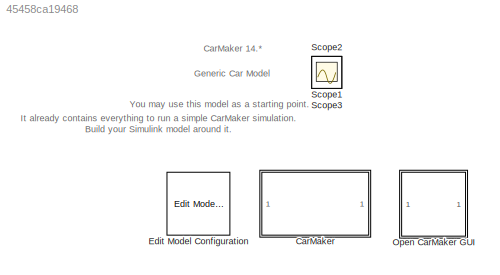
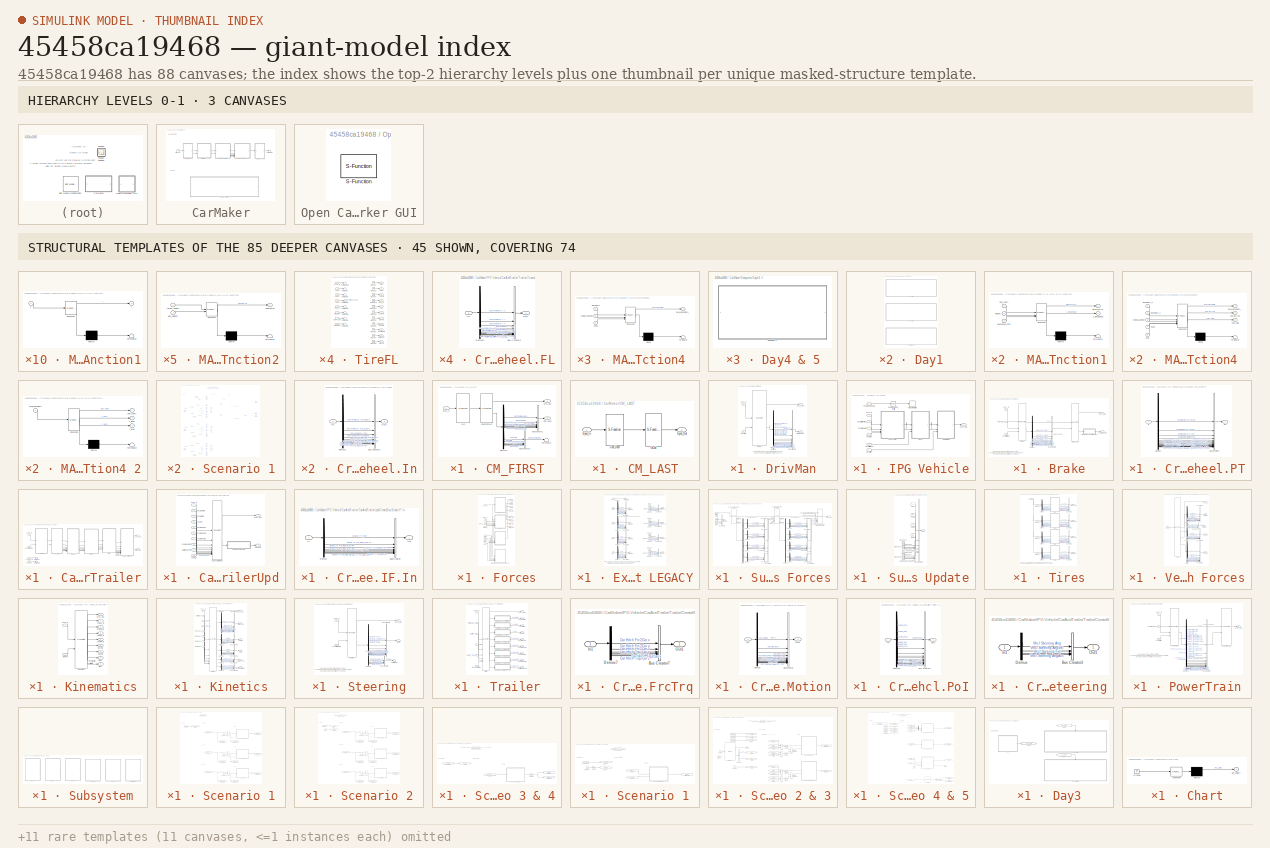
[diagram: thumbnail index - top-2 hierarchy levels (3 canvases) + 45 structural-template representatives of the remaining 85 canvases]
MODEL mdl_45458ca19468
KIND model
CONFIG AbsTol = auto
CONFIG EnableMultiTasking = on
CONFIG FixedStep = 0.001
CONFIG MaxStep = auto
CONFIG MinStep = auto
CONFIG RelTol = 1e-3
CONFIG SampleTimeConstraint = Unconstrained
CONFIG SolverName = FixedStepDiscrete
CONFIG StartTime = 0.0
CONFIG StopTime = inf
BLOCK [SubSystem] CarMaker
  TreatAsAtomicUnit = on
BLOCK [SubSystem] CarMaker/CM_FIRST
BLOCK [BusCreator] CarMaker/CM_FIRST/BusCreator1
  InheritFromInputs = on
  Inputs = 8
BLOCK [BusCreator] CarMaker/CM_FIRST/BusCreator2
  InheritFromInputs = on
  Inputs = 6
BLOCK [Demux] CarMaker/CM_FIRST/Demux1
  DisplayOption = none
  Outputs = 14
BLOCK [Outport] CarMaker/CM_FIRST/Env.Misc
  Port = 2
  VectorParamsAs1DForOutWhenUnconnected = off
BLOCK [S-Function] CarMaker/CM_FIRST/Environment
  EnableBusSupport = off
  FunctionName = CM_Sfun
  Parameters = 'Environment'
  SFcnIsStateOwnerBlock = off
  SFunctionDeploymentMode = off
BLOCK [S-Function] CarMaker/CM_FIRST/IoIn
  EnableBusSupport = off
  FunctionName = CM_Sfun
  Parameters = 'IoIn'
  SFcnIsStateOwnerBlock = off
  SFunctionDeploymentMode = off
BLOCK [Inport] CarMaker/CM_FIRST/Sync_In
BLOCK [Outport] CarMaker/CM_FIRST/Sync_Out
  VectorParamsAs1DForOutWhenUnconnected = off
BLOCK [Terminator] CarMaker/CM_FIRST/Terminator
BLOCK [SubSystem] CarMaker/CM_LAST
BLOCK [S-Function] CarMaker/CM_LAST/CM_User
  EnableBusSupport = off
  FunctionName = CM_Sfun
  Parameters = 'CM_User'
  SFcnIsStateOwnerBlock = off
  SFunctionDeploymentMode = off
BLOCK [S-Function] CarMaker/CM_LAST/IoOut
  EnableBusSupport = off
  FunctionName = CM_Sfun
  Parameters = 'IoOut'
  SFcnIsStateOwnerBlock = off
  SFunctionDeploymentMode = off
BLOCK [Inport] CarMaker/CM_LAST/Sync_In
BLOCK [Outport] CarMaker/CM_LAST/Sync_Out
  VectorParamsAs1DForOutWhenUnconnected = off
BLOCK [SubSystem] CarMaker/DrivMan
BLOCK [BusCreator] CarMaker/DrivMan/BusCreator
  InheritFromInputs = on
  Inputs = 20
BLOCK [Demux] CarMaker/DrivMan/Demux
  DisplayOption = none
  Outputs = 20
BLOCK [S-Function] CarMaker/DrivMan/DrivMan
  EnableBusSupport = off
  FunctionName = CM_Sfun
  Parameters = 'DrivMan'
  SFcnIsStateOwnerBlock = off
  SFunctionDeploymentMode = off
BLOCK [Outport] CarMaker/DrivMan/DrivMan.Out
  Port = 2
  VectorParamsAs1DForOutWhenUnconnected = off
BLOCK [Inport] CarMaker/DrivMan/Env.Misc
  Port = 2
BLOCK [Inport] CarMaker/DrivMan/Sync_In
BLOCK [Outport] CarMaker/DrivMan/Sync_Out
  VectorParamsAs1DForOutWhenUnconnected = off
BLOCK [Ground] CarMaker/Ground
BLOCK [SubSystem] CarMaker/IPG Vehicle
BLOCK [SubSystem] CarMaker/IPG Vehicle/Brake
BLOCK [S-Function] CarMaker/IPG Vehicle/Brake/Brake
  EnableBusSupport = off
  FunctionName = CM_Sfun
  Parameters = 'Brake'
  SFcnIsStateOwnerBlock = off
  SFunctionDeploymentMode = off
BLOCK [Inport] CarMaker/IPG Vehicle/Brake/Brake.IF.In
  Port = 2
BLOCK [S-Function] CarMaker/IPG Vehicle/Brake/BrakeUpd
  EnableBusSupport = off
  FunctionName = CM_Sfun
  Parameters = 'BrakeUpd'
  SFcnIsStateOwnerBlock = off
  SFunctionDeploymentMode = off
BLOCK [BusCreator] CarMaker/IPG Vehicle/Brake/BusCreator1
  InheritFromInputs = on
  Inputs = 16
BLOCK [SubSystem] CarMaker/IPG Vehicle/Brake/CreateBus Vhcl.Wheel.PT
BLOCK [BusCreator] CarMaker/IPG Vehicle/Brake/CreateBus Vhcl.Wheel.PT/BusCreator1
  InheritFromInputs = on
  Inputs = 20
BLOCK [Demux] CarMaker/IPG Vehicle/Brake/CreateBus Vhcl.Wheel.PT/Demux1
  DisplayOption = none
  Outputs = 20
BLOCK [Inport] CarMaker/IPG Vehicle/Brake/CreateBus Vhcl.Wheel.PT/In
BLOCK [Outport] CarMaker/IPG Vehicle/Brake/CreateBus Vhcl.Wheel.PT/Out
  VectorParamsAs1DForOutWhenUnconnected = off
BLOCK [Demux] CarMaker/IPG Vehicle/Brake/Demux
  DisplayOption = none
  Outputs = 16
BLOCK [Inport] CarMaker/IPG Vehicle/Brake/Sync_In
BLOCK [Outport] CarMaker/IPG Vehicle/Brake/Sync_Out
  VectorParamsAs1DForOutWhenUnconnected = off
BLOCK [Outport] CarMaker/IPG Vehicle/Brake/Vhcl.Wheel.PT
  Port = 2
  VectorParamsAs1DForOutWhenUnconnected = off
BLOCK [Inport] CarMaker/IPG Vehicle/Brake/VhclCtrl.Brake
  Port = 3
BLOCK [SubSystem] CarMaker/IPG Vehicle/CarAndTrailer
BLOCK [Outport] CarMaker/IPG Vehicle/CarAndTrailer/Brake.IF.In
  Port = 2
  VectorParamsAs1DForOutWhenUnconnected = off
BLOCK [SubSystem] CarMaker/IPG Vehicle/CarAndTrailer/CarAndTrailerUpd
BLOCK [Outport] CarMaker/IPG Vehicle/CarAndTrailer/CarAndTrailerUpd/Brake.IF.In
  Port = 2
  VectorParamsAs1DForOutWhenUnconnected = off
BLOCK [Inport] CarMaker/IPG Vehicle/CarAndTrailer/CarAndTrailerUpd/Car.Hitch.FrcTrq
  Port = 9
BLOCK [S-Function] CarMaker/IPG Vehicle/CarAndTrailer/CarAndTrailerUpd/CarAndTrailerUpd
  EnableBusSupport = off
  FunctionName = CM_Sfun
  Parameters = 'CarAndTrUpd'
  SFcnIsStateOwnerBlock = off
  SFunctionDeploymentMode = off
BLOCK [SubSystem] CarMaker/IPG Vehicle/CarAndTrailer/CarAndTrailerUpd/CreateBus Brake.IF.In
BLOCK [BusCreator] CarMaker/IPG Vehicle/CarAndTrailer/CarAndTrailerUpd/CreateBus Brake.IF.In/BusCreator
  InheritFromInputs = on
  Inputs = 9
BLOCK [Demux] CarMaker/IPG Vehicle/CarAndTrailer/CarAndTrailerUpd/CreateBus Brake.IF.In/Demux
  DisplayOption = none
  Outputs = 9
BLOCK [Inport] CarMaker/IPG Vehicle/CarAndTrailer/CarAndTrailerUpd/CreateBus Brake.IF.In/In
BLOCK [Outport] CarMaker/IPG Vehicle/CarAndTrailer/CarAndTrailerUpd/CreateBus Brake.IF.In/Out
  VectorParamsAs1DForOutWhenUnconnected = off
BLOCK [Inport] CarMaker/IPG Vehicle/CarAndTrailer/CarAndTrailerUpd/Sync_In
BLOCK [Outport] CarMaker/IPG Vehicle/CarAndTrailer/CarAndTrailerUpd/Sync_Out
  VectorParamsAs1DForOutWhenUnconnected = off
BLOCK [Inport] CarMaker/IPG Vehicle/CarAndTrailer/CarAndTrailerUpd/Vhcl.Fr1A
  Port = 10
BLOCK [Inport] CarMaker/IPG Vehicle/CarAndTrailer/CarAndTrailerUpd/Vhcl.Motion
  Port = 3
BLOCK [Inport] CarMaker/IPG Vehicle/CarAndTrailer/CarAndTrailerUpd/Vhcl.PoI
  Port = 4
BLOCK [Inport] CarMaker/IPG Vehicle/CarAndTrailer/CarAndTrailerUpd/Vhcl.Steering
  Port = 2
BLOCK [Inport] CarMaker/IPG Vehicle/CarAndTrailer/CarAndTrailerUpd/Vhcl.Wheel.FL
  Port = 5
BLOCK [Inport] CarMaker/IPG Vehicle/CarAndTrailer/CarAndTrailerUpd/Vhcl.Wheel.FR
  Port = 6
BLOCK [Inport] CarMaker/IPG Vehicle/CarAndTrailer/CarAndTrailerUpd/Vhcl.Wheel.RL
  Port = 7
BLOCK [Inport] CarMaker/IPG Vehicle/CarAndTrailer/CarAndTrailerUpd/Vhcl.Wheel.RR
  Port = 8
BLOCK [SubSystem] CarMaker/IPG Vehicle/CarAndTrailer/Forces
BLOCK [Outport] CarMaker/IPG Vehicle/CarAndTrailer/Forces/Car.Aero
  Port = 3
  VectorParamsAs1DForOutWhenUnconnected = off
BLOCK [Outport] CarMaker/IPG Vehicle/CarAndTrailer/Forces/Car.Load
  Port = 4
  VectorParamsAs1DForOutWhenUnconnected = off
BLOCK [Outport] CarMaker/IPG Vehicle/CarAndTrailer/Forces/Car.Virtual
  Port = 2
  VectorParamsAs1DForOutWhenUnconnected = off
BLOCK [SubSystem] CarMaker/IPG Vehicle/CarAndTrailer/Forces/External Suspension Forces LEGACY
BLOCK [BusCreator] CarMaker/IPG Vehicle/CarAndTrailer/Forces/External Suspension Forces LEGACY/Bus Creator
  DisplayOption = bar
  InheritFromInputs = on
  Inputs = 8
BLOCK [BusCreator] CarMaker/IPG Vehicle/CarAndTrailer/Forces/External Suspension Forces LEGACY/Bus Creator1
  DisplayOption = bar
  InheritFromInputs = on
  Inputs = 4
BLOCK [BusCreator] CarMaker/IPG Vehicle/CarAndTrailer/Forces/External Suspension Forces LEGACY/Bus Creator2
  DisplayOption = bar
  InheritFromInputs = on
  Inputs = 4
BLOCK [BusCreator] CarMaker/IPG Vehicle/CarAndTrailer/Forces/External Suspension Forces LEGACY/Bus Creator3
  DisplayOption = bar
  InheritFromInputs = on
  Inputs = 4
BLOCK [BusCreator] CarMaker/IPG Vehicle/CarAndTrailer/Forces/External Suspension Forces LEGACY/Bus Creator4
  DisplayOption = bar
  InheritFromInputs = on
  Inputs = 4
BLOCK [BusCreator] CarMaker/IPG Vehicle/CarAndTrailer/Forces/External Suspension Forces LEGACY/Bus Creator5
  DisplayOption = bar
  InheritFromInputs = on
  Inputs = 8
BLOCK [BusCreator] CarMaker/IPG Vehicle/CarAndTrailer/Forces/External Suspension Forces LEGACY/Bus Creator6
  DisplayOption = bar
  InheritFromInputs = on
  Inputs = 8
BLOCK [BusCreator] CarMaker/IPG Vehicle/CarAndTrailer/Forces/External Suspension Forces LEGACY/Bus Creator7
  DisplayOption = bar
  InheritFromInputs = on
  Inputs = 8
BLOCK [Demux] CarMaker/IPG Vehicle/CarAndTrailer/Forces/External Suspension Forces LEGACY/Demux1
  DisplayOption = none
  Outputs = 8
BLOCK [Demux] CarMaker/IPG Vehicle/CarAndTrailer/Forces/External Suspension Forces LEGACY/Demux2
  DisplayOption = none
  Outputs = 8
BLOCK [Demux] CarMaker/IPG Vehicle/CarAndTrailer/Forces/External Suspension Forces LEGACY/Demux3
  DisplayOption = none
  Outputs = 8
BLOCK [Demux] CarMaker/IPG Vehicle/CarAndTrailer/Forces/External Suspension Forces LEGACY/Demux4
  DisplayOption = none
  Outputs = 8
BLOCK [Goto] CarMaker/IPG Vehicle/CarAndTrailer/Forces/External Suspension Forces LEGACY/FBuf_ext
  GotoTag = D
  TagVisibility = global
BLOCK [Goto] CarMaker/IPG Vehicle/CarAndTrailer/Forces/External Suspension Forces LEGACY/FDamp_ext
  GotoTag = B
  TagVisibility = global
BLOCK [Goto] CarMaker/IPG Vehicle/CarAndTrailer/Forces/External Suspension Forces LEGACY/FSpring_ext
  TagVisibility = global
BLOCK [Goto] CarMaker/IPG Vehicle/CarAndTrailer/Forces/External Suspension Forces LEGACY/FStabi_ext
  GotoTag = C
  TagVisibility = global
BLOCK [Ground] CarMaker/IPG Vehicle/CarAndTrailer/Forces/External Suspension Forces LEGACY/Ground
BLOCK [Ground] CarMaker/IPG Vehicle/CarAndTrailer/Forces/External Suspension Forces LEGACY/Ground1
BLOCK [Ground] CarMaker/IPG Vehicle/CarAndTrailer/Forces/External Suspension Forces LEGACY/Ground10
BLOCK [Ground] CarMaker/IPG Vehicle/CarAndTrailer/Forces/External Suspension Forces LEGACY/Ground11
BLOCK [Ground] CarMaker/IPG Vehicle/CarAndTrailer/Forces/External Suspension Forces LEGACY/Ground12
BLOCK [Ground] CarMaker/IPG Vehicle/CarAndTrailer/Forces/External Suspension Forces LEGACY/Ground13
BLOCK [Ground] CarMaker/IPG Vehicle/CarAndTrailer/Forces/External Suspension Forces LEGACY/Ground14
BLOCK [Ground] CarMaker/IPG Vehicle/CarAndTrailer/Forces/External Suspension Forces LEGACY/Ground15
BLOCK [Ground] CarMaker/IPG Vehicle/CarAndTrailer/Forces/External Suspension Forces LEGACY/Ground2
BLOCK [Ground] CarMaker/IPG Vehicle/CarAndTrailer/Forces/External Suspension Forces LEGACY/Ground3
BLOCK [Ground] CarMaker/IPG Vehicle/CarAndTrailer/Forces/External Suspension Forces LEGACY/Ground4
BLOCK [Ground] CarMaker/IPG Vehicle/CarAndTrailer/Forces/External Suspension Forces LEGACY/Ground5
BLOCK [Ground] CarMaker/IPG Vehicle/CarAndTrailer/Forces/External Suspension Forces LEGACY/Ground6
BLOCK [Ground] CarMaker/IPG Vehicle/CarAndTrailer/Forces/External Suspension Forces LEGACY/Ground7
BLOCK [Ground] CarMaker/IPG Vehicle/CarAndTrailer/Forces/External Suspension Forces LEGACY/Ground8
BLOCK [Ground] CarMaker/IPG Vehicle/CarAndTrailer/Forces/External Suspension Forces LEGACY/Ground9
BLOCK [Inport] CarMaker/IPG Vehicle/CarAndTrailer/Forces/External Suspension Forces LEGACY/Sync_In
BLOCK [Terminator] CarMaker/IPG Vehicle/CarAndTrailer/Forces/External Suspension Forces LEGACY/Terminator1
BLOCK [Terminator] CarMaker/IPG Vehicle/CarAndTrailer/Forces/External Suspension Forces LEGACY/Terminator12
BLOCK [Terminator] CarMaker/IPG Vehicle/CarAndTrailer/Forces/External Suspension Forces LEGACY/Terminator2
BLOCK [Terminator] CarMaker/IPG Vehicle/CarAndTrailer/Forces/External Suspension Forces LEGACY/Terminator3
BLOCK [Terminator] CarMaker/IPG Vehicle/CarAndTrailer/Forces/External Suspension Forces LEGACY/Terminator4
BLOCK [Inport] CarMaker/IPG Vehicle/CarAndTrailer/Forces/External Suspension Forces LEGACY/lBuf
  Port = 5
BLOCK [Inport] CarMaker/IPG Vehicle/CarAndTrailer/Forces/External Suspension Forces LEGACY/lSpring
  Port = 2
BLOCK [Inport] CarMaker/IPG Vehicle/CarAndTrailer/Forces/External Suspension Forces LEGACY/lStabi
  Port = 4
BLOCK [Inport] CarMaker/IPG Vehicle/CarAndTrailer/Forces/External Suspension Forces LEGACY/vDamp
  Port = 3
BLOCK [SubSystem] CarMaker/IPG Vehicle/CarAndTrailer/Forces/Suspension Forces
BLOCK [BusCreator] CarMaker/IPG Vehicle/CarAndTrailer/Forces/Suspension Forces/Bus Creator
  DisplayOption = bar
  InheritFromInputs = on
  Inputs = 4
BLOCK [BusCreator] CarMaker/IPG Vehicle/CarAndTrailer/Forces/Suspension Forces/Bus Creator1
  DisplayOption = bar
  InheritFromInputs = on
  Inputs = 4
BLOCK [BusCreator] CarMaker/IPG Vehicle/CarAndTrailer/Forces/Suspension Forces/Bus Creator10
  DisplayOption = bar
  InheritFromInputs = on
  Inputs = 4
BLOCK [BusCreator] CarMaker/IPG Vehicle/CarAndTrailer/Forces/Suspension Forces/Bus Creator2
  DisplayOption = bar
  InheritFromInputs = on
  Inputs = 4
BLOCK [BusCreator] CarMaker/IPG Vehicle/CarAndTrailer/Forces/Suspension Forces/Bus Creator3
  DisplayOption = bar
  InheritFromInputs = on
  Inputs = 4
BLOCK [BusCreator] CarMaker/IPG Vehicle/CarAndTrailer/Forces/Suspension Forces/Bus Creator4
  DisplayOption = bar
  InheritFromInputs = on
  Inputs = 6
BLOCK [BusCreator] CarMaker/IPG Vehicle/CarAndTrailer/Forces/Suspension Forces/Bus Creator5
  DisplayOption = bar
  InheritFromInputs = on
  Inputs = 6
BLOCK [BusCreator] CarMaker/IPG Vehicle/CarAndTrailer/Forces/Suspension Forces/Bus Creator6
  DisplayOption = bar
  InheritFromInputs = on
  Inputs = 6
BLOCK [BusCreator] CarMaker/IPG Vehicle/CarAndTrailer/Forces/Suspension Forces/Bus Creator7
  DisplayOption = bar
  InheritFromInputs = on
  Inputs = 6
BLOCK [BusCreator] CarMaker/IPG Vehicle/CarAndTrailer/Forces/Suspension Forces/Bus Creator8
  DisplayOption = bar
  InheritFromInputs = on
  Inputs = 4
BLOCK [BusCreator] CarMaker/IPG Vehicle/CarAndTrailer/Forces/Suspension Forces/Bus Creator9
  DisplayOption = bar
  InheritFromInputs = on
  Inputs = 4
BLOCK [Demux] CarMaker/IPG Vehicle/CarAndTrailer/Forces/Suspension Forces/Demux
BLOCK [Demux] CarMaker/IPG Vehicle/CarAndTrailer/Forces/Suspension Forces/Demux1
BLOCK [Demux] CarMaker/IPG Vehicle/CarAndTrailer/Forces/Suspension Forces/Demux2
BLOCK [Demux] CarMaker/IPG Vehicle/CarAndTrailer/Forces/Suspension Forces/Demux3
BLOCK [Demux] CarMaker/IPG Vehicle/CarAndTrailer/Forces/Suspension Forces/Demux4
BLOCK [Demux] CarMaker/IPG Vehicle/CarAndTrailer/Forces/Suspension Forces/Demux5
BLOCK [Demux] CarMaker/IPG Vehicle/CarAndTrailer/Forces/Suspension Forces/Demux6
  Outputs = 6
BLOCK [Demux] CarMaker/IPG Vehicle/CarAndTrailer/Forces/Suspension Forces/Demux7
  Outputs = 6
BLOCK [Demux] CarMaker/IPG Vehicle/CarAndTrailer/Forces/Suspension Forces/Demux8
  Outputs = 6
BLOCK [Demux] CarMaker/IPG Vehicle/CarAndTrailer/Forces/Suspension Forces/Demux9
  Outputs = 6
BLOCK [Ground] CarMaker/IPG Vehicle/CarAndTrailer/Forces/Suspension Forces/Ground_1
BLOCK [Ground] CarMaker/IPG Vehicle/CarAndTrailer/Forces/Suspension Forces/Ground_2
BLOCK [Ground] CarMaker/IPG Vehicle/CarAndTrailer/Forces/Suspension Forces/Ground_4
BLOCK [Ground] CarMaker/IPG Vehicle/CarAndTrailer/Forces/Suspension Forces/Ground_5
BLOCK [S-Function] CarMaker/IPG Vehicle/CarAndTrailer/Forces/Suspension Forces/Suspension Control Unit
  EnableBusSupport = off
  FunctionName = CM_Sfun
  Parameters = 'ForcesSuspControl'
  SFcnIsStateOwnerBlock = off
  SFunctionDeploymentMode = off
BLOCK [SubSystem] CarMaker/IPG Vehicle/CarAndTrailer/Forces/Suspension Forces/Suspension External Forces Update
BLOCK [BusCreator] CarMaker/IPG Vehicle/CarAndTrailer/Forces/Suspension Forces/Suspension External Forces Update/Bus Creator21
  DisplayOption = bar
  InheritFromInputs = on
  Inputs = 6
BLOCK [BusCreator] CarMaker/IPG Vehicle/CarAndTrailer/Forces/Suspension Forces/Suspension External Forces Update/Bus Creator22
  DisplayOption = bar
  InheritFromInputs = on
  Inputs = 4
BLOCK [BusCreator] CarMaker/IPG Vehicle/CarAndTrailer/Forces/Suspension Forces/Suspension External Forces Update/Bus Creator23
  DisplayOption = bar
  InheritFromInputs = on
  Inputs = 4
BLOCK [From] CarMaker/IPG Vehicle/CarAndTrailer/Forces/Suspension Forces/Suspension External Forces Update/From
  TagVisibility = global
BLOCK [From] CarMaker/IPG Vehicle/CarAndTrailer/Forces/Suspension Forces/Suspension External Forces Update/From1
  GotoTag = B
  TagVisibility = global
BLOCK [From] CarMaker/IPG Vehicle/CarAndTrailer/Forces/Suspension Forces/Suspension External Forces Update/From2
  GotoTag = C
  TagVisibility = global
BLOCK [From] CarMaker/IPG Vehicle/CarAndTrailer/Forces/Suspension Forces/Suspension External Forces Update/From3
  GotoTag = D
  TagVisibility = global
BLOCK [Ground] CarMaker/IPG Vehicle/CarAndTrailer/Forces/Suspension Forces/Suspension External Forces Update/Ground32
BLOCK [Ground] CarMaker/IPG Vehicle/CarAndTrailer/Forces/Suspension Forces/Suspension External Forces Update/Ground33
BLOCK [Ground] CarMaker/IPG Vehicle/CarAndTrailer/Forces/Suspension Forces/Suspension External Forces Update/Ground34
BLOCK [Ground] CarMaker/IPG Vehicle/CarAndTrailer/Forces/Suspension Forces/Suspension External Forces Update/Ground35
BLOCK [Ground] CarMaker/IPG Vehicle/CarAndTrailer/Forces/Suspension Forces/Suspension External Forces Update/Ground36
BLOCK [Ground] CarMaker/IPG Vehicle/CarAndTrailer/Forces/Suspension Forces/Suspension External Forces Update/Ground37
BLOCK [Ground] CarMaker/IPG Vehicle/CarAndTrailer/Forces/Suspension Forces/Suspension External Forces Update/Ground38
BLOCK [Ground] CarMaker/IPG Vehicle/CarAndTrailer/Forces/Suspension Forces/Suspension External Forces Update/Ground39
BLOCK [Outport] CarMaker/IPG Vehicle/CarAndTrailer/Forces/Suspension Forces/Suspension External Forces Update/Out1
BLOCK [S-Function] CarMaker/IPG Vehicle/CarAndTrailer/Forces/Suspension Forces/Suspension Force Elements
  EnableBusSupport = off
  FunctionName = CM_Sfun
  Parameters = 'ForcesSusp'
  SFcnIsStateOwnerBlock = off
  SFunctionDeploymentMode = off
BLOCK [S-Function] CarMaker/IPG Vehicle/CarAndTrailer/Forces/Suspension Forces/Suspension Force Elements Update
  EnableBusSupport = off
  FunctionName = CM_Sfun
  Parameters = 'ForcesSuspUpd'
  SFcnIsStateOwnerBlock = off
  SFunctionDeploymentMode = off
BLOCK [Inport] CarMaker/IPG Vehicle/CarAndTrailer/Forces/Suspension Forces/Sync_In
BLOCK [Outport] CarMaker/IPG Vehicle/CarAndTrailer/Forces/Suspension Forces/Sync_Out
  VectorParamsAs1DForOutWhenUnconnected = off
BLOCK [Terminator] CarMaker/IPG Vehicle/CarAndTrailer/Forces/Suspension Forces/Terminator
BLOCK [Terminator] CarMaker/IPG Vehicle/CarAndTrailer/Forces/Suspension Forces/Terminator1
BLOCK [Terminator] CarMaker/IPG Vehicle/CarAndTrailer/Forces/Suspension Forces/Terminator2
BLOCK [Terminator] CarMaker/IPG Vehicle/CarAndTrailer/Forces/Suspension Forces/Terminator3
BLOCK [Terminator] CarMaker/IPG Vehicle/CarAndTrailer/Forces/Suspension Forces/Terminator_5
BLOCK [Inport] CarMaker/IPG Vehicle/CarAndTrailer/Forces/Suspension Forces/lBuf
  Port = 5
BLOCK [Inport] CarMaker/IPG Vehicle/CarAndTrailer/Forces/Suspension Forces/lSpring
  Port = 2
BLOCK [Inport] CarMaker/IPG Vehicle/CarAndTrailer/Forces/Suspension Forces/lStabi
  Port = 4
BLOCK [Inport] CarMaker/IPG Vehicle/CarAndTrailer/Forces/Suspension Forces/vDamp
  Port = 3
BLOCK [Inport] CarMaker/IPG Vehicle/CarAndTrailer/Forces/Sync_In
BLOCK [Outport] CarMaker/IPG Vehicle/CarAndTrailer/Forces/Sync_Out
  VectorParamsAs1DForOutWhenUnconnected = off
BLOCK [Inport] CarMaker/IPG Vehicle/CarAndTrailer/Forces/TireFL_In
  Port = 2
BLOCK [Outport] CarMaker/IPG Vehicle/CarAndTrailer/Forces/TireFL_Out
  Port = 5
  VectorParamsAs1DForOutWhenUnconnected = off
BLOCK [Inport] CarMaker/IPG Vehicle/CarAndTrailer/Forces/TireFR_In
  Port = 3
BLOCK [Outport] CarMaker/IPG Vehicle/CarAndTrailer/Forces/TireFR_Out
  Port = 6
  VectorParamsAs1DForOutWhenUnconnected = off
BLOCK [Inport] CarMaker/IPG Vehicle/CarAndTrailer/Forces/TireRL_In
  Port = 4
BLOCK [Outport] CarMaker/IPG Vehicle/CarAndTrailer/Forces/TireRL_Out
  Port = 7
  VectorParamsAs1DForOutWhenUnconnected = off
BLOCK [Inport] CarMaker/IPG Vehicle/CarAndTrailer/Forces/TireRR_In
  Port = 5
BLOCK [Outport] CarMaker/IPG Vehicle/CarAndTrailer/Forces/TireRR_Out
  Port = 8
  VectorParamsAs1DForOutWhenUnconnected = off
BLOCK [SubSystem] CarMaker/IPG Vehicle/CarAndTrailer/Forces/Tires
BLOCK [BusCreator] CarMaker/IPG Vehicle/CarAndTrailer/Forces/Tires/Bus Creator1
  DisplayOption = bar
  InheritFromInputs = on
  Inputs = 11
BLOCK [BusCreator] CarMaker/IPG Vehicle/CarAndTrailer/Forces/Tires/Bus Creator2
  DisplayOption = bar
  InheritFromInputs = on
  Inputs = 11
BLOCK [BusCreator] CarMaker/IPG Vehicle/CarAndTrailer/Forces/Tires/Bus Creator3
  DisplayOption = bar
  InheritFromInputs = on
  Inputs = 11
BLOCK [BusCreator] CarMaker/IPG Vehicle/CarAndTrailer/Forces/Tires/Bus Creator4
  DisplayOption = bar
  InheritFromInputs = on
  Inputs = 11
BLOCK [Demux] CarMaker/IPG Vehicle/CarAndTrailer/Forces/Tires/Demux1
  DisplayOption = none
  Outputs = 7
BLOCK [Demux] CarMaker/IPG Vehicle/CarAndTrailer/Forces/Tires/Demux2
  DisplayOption = none
  Outputs = 7
BLOCK [Demux] CarMaker/IPG Vehicle/CarAndTrailer/Forces/Tires/Demux3
  DisplayOption = none
  Outputs = 7
BLOCK [Demux] CarMaker/IPG Vehicle/CarAndTrailer/Forces/Tires/Demux8
  DisplayOption = none
  Outputs = 7
BLOCK [Inport] CarMaker/IPG Vehicle/CarAndTrailer/Forces/Tires/Sync_In
BLOCK [SubSystem] CarMaker/IPG Vehicle/CarAndTrailer/Forces/Tires/TireFL
BLOCK [Outport] CarMaker/IPG Vehicle/CarAndTrailer/Forces/Tires/TireFL/AlignTrq
  Port = 11
  VectorParamsAs1DForOutWhenUnconnected = off
BLOCK [Outport] CarMaker/IPG Vehicle/CarAndTrailer/Forces/Tires/TireFL/Alpha
  Port = 2
  VectorParamsAs1DForOutWhenUnconnected = off
BLOCK [Ground] CarMaker/IPG Vehicle/CarAndTrailer/Forces/Tires/TireFL/Ground1
BLOCK [Ground] CarMaker/IPG Vehicle/CarAndTrailer/Forces/Tires/TireFL/Ground10
BLOCK [Ground] CarMaker/IPG Vehicle/CarAndTrailer/Forces/Tires/TireFL/Ground11
BLOCK [Ground] CarMaker/IPG Vehicle/CarAndTrailer/Forces/Tires/TireFL/Ground2
BLOCK [Ground] CarMaker/IPG Vehicle/CarAndTrailer/Forces/Tires/TireFL/Ground3
BLOCK [Ground] CarMaker/IPG Vehicle/CarAndTrailer/Forces/Tires/TireFL/Ground4
BLOCK [Ground] CarMaker/IPG Vehicle/CarAndTrailer/Forces/Tires/TireFL/Ground5
BLOCK [Ground] CarMaker/IPG Vehicle/CarAndTrailer/Forces/Tires/TireFL/Ground6
BLOCK [Ground] CarMaker/IPG Vehicle/CarAndTrailer/Forces/Tires/TireFL/Ground7
BLOCK [Ground] CarMaker/IPG Vehicle/CarAndTrailer/Forces/Tires/TireFL/Ground8
BLOCK [Ground] CarMaker/IPG Vehicle/CarAndTrailer/Forces/Tires/TireFL/Ground9
BLOCK [Inport] CarMaker/IPG Vehicle/CarAndTrailer/Forces/Tires/TireFL/InclinAngle
  Port = 7
BLOCK [Inport] CarMaker/IPG Vehicle/CarAndTrailer/Forces/Tires/TireFL/Load
  Port = 2
BLOCK [Outport] CarMaker/IPG Vehicle/CarAndTrailer/Forces/Tires/TireFL/LoadFrc
  Port = 8
  VectorParamsAs1DForOutWhenUnconnected = off
BLOCK [Outport] CarMaker/IPG Vehicle/CarAndTrailer/Forces/Tires/TireFL/LongFrc
  Port = 6
  VectorParamsAs1DForOutWhenUnconnected = off
BLOCK [Outport] CarMaker/IPG Vehicle/CarAndTrailer/Forces/Tires/TireFL/OverturnTrq
  Port = 9
  VectorParamsAs1DForOutWhenUnconnected = off
BLOCK [Inport] CarMaker/IPG Vehicle/CarAndTrailer/Forces/Tires/TireFL/Rim_rotv
  Port = 5
BLOCK [Inport] CarMaker/IPG Vehicle/CarAndTrailer/Forces/Tires/TireFL/Rim_turnv
  Port = 6
BLOCK [Outport] CarMaker/IPG Vehicle/CarAndTrailer/Forces/Tires/TireFL/RollResist
  Port = 10
  VectorParamsAs1DForOutWhenUnconnected = off
BLOCK [Outport] CarMaker/IPG Vehicle/CarAndTrailer/Forces/Tires/TireFL/SideFrc
  Port = 7
  VectorParamsAs1DForOutWhenUnconnected = off
BLOCK [Outport] CarMaker/IPG Vehicle/CarAndTrailer/Forces/Tires/TireFL/Slp
  VectorParamsAs1DForOutWhenUnconnected = off
BLOCK [Inport] CarMaker/IPG Vehicle/CarAndTrailer/Forces/Tires/TireFL/Sync_In
BLOCK [Terminator] CarMaker/IPG Vehicle/CarAndTrailer/Forces/Tires/TireFL/Terminator
BLOCK [Terminator] CarMaker/IPG Vehicle/CarAndTrailer/Forces/Tires/TireFL/Terminator1
BLOCK [Terminator] CarMaker/IPG Vehicle/CarAndTrailer/Forces/Tires/TireFL/Terminator12
BLOCK [Terminator] CarMaker/IPG Vehicle/CarAndTrailer/Forces/Tires/TireFL/Terminator2
BLOCK [Terminator] CarMaker/IPG Vehicle/CarAndTrailer/Forces/Tires/TireFL/Terminator3
BLOCK [Terminator] CarMaker/IPG Vehicle/CarAndTrailer/Forces/Tires/TireFL/Terminator4
BLOCK [Terminator] CarMaker/IPG Vehicle/CarAndTrailer/Forces/Tires/TireFL/Terminator5
BLOCK [Terminator] CarMaker/IPG Vehicle/CarAndTrailer/Forces/Tires/TireFL/Terminator6
BLOCK [Outport] CarMaker/IPG Vehicle/CarAndTrailer/Forces/Tires/TireFL/TurnSlp
  Port = 3
  VectorParamsAs1DForOutWhenUnconnected = off
BLOCK [Inport] CarMaker/IPG Vehicle/CarAndTrailer/Forces/Tires/TireFL/muRoad
  Port = 8
BLOCK [Outport] CarMaker/IPG Vehicle/CarAndTrailer/Forces/Tires/TireFL/rBelt_eff
  Port = 4
  VectorParamsAs1DForOutWhenUnconnected = off
BLOCK [Outport] CarMaker/IPG Vehicle/CarAndTrailer/Forces/Tires/TireFL/vBelt
  Port = 5
  VectorParamsAs1DForOutWhenUnconnected = off
BLOCK [Inport] CarMaker/IPG Vehicle/CarAndTrailer/Forces/Tires/TireFL/vxtrans
  Port = 3
BLOCK [Inport] CarMaker/IPG Vehicle/CarAndTrailer/Forces/Tires/TireFL/vytrans
  Port = 4
BLOCK [Inport] CarMaker/IPG Vehicle/CarAndTrailer/Forces/Tires/TireFL_In
  Port = 2
BLOCK [Outport] CarMaker/IPG Vehicle/CarAndTrailer/Forces/Tires/TireFL_Out
  VectorParamsAs1DForOutWhenUnconnected = off
BLOCK [SubSystem] CarMaker/IPG Vehicle/CarAndTrailer/Forces/Tires/TireFR
BLOCK [Outport] CarMaker/IPG Vehicle/CarAndTrailer/Forces/Tires/TireFR/AlignTrq
  Port = 11
  VectorParamsAs1DForOutWhenUnconnected = off
BLOCK [Outport] CarMaker/IPG Vehicle/CarAndTrailer/Forces/Tires/TireFR/Alpha
  Port = 2
  VectorParamsAs1DForOutWhenUnconnected = off
BLOCK [Ground] CarMaker/IPG Vehicle/CarAndTrailer/Forces/Tires/TireFR/Ground1
BLOCK [Ground] CarMaker/IPG Vehicle/CarAndTrailer/Forces/Tires/TireFR/Ground10
BLOCK [Ground] CarMaker/IPG Vehicle/CarAndTrailer/Forces/Tires/TireFR/Ground11
BLOCK [Ground] CarMaker/IPG Vehicle/CarAndTrailer/Forces/Tires/TireFR/Ground2
BLOCK [Ground] CarMaker/IPG Vehicle/CarAndTrailer/Forces/Tires/TireFR/Ground3
BLOCK [Ground] CarMaker/IPG Vehicle/CarAndTrailer/Forces/Tires/TireFR/Ground4
BLOCK [Ground] CarMaker/IPG Vehicle/CarAndTrailer/Forces/Tires/TireFR/Ground5
BLOCK [Ground] CarMaker/IPG Vehicle/CarAndTrailer/Forces/Tires/TireFR/Ground6
BLOCK [Ground] CarMaker/IPG Vehicle/CarAndTrailer/Forces/Tires/TireFR/Ground7
BLOCK [Ground] CarMaker/IPG Vehicle/CarAndTrailer/Forces/Tires/TireFR/Ground8
BLOCK [Ground] CarMaker/IPG Vehicle/CarAndTrailer/Forces/Tires/TireFR/Ground9
BLOCK [Inport] CarMaker/IPG Vehicle/CarAndTrailer/Forces/Tires/TireFR/InclinAngle
  Port = 7
BLOCK [Inport] CarMaker/IPG Vehicle/CarAndTrailer/Forces/Tires/TireFR/Load
  Port = 2
BLOCK [Outport] CarMaker/IPG Vehicle/CarAndTrailer/Forces/Tires/TireFR/LoadFrc
  Port = 8
  VectorParamsAs1DForOutWhenUnconnected = off
BLOCK [Outport] CarMaker/IPG Vehicle/CarAndTrailer/Forces/Tires/TireFR/LongFrc
  Port = 6
  VectorParamsAs1DForOutWhenUnconnected = off
BLOCK [Outport] CarMaker/IPG Vehicle/CarAndTrailer/Forces/Tires/TireFR/OverturnTrq
  Port = 9
  VectorParamsAs1DForOutWhenUnconnected = off
BLOCK [Inport] CarMaker/IPG Vehicle/CarAndTrailer/Forces/Tires/TireFR/Rim_rotv
  Port = 5
BLOCK [Inport] CarMaker/IPG Vehicle/CarAndTrailer/Forces/Tires/TireFR/Rim_turnv
  Port = 6
BLOCK [Outport] CarMaker/IPG Vehicle/CarAndTrailer/Forces/Tires/TireFR/RollResist
  Port = 10
  VectorParamsAs1DForOutWhenUnconnected = off
BLOCK [Outport] CarMaker/IPG Vehicle/CarAndTrailer/Forces/Tires/TireFR/SideFrc
  Port = 7
  VectorParamsAs1DForOutWhenUnconnected = off
BLOCK [Outport] CarMaker/IPG Vehicle/CarAndTrailer/Forces/Tires/TireFR/Slp
  VectorParamsAs1DForOutWhenUnconnected = off
BLOCK [Inport] CarMaker/IPG Vehicle/CarAndTrailer/Forces/Tires/TireFR/Sync_In
BLOCK [Terminator] CarMaker/IPG Vehicle/CarAndTrailer/Forces/Tires/TireFR/Terminator
BLOCK [Terminator] CarMaker/IPG Vehicle/CarAndTrailer/Forces/Tires/TireFR/Terminator1
BLOCK [Terminator] CarMaker/IPG Vehicle/CarAndTrailer/Forces/Tires/TireFR/Terminator12
BLOCK [Terminator] CarMaker/IPG Vehicle/CarAndTrailer/Forces/Tires/TireFR/Terminator2
BLOCK [Terminator] CarMaker/IPG Vehicle/CarAndTrailer/Forces/Tires/TireFR/Terminator3
BLOCK [Terminator] CarMaker/IPG Vehicle/CarAndTrailer/Forces/Tires/TireFR/Terminator4
BLOCK [Terminator] CarMaker/IPG Vehicle/CarAndTrailer/Forces/Tires/TireFR/Terminator5
BLOCK [Terminator] CarMaker/IPG Vehicle/CarAndTrailer/Forces/Tires/TireFR/Terminator6
BLOCK [Outport] CarMaker/IPG Vehicle/CarAndTrailer/Forces/Tires/TireFR/TurnSlp
  Port = 3
  VectorParamsAs1DForOutWhenUnconnected = off
BLOCK [Inport] CarMaker/IPG Vehicle/CarAndTrailer/Forces/Tires/TireFR/muRoad
  Port = 8
BLOCK [Outport] CarMaker/IPG Vehicle/CarAndTrailer/Forces/Tires/TireFR/rBelt_eff
  Port = 4
  VectorParamsAs1DForOutWhenUnconnected = off
BLOCK [Outport] CarMaker/IPG Vehicle/CarAndTrailer/Forces/Tires/TireFR/vBelt
  Port = 5
  VectorParamsAs1DForOutWhenUnconnected = off
BLOCK [Inport] CarMaker/IPG Vehicle/CarAndTrailer/Forces/Tires/TireFR/vxtrans
  Port = 3
BLOCK [Inport] CarMaker/IPG Vehicle/CarAndTrailer/Forces/Tires/TireFR/vytrans
  Port = 4
BLOCK [Inport] CarMaker/IPG Vehicle/CarAndTrailer/Forces/Tires/TireFR_In
  Port = 3
BLOCK [Outport] CarMaker/IPG Vehicle/CarAndTrailer/Forces/Tires/TireFR_Out
  Port = 2
  VectorParamsAs1DForOutWhenUnconnected = off
BLOCK [SubSystem] CarMaker/IPG Vehicle/CarAndTrailer/Forces/Tires/TireRL
BLOCK [Outport] CarMaker/IPG Vehicle/CarAndTrailer/Forces/Tires/TireRL/AlignTrq
  Port = 11
  VectorParamsAs1DForOutWhenUnconnected = off
BLOCK [Outport] CarMaker/IPG Vehicle/CarAndTrailer/Forces/Tires/TireRL/Alpha
  Port = 2
  VectorParamsAs1DForOutWhenUnconnected = off
BLOCK [Ground] CarMaker/IPG Vehicle/CarAndTrailer/Forces/Tires/TireRL/Ground1
BLOCK [Ground] CarMaker/IPG Vehicle/CarAndTrailer/Forces/Tires/TireRL/Ground10
BLOCK [Ground] CarMaker/IPG Vehicle/CarAndTrailer/Forces/Tires/TireRL/Ground11
BLOCK [Ground] CarMaker/IPG Vehicle/CarAndTrailer/Forces/Tires/TireRL/Ground2
BLOCK [Ground] CarMaker/IPG Vehicle/CarAndTrailer/Forces/Tires/TireRL/Ground3
BLOCK [Ground] CarMaker/IPG Vehicle/CarAndTrailer/Forces/Tires/TireRL/Ground4
BLOCK [Ground] CarMaker/IPG Vehicle/CarAndTrailer/Forces/Tires/TireRL/Ground5
BLOCK [Ground] CarMaker/IPG Vehicle/CarAndTrailer/Forces/Tires/TireRL/Ground6
BLOCK [Ground] CarMaker/IPG Vehicle/CarAndTrailer/Forces/Tires/TireRL/Ground7
BLOCK [Ground] CarMaker/IPG Vehicle/CarAndTrailer/Forces/Tires/TireRL/Ground8
BLOCK [Ground] CarMaker/IPG Vehicle/CarAndTrailer/Forces/Tires/TireRL/Ground9
BLOCK [Inport] CarMaker/IPG Vehicle/CarAndTrailer/Forces/Tires/TireRL/InclinAngle
  Port = 7
BLOCK [Inport] CarMaker/IPG Vehicle/CarAndTrailer/Forces/Tires/TireRL/Load
  Port = 2
BLOCK [Outport] CarMaker/IPG Vehicle/CarAndTrailer/Forces/Tires/TireRL/LoadFrc
  Port = 8
  VectorParamsAs1DForOutWhenUnconnected = off
BLOCK [Outport] CarMaker/IPG Vehicle/CarAndTrailer/Forces/Tires/TireRL/LongFrc
  Port = 6
  VectorParamsAs1DForOutWhenUnconnected = off
BLOCK [Outport] CarMaker/IPG Vehicle/CarAndTrailer/Forces/Tires/TireRL/OverturnTrq
  Port = 9
  VectorParamsAs1DForOutWhenUnconnected = off
BLOCK [Inport] CarMaker/IPG Vehicle/CarAndTrailer/Forces/Tires/TireRL/Rim_rotv
  Port = 5
BLOCK [Inport] CarMaker/IPG Vehicle/CarAndTrailer/Forces/Tires/TireRL/Rim_turnv
  Port = 6
BLOCK [Outport] CarMaker/IPG Vehicle/CarAndTrailer/Forces/Tires/TireRL/RollResist
  Port = 10
  VectorParamsAs1DForOutWhenUnconnected = off
BLOCK [Outport] CarMaker/IPG Vehicle/CarAndTrailer/Forces/Tires/TireRL/SideFrc
  Port = 7
  VectorParamsAs1DForOutWhenUnconnected = off
BLOCK [Outport] CarMaker/IPG Vehicle/CarAndTrailer/Forces/Tires/TireRL/Slp
  VectorParamsAs1DForOutWhenUnconnected = off
BLOCK [Inport] CarMaker/IPG Vehicle/CarAndTrailer/Forces/Tires/TireRL/Sync_In
BLOCK [Terminator] CarMaker/IPG Vehicle/CarAndTrailer/Forces/Tires/TireRL/Terminator
BLOCK [Terminator] CarMaker/IPG Vehicle/CarAndTrailer/Forces/Tires/TireRL/Terminator1
BLOCK [Terminator] CarMaker/IPG Vehicle/CarAndTrailer/Forces/Tires/TireRL/Terminator12
BLOCK [Terminator] CarMaker/IPG Vehicle/CarAndTrailer/Forces/Tires/TireRL/Terminator2
BLOCK [Terminator] CarMaker/IPG Vehicle/CarAndTrailer/Forces/Tires/TireRL/Terminator3
BLOCK [Terminator] CarMaker/IPG Vehicle/CarAndTrailer/Forces/Tires/TireRL/Terminator4
BLOCK [Terminator] CarMaker/IPG Vehicle/CarAndTrailer/Forces/Tires/TireRL/Terminator5
BLOCK [Terminator] CarMaker/IPG Vehicle/CarAndTrailer/Forces/Tires/TireRL/Terminator6
BLOCK [Outport] CarMaker/IPG Vehicle/CarAndTrailer/Forces/Tires/TireRL/TurnSlp
  Port = 3
  VectorParamsAs1DForOutWhenUnconnected = off
BLOCK [Inport] CarMaker/IPG Vehicle/CarAndTrailer/Forces/Tires/TireRL/muRoad
  Port = 8
BLOCK [Outport] CarMaker/IPG Vehicle/CarAndTrailer/Forces/Tires/TireRL/rBelt_eff
  Port = 4
  VectorParamsAs1DForOutWhenUnconnected = off
BLOCK [Outport] CarMaker/IPG Vehicle/CarAndTrailer/Forces/Tires/TireRL/vBelt
  Port = 5
  VectorParamsAs1DForOutWhenUnconnected = off
BLOCK [Inport] CarMaker/IPG Vehicle/CarAndTrailer/Forces/Tires/TireRL/vxtrans
  Port = 3
BLOCK [Inport] CarMaker/IPG Vehicle/CarAndTrailer/Forces/Tires/TireRL/vytrans
  Port = 4
BLOCK [Inport] CarMaker/IPG Vehicle/CarAndTrailer/Forces/Tires/TireRL_In
  Port = 4
BLOCK [Outport] CarMaker/IPG Vehicle/CarAndTrailer/Forces/Tires/TireRL_Out
  Port = 3
  VectorParamsAs1DForOutWhenUnconnected = off
BLOCK [SubSystem] CarMaker/IPG Vehicle/CarAndTrailer/Forces/Tires/TireRR
BLOCK [Outport] CarMaker/IPG Vehicle/CarAndTrailer/Forces/Tires/TireRR/AlignTrq
  Port = 11
  VectorParamsAs1DForOutWhenUnconnected = off
BLOCK [Outport] CarMaker/IPG Vehicle/CarAndTrailer/Forces/Tires/TireRR/Alpha
  Port = 2
  VectorParamsAs1DForOutWhenUnconnected = off
BLOCK [Ground] CarMaker/IPG Vehicle/CarAndTrailer/Forces/Tires/TireRR/Ground1
BLOCK [Ground] CarMaker/IPG Vehicle/CarAndTrailer/Forces/Tires/TireRR/Ground10
BLOCK [Ground] CarMaker/IPG Vehicle/CarAndTrailer/Forces/Tires/TireRR/Ground11
BLOCK [Ground] CarMaker/IPG Vehicle/CarAndTrailer/Forces/Tires/TireRR/Ground2
BLOCK [Ground] CarMaker/IPG Vehicle/CarAndTrailer/Forces/Tires/TireRR/Ground3
BLOCK [Ground] CarMaker/IPG Vehicle/CarAndTrailer/Forces/Tires/TireRR/Ground4
BLOCK [Ground] CarMaker/IPG Vehicle/CarAndTrailer/Forces/Tires/TireRR/Ground5
BLOCK [Ground] CarMaker/IPG Vehicle/CarAndTrailer/Forces/Tires/TireRR/Ground6
BLOCK [Ground] CarMaker/IPG Vehicle/CarAndTrailer/Forces/Tires/TireRR/Ground7
BLOCK [Ground] CarMaker/IPG Vehicle/CarAndTrailer/Forces/Tires/TireRR/Ground8
BLOCK [Ground] CarMaker/IPG Vehicle/CarAndTrailer/Forces/Tires/TireRR/Ground9
BLOCK [Inport] CarMaker/IPG Vehicle/CarAndTrailer/Forces/Tires/TireRR/InclinAngle
  Port = 7
BLOCK [Inport] CarMaker/IPG Vehicle/CarAndTrailer/Forces/Tires/TireRR/Load
  Port = 2
BLOCK [Outport] CarMaker/IPG Vehicle/CarAndTrailer/Forces/Tires/TireRR/LoadFrc
  Port = 8
  VectorParamsAs1DForOutWhenUnconnected = off
BLOCK [Outport] CarMaker/IPG Vehicle/CarAndTrailer/Forces/Tires/TireRR/LongFrc
  Port = 6
  VectorParamsAs1DForOutWhenUnconnected = off
BLOCK [Outport] CarMaker/IPG Vehicle/CarAndTrailer/Forces/Tires/TireRR/OverturnTrq
  Port = 9
  VectorParamsAs1DForOutWhenUnconnected = off
BLOCK [Inport] CarMaker/IPG Vehicle/CarAndTrailer/Forces/Tires/TireRR/Rim_rotv
  Port = 5
BLOCK [Inport] CarMaker/IPG Vehicle/CarAndTrailer/Forces/Tires/TireRR/Rim_turnv
  Port = 6
BLOCK [Outport] CarMaker/IPG Vehicle/CarAndTrailer/Forces/Tires/TireRR/RollResist
  Port = 10
  VectorParamsAs1DForOutWhenUnconnected = off
BLOCK [Outport] CarMaker/IPG Vehicle/CarAndTrailer/Forces/Tires/TireRR/SideFrc
  Port = 7
  VectorParamsAs1DForOutWhenUnconnected = off
BLOCK [Outport] CarMaker/IPG Vehicle/CarAndTrailer/Forces/Tires/TireRR/Slp
  VectorParamsAs1DForOutWhenUnconnected = off
BLOCK [Inport] CarMaker/IPG Vehicle/CarAndTrailer/Forces/Tires/TireRR/Sync_In
BLOCK [Terminator] CarMaker/IPG Vehicle/CarAndTrailer/Forces/Tires/TireRR/Terminator
BLOCK [Terminator] CarMaker/IPG Vehicle/CarAndTrailer/Forces/Tires/TireRR/Terminator1
BLOCK [Terminator] CarMaker/IPG Vehicle/CarAndTrailer/Forces/Tires/TireRR/Terminator12
BLOCK [Terminator] CarMaker/IPG Vehicle/CarAndTrailer/Forces/Tires/TireRR/Terminator2
BLOCK [Terminator] CarMaker/IPG Vehicle/CarAndTrailer/Forces/Tires/TireRR/Terminator3
BLOCK [Terminator] CarMaker/IPG Vehicle/CarAndTrailer/Forces/Tires/TireRR/Terminator4
BLOCK [Terminator] CarMaker/IPG Vehicle/CarAndTrailer/Forces/Tires/TireRR/Terminator5
BLOCK [Terminator] CarMaker/IPG Vehicle/CarAndTrailer/Forces/Tires/TireRR/Terminator6
BLOCK [Outport] CarMaker/IPG Vehicle/CarAndTrailer/Forces/Tires/TireRR/TurnSlp
  Port = 3
  VectorParamsAs1DForOutWhenUnconnected = off
BLOCK [Inport] CarMaker/IPG Vehicle/CarAndTrailer/Forces/Tires/TireRR/muRoad
  Port = 8
BLOCK [Outport] CarMaker/IPG Vehicle/CarAndTrailer/Forces/Tires/TireRR/rBelt_eff
  Port = 4
  VectorParamsAs1DForOutWhenUnconnected = off
BLOCK [Outport] CarMaker/IPG Vehicle/CarAndTrailer/Forces/Tires/TireRR/vBelt
  Port = 5
  VectorParamsAs1DForOutWhenUnconnected = off
BLOCK [Inport] CarMaker/IPG Vehicle/CarAndTrailer/Forces/Tires/TireRR/vxtrans
  Port = 3
BLOCK [Inport] CarMaker/IPG Vehicle/CarAndTrailer/Forces/Tires/TireRR/vytrans
  Port = 4
BLOCK [Inport] CarMaker/IPG Vehicle/CarAndTrailer/Forces/Tires/TireRR_In
  Port = 5
BLOCK [Outport] CarMaker/IPG Vehicle/CarAndTrailer/Forces/Tires/TireRR_Out
  Port = 4
  VectorParamsAs1DForOutWhenUnconnected = off
BLOCK [SubSystem] CarMaker/IPG Vehicle/CarAndTrailer/Forces/Vehicle Forces
BLOCK [BusCreator] CarMaker/IPG Vehicle/CarAndTrailer/Forces/Vehicle Forces/Bus Creator1
  DisplayOption = bar
  InheritFromInputs = on
  Inputs = 12
BLOCK [BusCreator] CarMaker/IPG Vehicle/CarAndTrailer/Forces/Vehicle Forces/Bus Creator8
  DisplayOption = bar
  InheritFromInputs = on
  Inputs = 16
BLOCK [BusCreator] CarMaker/IPG Vehicle/CarAndTrailer/Forces/Vehicle Forces/BusCreator1
  InheritFromInputs = on
  Inputs = 4
BLOCK [BusCreator] CarMaker/IPG Vehicle/CarAndTrailer/Forces/Vehicle Forces/BusCreator2
  InheritFromInputs = on
  Inputs = 9
BLOCK [Outport] CarMaker/IPG Vehicle/CarAndTrailer/Forces/Vehicle Forces/Car.Aero
  Port = 3
  VectorParamsAs1DForOutWhenUnconnected = off
BLOCK [Outport] CarMaker/IPG Vehicle/CarAndTrailer/Forces/Vehicle Forces/Car.Load
  Port = 4
  VectorParamsAs1DForOutWhenUnconnected = off
BLOCK [Outport] CarMaker/IPG Vehicle/CarAndTrailer/Forces/Vehicle Forces/Car.Virtual
  Port = 2
  VectorParamsAs1DForOutWhenUnconnected = off
BLOCK [Demux] CarMaker/IPG Vehicle/CarAndTrailer/Forces/Vehicle Forces/Demux
  DisplayOption = none
  Outputs = 16
BLOCK [Demux] CarMaker/IPG Vehicle/CarAndTrailer/Forces/Vehicle Forces/Demux1
  DisplayOption = none
  Outputs = 12
BLOCK [Demux] CarMaker/IPG Vehicle/CarAndTrailer/Forces/Vehicle Forces/Demux2
  DisplayOption = none
  Outputs = 13
BLOCK [S-Function] CarMaker/IPG Vehicle/CarAndTrailer/Forces/Vehicle Forces/Forces
  EnableBusSupport = off
  FunctionName = CM_Sfun
  Parameters = 'Forces'
  SFcnIsStateOwnerBlock = off
  SFunctionDeploymentMode = off
BLOCK [Inport] CarMaker/IPG Vehicle/CarAndTrailer/Forces/Vehicle Forces/Sync_In
BLOCK [Outport] CarMaker/IPG Vehicle/CarAndTrailer/Forces/Vehicle Forces/Sync_Out
  VectorParamsAs1DForOutWhenUnconnected = off
BLOCK [Terminator] CarMaker/IPG Vehicle/CarAndTrailer/Forces/Vehicle Forces/Terminator
BLOCK [Inport] CarMaker/IPG Vehicle/CarAndTrailer/Forces/lBuf
  Port = 9
BLOCK [Inport] CarMaker/IPG Vehicle/CarAndTrailer/Forces/lSpring
  Port = 6
BLOCK [Inport] CarMaker/IPG Vehicle/CarAndTrailer/Forces/lStabi
  Port = 8
BLOCK [Inport] CarMaker/IPG Vehicle/CarAndTrailer/Forces/vDamp
  Port = 7
BLOCK [Ground] CarMaker/IPG Vehicle/CarAndTrailer/Ground
BLOCK [SubSystem] CarMaker/IPG Vehicle/CarAndTrailer/Kinematics
BLOCK [S-Function] CarMaker/IPG Vehicle/CarAndTrailer/Kinematics/Kinematics
  EnableBusSupport = off
  FunctionName = CM_Sfun
  Parameters = 'Kinematics'
  SFcnIsStateOwnerBlock = off
  SFunctionDeploymentMode = off
BLOCK [Inport] CarMaker/IPG Vehicle/CarAndTrailer/Kinematics/Steer.IF
  Port = 2
BLOCK [Inport] CarMaker/IPG Vehicle/CarAndTrailer/Kinematics/Sync_In
BLOCK [Outport] CarMaker/IPG Vehicle/CarAndTrailer/Kinematics/Sync_Out
  VectorParamsAs1DForOutWhenUnconnected = off
BLOCK [Terminator] CarMaker/IPG Vehicle/CarAndTrailer/Kinematics/Terminator
BLOCK [Outport] CarMaker/IPG Vehicle/CarAndTrailer/Kinematics/TireFL_In
  Port = 2
  VectorParamsAs1DForOutWhenUnconnected = off
BLOCK [Outport] CarMaker/IPG Vehicle/CarAndTrailer/Kinematics/TireFR_In
  Port = 3
  VectorParamsAs1DForOutWhenUnconnected = off
BLOCK [Outport] CarMaker/IPG Vehicle/CarAndTrailer/Kinematics/TireRL_In
  Port = 4
  VectorParamsAs1DForOutWhenUnconnected = off
BLOCK [Outport] CarMaker/IPG Vehicle/CarAndTrailer/Kinematics/TireRR_In
  Port = 5
  VectorParamsAs1DForOutWhenUnconnected = off
BLOCK [Outport] CarMaker/IPG Vehicle/CarAndTrailer/Kinematics/lBuf
  Port = 9
  VectorParamsAs1DForOutWhenUnconnected = off
BLOCK [Outport] CarMaker/IPG Vehicle/CarAndTrailer/Kinematics/lSpring
  Port = 6
  VectorParamsAs1DForOutWhenUnconnected = off
BLOCK [Outport] CarMaker/IPG Vehicle/CarAndTrailer/Kinematics/lStabi
  Port = 8
  VectorParamsAs1DForOutWhenUnconnected = off
BLOCK [Outport] CarMaker/IPG Vehicle/CarAndTrailer/Kinematics/vDamp
  Port = 7
  VectorParamsAs1DForOutWhenUnconnected = off
BLOCK [SubSystem] CarMaker/IPG Vehicle/CarAndTrailer/Kinetics
BLOCK [BusCreator] CarMaker/IPG Vehicle/CarAndTrailer/Kinetics/Bus Creator
  DisplayOption = bar
  InheritFromInputs = on
  Inputs = 4
BLOCK [BusCreator] CarMaker/IPG Vehicle/CarAndTrailer/Kinetics/Bus Creator1
  DisplayOption = bar
  InheritFromInputs = on
  Inputs = 12
BLOCK [BusCreator] CarMaker/IPG Vehicle/CarAndTrailer/Kinetics/Bus Creator2
  DisplayOption = bar
  InheritFromInputs = on
  Inputs = 6
BLOCK [BusCreator] CarMaker/IPG Vehicle/CarAndTrailer/Kinetics/Bus Creator3
  DisplayOption = bar
  InheritFromInputs = on
  Inputs = 6
BLOCK [BusCreator] CarMaker/IPG Vehicle/CarAndTrailer/Kinetics/Bus Creator4
  DisplayOption = bar
  InheritFromInputs = on
  Inputs = 4
BLOCK [Inport] CarMaker/IPG Vehicle/CarAndTrailer/Kinetics/Car.Aero
  Port = 3
BLOCK [Outport] CarMaker/IPG Vehicle/CarAndTrailer/Kinetics/Car.Fr1
  Port = 4
  VectorParamsAs1DForOutWhenUnconnected = off
BLOCK [Outport] CarMaker/IPG Vehicle/CarAndTrailer/Kinetics/Car.Hitch
  Port = 3
  VectorParamsAs1DForOutWhenUnconnected = off
BLOCK [Inport] CarMaker/IPG Vehicle/CarAndTrailer/Kinetics/Car.Load
  Port = 4
BLOCK [Outport] CarMaker/IPG Vehicle/CarAndTrailer/Kinetics/Car.Trq_T2W
  Port = 5
  VectorParamsAs1DForOutWhenUnconnected = off
BLOCK [Inport] CarMaker/IPG Vehicle/CarAndTrailer/Kinetics/Car.Virtual
  Port = 2
BLOCK [Demux] CarMaker/IPG Vehicle/CarAndTrailer/Kinetics/Demux
  DisplayOption = none
  Outputs = 12
BLOCK [Demux] CarMaker/IPG Vehicle/CarAndTrailer/Kinetics/Demux1
  DisplayOption = none
  Outputs = 6
BLOCK [Demux] CarMaker/IPG Vehicle/CarAndTrailer/Kinetics/Demux2
  DisplayOption = none
  Outputs = 6
BLOCK [Demux] CarMaker/IPG Vehicle/CarAndTrailer/Kinetics/Demux3
  DisplayOption = none
BLOCK [Demux] CarMaker/IPG Vehicle/CarAndTrailer/Kinetics/Demux4
  DisplayOption = none
BLOCK [S-Function] CarMaker/IPG Vehicle/CarAndTrailer/Kinetics/Kinetics
  EnableBusSupport = off
  FunctionName = CM_Sfun
  Parameters = 'Kinetics'
  SFcnIsStateOwnerBlock = off
  SFunctionDeploymentMode = off
BLOCK [Inport] CarMaker/IPG Vehicle/CarAndTrailer/Kinetics/Sync_In
BLOCK [Outport] CarMaker/IPG Vehicle/CarAndTrailer/Kinetics/Sync_Out
  VectorParamsAs1DForOutWhenUnconnected = off
BLOCK [Inport] CarMaker/IPG Vehicle/CarAndTrailer/Kinetics/TireFL.Out
  Port = 5
BLOCK [Inport] CarMaker/IPG Vehicle/CarAndTrailer/Kinetics/TireFR.Out
  Port = 6
BLOCK [Inport] CarMaker/IPG Vehicle/CarAndTrailer/Kinetics/TireRL.Out
  Port = 7
BLOCK [Inport] CarMaker/IPG Vehicle/CarAndTrailer/Kinetics/TireRR.Out
  Port = 8
BLOCK [Outport] CarMaker/IPG Vehicle/CarAndTrailer/Kinetics/Trailer.Load
  Port = 2
  VectorParamsAs1DForOutWhenUnconnected = off
BLOCK [Outport] CarMaker/IPG Vehicle/CarAndTrailer/Kinetics/WheelCarrier.Misc
  Port = 6
  VectorParamsAs1DForOutWhenUnconnected = off
BLOCK [SubSystem] CarMaker/IPG Vehicle/CarAndTrailer/Steering
BLOCK [BusCreator] CarMaker/IPG Vehicle/CarAndTrailer/Steering/Bus Creator1
  DisplayOption = bar
  InheritFromInputs = on
  Inputs = 16
BLOCK [BusCreator] CarMaker/IPG Vehicle/CarAndTrailer/Steering/Bus Creator2
  DisplayOption = bar
  InheritFromInputs = on
  Inputs = 5
BLOCK [Demux] CarMaker/IPG Vehicle/CarAndTrailer/Steering/Demux
  DisplayOption = none
  Outputs = 21
BLOCK [Outport] CarMaker/IPG Vehicle/CarAndTrailer/Steering/Steer.IF
  Port = 2
  VectorParamsAs1DForOutWhenUnconnected = off
BLOCK [S-Function] CarMaker/IPG Vehicle/CarAndTrailer/Steering/Steering
  EnableBusSupport = off
  FunctionName = CM_Sfun
  Parameters = 'Steering'
  SFcnIsStateOwnerBlock = off
  SFunctionDeploymentMode = off
BLOCK [Inport] CarMaker/IPG Vehicle/CarAndTrailer/Steering/Sync_In
BLOCK [Outport] CarMaker/IPG Vehicle/CarAndTrailer/Steering/Sync_Out
  VectorParamsAs1DForOutWhenUnconnected = off
BLOCK [Terminator] CarMaker/IPG Vehicle/CarAndTrailer/Steering/Terminator
BLOCK [Inport] CarMaker/IPG Vehicle/CarAndTrailer/Steering/VhclCtrl.Steering
  Port = 2
BLOCK [Inport] CarMaker/IPG Vehicle/CarAndTrailer/Sync_In
BLOCK [Outport] CarMaker/IPG Vehicle/CarAndTrailer/Sync_Out
  VectorParamsAs1DForOutWhenUnconnected = off
BLOCK [Terminator] CarMaker/IPG Vehicle/CarAndTrailer/Terminator
BLOCK [Terminator] CarMaker/IPG Vehicle/CarAndTrailer/Terminator1
BLOCK [SubSystem] CarMaker/IPG Vehicle/CarAndTrailer/Trailer
BLOCK [Inport] CarMaker/IPG Vehicle/CarAndTrailer/Trailer/Car.Fr1
  Port = 4
BLOCK [Inport] CarMaker/IPG Vehicle/CarAndTrailer/Trailer/Car.Hitch
  Port = 3
BLOCK [Outport] CarMaker/IPG Vehicle/CarAndTrailer/Trailer/Car.Hitch.FrcTrq
  Port = 9
  VectorParamsAs1DForOutWhenUnconnected = off
BLOCK [Inport] CarMaker/IPG Vehicle/CarAndTrailer/Trailer/Car.Trq_T2W
  Port = 5
BLOCK [SubSystem] CarMaker/IPG Vehicle/CarAndTrailer/Trailer/CreateBus Car.Hitch.FrcTrq
BLOCK [BusCreator] CarMaker/IPG Vehicle/CarAndTrailer/Trailer/CreateBus Car.Hitch.FrcTrq/Bus Creator7
  DisplayOption = bar
  InheritFromInputs = on
  Inputs = 6
BLOCK [Demux] CarMaker/IPG Vehicle/CarAndTrailer/Trailer/CreateBus Car.Hitch.FrcTrq/Demux7
  DisplayOption = none
  Outputs = 6
BLOCK [Inport] CarMaker/IPG Vehicle/CarAndTrailer/Trailer/CreateBus Car.Hitch.FrcTrq/In1
BLOCK [Outport] CarMaker/IPG Vehicle/CarAndTrailer/Trailer/CreateBus Car.Hitch.FrcTrq/Out1
  VectorParamsAs1DForOutWhenUnconnected = off
BLOCK [SubSystem] CarMaker/IPG Vehicle/CarAndTrailer/Trailer/CreateBus Vhcl.Motion
BLOCK [BusCreator] CarMaker/IPG Vehicle/CarAndTrailer/Trailer/CreateBus Vhcl.Motion/BusCreator
  InheritFromInputs = on
  Inputs = 15
BLOCK [Demux] CarMaker/IPG Vehicle/CarAndTrailer/Trailer/CreateBus Vhcl.Motion/Demux
  DisplayOption = none
  Outputs = 15
BLOCK [Inport] CarMaker/IPG Vehicle/CarAndTrailer/Trailer/CreateBus Vhcl.Motion/In1
BLOCK [Outport] CarMaker/IPG Vehicle/CarAndTrailer/Trailer/CreateBus Vhcl.Motion/Out1
  VectorParamsAs1DForOutWhenUnconnected = off
BLOCK [SubSystem] CarMaker/IPG Vehicle/CarAndTrailer/Trailer/CreateBus Vhcl.PoI
BLOCK [BusCreator] CarMaker/IPG Vehicle/CarAndTrailer/Trailer/CreateBus Vhcl.PoI/Bus Creator3
  DisplayOption = bar
  InheritFromInputs = on
  Inputs = 18
BLOCK [Demux] CarMaker/IPG Vehicle/CarAndTrailer/Trailer/CreateBus Vhcl.PoI/Demux3
  DisplayOption = none
  Outputs = 18
BLOCK [Inport] CarMaker/IPG Vehicle/CarAndTrailer/Trailer/CreateBus Vhcl.PoI/In1
BLOCK [Outport] CarMaker/IPG Vehicle/CarAndTrailer/Trailer/CreateBus Vhcl.PoI/Out1
  VectorParamsAs1DForOutWhenUnconnected = off
BLOCK [SubSystem] CarMaker/IPG Vehicle/CarAndTrailer/Trailer/CreateBus Vhcl.Steering
BLOCK [BusCreator] CarMaker/IPG Vehicle/CarAndTrailer/Trailer/CreateBus Vhcl.Steering/Bus Creator3
  DisplayOption = bar
  InheritFromInputs = on
  Inputs = 4
BLOCK [Demux] CarMaker/IPG Vehicle/CarAndTrailer/Trailer/CreateBus Vhcl.Steering/Demux
  DisplayOption = none
BLOCK [Inport] CarMaker/IPG Vehicle/CarAndTrailer/Trailer/CreateBus Vhcl.Steering/In1
BLOCK [Outport] CarMaker/IPG Vehicle/CarAndTrailer/Trailer/CreateBus Vhcl.Steering/Out1
  VectorParamsAs1DForOutWhenUnconnected = off
BLOCK [SubSystem] CarMaker/IPG Vehicle/CarAndTrailer/Trailer/CreateBus Vhcl.Wheel.FL
BLOCK [BusCreator] CarMaker/IPG Vehicle/CarAndTrailer/Trailer/CreateBus Vhcl.Wheel.FL/Bus Creator3
  DisplayOption = bar
  InheritFromInputs = on
  Inputs = 14
BLOCK [Demux] CarMaker/IPG Vehicle/CarAndTrailer/Trailer/CreateBus Vhcl.Wheel.FL/Demux3
  DisplayOption = none
  Outputs = 14
BLOCK [Inport] CarMaker/IPG Vehicle/CarAndTrailer/Trailer/CreateBus Vhcl.Wheel.FL/In1
BLOCK [Outport] CarMaker/IPG Vehicle/CarAndTrailer/Trailer/CreateBus Vhcl.Wheel.FL/Out1
  VectorParamsAs1DForOutWhenUnconnected = off
BLOCK [SubSystem] CarMaker/IPG Vehicle/CarAndTrailer/Trailer/CreateBus Vhcl.Wheel.FR
BLOCK [BusCreator] CarMaker/IPG Vehicle/CarAndTrailer/Trailer/CreateBus Vhcl.Wheel.FR/Bus Creator3
  DisplayOption = bar
  InheritFromInputs = on
  Inputs = 14
BLOCK [Demux] CarMaker/IPG Vehicle/CarAndTrailer/Trailer/CreateBus Vhcl.Wheel.FR/Demux3
  DisplayOption = none
  Outputs = 14
BLOCK [Inport] CarMaker/IPG Vehicle/CarAndTrailer/Trailer/CreateBus Vhcl.Wheel.FR/In1
BLOCK [Outport] CarMaker/IPG Vehicle/CarAndTrailer/Trailer/CreateBus Vhcl.Wheel.FR/Out1
  VectorParamsAs1DForOutWhenUnconnected = off
BLOCK [SubSystem] CarMaker/IPG Vehicle/CarAndTrailer/Trailer/CreateBus Vhcl.Wheel.RL
BLOCK [BusCreator] CarMaker/IPG Vehicle/CarAndTrailer/Trailer/CreateBus Vhcl.Wheel.RL/Bus Creator3
  DisplayOption = bar
  InheritFromInputs = on
  Inputs = 14
BLOCK [Demux] CarMaker/IPG Vehicle/CarAndTrailer/Trailer/CreateBus Vhcl.Wheel.RL/Demux3
  DisplayOption = none
  Outputs = 14
BLOCK [Inport] CarMaker/IPG Vehicle/CarAndTrailer/Trailer/CreateBus Vhcl.Wheel.RL/In1
BLOCK [Outport] CarMaker/IPG Vehicle/CarAndTrailer/Trailer/CreateBus Vhcl.Wheel.RL/Out1
  VectorParamsAs1DForOutWhenUnconnected = off
BLOCK [SubSystem] CarMaker/IPG Vehicle/CarAndTrailer/Trailer/CreateBus Vhcl.Wheel.RR
BLOCK [BusCreator] CarMaker/IPG Vehicle/CarAndTrailer/Trailer/CreateBus Vhcl.Wheel.RR/Bus Creator3
  DisplayOption = bar
  InheritFromInputs = on
  Inputs = 14
BLOCK [Demux] CarMaker/IPG Vehicle/CarAndTrailer/Trailer/CreateBus Vhcl.Wheel.RR/Demux3
  DisplayOption = none
  Outputs = 14
BLOCK [Inport] CarMaker/IPG Vehicle/CarAndTrailer/Trailer/CreateBus Vhcl.Wheel.RR/In1
BLOCK [Outport] CarMaker/IPG Vehicle/CarAndTrailer/Trailer/CreateBus Vhcl.Wheel.RR/Out1
  VectorParamsAs1DForOutWhenUnconnected = off
BLOCK [Inport] CarMaker/IPG Vehicle/CarAndTrailer/Trailer/Sync_In
BLOCK [Outport] CarMaker/IPG Vehicle/CarAndTrailer/Trailer/Sync_Out
  VectorParamsAs1DForOutWhenUnconnected = off
BLOCK [S-Function] CarMaker/IPG Vehicle/CarAndTrailer/Trailer/Trailer
  EnableBusSupport = off
  FunctionName = CM_Sfun
  Parameters = 'Trailer'
  SFcnIsStateOwnerBlock = off
  SFunctionDeploymentMode = off
BLOCK [Inport] CarMaker/IPG Vehicle/CarAndTrailer/Trailer/Trailer.Load
  Port = 2
BLOCK [Outport] CarMaker/IPG Vehicle/CarAndTrailer/Trailer/Vhcl.Motion
  Port = 3
  VectorParamsAs1DForOutWhenUnconnected = off
BLOCK [Outport] CarMaker/IPG Vehicle/CarAndTrailer/Trailer/Vhcl.PoI
  Port = 4
  VectorParamsAs1DForOutWhenUnconnected = off
BLOCK [Outport] CarMaker/IPG Vehicle/CarAndTrailer/Trailer/Vhcl.Steering
  Port = 2
  VectorParamsAs1DForOutWhenUnconnected = off
BLOCK [Outport] CarMaker/IPG Vehicle/CarAndTrailer/Trailer/Vhcl.Wheel.FL
  Port = 5
  VectorParamsAs1DForOutWhenUnconnected = off
BLOCK [Outport] CarMaker/IPG Vehicle/CarAndTrailer/Trailer/Vhcl.Wheel.FR
  Port = 6
  VectorParamsAs1DForOutWhenUnconnected = off
BLOCK [Outport] CarMaker/IPG Vehicle/CarAndTrailer/Trailer/Vhcl.Wheel.RL
  Port = 7
  VectorParamsAs1DForOutWhenUnconnected = off
BLOCK [Outport] CarMaker/IPG Vehicle/CarAndTrailer/Trailer/Vhcl.Wheel.RR
  Port = 8
  VectorParamsAs1DForOutWhenUnconnected = off
BLOCK [Inport] CarMaker/IPG Vehicle/CarAndTrailer/Trailer/WheelCarrier.Misc
  Port = 6
BLOCK [Inport] CarMaker/IPG Vehicle/CarAndTrailer/Vhcl.Misc
  Port = 4
BLOCK [Inport] CarMaker/IPG Vehicle/CarAndTrailer/Vhcl.Wheel.In
  Port = 3
BLOCK [Inport] CarMaker/IPG Vehicle/CarAndTrailer/VhclCtrl.Steering
  Port = 2
BLOCK [SubSystem] CarMaker/IPG Vehicle/PowerTrain
BLOCK [BusCreator] CarMaker/IPG Vehicle/PowerTrain/BusCreator1
  InheritFromInputs = on
  Inputs = 42
BLOCK [Demux] CarMaker/IPG Vehicle/PowerTrain/Demux1
  DisplayOption = none
  Outputs = 42
BLOCK [S-Function] CarMaker/IPG Vehicle/PowerTrain/PowerTrain
  EnableBusSupport = off
  FunctionName = CM_Sfun
  Parameters = 'PowerTrain'
  SFcnIsStateOwnerBlock = off
  SFunctionDeploymentMode = off
BLOCK [S-Function] CarMaker/IPG Vehicle/PowerTrain/PowerTrainUpd
  EnableBusSupport = off
  FunctionName = CM_Sfun
  Parameters = 'PowerTrainUpd'
  SFcnIsStateOwnerBlock = off
  SFunctionDeploymentMode = off
BLOCK [Inport] CarMaker/IPG Vehicle/PowerTrain/Sync_In
BLOCK [Outport] CarMaker/IPG Vehicle/PowerTrain/Sync_Out
  VectorParamsAs1DForOutWhenUnconnected = off
BLOCK [Inport] CarMaker/IPG Vehicle/PowerTrain/Vhcl.Wheel.PT
  Port = 2
BLOCK [Inport] CarMaker/IPG Vehicle/PowerTrain/VhclCtrl.PT
  Port = 3
BLOCK [Stop] CarMaker/IPG Vehicle/Stop Simulation
BLOCK [Inport] CarMaker/IPG Vehicle/Sync_In
BLOCK [Outport] CarMaker/IPG Vehicle/Sync_Out
  VectorParamsAs1DForOutWhenUnconnected = off
BLOCK [Reference] CarMaker/IPG Vehicle/VehicleSource_BuiltIn  REF=simulink/Logic and Bit
Operations/Compare
To Constant
  SourceBlock = simulink/Logic and Bit\nOperations/Compare\nTo Constant
  SourceType = Compare To Constant
BLOCK [Inport] CarMaker/IPG Vehicle/Vhcl.Misc
  Port = 5
BLOCK [Inport] CarMaker/IPG Vehicle/Vhcl.Model.Source
  Port = 2
BLOCK [Inport] CarMaker/IPG Vehicle/Vhcl.Wheel.In
  Port = 4
BLOCK [Inport] CarMaker/IPG Vehicle/VhclCtrl.Brake
  Port = 6
BLOCK [Inport] CarMaker/IPG Vehicle/VhclCtrl.PT
  Port = 7
BLOCK [Inport] CarMaker/IPG Vehicle/VhclCtrl.Steering
  Port = 3
BLOCK [SubSystem] CarMaker/Subsystem
BLOCK [SubSystem] CarMaker/Subsystem/Day1
BLOCK [SubSystem] CarMaker/Subsystem/Day1/Scenario 1
  Commented = on
BLOCK [Sum] CarMaker/Subsystem/Day1/Scenario 1/Add1
  Commented = on
  IconShape = rectangular
BLOCK [Sum] CarMaker/Subsystem/Day1/Scenario 1/Add2
  Commented = on
  IconShape = rectangular
BLOCK [Sum] CarMaker/Subsystem/Day1/Scenario 1/Add3
  Commented = on
  IconShape = rectangular
BLOCK [From] CarMaker/Subsystem/Day1/Scenario 1/From
  Commented = on
  GotoTag = Ego_Velocity
BLOCK [From] CarMaker/Subsystem/Day1/Scenario 1/From1
  Commented = on
  GotoTag = Ego_Velocity
BLOCK [From] CarMaker/Subsystem/Day1/Scenario 1/From2
  Commented = on
  GotoTag = Ego_Velocity
BLOCK [Goto] CarMaker/Subsystem/Day1/Scenario 1/Goto1
  GotoTag = Ego_Velocity
BLOCK [SubSystem] CarMaker/Subsystem/Day1/Scenario 1/MATLAB Function1
  Commented = on
  ErrorFcn = Stateflow.Translate.translate
  PermitHierarchicalResolution = ExplicitOnly
  SFBlockType = MATLAB Function
  TreatAsAtomicUnit = on
BLOCK [Demux] CarMaker/Subsystem/Day1/Scenario 1/MATLAB Function1/ Demux 
  Outputs = 1
BLOCK [S-Function] CarMaker/Subsystem/Day1/Scenario 1/MATLAB Function1/ SFunction 
  EnableBusSupport = on
  FunctionName = sf_sfun
  PortCounts = [1 2]
  SFcnIsStateOwnerBlock = off
  SFunctionDeploymentMode = off
  Tag = Stateflow S-Function 1
BLOCK [Terminator] CarMaker/Subsystem/Day1/Scenario 1/MATLAB Function1/ Terminator 
BLOCK [Inport] CarMaker/Subsystem/Day1/Scenario 1/MATLAB Function1/u
BLOCK [Outport] CarMaker/Subsystem/Day1/Scenario 1/MATLAB Function1/y
BLOCK [SubSystem] CarMaker/Subsystem/Day1/Scenario 1/MATLAB Function2
  Commented = on
  ErrorFcn = Stateflow.Translate.translate
  PermitHierarchicalResolution = ExplicitOnly
  SFBlockType = MATLAB Function
  TreatAsAtomicUnit = on
BLOCK [Demux] CarMaker/Subsystem/Day1/Scenario 1/MATLAB Function2/ Demux 
  Outputs = 1
BLOCK [S-Function] CarMaker/Subsystem/Day1/Scenario 1/MATLAB Function2/ SFunction 
  EnableBusSupport = on
  FunctionName = sf_sfun
  PortCounts = [1 2]
  SFcnIsStateOwnerBlock = off
  SFunctionDeploymentMode = off
  Tag = Stateflow S-Function 2
BLOCK [Terminator] CarMaker/Subsystem/Day1/Scenario 1/MATLAB Function2/ Terminator 
BLOCK [Inport] CarMaker/Subsystem/Day1/Scenario 1/MATLAB Function2/u
BLOCK [Outport] CarMaker/Subsystem/Day1/Scenario 1/MATLAB Function2/y
BLOCK [SubSystem] CarMaker/Subsystem/Day1/Scenario 1/MATLAB Function3
  Commented = on
  ErrorFcn = Stateflow.Translate.translate
  PermitHierarchicalResolution = ExplicitOnly
  SFBlockType = MATLAB Function
  TreatAsAtomicUnit = on
BLOCK [Demux] CarMaker/Subsystem/Day1/Scenario 1/MATLAB Function3/ Demux 
  Outputs = 1
BLOCK [S-Function] CarMaker/Subsystem/Day1/Scenario 1/MATLAB Function3/ SFunction 
  EnableBusSupport = on
  FunctionName = sf_sfun
  PortCounts = [1 2]
  SFcnIsStateOwnerBlock = off
  SFunctionDeploymentMode = off
  Tag = Stateflow S-Function 4
BLOCK [Terminator] CarMaker/Subsystem/Day1/Scenario 1/MATLAB Function3/ Terminator 
BLOCK [Inport] CarMaker/Subsystem/Day1/Scenario 1/MATLAB Function3/u
BLOCK [Outport] CarMaker/Subsystem/Day1/Scenario 1/MATLAB Function3/y
BLOCK [RandomNumber] CarMaker/Subsystem/Day1/Scenario 1/Random Number1
  Commented = on
  SampleTime = 0
BLOCK [RandomNumber] CarMaker/Subsystem/Day1/Scenario 1/Random Number2
  Commented = on
  SampleTime = 0
BLOCK [RandomNumber] CarMaker/Subsystem/Day1/Scenario 1/Random Number3
  Commented = on
  SampleTime = 0
BLOCK [Reference] CarMaker/Subsystem/Day1/Scenario 1/Read CM Dict2  REF=CarMaker4SL/Read CM Dict
  SourceBlock = CarMaker4SL/Read CM Dict
  SourceProductName = CarMaker4SL
  SourceType = Read CarMaker Dictionary Variable(s)
BLOCK [ToWorkspace] CarMaker/Subsystem/Day1/Scenario 1/To Workspace1
  Commented = on
  FixptAsFi = on
  MaxDataPoints = inf
  SampleTime = -1
  SaveFormat = Timeseries
  VariableName = v_estimate_KF_S1
BLOCK [ToWorkspace] CarMaker/Subsystem/Day1/Scenario 1/To Workspace2
  Commented = on
  FixptAsFi = on
  MaxDataPoints = inf
  SampleTime = -1
  SaveFormat = Timeseries
  VariableName = v_true_KF_S1
BLOCK [ToWorkspace] CarMaker/Subsystem/Day1/Scenario 1/To Workspace3
  Commented = on
  FixptAsFi = on
  MaxDataPoints = inf
  SampleTime = -1
  SaveFormat = Timeseries
  VariableName = v_noisy_KF_S1
BLOCK [ToWorkspace] CarMaker/Subsystem/Day1/Scenario 1/To Workspace4
  Commented = on
  FixptAsFi = on
  MaxDataPoints = inf
  SampleTime = -1
  SaveFormat = Timeseries
  VariableName = v_estimate_AF_S1
BLOCK [ToWorkspace] CarMaker/Subsystem/Day1/Scenario 1/To Workspace5
  Commented = on
  FixptAsFi = on
  MaxDataPoints = inf
  SampleTime = -1
  SaveFormat = Timeseries
  VariableName = v_true_AF_S1
BLOCK [ToWorkspace] CarMaker/Subsystem/Day1/Scenario 1/To Workspace6
  Commented = on
  FixptAsFi = on
  MaxDataPoints = inf
  SampleTime = -1
  SaveFormat = Timeseries
  VariableName = v_estimate_LPF_S1
BLOCK [ToWorkspace] CarMaker/Subsystem/Day1/Scenario 1/To Workspace7
  Commented = on
  FixptAsFi = on
  MaxDataPoints = inf
  SampleTime = -1
  SaveFormat = Timeseries
  VariableName = v_true_LPF_S1
BLOCK [ToWorkspace] CarMaker/Subsystem/Day1/Scenario 1/To Workspace8
  Commented = on
  FixptAsFi = on
  MaxDataPoints = inf
  SampleTime = -1
  SaveFormat = Timeseries
  VariableName = v_noisy_LPF_S1
BLOCK [ToWorkspace] CarMaker/Subsystem/Day1/Scenario 1/To Workspace9
  Commented = on
  FixptAsFi = on
  MaxDataPoints = inf
  SampleTime = -1
  SaveFormat = Timeseries
  VariableName = v_noisy_AF_S1
BLOCK [SubSystem] CarMaker/Subsystem/Day1/Scenario 2
  Commented = on
BLOCK [Sum] CarMaker/Subsystem/Day1/Scenario 2/Add1
  Commented = on
  IconShape = rectangular
BLOCK [Sum] CarMaker/Subsystem/Day1/Scenario 2/Add2
  Commented = on
  IconShape = rectangular
BLOCK [Sum] CarMaker/Subsystem/Day1/Scenario 2/Add3
  Commented = on
  IconShape = rectangular
BLOCK [From] CarMaker/Subsystem/Day1/Scenario 2/From
  Commented = on
  GotoTag = Ego_Velocity
BLOCK [From] CarMaker/Subsystem/Day1/Scenario 2/From1
  Commented = on
  GotoTag = Ego_Velocity
BLOCK [From] CarMaker/Subsystem/Day1/Scenario 2/From2
  Commented = on
  GotoTag = Ego_Velocity
BLOCK [Goto] CarMaker/Subsystem/Day1/Scenario 2/Goto1
  GotoTag = Ego_Velocity
BLOCK [SubSystem] CarMaker/Subsystem/Day1/Scenario 2/MATLAB Function4
  Commented = on
  ErrorFcn = Stateflow.Translate.translate
  PermitHierarchicalResolution = ExplicitOnly
  SFBlockType = MATLAB Function
  TreatAsAtomicUnit = on
BLOCK [Demux] CarMaker/Subsystem/Day1/Scenario 2/MATLAB Function4/ Demux 
  Outputs = 1
BLOCK [S-Function] CarMaker/Subsystem/Day1/Scenario 2/MATLAB Function4/ SFunction 
  EnableBusSupport = on
  FunctionName = sf_sfun
  PortCounts = [1 2]
  SFcnIsStateOwnerBlock = off
  SFunctionDeploymentMode = off
  Tag = Stateflow S-Function 22
BLOCK [Terminator] CarMaker/Subsystem/Day1/Scenario 2/MATLAB Function4/ Terminator 
BLOCK [Inport] CarMaker/Subsystem/Day1/Scenario 2/MATLAB Function4/u
BLOCK [Outport] CarMaker/Subsystem/Day1/Scenario 2/MATLAB Function4/y
BLOCK [SubSystem] CarMaker/Subsystem/Day1/Scenario 2/MATLAB Function5
  Commented = on
  ErrorFcn = Stateflow.Translate.translate
  PermitHierarchicalResolution = ExplicitOnly
  SFBlockType = MATLAB Function
  TreatAsAtomicUnit = on
BLOCK [Demux] CarMaker/Subsystem/Day1/Scenario 2/MATLAB Function5/ Demux 
  Outputs = 1
BLOCK [S-Function] CarMaker/Subsystem/Day1/Scenario 2/MATLAB Function5/ SFunction 
  EnableBusSupport = on
  FunctionName = sf_sfun
  PortCounts = [1 2]
  SFcnIsStateOwnerBlock = off
  SFunctionDeploymentMode = off
  Tag = Stateflow S-Function 23
BLOCK [Terminator] CarMaker/Subsystem/Day1/Scenario 2/MATLAB Function5/ Terminator 
BLOCK [Inport] CarMaker/Subsystem/Day1/Scenario 2/MATLAB Function5/u
BLOCK [Outport] CarMaker/Subsystem/Day1/Scenario 2/MATLAB Function5/y
BLOCK [SubSystem] CarMaker/Subsystem/Day1/Scenario 2/MATLAB Function6
  Commented = on
  ErrorFcn = Stateflow.Translate.translate
  PermitHierarchicalResolution = ExplicitOnly
  SFBlockType = MATLAB Function
  TreatAsAtomicUnit = on
BLOCK [Demux] CarMaker/Subsystem/Day1/Scenario 2/MATLAB Function6/ Demux 
  Outputs = 1
BLOCK [S-Function] CarMaker/Subsystem/Day1/Scenario 2/MATLAB Function6/ SFunction 
  EnableBusSupport = on
  FunctionName = sf_sfun
  PortCounts = [1 2]
  SFcnIsStateOwnerBlock = off
  SFunctionDeploymentMode = off
  Tag = Stateflow S-Function 24
BLOCK [Terminator] CarMaker/Subsystem/Day1/Scenario 2/MATLAB Function6/ Terminator 
BLOCK [Inport] CarMaker/Subsystem/Day1/Scenario 2/MATLAB Function6/u
BLOCK [Outport] CarMaker/Subsystem/Day1/Scenario 2/MATLAB Function6/y
BLOCK [RandomNumber] CarMaker/Subsystem/Day1/Scenario 2/Random Number1
  Commented = on
  SampleTime = 0
BLOCK [RandomNumber] CarMaker/Subsystem/Day1/Scenario 2/Random Number2
  Commented = on
  SampleTime = 0
BLOCK [RandomNumber] CarMaker/Subsystem/Day1/Scenario 2/Random Number3
  Commented = on
  SampleTime = 0
BLOCK [Reference] CarMaker/Subsystem/Day1/Scenario 2/Read CM Dict3  REF=CarMaker4SL/Read CM Dict
  SourceBlock = CarMaker4SL/Read CM Dict
  SourceProductName = CarMaker4SL
  SourceType = Read CarMaker Dictionary Variable(s)
BLOCK [Sin] CarMaker/Subsystem/Day1/Scenario 2/Sine Wave
  SampleTime = 0
BLOCK [ToWorkspace] CarMaker/Subsystem/Day1/Scenario 2/To Workspace1
  Commented = on
  FixptAsFi = on
  MaxDataPoints = inf
  SampleTime = -1
  SaveFormat = Timeseries
  VariableName = v_estimate_KF_S2
BLOCK [ToWorkspace] CarMaker/Subsystem/Day1/Scenario 2/To Workspace2
  Commented = on
  FixptAsFi = on
  MaxDataPoints = inf
  SampleTime = -1
  SaveFormat = Timeseries
  VariableName = v_true_KF_S2
BLOCK [ToWorkspace] CarMaker/Subsystem/Day1/Scenario 2/To Workspace3
  Commented = on
  FixptAsFi = on
  MaxDataPoints = inf
  SampleTime = -1
  SaveFormat = Timeseries
  VariableName = v_noisy_KF_S2
BLOCK [ToWorkspace] CarMaker/Subsystem/Day1/Scenario 2/To Workspace4
  Commented = on
  FixptAsFi = on
  MaxDataPoints = inf
  SampleTime = -1
  SaveFormat = Timeseries
  VariableName = v_estimate_AF_S2
BLOCK [ToWorkspace] CarMaker/Subsystem/Day1/Scenario 2/To Workspace5
  Commented = on
  FixptAsFi = on
  MaxDataPoints = inf
  SampleTime = -1
  SaveFormat = Timeseries
  VariableName = v_true_AF_S2
BLOCK [ToWorkspace] CarMaker/Subsystem/Day1/Scenario 2/To Workspace6
  Commented = on
  FixptAsFi = on
  MaxDataPoints = inf
  SampleTime = -1
  SaveFormat = Timeseries
  VariableName = v_estimate_LPF_S2
BLOCK [ToWorkspace] CarMaker/Subsystem/Day1/Scenario 2/To Workspace7
  Commented = on
  FixptAsFi = on
  MaxDataPoints = inf
  SampleTime = -1
  SaveFormat = Timeseries
  VariableName = v_true_LPF_S2
BLOCK [ToWorkspace] CarMaker/Subsystem/Day1/Scenario 2/To Workspace8
  Commented = on
  FixptAsFi = on
  MaxDataPoints = inf
  SampleTime = -1
  SaveFormat = Timeseries
  VariableName = v_noisy_LPF_S2
BLOCK [ToWorkspace] CarMaker/Subsystem/Day1/Scenario 2/To Workspace9
  Commented = on
  FixptAsFi = on
  MaxDataPoints = inf
  SampleTime = -1
  SaveFormat = Timeseries
  VariableName = v_noisy_AF_S2
BLOCK [Reference] CarMaker/Subsystem/Day1/Scenario 2/Write CM Dict  REF=CarMaker4SL/Write CM Dict
  SourceBlock = CarMaker4SL/Write CM Dict
  SourceProductName = CarMaker4SL
  SourceType = Write CarMaker Dictionary Variable(s)
BLOCK [SubSystem] CarMaker/Subsystem/Day1/Scenario 3 & 4
  Commented = on
BLOCK [From] CarMaker/Subsystem/Day1/Scenario 3 & 4/From1
  Commented = on
  GotoTag = CrossTrackError
BLOCK [Goto] CarMaker/Subsystem/Day1/Scenario 3 & 4/Goto1
  GotoTag = CrossTrackError
BLOCK [SubSystem] CarMaker/Subsystem/Day1/Scenario 3 & 4/MATLAB Function2
  Commented = on
  ErrorFcn = Stateflow.Translate.translate
  PermitHierarchicalResolution = ExplicitOnly
  SFBlockType = MATLAB Function
  TreatAsAtomicUnit = on
BLOCK [Demux] CarMaker/Subsystem/Day1/Scenario 3 & 4/MATLAB Function2/ Demux 
  Outputs = 1
BLOCK [S-Function] CarMaker/Subsystem/Day1/Scenario 3 & 4/MATLAB Function2/ SFunction 
  EnableBusSupport = on
  FunctionName = sf_sfun
  PortCounts = [1 2]
  SFcnIsStateOwnerBlock = off
  SFunctionDeploymentMode = off
  Tag = Stateflow S-Function 7
BLOCK [Terminator] CarMaker/Subsystem/Day1/Scenario 3 & 4/MATLAB Function2/ Terminator 
BLOCK [Inport] CarMaker/Subsystem/Day1/Scenario 3 & 4/MATLAB Function2/cross_track_error
BLOCK [Outport] CarMaker/Subsystem/Day1/Scenario 3 & 4/MATLAB Function2/tire_angle
BLOCK [Reference] CarMaker/Subsystem/Day1/Scenario 3 & 4/Read CM Dict  REF=CarMaker4SL/Read CM Dict
  SourceBlock = CarMaker4SL/Read CM Dict
  SourceProductName = CarMaker4SL
  SourceType = Read CarMaker Dictionary Variable(s)
BLOCK [Saturate] CarMaker/Subsystem/Day1/Scenario 3 & 4/Saturation
  Commented = on
  LowerLimit = -2
  UpperLimit = 2
BLOCK [Reference] CarMaker/Subsystem/Day1/Scenario 3 & 4/Write CM Dict  REF=CarMaker4SL/Write CM Dict
  Commented = on
  SourceBlock = CarMaker4SL/Write CM Dict
  SourceProductName = CarMaker4SL
  SourceType = Write CarMaker Dictionary Variable(s)
BLOCK [Reference] CarMaker/Subsystem/Day1/Scenario 3 & 4/Write CM Dict1  REF=CarMaker4SL/Write CM Dict
  Commented = on
  SourceBlock = CarMaker4SL/Write CM Dict
  SourceProductName = CarMaker4SL
  SourceType = Write CarMaker Dictionary Variable(s)
BLOCK [SubSystem] CarMaker/Subsystem/Day2
BLOCK [SubSystem] CarMaker/Subsystem/Day2/Scenario 1
  Commented = on
BLOCK [Constant] CarMaker/Subsystem/Day2/Scenario 1/Constant
  Value = 80
BLOCK [From] CarMaker/Subsystem/Day2/Scenario 1/From
  Commented = on
  GotoTag = Ego_Velocity
BLOCK [From] CarMaker/Subsystem/Day2/Scenario 1/From1
  Commented = on
  GotoTag = Target_Velocity
BLOCK [Gain] CarMaker/Subsystem/Day2/Scenario 1/Gain
  Gain = 1/3.6
BLOCK [Goto] CarMaker/Subsystem/Day2/Scenario 1/Goto3
  GotoTag = Ego_Velocity
BLOCK [Goto] CarMaker/Subsystem/Day2/Scenario 1/Goto4
  GotoTag = Target_Velocity
BLOCK [SubSystem] CarMaker/Subsystem/Day2/Scenario 1/MATLAB Function2
  Commented = on
  ErrorFcn = Stateflow.Translate.translate
  PermitHierarchicalResolution = ExplicitOnly
  SFBlockType = MATLAB Function
  TreatAsAtomicUnit = on
BLOCK [Demux] CarMaker/Subsystem/Day2/Scenario 1/MATLAB Function2/ Demux 
  Outputs = 1
BLOCK [S-Function] CarMaker/Subsystem/Day2/Scenario 1/MATLAB Function2/ SFunction 
  EnableBusSupport = on
  FunctionName = sf_sfun
  PortCounts = [2 2]
  SFcnIsStateOwnerBlock = off
  SFunctionDeploymentMode = off
  Tag = Stateflow S-Function 8
BLOCK [Terminator] CarMaker/Subsystem/Day2/Scenario 1/MATLAB Function2/ Terminator 
BLOCK [Outport] CarMaker/Subsystem/Day2/Scenario 1/MATLAB Function2/desired_ax
BLOCK [Inport] CarMaker/Subsystem/Day2/Scenario 1/MATLAB Function2/ego_velocity
  Port = 2
BLOCK [Inport] CarMaker/Subsystem/Day2/Scenario 1/MATLAB Function2/target_velocity
BLOCK [Reference] CarMaker/Subsystem/Day2/Scenario 1/Read CM Dict3  REF=CarMaker4SL/Read CM Dict
  SourceBlock = CarMaker4SL/Read CM Dict
  SourceProductName = CarMaker4SL
  SourceType = Read CarMaker Dictionary Variable(s)
BLOCK [Reference] CarMaker/Subsystem/Day2/Scenario 1/Write CM Dict2  REF=CarMaker4SL/Write CM Dict
  Commented = on
  SourceBlock = CarMaker4SL/Write CM Dict
  SourceProductName = CarMaker4SL
  SourceType = Write CarMaker Dictionary Variable(s)
BLOCK [SubSystem] CarMaker/Subsystem/Day2/Scenario 2 & 3
  Commented = on
BLOCK [Sum] CarMaker/Subsystem/Day2/Scenario 2 & 3/Add
  IconShape = rectangular
  Inputs = +-
BLOCK [Sum] CarMaker/Subsystem/Day2/Scenario 2 & 3/Add1
  IconShape = rectangular
  Inputs = +-
BLOCK [Sum] CarMaker/Subsystem/Day2/Scenario 2 & 3/Add2
  IconShape = rectangular
BLOCK [Sum] CarMaker/Subsystem/Day2/Scenario 2 & 3/Add3
  Commented = on
  IconShape = rectangular
  Inputs = +-
BLOCK [Sum] CarMaker/Subsystem/Day2/Scenario 2 & 3/Add4
  Commented = on
  IconShape = rectangular
  Inputs = +-
BLOCK [Sum] CarMaker/Subsystem/Day2/Scenario 2 & 3/Add5
  Commented = on
  IconShape = rectangular
BLOCK [BusSelector] CarMaker/Subsystem/Day2/Scenario 2 & 3/Bus Selector
  OutputSignals = t_0 x,t_0 y
BLOCK [Constant] CarMaker/Subsystem/Day2/Scenario 2 & 3/Constant
  Value = 0
BLOCK [Constant] CarMaker/Subsystem/Day2/Scenario 2 & 3/Constant1
  Value = 20
BLOCK [From] CarMaker/Subsystem/Day2/Scenario 2 & 3/From
  GotoTag = Ego_Global_X
BLOCK [From] CarMaker/Subsystem/Day2/Scenario 2 & 3/From1
  GotoTag = Target_Distance
BLOCK [From] CarMaker/Subsystem/Day2/Scenario 2 & 3/From2
  GotoTag = Traffic_Global_X
BLOCK [From] CarMaker/Subsystem/Day2/Scenario 2 & 3/From3
  Commented = on
  GotoTag = Ego_Velocity
BLOCK [From] CarMaker/Subsystem/Day2/Scenario 2 & 3/From4
  GotoTag = Traffic_Global_Y
BLOCK [From] CarMaker/Subsystem/Day2/Scenario 2 & 3/From5
  GotoTag = Ego_Gloabl_Y
BLOCK [From] CarMaker/Subsystem/Day2/Scenario 2 & 3/From6
  Commented = on
  GotoTag = Ego_Global_X
BLOCK [From] CarMaker/Subsystem/Day2/Scenario 2 & 3/From7
  Commented = on
  GotoTag = Traffic_Global_X
BLOCK [From] CarMaker/Subsystem/Day2/Scenario 2 & 3/From8
  Commented = on
  GotoTag = Traffic_Global_Y
BLOCK [From] CarMaker/Subsystem/Day2/Scenario 2 & 3/From9
  Commented = on
  GotoTag = Ego_Gloabl_Y
BLOCK [Goto] CarMaker/Subsystem/Day2/Scenario 2 & 3/Goto1
  GotoTag = Ego_Global_X
BLOCK [Goto] CarMaker/Subsystem/Day2/Scenario 2 & 3/Goto2
  GotoTag = Ego_Gloabl_Y
BLOCK [Goto] CarMaker/Subsystem/Day2/Scenario 2 & 3/Goto3
  GotoTag = Ego_Velocity
BLOCK [Goto] CarMaker/Subsystem/Day2/Scenario 2 & 3/Goto4
  GotoTag = Traffic_Global_X
BLOCK [Goto] CarMaker/Subsystem/Day2/Scenario 2 & 3/Goto5
  GotoTag = Traffic_Global_Y
BLOCK [Goto] CarMaker/Subsystem/Day2/Scenario 2 & 3/Goto7
  GotoTag = Target_Distance
BLOCK [SubSystem] CarMaker/Subsystem/Day2/Scenario 2 & 3/MATLAB Function1
  Commented = on
  ErrorFcn = Stateflow.Translate.translate
  PermitHierarchicalResolution = ExplicitOnly
  SFBlockType = MATLAB Function
  TreatAsAtomicUnit = on
BLOCK [Demux] CarMaker/Subsystem/Day2/Scenario 2 & 3/MATLAB Function1/ Demux 
  Outputs = 1
BLOCK [S-Function] CarMaker/Subsystem/Day2/Scenario 2 & 3/MATLAB Function1/ SFunction 
  EnableBusSupport = on
  FunctionName = sf_sfun
  PortCounts = [2 2]
  SFcnIsStateOwnerBlock = off
  SFunctionDeploymentMode = off
  Tag = Stateflow S-Function 14
BLOCK [Terminator] CarMaker/Subsystem/Day2/Scenario 2 & 3/MATLAB Function1/ Terminator 
BLOCK [Inport] CarMaker/Subsystem/Day2/Scenario 2 & 3/MATLAB Function1/clearance
  Port = 2
BLOCK [Outport] CarMaker/Subsystem/Day2/Scenario 2 & 3/MATLAB Function1/desired_ax
BLOCK [Inport] CarMaker/Subsystem/Day2/Scenario 2 & 3/MATLAB Function1/ego_velocity
BLOCK [SubSystem] CarMaker/Subsystem/Day2/Scenario 2 & 3/MATLAB Function2
  ErrorFcn = Stateflow.Translate.translate
  PermitHierarchicalResolution = ExplicitOnly
  SFBlockType = MATLAB Function
  TreatAsAtomicUnit = on
BLOCK [Demux] CarMaker/Subsystem/Day2/Scenario 2 & 3/MATLAB Function2/ Demux 
  Outputs = 1
BLOCK [S-Function] CarMaker/Subsystem/Day2/Scenario 2 & 3/MATLAB Function2/ SFunction 
  EnableBusSupport = on
  FunctionName = sf_sfun
  PortCounts = [2 2]
  SFcnIsStateOwnerBlock = off
  SFunctionDeploymentMode = off
  Tag = Stateflow S-Function 9
BLOCK [Terminator] CarMaker/Subsystem/Day2/Scenario 2 & 3/MATLAB Function2/ Terminator 
BLOCK [Inport] CarMaker/Subsystem/Day2/Scenario 2 & 3/MATLAB Function2/clearance
  Port = 2
BLOCK [Outport] CarMaker/Subsystem/Day2/Scenario 2 & 3/MATLAB Function2/desired_ax
BLOCK [Inport] CarMaker/Subsystem/Day2/Scenario 2 & 3/MATLAB Function2/target_distance
BLOCK [Reference] CarMaker/Subsystem/Day2/Scenario 2 & 3/Read CM Dict1  REF=CarMaker4SL/Read CM Dict
  SourceBlock = CarMaker4SL/Read CM Dict
  SourceProductName = CarMaker4SL
  SourceType = Read CarMaker Dictionary Variable(s)
BLOCK [Reference] CarMaker/Subsystem/Day2/Scenario 2 & 3/Read CM Dict2  REF=CarMaker4SL/Read CM Dict
  SourceBlock = CarMaker4SL/Read CM Dict
  SourceProductName = CarMaker4SL
  SourceType = Read CarMaker Dictionary Variable(s)
BLOCK [Reference] CarMaker/Subsystem/Day2/Scenario 2 & 3/Read CM Dict3  REF=CarMaker4SL/Read CM Dict
  SourceBlock = CarMaker4SL/Read CM Dict
  SourceProductName = CarMaker4SL
  SourceType = Read CarMaker Dictionary Variable(s)
BLOCK [Math] CarMaker/Subsystem/Day2/Scenario 2 & 3/Square
  Operator = square
BLOCK [Sqrt] CarMaker/Subsystem/Day2/Scenario 2 & 3/Square Root
BLOCK [Sqrt] CarMaker/Subsystem/Day2/Scenario 2 & 3/Square Root1
  Commented = on
BLOCK [Math] CarMaker/Subsystem/Day2/Scenario 2 & 3/Square1
  Operator = square
BLOCK [Math] CarMaker/Subsystem/Day2/Scenario 2 & 3/Square2
  Commented = on
  Operator = square
BLOCK [Math] CarMaker/Subsystem/Day2/Scenario 2 & 3/Square3
  Commented = on
  Operator = square
BLOCK [Terminator] CarMaker/Subsystem/Day2/Scenario 2 & 3/Terminator
BLOCK [Reference] CarMaker/Subsystem/Day2/Scenario 2 & 3/Traffic Object  REF=CarMaker4SL/Traffic Object
  SourceBlock = CarMaker4SL/Traffic Object
  SourceProductName = CarMaker4SL
  SourceType = CarMaker Traffic Object
BLOCK [Reference] CarMaker/Subsystem/Day2/Scenario 2 & 3/Write CM Dict1  REF=CarMaker4SL/Write CM Dict
  Commented = on
  SourceBlock = CarMaker4SL/Write CM Dict
  SourceProductName = CarMaker4SL
  SourceType = Write CarMaker Dictionary Variable(s)
BLOCK [Reference] CarMaker/Subsystem/Day2/Scenario 2 & 3/Write CM Dict2  REF=CarMaker4SL/Write CM Dict
  SourceBlock = CarMaker4SL/Write CM Dict
  SourceProductName = CarMaker4SL
  SourceType = Write CarMaker Dictionary Variable(s)
BLOCK [SubSystem] CarMaker/Subsystem/Day2/Scenario 4 & 5
  Commented = on
BLOCK [Constant] CarMaker/Subsystem/Day2/Scenario 4 & 5/Constant3
  Value = 0.5
BLOCK [Constant] CarMaker/Subsystem/Day2/Scenario 4 & 5/Constant4
  Value = route1_waypoint_raw
BLOCK [From] CarMaker/Subsystem/Day2/Scenario 4 & 5/From
  GotoTag = Global_Waypoints
BLOCK [From] CarMaker/Subsystem/Day2/Scenario 4 & 5/From1
  GotoTag = LateralError
BLOCK [From] CarMaker/Subsystem/Day2/Scenario 4 & 5/From2
  GotoTag = Ego_Yaw
BLOCK [From] CarMaker/Subsystem/Day2/Scenario 4 & 5/From3
  GotoTag = Ego_Global_X
BLOCK [From] CarMaker/Subsystem/Day2/Scenario 4 & 5/From4
  GotoTag = Ego_Gloabl_Y
BLOCK [From] CarMaker/Subsystem/Day2/Scenario 4 & 5/From5
  GotoTag = Local_Points
BLOCK [From] CarMaker/Subsystem/Day2/Scenario 4 & 5/From6
  GotoTag = Coefficients
BLOCK [From] CarMaker/Subsystem/Day2/Scenario 4 & 5/From7
  GotoTag = Ego_Vx
BLOCK [Gain] CarMaker/Subsystem/Day2/Scenario 4 & 5/Gain1
  Gain = pi/180
BLOCK [Goto] CarMaker/Subsystem/Day2/Scenario 4 & 5/Goto1
  GotoTag = Global_Waypoints
BLOCK [Goto] CarMaker/Subsystem/Day2/Scenario 4 & 5/Goto2
  GotoTag = Ego_Global_X
BLOCK [Goto] CarMaker/Subsystem/Day2/Scenario 4 & 5/Goto3
  GotoTag = Ego_Gloabl_Y
BLOCK [Goto] CarMaker/Subsystem/Day2/Scenario 4 & 5/Goto4
  GotoTag = Ego_Yaw
BLOCK [Goto] CarMaker/Subsystem/Day2/Scenario 4 & 5/Goto5
  GotoTag = Local_Points
BLOCK [Goto] CarMaker/Subsystem/Day2/Scenario 4 & 5/Goto6
  GotoTag = Coefficients
BLOCK [Goto] CarMaker/Subsystem/Day2/Scenario 4 & 5/Goto7
  GotoTag = Ego_Vx
BLOCK [Goto] CarMaker/Subsystem/Day2/Scenario 4 & 5/Goto8
  GotoTag = LateralError
BLOCK [SubSystem] CarMaker/Subsystem/Day2/Scenario 4 & 5/MATLAB Function1
  ErrorFcn = Stateflow.Translate.translate
  PermitHierarchicalResolution = ExplicitOnly
  SFBlockType = MATLAB Function
  TreatAsAtomicUnit = on
BLOCK [Demux] CarMaker/Subsystem/Day2/Scenario 4 & 5/MATLAB Function1/ Demux 
  Outputs = 1
BLOCK [S-Function] CarMaker/Subsystem/Day2/Scenario 4 & 5/MATLAB Function1/ SFunction 
  EnableBusSupport = on
  FunctionName = sf_sfun
  PortCounts = [3 3]
  SFcnIsStateOwnerBlock = off
  SFunctionDeploymentMode = off
  Tag = Stateflow S-Function 3
BLOCK [Terminator] CarMaker/Subsystem/Day2/Scenario 4 & 5/MATLAB Function1/ Terminator 
BLOCK [Outport] CarMaker/Subsystem/Day2/Scenario 4 & 5/MATLAB Function1/lateral_error
BLOCK [Inport] CarMaker/Subsystem/Day2/Scenario 4 & 5/MATLAB Function1/lookahead_time
  Port = 3
BLOCK [Inport] CarMaker/Subsystem/Day2/Scenario 4 & 5/MATLAB Function1/poly_coeff
BLOCK [Inport] CarMaker/Subsystem/Day2/Scenario 4 & 5/MATLAB Function1/velocity
  Port = 2
BLOCK [Outport] CarMaker/Subsystem/Day2/Scenario 4 & 5/MATLAB Function1/x_lookahead
  Port = 2
BLOCK [SubSystem] CarMaker/Subsystem/Day2/Scenario 4 & 5/MATLAB Function3
  ErrorFcn = Stateflow.Translate.translate
  PermitHierarchicalResolution = ExplicitOnly
  SFBlockType = MATLAB Function
  TreatAsAtomicUnit = on
BLOCK [Demux] CarMaker/Subsystem/Day2/Scenario 4 & 5/MATLAB Function3/ Demux 
  Outputs = 1
BLOCK [S-Function] CarMaker/Subsystem/Day2/Scenario 4 & 5/MATLAB Function3/ SFunction 
  EnableBusSupport = on
  FunctionName = sf_sfun
  PortCounts = [1 2]
  SFcnIsStateOwnerBlock = off
  SFunctionDeploymentMode = off
  Tag = Stateflow S-Function 5
BLOCK [Terminator] CarMaker/Subsystem/Day2/Scenario 4 & 5/MATLAB Function3/ Terminator 
BLOCK [Inport] CarMaker/Subsystem/Day2/Scenario 4 & 5/MATLAB Function3/local_waypoints
BLOCK [Outport] CarMaker/Subsystem/Day2/Scenario 4 & 5/MATLAB Function3/poly_coeff
BLOCK [SubSystem] CarMaker/Subsystem/Day2/Scenario 4 & 5/MATLAB Function4 
  ErrorFcn = Stateflow.Translate.translate
  PermitHierarchicalResolution = ExplicitOnly
  SFBlockType = MATLAB Function
  TreatAsAtomicUnit = on
BLOCK [Demux] CarMaker/Subsystem/Day2/Scenario 4 & 5/MATLAB Function4 / Demux 
  Outputs = 1
BLOCK [S-Function] CarMaker/Subsystem/Day2/Scenario 4 & 5/MATLAB Function4 / SFunction 
  EnableBusSupport = on
  FunctionName = sf_sfun
  PortCounts = [3 2]
  SFcnIsStateOwnerBlock = off
  SFunctionDeploymentMode = off
  Tag = Stateflow S-Function 6
BLOCK [Terminator] CarMaker/Subsystem/Day2/Scenario 4 & 5/MATLAB Function4 / Terminator 
BLOCK [Inport] CarMaker/Subsystem/Day2/Scenario 4 & 5/MATLAB Function4 /head
  Port = 3
BLOCK [Outport] CarMaker/Subsystem/Day2/Scenario 4 & 5/MATLAB Function4 /local_waypoints_
BLOCK [Inport] CarMaker/Subsystem/Day2/Scenario 4 & 5/MATLAB Function4 /vehicle_position
  Port = 2
BLOCK [Inport] CarMaker/Subsystem/Day2/Scenario 4 & 5/MATLAB Function4 /waypoints
BLOCK [Mux] CarMaker/Subsystem/Day2/Scenario 4 & 5/Mux
  DisplayOption = bar
  Inputs = 2
BLOCK [Reference] CarMaker/Subsystem/Day2/Scenario 4 & 5/PID Controller  REF=slpidlib/PID Controller
  LibrarySourceBlock = simulink/Continuous/PID Controller
  SourceBlock = slpidlib/PID Controller
  SourceType = PID 1dof
BLOCK [Reference] CarMaker/Subsystem/Day2/Scenario 4 & 5/Read CM Dict1  REF=CarMaker4SL/Read CM Dict
  SourceBlock = CarMaker4SL/Read CM Dict
  SourceProductName = CarMaker4SL
  SourceType = Read CarMaker Dictionary Variable(s)
BLOCK [Reference] CarMaker/Subsystem/Day2/Scenario 4 & 5/Read CM Dict2  REF=CarMaker4SL/Read CM Dict
  SourceBlock = CarMaker4SL/Read CM Dict
  SourceProductName = CarMaker4SL
  SourceType = Read CarMaker Dictionary Variable(s)
BLOCK [Reference] CarMaker/Subsystem/Day2/Scenario 4 & 5/Read CM Dict3  REF=CarMaker4SL/Read CM Dict
  SourceBlock = CarMaker4SL/Read CM Dict
  SourceProductName = CarMaker4SL
  SourceType = Read CarMaker Dictionary Variable(s)
BLOCK [Reference] CarMaker/Subsystem/Day2/Scenario 4 & 5/Read CM Dict4  REF=CarMaker4SL/Read CM Dict
  SourceBlock = CarMaker4SL/Read CM Dict
  SourceProductName = CarMaker4SL
  SourceType = Read CarMaker Dictionary Variable(s)
BLOCK [Saturate] CarMaker/Subsystem/Day2/Scenario 4 & 5/Saturation1
  LowerLimit = -2
  UpperLimit = 2
BLOCK [Terminator] CarMaker/Subsystem/Day2/Scenario 4 & 5/Terminator
BLOCK [Reference] CarMaker/Subsystem/Day2/Scenario 4 & 5/Write CM Dict2  REF=CarMaker4SL/Write CM Dict
  SourceBlock = CarMaker4SL/Write CM Dict
  SourceProductName = CarMaker4SL
  SourceType = Write CarMaker Dictionary Variable(s)
BLOCK [Reference] CarMaker/Subsystem/Day2/Scenario 4 & 5/Write CM Dict3  REF=CarMaker4SL/Write CM Dict
  SourceBlock = CarMaker4SL/Write CM Dict
  SourceProductName = CarMaker4SL
  SourceType = Write CarMaker Dictionary Variable(s)
BLOCK [SubSystem] CarMaker/Subsystem/Day3
BLOCK [SubSystem] CarMaker/Subsystem/Day3/Chart
  Commented = on
  ErrorFcn = Stateflow.Translate.translate
  PermitHierarchicalResolution = ExplicitOnly
  SFBlockType = Chart
  TreatAsAtomicUnit = on
BLOCK [Demux] CarMaker/Subsystem/Day3/Chart/ Demux 
  Outputs = 1
BLOCK [Ground] CarMaker/Subsystem/Day3/Chart/ Ground 
BLOCK [S-Function] CarMaker/Subsystem/Day3/Chart/ SFunction 
  EnableBusSupport = on
  FunctionName = sf_sfun
  PortCounts = [1 1]
  SFcnIsStateOwnerBlock = off
  SFunctionDeploymentMode = off
  Tag = Stateflow S-Function 10
BLOCK [Outport] CarMaker/Subsystem/Day3/Chart/do_Logic()
BLOCK [From] CarMaker/Subsystem/Day3/From
  Commented = on
  GotoTag = do_Logic
BLOCK [From] CarMaker/Subsystem/Day3/From1
  Commented = on
  GotoTag = do_Logic
BLOCK [Goto] CarMaker/Subsystem/Day3/Goto1
  Commented = on
  GotoTag = do_Logic
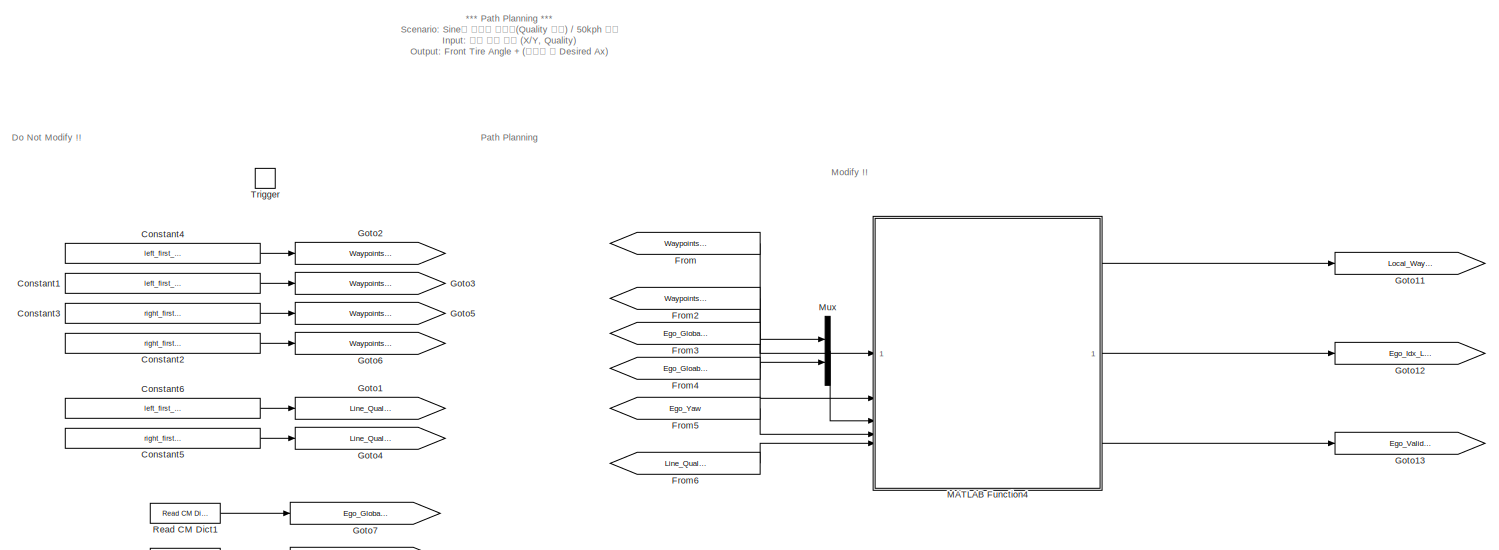
[diagram: CarMaker/Subsystem/Day3/Scenario 1 - part 1/3, full width, top band]
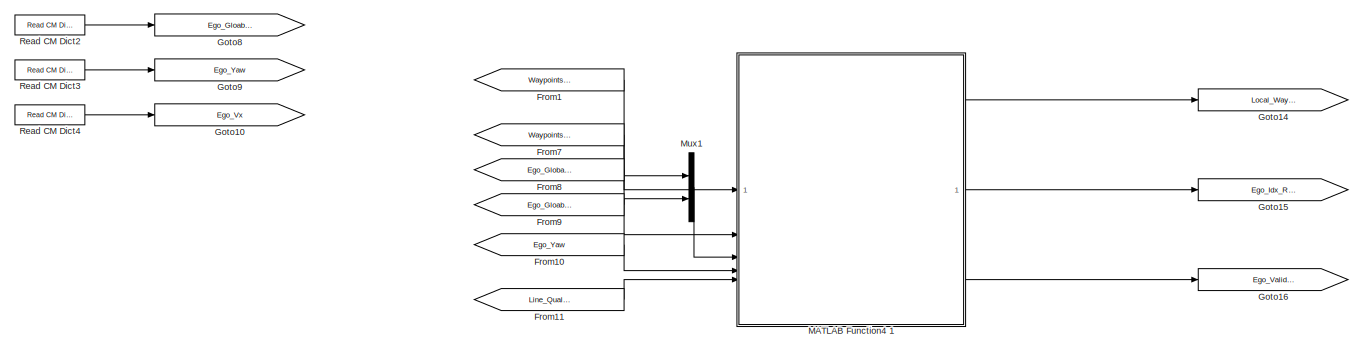
[diagram: CarMaker/Subsystem/Day3/Scenario 1 - part 2/3, full width, middle band]
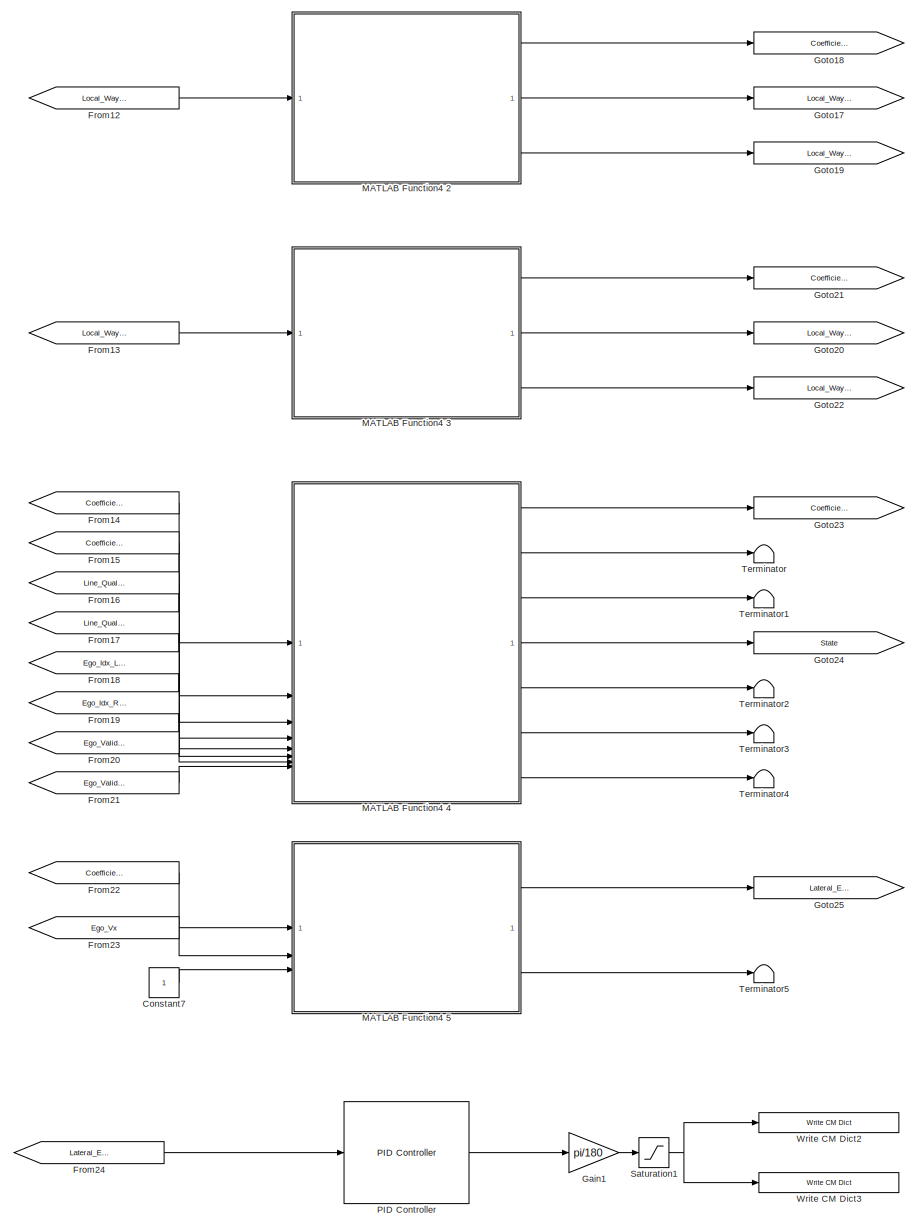
[diagram: CarMaker/Subsystem/Day3/Scenario 1 - part 3/3, bottom right region]
BLOCK [SubSystem] CarMaker/Subsystem/Day3/Scenario 1
  Commented = on
  TreatAsAtomicUnit = on
BLOCK [Constant] CarMaker/Subsystem/Day3/Scenario 1/Constant1
  Value = left_first_line_point_y.signals.values'
BLOCK [Constant] CarMaker/Subsystem/Day3/Scenario 1/Constant2
  Value = right_first_line_point_y.signals.values'
BLOCK [Constant] CarMaker/Subsystem/Day3/Scenario 1/Constant3
  Value = right_first_line_point_x.signals.values'
BLOCK [Constant] CarMaker/Subsystem/Day3/Scenario 1/Constant4
  Value = left_first_line_point_x.signals.values'
BLOCK [Constant] CarMaker/Subsystem/Day3/Scenario 1/Constant5
  Value = right_first_line_point_x.Qual
BLOCK [Constant] CarMaker/Subsystem/Day3/Scenario 1/Constant6
  Value = left_first_line_point_x.Qual
BLOCK [Constant] CarMaker/Subsystem/Day3/Scenario 1/Constant7
BLOCK [From] CarMaker/Subsystem/Day3/Scenario 1/From
  GotoTag = Waypoints_X_Left
BLOCK [From] CarMaker/Subsystem/Day3/Scenario 1/From1
  GotoTag = Waypoints_X_Right
BLOCK [From] CarMaker/Subsystem/Day3/Scenario 1/From10
  GotoTag = Ego_Yaw
BLOCK [From] CarMaker/Subsystem/Day3/Scenario 1/From11
  GotoTag = Line_Quality_Right
BLOCK [From] CarMaker/Subsystem/Day3/Scenario 1/From12
  GotoTag = Local_Waypoints_Left
BLOCK [From] CarMaker/Subsystem/Day3/Scenario 1/From13
  GotoTag = Local_Waypoints_Right
BLOCK [From] CarMaker/Subsystem/Day3/Scenario 1/From14
  GotoTag = Coefficient_Left
BLOCK [From] CarMaker/Subsystem/Day3/Scenario 1/From15
  GotoTag = Coefficient_Right
BLOCK [From] CarMaker/Subsystem/Day3/Scenario 1/From16
  GotoTag = Line_Quality_Left
BLOCK [From] CarMaker/Subsystem/Day3/Scenario 1/From17
  GotoTag = Line_Quality_Right
BLOCK [From] CarMaker/Subsystem/Day3/Scenario 1/From18
  GotoTag = Ego_Idx_Left
BLOCK [From] CarMaker/Subsystem/Day3/Scenario 1/From19
  GotoTag = Ego_Idx_Right
BLOCK [From] CarMaker/Subsystem/Day3/Scenario 1/From2
  GotoTag = Waypoints_Y_Left
BLOCK [From] CarMaker/Subsystem/Day3/Scenario 1/From20
  GotoTag = Ego_Valid_Left
BLOCK [From] CarMaker/Subsystem/Day3/Scenario 1/From21
  GotoTag = Ego_Valid_Right
BLOCK [From] CarMaker/Subsystem/Day3/Scenario 1/From22
  GotoTag = Coefficient
BLOCK [From] CarMaker/Subsystem/Day3/Scenario 1/From23
  GotoTag = Ego_Vx
BLOCK [From] CarMaker/Subsystem/Day3/Scenario 1/From24
  GotoTag = Lateral_Error
BLOCK [From] CarMaker/Subsystem/Day3/Scenario 1/From3
  GotoTag = Ego_Global_X
BLOCK [From] CarMaker/Subsystem/Day3/Scenario 1/From4
  GotoTag = Ego_Gloabl_Y
BLOCK [From] CarMaker/Subsystem/Day3/Scenario 1/From5
  GotoTag = Ego_Yaw
BLOCK [From] CarMaker/Subsystem/Day3/Scenario 1/From6
  GotoTag = Line_Quality_Left
BLOCK [From] CarMaker/Subsystem/Day3/Scenario 1/From7
  GotoTag = Waypoints_Y_Right
BLOCK [From] CarMaker/Subsystem/Day3/Scenario 1/From8
  GotoTag = Ego_Global_X
BLOCK [From] CarMaker/Subsystem/Day3/Scenario 1/From9
  GotoTag = Ego_Gloabl_Y
BLOCK [Gain] CarMaker/Subsystem/Day3/Scenario 1/Gain1
  Gain = pi/180
BLOCK [Goto] CarMaker/Subsystem/Day3/Scenario 1/Goto1
  GotoTag = Line_Quality_Left
BLOCK [Goto] CarMaker/Subsystem/Day3/Scenario 1/Goto10
  GotoTag = Ego_Vx
BLOCK [Goto] CarMaker/Subsystem/Day3/Scenario 1/Goto11
  GotoTag = Local_Waypoints_Left
BLOCK [Goto] CarMaker/Subsystem/Day3/Scenario 1/Goto12
  GotoTag = Ego_Idx_Left
BLOCK [Goto] CarMaker/Subsystem/Day3/Scenario 1/Goto13
  GotoTag = Ego_Valid_Left
BLOCK [Goto] CarMaker/Subsystem/Day3/Scenario 1/Goto14
  GotoTag = Local_Waypoints_Right
BLOCK [Goto] CarMaker/Subsystem/Day3/Scenario 1/Goto15
  GotoTag = Ego_Idx_Right
BLOCK [Goto] CarMaker/Subsystem/Day3/Scenario 1/Goto16
  GotoTag = Ego_Valid_Right
BLOCK [Goto] CarMaker/Subsystem/Day3/Scenario 1/Goto17
  GotoTag = Local_Waypoints_X_Left
BLOCK [Goto] CarMaker/Subsystem/Day3/Scenario 1/Goto18
  GotoTag = Coefficient_Left
BLOCK [Goto] CarMaker/Subsystem/Day3/Scenario 1/Goto19
  GotoTag = Local_Waypoints_Y_Left
BLOCK [Goto] CarMaker/Subsystem/Day3/Scenario 1/Goto2
  GotoTag = Waypoints_X_Left
BLOCK [Goto] CarMaker/Subsystem/Day3/Scenario 1/Goto20
  GotoTag = Local_Waypoints_X_Right
BLOCK [Goto] CarMaker/Subsystem/Day3/Scenario 1/Goto21
  GotoTag = Coefficient_Right
BLOCK [Goto] CarMaker/Subsystem/Day3/Scenario 1/Goto22
  GotoTag = Local_Waypoints_Y_Right
BLOCK [Goto] CarMaker/Subsystem/Day3/Scenario 1/Goto23
  GotoTag = Coefficient
BLOCK [Goto] CarMaker/Subsystem/Day3/Scenario 1/Goto24
  GotoTag = State
BLOCK [Goto] CarMaker/Subsystem/Day3/Scenario 1/Goto25
  GotoTag = Lateral_Error
BLOCK [Goto] CarMaker/Subsystem/Day3/Scenario 1/Goto3
  GotoTag = Waypoints_Y_Left
BLOCK [Goto] CarMaker/Subsystem/Day3/Scenario 1/Goto4
  GotoTag = Line_Quality_Right
BLOCK [Goto] CarMaker/Subsystem/Day3/Scenario 1/Goto5
  GotoTag = Waypoints_X_Right
BLOCK [Goto] CarMaker/Subsystem/Day3/Scenario 1/Goto6
  GotoTag = Waypoints_Y_Right
BLOCK [Goto] CarMaker/Subsystem/Day3/Scenario 1/Goto7
  GotoTag = Ego_Global_X
BLOCK [Goto] CarMaker/Subsystem/Day3/Scenario 1/Goto8
  GotoTag = Ego_Gloabl_Y
BLOCK [Goto] CarMaker/Subsystem/Day3/Scenario 1/Goto9
  GotoTag = Ego_Yaw
BLOCK [SubSystem] CarMaker/Subsystem/Day3/Scenario 1/MATLAB Function4 
  ErrorFcn = Stateflow.Translate.translate
  PermitHierarchicalResolution = ExplicitOnly
  SFBlockType = MATLAB Function
  TreatAsAtomicUnit = on
BLOCK [Demux] CarMaker/Subsystem/Day3/Scenario 1/MATLAB Function4 / Demux 
  Outputs = 1
BLOCK [S-Function] CarMaker/Subsystem/Day3/Scenario 1/MATLAB Function4 / SFunction 
  EnableBusSupport = on
  FunctionName = sf_sfun
  PortCounts = [5 4]
  SFcnIsStateOwnerBlock = off
  SFunctionDeploymentMode = off
  Tag = Stateflow S-Function 12
BLOCK [Terminator] CarMaker/Subsystem/Day3/Scenario 1/MATLAB Function4 / Terminator 
BLOCK [Outport] CarMaker/Subsystem/Day3/Scenario 1/MATLAB Function4 /ego_idx_out
  Port = 2
BLOCK [Outport] CarMaker/Subsystem/Day3/Scenario 1/MATLAB Function4 /ego_valid
  Port = 3
BLOCK [Inport] CarMaker/Subsystem/Day3/Scenario 1/MATLAB Function4 /head
  Port = 4
BLOCK [Outport] CarMaker/Subsystem/Day3/Scenario 1/MATLAB Function4 /local_waypoints_
BLOCK [Inport] CarMaker/Subsystem/Day3/Scenario 1/MATLAB Function4 /qual
  Port = 5
BLOCK [Inport] CarMaker/Subsystem/Day3/Scenario 1/MATLAB Function4 /vehicle_position
  Port = 3
BLOCK [Inport] CarMaker/Subsystem/Day3/Scenario 1/MATLAB Function4 /waypoints_x
BLOCK [Inport] CarMaker/Subsystem/Day3/Scenario 1/MATLAB Function4 /waypoints_y
  Port = 2
BLOCK [SubSystem] CarMaker/Subsystem/Day3/Scenario 1/MATLAB Function4 1
  ErrorFcn = Stateflow.Translate.translate
  PermitHierarchicalResolution = ExplicitOnly
  SFBlockType = MATLAB Function
  TreatAsAtomicUnit = on
BLOCK [Demux] CarMaker/Subsystem/Day3/Scenario 1/MATLAB Function4 1/ Demux 
  Outputs = 1
BLOCK [S-Function] CarMaker/Subsystem/Day3/Scenario 1/MATLAB Function4 1/ SFunction 
  EnableBusSupport = on
  FunctionName = sf_sfun
  PortCounts = [5 4]
  SFcnIsStateOwnerBlock = off
  SFunctionDeploymentMode = off
  Tag = Stateflow S-Function 13
BLOCK [Terminator] CarMaker/Subsystem/Day3/Scenario 1/MATLAB Function4 1/ Terminator 
BLOCK [Outport] CarMaker/Subsystem/Day3/Scenario 1/MATLAB Function4 1/ego_idx_out
  Port = 2
BLOCK [Outport] CarMaker/Subsystem/Day3/Scenario 1/MATLAB Function4 1/ego_valid
  Port = 3
BLOCK [Inport] CarMaker/Subsystem/Day3/Scenario 1/MATLAB Function4 1/head
  Port = 4
BLOCK [Outport] CarMaker/Subsystem/Day3/Scenario 1/MATLAB Function4 1/local_waypoints_
BLOCK [Inport] CarMaker/Subsystem/Day3/Scenario 1/MATLAB Function4 1/qual
  Port = 5
BLOCK [Inport] CarMaker/Subsystem/Day3/Scenario 1/MATLAB Function4 1/vehicle_position
  Port = 3
BLOCK [Inport] CarMaker/Subsystem/Day3/Scenario 1/MATLAB Function4 1/waypoints_x
BLOCK [Inport] CarMaker/Subsystem/Day3/Scenario 1/MATLAB Function4 1/waypoints_y
  Port = 2
BLOCK [SubSystem] CarMaker/Subsystem/Day3/Scenario 1/MATLAB Function4 2
  ErrorFcn = Stateflow.Translate.translate
  PermitHierarchicalResolution = ExplicitOnly
  SFBlockType = MATLAB Function
  TreatAsAtomicUnit = on
BLOCK [Demux] CarMaker/Subsystem/Day3/Scenario 1/MATLAB Function4 2/ Demux 
  Outputs = 1
BLOCK [S-Function] CarMaker/Subsystem/Day3/Scenario 1/MATLAB Function4 2/ SFunction 
  EnableBusSupport = on
  FunctionName = sf_sfun
  PortCounts = [1 4]
  SFcnIsStateOwnerBlock = off
  SFunctionDeploymentMode = off
  Tag = Stateflow S-Function 28
BLOCK [Terminator] CarMaker/Subsystem/Day3/Scenario 1/MATLAB Function4 2/ Terminator 
BLOCK [Inport] CarMaker/Subsystem/Day3/Scenario 1/MATLAB Function4 2/local_waypoints
BLOCK [Outport] CarMaker/Subsystem/Day3/Scenario 1/MATLAB Function4 2/poly_coeff
BLOCK [Outport] CarMaker/Subsystem/Day3/Scenario 1/MATLAB Function4 2/x_local
  Port = 2
BLOCK [Outport] CarMaker/Subsystem/Day3/Scenario 1/MATLAB Function4 2/y_local
  Port = 3
BLOCK [SubSystem] CarMaker/Subsystem/Day3/Scenario 1/MATLAB Function4 3
  ErrorFcn = Stateflow.Translate.translate
  PermitHierarchicalResolution = ExplicitOnly
  SFBlockType = MATLAB Function
  TreatAsAtomicUnit = on
BLOCK [Demux] CarMaker/Subsystem/Day3/Scenario 1/MATLAB Function4 3/ Demux 
  Outputs = 1
BLOCK [S-Function] CarMaker/Subsystem/Day3/Scenario 1/MATLAB Function4 3/ SFunction 
  EnableBusSupport = on
  FunctionName = sf_sfun
  PortCounts = [1 4]
  SFcnIsStateOwnerBlock = off
  SFunctionDeploymentMode = off
  Tag = Stateflow S-Function 29
BLOCK [Terminator] CarMaker/Subsystem/Day3/Scenario 1/MATLAB Function4 3/ Terminator 
BLOCK [Inport] CarMaker/Subsystem/Day3/Scenario 1/MATLAB Function4 3/local_waypoints
BLOCK [Outport] CarMaker/Subsystem/Day3/Scenario 1/MATLAB Function4 3/poly_coeff
BLOCK [Outport] CarMaker/Subsystem/Day3/Scenario 1/MATLAB Function4 3/x_local
  Port = 2
BLOCK [Outport] CarMaker/Subsystem/Day3/Scenario 1/MATLAB Function4 3/y_local
  Port = 3
BLOCK [SubSystem] CarMaker/Subsystem/Day3/Scenario 1/MATLAB Function4 4
  ErrorFcn = Stateflow.Translate.translate
  PermitHierarchicalResolution = ExplicitOnly
  SFBlockType = MATLAB Function
  TreatAsAtomicUnit = on
BLOCK [Demux] CarMaker/Subsystem/Day3/Scenario 1/MATLAB Function4 4/ Demux 
  Outputs = 1
BLOCK [S-Function] CarMaker/Subsystem/Day3/Scenario 1/MATLAB Function4 4/ SFunction 
  EnableBusSupport = on
  FunctionName = sf_sfun
  PortCounts = [8 8]
  SFcnIsStateOwnerBlock = off
  SFunctionDeploymentMode = off
  Tag = Stateflow S-Function 30
BLOCK [Terminator] CarMaker/Subsystem/Day3/Scenario 1/MATLAB Function4 4/ Terminator 
BLOCK [Inport] CarMaker/Subsystem/Day3/Scenario 1/MATLAB Function4 4/coeff_L
BLOCK [Outport] CarMaker/Subsystem/Day3/Scenario 1/MATLAB Function4 4/coeff_L_out
  Port = 6
BLOCK [Inport] CarMaker/Subsystem/Day3/Scenario 1/MATLAB Function4 4/coeff_R
  Port = 2
BLOCK [Outport] CarMaker/Subsystem/Day3/Scenario 1/MATLAB Function4 4/coeff_R_out
  Port = 7
BLOCK [Inport] CarMaker/Subsystem/Day3/Scenario 1/MATLAB Function4 4/ego_idx_L
  Port = 5
BLOCK [Inport] CarMaker/Subsystem/Day3/Scenario 1/MATLAB Function4 4/ego_idx_R
  Port = 6
BLOCK [Inport] CarMaker/Subsystem/Day3/Scenario 1/MATLAB Function4 4/ego_valid_L
  Port = 7
BLOCK [Inport] CarMaker/Subsystem/Day3/Scenario 1/MATLAB Function4 4/ego_valid_R
  Port = 8
BLOCK [Outport] CarMaker/Subsystem/Day3/Scenario 1/MATLAB Function4 4/is_L
  Port = 2
BLOCK [Outport] CarMaker/Subsystem/Day3/Scenario 1/MATLAB Function4 4/is_R
  Port = 3
BLOCK [Outport] CarMaker/Subsystem/Day3/Scenario 1/MATLAB Function4 4/laneWidth
  Port = 5
BLOCK [Outport] CarMaker/Subsystem/Day3/Scenario 1/MATLAB Function4 4/poly_coeff
BLOCK [Inport] CarMaker/Subsystem/Day3/Scenario 1/MATLAB Function4 4/qual_L
  Port = 3
BLOCK [Inport] CarMaker/Subsystem/Day3/Scenario 1/MATLAB Function4 4/qual_R
  Port = 4
BLOCK [Outport] CarMaker/Subsystem/Day3/Scenario 1/MATLAB Function4 4/state
  Port = 4
BLOCK [SubSystem] CarMaker/Subsystem/Day3/Scenario 1/MATLAB Function4 5
  ErrorFcn = Stateflow.Translate.translate
  PermitHierarchicalResolution = ExplicitOnly
  SFBlockType = MATLAB Function
  TreatAsAtomicUnit = on
BLOCK [Demux] CarMaker/Subsystem/Day3/Scenario 1/MATLAB Function4 5/ Demux 
  Outputs = 1
BLOCK [S-Function] CarMaker/Subsystem/Day3/Scenario 1/MATLAB Function4 5/ SFunction 
  EnableBusSupport = on
  FunctionName = sf_sfun
  PortCounts = [3 3]
  SFcnIsStateOwnerBlock = off
  SFunctionDeploymentMode = off
  Tag = Stateflow S-Function 31
BLOCK [Terminator] CarMaker/Subsystem/Day3/Scenario 1/MATLAB Function4 5/ Terminator 
BLOCK [Outport] CarMaker/Subsystem/Day3/Scenario 1/MATLAB Function4 5/lateral_error
BLOCK [Inport] CarMaker/Subsystem/Day3/Scenario 1/MATLAB Function4 5/lookahead_time
  Port = 3
BLOCK [Inport] CarMaker/Subsystem/Day3/Scenario 1/MATLAB Function4 5/poly_coeff
BLOCK [Inport] CarMaker/Subsystem/Day3/Scenario 1/MATLAB Function4 5/velocity
  Port = 2
BLOCK [Outport] CarMaker/Subsystem/Day3/Scenario 1/MATLAB Function4 5/x_lookahead
  Port = 2
BLOCK [Mux] CarMaker/Subsystem/Day3/Scenario 1/Mux
  DisplayOption = bar
  Inputs = 2
BLOCK [Mux] CarMaker/Subsystem/Day3/Scenario 1/Mux1
  DisplayOption = bar
  Inputs = 2
BLOCK [Reference] CarMaker/Subsystem/Day3/Scenario 1/PID Controller  REF=slpidlib/PID Controller
  LibrarySourceBlock = simulink/Continuous/PID Controller
  SourceBlock = slpidlib/PID Controller
  SourceType = PID 1dof
BLOCK [Reference] CarMaker/Subsystem/Day3/Scenario 1/Read CM Dict1  REF=CarMaker4SL/Read CM Dict
  SourceBlock = CarMaker4SL/Read CM Dict
  SourceProductName = CarMaker4SL
  SourceType = Read CarMaker Dictionary Variable(s)
BLOCK [Reference] CarMaker/Subsystem/Day3/Scenario 1/Read CM Dict2  REF=CarMaker4SL/Read CM Dict
  SourceBlock = CarMaker4SL/Read CM Dict
  SourceProductName = CarMaker4SL
  SourceType = Read CarMaker Dictionary Variable(s)
BLOCK [Reference] CarMaker/Subsystem/Day3/Scenario 1/Read CM Dict3  REF=CarMaker4SL/Read CM Dict
  SourceBlock = CarMaker4SL/Read CM Dict
  SourceProductName = CarMaker4SL
  SourceType = Read CarMaker Dictionary Variable(s)
BLOCK [Reference] CarMaker/Subsystem/Day3/Scenario 1/Read CM Dict4  REF=CarMaker4SL/Read CM Dict
  SourceBlock = CarMaker4SL/Read CM Dict
  SourceProductName = CarMaker4SL
  SourceType = Read CarMaker Dictionary Variable(s)
BLOCK [Saturate] CarMaker/Subsystem/Day3/Scenario 1/Saturation1
  LowerLimit = -2
  UpperLimit = 2
BLOCK [Terminator] CarMaker/Subsystem/Day3/Scenario 1/Terminator
BLOCK [Terminator] CarMaker/Subsystem/Day3/Scenario 1/Terminator1
BLOCK [Terminator] CarMaker/Subsystem/Day3/Scenario 1/Terminator2
BLOCK [Terminator] CarMaker/Subsystem/Day3/Scenario 1/Terminator3
BLOCK [Terminator] CarMaker/Subsystem/Day3/Scenario 1/Terminator4
BLOCK [Terminator] CarMaker/Subsystem/Day3/Scenario 1/Terminator5
BLOCK [TriggerPort] CarMaker/Subsystem/Day3/Scenario 1/Trigger
  StatesWhenEnabling = held
  TriggerType = function-call
  VariantControl = (inherit)
BLOCK [Reference] CarMaker/Subsystem/Day3/Scenario 1/Write CM Dict2  REF=CarMaker4SL/Write CM Dict
  SourceBlock = CarMaker4SL/Write CM Dict
  SourceProductName = CarMaker4SL
  SourceType = Write CarMaker Dictionary Variable(s)
BLOCK [Reference] CarMaker/Subsystem/Day3/Scenario 1/Write CM Dict3  REF=CarMaker4SL/Write CM Dict
  SourceBlock = CarMaker4SL/Write CM Dict
  SourceProductName = CarMaker4SL
  SourceType = Write CarMaker Dictionary Variable(s)
BLOCK [SubSystem] CarMaker/Subsystem/Day3/Scenario 2
  Commented = on
  TreatAsAtomicUnit = on
BLOCK [Sum] CarMaker/Subsystem/Day3/Scenario 2/Add
  IconShape = rectangular
  Inputs = +-
BLOCK [BusSelector] CarMaker/Subsystem/Day3/Scenario 2/Bus Selector
  OutputSignals = t_0 x,t_0 y,LongVel,r_zyx z
BLOCK [Constant] CarMaker/Subsystem/Day3/Scenario 2/Constant7
  Value = 0.05
BLOCK [Constant] CarMaker/Subsystem/Day3/Scenario 2/Constant8
  Value = 0
BLOCK [From] CarMaker/Subsystem/Day3/Scenario 2/From
  GotoTag = Traffic_Global_X
BLOCK [From] CarMaker/Subsystem/Day3/Scenario 2/From1
  GotoTag = Traffic_Global_Y
BLOCK [From] CarMaker/Subsystem/Day3/Scenario 2/From10
  GotoTag = Traffic_Global_Y
BLOCK [From] CarMaker/Subsystem/Day3/Scenario 2/From11
  GotoTag = Traffic_Yaw
BLOCK [From] CarMaker/Subsystem/Day3/Scenario 2/From12
  GotoTag = Traffic_Vx
BLOCK [From] CarMaker/Subsystem/Day3/Scenario 2/From13
  GotoTag = Distance
BLOCK [From] CarMaker/Subsystem/Day3/Scenario 2/From14
  GotoTag = Ego_Vx
BLOCK [From] CarMaker/Subsystem/Day3/Scenario 2/From2
  GotoTag = Ego_Yaw
BLOCK [From] CarMaker/Subsystem/Day3/Scenario 2/From24
  GotoTag = Steering_Angle
BLOCK [From] CarMaker/Subsystem/Day3/Scenario 2/From3
  GotoTag = Ego_Global_X
BLOCK [From] CarMaker/Subsystem/Day3/Scenario 2/From4
  GotoTag = Ego_Gloabl_Y
BLOCK [From] CarMaker/Subsystem/Day3/Scenario 2/From5
  GotoTag = Ego_Yaw
BLOCK [From] CarMaker/Subsystem/Day3/Scenario 2/From7
  GotoTag = Traffic_Global_X
BLOCK [From] CarMaker/Subsystem/Day3/Scenario 2/From8
  GotoTag = Ego_Global_X
BLOCK [From] CarMaker/Subsystem/Day3/Scenario 2/From9
  GotoTag = Ego_Gloabl_Y
BLOCK [Gain] CarMaker/Subsystem/Day3/Scenario 2/Gain
  Gain = 2.5
BLOCK [Goto] CarMaker/Subsystem/Day3/Scenario 2/Goto
  GotoTag = Steering_Angle
BLOCK [Goto] CarMaker/Subsystem/Day3/Scenario 2/Goto1
  GotoTag = Local_Waypoints
BLOCK [Goto] CarMaker/Subsystem/Day3/Scenario 2/Goto10
  GotoTag = Ego_Vx
BLOCK [Goto] CarMaker/Subsystem/Day3/Scenario 2/Goto2
  GotoTag = Distance
BLOCK [Goto] CarMaker/Subsystem/Day3/Scenario 2/Goto26
  GotoTag = Traffic_Global_X
BLOCK [Goto] CarMaker/Subsystem/Day3/Scenario 2/Goto27
  GotoTag = Traffic_Yaw
BLOCK [Goto] CarMaker/Subsystem/Day3/Scenario 2/Goto28
  GotoTag = Traffic_Global_Y
BLOCK [Goto] CarMaker/Subsystem/Day3/Scenario 2/Goto29
  GotoTag = Traffic_Vx
BLOCK [Goto] CarMaker/Subsystem/Day3/Scenario 2/Goto7
  GotoTag = Ego_Global_X
BLOCK [Goto] CarMaker/Subsystem/Day3/Scenario 2/Goto8
  GotoTag = Ego_Gloabl_Y
BLOCK [Goto] CarMaker/Subsystem/Day3/Scenario 2/Goto9
  GotoTag = Ego_Yaw
BLOCK [SubSystem] CarMaker/Subsystem/Day3/Scenario 2/MATLAB Function4 
  ErrorFcn = Stateflow.Translate.translate
  PermitHierarchicalResolution = ExplicitOnly
  SFBlockType = MATLAB Function
  TreatAsAtomicUnit = on
BLOCK [Demux] CarMaker/Subsystem/Day3/Scenario 2/MATLAB Function4 / Demux 
  Outputs = 1
BLOCK [S-Function] CarMaker/Subsystem/Day3/Scenario 2/MATLAB Function4 / SFunction 
  EnableBusSupport = on
  FunctionName = sf_sfun
  PortCounts = [4 3]
  SFcnIsStateOwnerBlock = off
  SFunctionDeploymentMode = off
  Tag = Stateflow S-Function 32
BLOCK [Terminator] CarMaker/Subsystem/Day3/Scenario 2/MATLAB Function4 / Terminator 
BLOCK [Outport] CarMaker/Subsystem/Day3/Scenario 2/MATLAB Function4 /dist
  Port = 2
BLOCK [Inport] CarMaker/Subsystem/Day3/Scenario 2/MATLAB Function4 /head
  Port = 4
BLOCK [Outport] CarMaker/Subsystem/Day3/Scenario 2/MATLAB Function4 /local_point
BLOCK [Inport] CarMaker/Subsystem/Day3/Scenario 2/MATLAB Function4 /vehicle_position
  Port = 3
BLOCK [Inport] CarMaker/Subsystem/Day3/Scenario 2/MATLAB Function4 /waypoints_x
BLOCK [Inport] CarMaker/Subsystem/Day3/Scenario 2/MATLAB Function4 /waypoints_y
  Port = 2
BLOCK [SubSystem] CarMaker/Subsystem/Day3/Scenario 2/MATLAB Function4 1
  ErrorFcn = Stateflow.Translate.translate
  PermitHierarchicalResolution = ExplicitOnly
  SFBlockType = MATLAB Function
  TreatAsAtomicUnit = on
BLOCK [Demux] CarMaker/Subsystem/Day3/Scenario 2/MATLAB Function4 1/ Demux 
  Outputs = 1
BLOCK [S-Function] CarMaker/Subsystem/Day3/Scenario 2/MATLAB Function4 1/ SFunction 
  EnableBusSupport = on
  FunctionName = sf_sfun
  PortCounts = [6 2]
  SFcnIsStateOwnerBlock = off
  SFunctionDeploymentMode = off
  Tag = Stateflow S-Function 33
BLOCK [Terminator] CarMaker/Subsystem/Day3/Scenario 2/MATLAB Function4 1/ Terminator 
BLOCK [Inport] CarMaker/Subsystem/Day3/Scenario 2/MATLAB Function4 1/Vx_target
  Port = 5
BLOCK [Inport] CarMaker/Subsystem/Day3/Scenario 2/MATLAB Function4 1/dt
  Port = 6
BLOCK [Inport] CarMaker/Subsystem/Day3/Scenario 2/MATLAB Function4 1/ego_heading
  Port = 2
BLOCK [Inport] CarMaker/Subsystem/Day3/Scenario 2/MATLAB Function4 1/ego_pos
BLOCK [Outport] CarMaker/Subsystem/Day3/Scenario 2/MATLAB Function4 1/steering_angle
BLOCK [Inport] CarMaker/Subsystem/Day3/Scenario 2/MATLAB Function4 1/target_pos
  Port = 3
BLOCK [Inport] CarMaker/Subsystem/Day3/Scenario 2/MATLAB Function4 1/target_yaw
  Port = 4
BLOCK [Mux] CarMaker/Subsystem/Day3/Scenario 2/Mux1
  DisplayOption = bar
  Inputs = 2
BLOCK [Mux] CarMaker/Subsystem/Day3/Scenario 2/Mux2
  DisplayOption = bar
  Inputs = 2
BLOCK [Mux] CarMaker/Subsystem/Day3/Scenario 2/Mux3
  DisplayOption = bar
  Inputs = 2
BLOCK [Reference] CarMaker/Subsystem/Day3/Scenario 2/PID Controller  REF=slpidlib/PID Controller
  LibrarySourceBlock = simulink/Continuous/PID Controller
  SourceBlock = slpidlib/PID Controller
  SourceType = PID 1dof
BLOCK [Reference] CarMaker/Subsystem/Day3/Scenario 2/Read CM Dict1  REF=CarMaker4SL/Read CM Dict
  SourceBlock = CarMaker4SL/Read CM Dict
  SourceProductName = CarMaker4SL
  SourceType = Read CarMaker Dictionary Variable(s)
BLOCK [Reference] CarMaker/Subsystem/Day3/Scenario 2/Read CM Dict2  REF=CarMaker4SL/Read CM Dict
  SourceBlock = CarMaker4SL/Read CM Dict
  SourceProductName = CarMaker4SL
  SourceType = Read CarMaker Dictionary Variable(s)
BLOCK [Reference] CarMaker/Subsystem/Day3/Scenario 2/Read CM Dict3  REF=CarMaker4SL/Read CM Dict
  SourceBlock = CarMaker4SL/Read CM Dict
  SourceProductName = CarMaker4SL
  SourceType = Read CarMaker Dictionary Variable(s)
BLOCK [Reference] CarMaker/Subsystem/Day3/Scenario 2/Read CM Dict4  REF=CarMaker4SL/Read CM Dict
  SourceBlock = CarMaker4SL/Read CM Dict
  SourceProductName = CarMaker4SL
  SourceType = Read CarMaker Dictionary Variable(s)
BLOCK [Saturate] CarMaker/Subsystem/Day3/Scenario 2/Saturation1
  LowerLimit = -pi/6
  UpperLimit = pi/6
BLOCK [Terminator] CarMaker/Subsystem/Day3/Scenario 2/Terminator6
BLOCK [Reference] CarMaker/Subsystem/Day3/Scenario 2/Traffic Object  REF=CarMaker4SL/Traffic Object
  SourceBlock = CarMaker4SL/Traffic Object
  SourceProductName = CarMaker4SL
  SourceType = CarMaker Traffic Object
BLOCK [TriggerPort] CarMaker/Subsystem/Day3/Scenario 2/Trigger
  StatesWhenEnabling = held
  TriggerType = function-call
  VariantControl = (inherit)
BLOCK [Reference] CarMaker/Subsystem/Day3/Scenario 2/Write CM Dict1  REF=CarMaker4SL/Write CM Dict
  SourceBlock = CarMaker4SL/Write CM Dict
  SourceProductName = CarMaker4SL
  SourceType = Write CarMaker Dictionary Variable(s)
BLOCK [Reference] CarMaker/Subsystem/Day3/Scenario 2/Write CM Dict2  REF=CarMaker4SL/Write CM Dict
  SourceBlock = CarMaker4SL/Write CM Dict
  SourceProductName = CarMaker4SL
  SourceType = Write CarMaker Dictionary Variable(s)
BLOCK [Reference] CarMaker/Subsystem/Day3/Scenario 2/Write CM Dict3  REF=CarMaker4SL/Write CM Dict
  SourceBlock = CarMaker4SL/Write CM Dict
  SourceProductName = CarMaker4SL
  SourceType = Write CarMaker Dictionary Variable(s)
BLOCK [SubSystem] CarMaker/Subsystem/Day4 & 5
BLOCK [SubSystem] CarMaker/Subsystem/Day4 & 5/Scenario 1
  Commented = on
BLOCK [Constant] CarMaker/Subsystem/Day4 & 5/Scenario 1/Constant1
  Value = 11.5
BLOCK [Constant] CarMaker/Subsystem/Day4 & 5/Scenario 1/Constant10
  Value = 2.48
BLOCK [Constant] CarMaker/Subsystem/Day4 & 5/Scenario 1/Constant2
  Value = 0
BLOCK [Constant] CarMaker/Subsystem/Day4 & 5/Scenario 1/Constant3
  Value = -20
BLOCK [Constant] CarMaker/Subsystem/Day4 & 5/Scenario 1/Constant4
  Value = 80
BLOCK [Constant] CarMaker/Subsystem/Day4 & 5/Scenario 1/Constant5
  Value = -3
BLOCK [Constant] CarMaker/Subsystem/Day4 & 5/Scenario 1/Constant6
  Value = 0
BLOCK [Constant] CarMaker/Subsystem/Day4 & 5/Scenario 1/Constant7
  Value = 0
BLOCK [Constant] CarMaker/Subsystem/Day4 & 5/Scenario 1/Constant8
  Value = 100
BLOCK [Constant] CarMaker/Subsystem/Day4 & 5/Scenario 1/Constant9
  Value = -100
BLOCK [From] CarMaker/Subsystem/Day4 & 5/Scenario 1/From
  GotoTag = Map_Boundary
BLOCK [From] CarMaker/Subsystem/Day4 & 5/Scenario 1/From1
  GotoTag = Map
BLOCK [From] CarMaker/Subsystem/Day4 & 5/Scenario 1/From2
  GotoTag = Traffic_size
BLOCK [From] CarMaker/Subsystem/Day4 & 5/Scenario 1/From3
  GotoTag = Traffic_Info
BLOCK [From] CarMaker/Subsystem/Day4 & 5/Scenario 1/From4
  GotoTag = Traffic_Info
BLOCK [From] CarMaker/Subsystem/Day4 & 5/Scenario 1/From5
  GotoTag = Traffic_size
BLOCK [Goto] CarMaker/Subsystem/Day4 & 5/Scenario 1/Goto
  GotoTag = Map
BLOCK [Goto] CarMaker/Subsystem/Day4 & 5/Scenario 1/Goto1
  GotoTag = Finish_Point
BLOCK [Goto] CarMaker/Subsystem/Day4 & 5/Scenario 1/Goto2
  GotoTag = Traffic_size
BLOCK [Goto] CarMaker/Subsystem/Day4 & 5/Scenario 1/Goto3
  GotoTag = y
BLOCK [Goto] CarMaker/Subsystem/Day4 & 5/Scenario 1/Goto4
  GotoTag = Start_Point
BLOCK [Goto] CarMaker/Subsystem/Day4 & 5/Scenario 1/Goto6
  GotoTag = Map_Boundary
BLOCK [Goto] CarMaker/Subsystem/Day4 & 5/Scenario 1/Goto9
  GotoTag = Traffic_Info
BLOCK [SubSystem] CarMaker/Subsystem/Day4 & 5/Scenario 1/MATLAB Function1
  ErrorFcn = Stateflow.Translate.translate
  PermitHierarchicalResolution = ExplicitOnly
  SFBlockType = MATLAB Function
  TreatAsAtomicUnit = on
BLOCK [Demux] CarMaker/Subsystem/Day4 & 5/Scenario 1/MATLAB Function1/ Demux 
  Outputs = 1
BLOCK [S-Function] CarMaker/Subsystem/Day4 & 5/Scenario 1/MATLAB Function1/ SFunction 
  EnableBusSupport = on
  FunctionName = sf_sfun
  PortCounts = [3 2]
  SFcnIsStateOwnerBlock = off
  SFunctionDeploymentMode = off
  Tag = Stateflow S-Function 16
BLOCK [Terminator] CarMaker/Subsystem/Day4 & 5/Scenario 1/MATLAB Function1/ Terminator 
BLOCK [Outport] CarMaker/Subsystem/Day4 & 5/Scenario 1/MATLAB Function1/mapMatrix
BLOCK [Inport] CarMaker/Subsystem/Day4 & 5/Scenario 1/MATLAB Function1/map_boundary
BLOCK [Inport] CarMaker/Subsystem/Day4 & 5/Scenario 1/MATLAB Function1/traffic_info
  Port = 2
BLOCK [Inport] CarMaker/Subsystem/Day4 & 5/Scenario 1/MATLAB Function1/traffic_size
  Port = 3
BLOCK [SubSystem] CarMaker/Subsystem/Day4 & 5/Scenario 1/MATLAB Function2
  ErrorFcn = Stateflow.Translate.translate
  PermitHierarchicalResolution = ExplicitOnly
  SFBlockType = MATLAB Function
  TreatAsAtomicUnit = on
BLOCK [Demux] CarMaker/Subsystem/Day4 & 5/Scenario 1/MATLAB Function2/ Demux 
  Outputs = 1
BLOCK [S-Function] CarMaker/Subsystem/Day4 & 5/Scenario 1/MATLAB Function2/ SFunction 
  EnableBusSupport = on
  FunctionName = sf_sfun
  PortCounts = [3 2]
  SFcnIsStateOwnerBlock = off
  SFunctionDeploymentMode = off
  Tag = Stateflow S-Function 17
BLOCK [Terminator] CarMaker/Subsystem/Day4 & 5/Scenario 1/MATLAB Function2/ Terminator 
BLOCK [Inport] CarMaker/Subsystem/Day4 & 5/Scenario 1/MATLAB Function2/map
BLOCK [Inport] CarMaker/Subsystem/Day4 & 5/Scenario 1/MATLAB Function2/traffic_info
  Port = 2
BLOCK [Inport] CarMaker/Subsystem/Day4 & 5/Scenario 1/MATLAB Function2/traffic_size
  Port = 3
BLOCK [Outport] CarMaker/Subsystem/Day4 & 5/Scenario 1/MATLAB Function2/y
BLOCK [Mux] CarMaker/Subsystem/Day4 & 5/Scenario 1/Mux
  DisplayOption = bar
  Inputs = 2
BLOCK [Mux] CarMaker/Subsystem/Day4 & 5/Scenario 1/Mux1
  DisplayOption = bar
  Inputs = 2
BLOCK [Mux] CarMaker/Subsystem/Day4 & 5/Scenario 1/Mux2
  DisplayOption = bar
  Inputs = 2
BLOCK [Mux] CarMaker/Subsystem/Day4 & 5/Scenario 1/Mux3
  DisplayOption = bar
  Inputs = 2
BLOCK [Mux] CarMaker/Subsystem/Day4 & 5/Scenario 1/Mux4
  DisplayOption = bar
  Inputs = 2
BLOCK [Mux] CarMaker/Subsystem/Day4 & 5/Scenario 1/Mux5
  DisplayOption = bar
  Inputs = 2
BLOCK [Reshape] CarMaker/Subsystem/Day4 & 5/Scenario 1/Reshape1
  OutputDimensionality = Row vector (2-D)
  OutputDimensions = [2,2]
BLOCK [SubSystem] CarMaker/Subsystem/Day4 & 5/Scenario 1/Subsystem
BLOCK [BusSelector] CarMaker/Subsystem/Day4 & 5/Scenario 1/Subsystem/Bus Selector
  OutputSignals = t_0 x,t_0 y,r_zyx z
BLOCK [BusSelector] CarMaker/Subsystem/Day4 & 5/Scenario 1/Subsystem/Bus Selector1
  OutputSignals = t_0 x,t_0 y,r_zyx z
BLOCK [BusSelector] CarMaker/Subsystem/Day4 & 5/Scenario 1/Subsystem/Bus Selector2
  Commented = on
  OutputSignals = t_0 x,t_0 y,r_zyx z
BLOCK [BusSelector] CarMaker/Subsystem/Day4 & 5/Scenario 1/Subsystem/Bus Selector3
  Commented = on
  OutputSignals = t_0 x,t_0 y,r_zyx z
BLOCK [BusSelector] CarMaker/Subsystem/Day4 & 5/Scenario 1/Subsystem/Bus Selector4
  Commented = on
  OutputSignals = t_0 x,t_0 y,r_zyx z
BLOCK [BusSelector] CarMaker/Subsystem/Day4 & 5/Scenario 1/Subsystem/Bus Selector5
  Commented = on
  OutputSignals = t_0 x,t_0 y,r_zyx z
BLOCK [BusSelector] CarMaker/Subsystem/Day4 & 5/Scenario 1/Subsystem/Bus Selector6
  Commented = on
  OutputSignals = t_0 x,t_0 y,r_zyx z
BLOCK [Constant] CarMaker/Subsystem/Day4 & 5/Scenario 1/Subsystem/Constant1
  Value = 2
BLOCK [Constant] CarMaker/Subsystem/Day4 & 5/Scenario 1/Subsystem/Constant10
BLOCK [Constant] CarMaker/Subsystem/Day4 & 5/Scenario 1/Subsystem/Constant2
  Commented = on
  Value = 3
BLOCK [Constant] CarMaker/Subsystem/Day4 & 5/Scenario 1/Subsystem/Constant3
  Commented = on
  Value = 4
BLOCK [Constant] CarMaker/Subsystem/Day4 & 5/Scenario 1/Subsystem/Constant4
  Commented = on
  Value = 5
BLOCK [Constant] CarMaker/Subsystem/Day4 & 5/Scenario 1/Subsystem/Constant5
  Commented = on
  Value = 6
BLOCK [Constant] CarMaker/Subsystem/Day4 & 5/Scenario 1/Subsystem/Constant6
  Commented = on
  Value = 7
BLOCK [From] CarMaker/Subsystem/Day4 & 5/Scenario 1/Subsystem/From
  GotoTag = Traffic_Info_01
BLOCK [From] CarMaker/Subsystem/Day4 & 5/Scenario 1/Subsystem/From1
  GotoTag = Traffic_Info_02
BLOCK [From] CarMaker/Subsystem/Day4 & 5/Scenario 1/Subsystem/From3
  Commented = on
  GotoTag = Traffic_Info_04
BLOCK [From] CarMaker/Subsystem/Day4 & 5/Scenario 1/Subsystem/From4
  Commented = on
  GotoTag = Traffic_Info_05
BLOCK [From] CarMaker/Subsystem/Day4 & 5/Scenario 1/Subsystem/From5
  Commented = on
  GotoTag = Traffic_Info_06
BLOCK [From] CarMaker/Subsystem/Day4 & 5/Scenario 1/Subsystem/From6
  Commented = on
  GotoTag = Traffic_Info_07
BLOCK [Goto] CarMaker/Subsystem/Day4 & 5/Scenario 1/Subsystem/Goto
  GotoTag = Traffic_Info_01
BLOCK [Goto] CarMaker/Subsystem/Day4 & 5/Scenario 1/Subsystem/Goto1
  GotoTag = Traffic_Info_02
BLOCK [Goto] CarMaker/Subsystem/Day4 & 5/Scenario 1/Subsystem/Goto2
  Commented = on
  GotoTag = Traffic_Info_03
BLOCK [Goto] CarMaker/Subsystem/Day4 & 5/Scenario 1/Subsystem/Goto3
  Commented = on
  GotoTag = Traffic_Info_04
BLOCK [Goto] CarMaker/Subsystem/Day4 & 5/Scenario 1/Subsystem/Goto4
  Commented = on
  GotoTag = Traffic_Info_05
BLOCK [Goto] CarMaker/Subsystem/Day4 & 5/Scenario 1/Subsystem/Goto5
  Commented = on
  GotoTag = Traffic_Info_06
BLOCK [Goto] CarMaker/Subsystem/Day4 & 5/Scenario 1/Subsystem/Goto6
  Commented = on
  GotoTag = Traffic_Info_07
BLOCK [Mux] CarMaker/Subsystem/Day4 & 5/Scenario 1/Subsystem/Mux2
  DisplayOption = bar
  Inputs = 3
BLOCK [Mux] CarMaker/Subsystem/Day4 & 5/Scenario 1/Subsystem/Mux3
  Commented = on
  DisplayOption = bar
  Inputs = 3
BLOCK [Mux] CarMaker/Subsystem/Day4 & 5/Scenario 1/Subsystem/Mux4
  Commented = on
  DisplayOption = bar
  Inputs = 3
BLOCK [Mux] CarMaker/Subsystem/Day4 & 5/Scenario 1/Subsystem/Mux5
  Commented = on
  DisplayOption = bar
  Inputs = 3
BLOCK [Mux] CarMaker/Subsystem/Day4 & 5/Scenario 1/Subsystem/Mux6
  Commented = on
  DisplayOption = bar
  Inputs = 3
BLOCK [Mux] CarMaker/Subsystem/Day4 & 5/Scenario 1/Subsystem/Mux7
  Commented = on
  DisplayOption = bar
  Inputs = 3
BLOCK [Mux] CarMaker/Subsystem/Day4 & 5/Scenario 1/Subsystem/Mux8
  DisplayOption = bar
  Inputs = 3
BLOCK [Mux] CarMaker/Subsystem/Day4 & 5/Scenario 1/Subsystem/Mux9
  DisplayOption = bar
  Inputs = 2
BLOCK [Terminator] CarMaker/Subsystem/Day4 & 5/Scenario 1/Subsystem/Terminator1
BLOCK [Terminator] CarMaker/Subsystem/Day4 & 5/Scenario 1/Subsystem/Terminator2
BLOCK [Terminator] CarMaker/Subsystem/Day4 & 5/Scenario 1/Subsystem/Terminator3
  Commented = on
BLOCK [Terminator] CarMaker/Subsystem/Day4 & 5/Scenario 1/Subsystem/Terminator4
  Commented = on
BLOCK [Terminator] CarMaker/Subsystem/Day4 & 5/Scenario 1/Subsystem/Terminator5
  Commented = on
BLOCK [Terminator] CarMaker/Subsystem/Day4 & 5/Scenario 1/Subsystem/Terminator6
  Commented = on
BLOCK [Terminator] CarMaker/Subsystem/Day4 & 5/Scenario 1/Subsystem/Terminator7
  Commented = on
BLOCK [Reference] CarMaker/Subsystem/Day4 & 5/Scenario 1/Subsystem/Traffic Object1  REF=CarMaker4SL/Traffic Object
  SourceBlock = CarMaker4SL/Traffic Object
  SourceProductName = CarMaker4SL
  SourceType = CarMaker Traffic Object
BLOCK [Reference] CarMaker/Subsystem/Day4 & 5/Scenario 1/Subsystem/Traffic Object2  REF=CarMaker4SL/Traffic Object
  SourceBlock = CarMaker4SL/Traffic Object
  SourceProductName = CarMaker4SL
  SourceType = CarMaker Traffic Object
BLOCK [Reference] CarMaker/Subsystem/Day4 & 5/Scenario 1/Subsystem/Traffic Object3  REF=CarMaker4SL/Traffic Object
  Commented = on
  SourceBlock = CarMaker4SL/Traffic Object
  SourceProductName = CarMaker4SL
  SourceType = CarMaker Traffic Object
BLOCK [Reference] CarMaker/Subsystem/Day4 & 5/Scenario 1/Subsystem/Traffic Object4  REF=CarMaker4SL/Traffic Object
  Commented = on
  SourceBlock = CarMaker4SL/Traffic Object
  SourceProductName = CarMaker4SL
  SourceType = CarMaker Traffic Object
BLOCK [Reference] CarMaker/Subsystem/Day4 & 5/Scenario 1/Subsystem/Traffic Object5  REF=CarMaker4SL/Traffic Object
  Commented = on
  SourceBlock = CarMaker4SL/Traffic Object
  SourceProductName = CarMaker4SL
  SourceType = CarMaker Traffic Object
BLOCK [Reference] CarMaker/Subsystem/Day4 & 5/Scenario 1/Subsystem/Traffic Object6  REF=CarMaker4SL/Traffic Object
  Commented = on
  SourceBlock = CarMaker4SL/Traffic Object
  SourceProductName = CarMaker4SL
  SourceType = CarMaker Traffic Object
BLOCK [Reference] CarMaker/Subsystem/Day4 & 5/Scenario 1/Subsystem/Traffic Object7  REF=CarMaker4SL/Traffic Object
  Commented = on
  SourceBlock = CarMaker4SL/Traffic Object
  SourceProductName = CarMaker4SL
  SourceType = CarMaker Traffic Object
BLOCK [Outport] CarMaker/Subsystem/Day4 & 5/Scenario 1/Subsystem/Traffic_Info
BLOCK [SubSystem] CarMaker/Subsystem/Day6
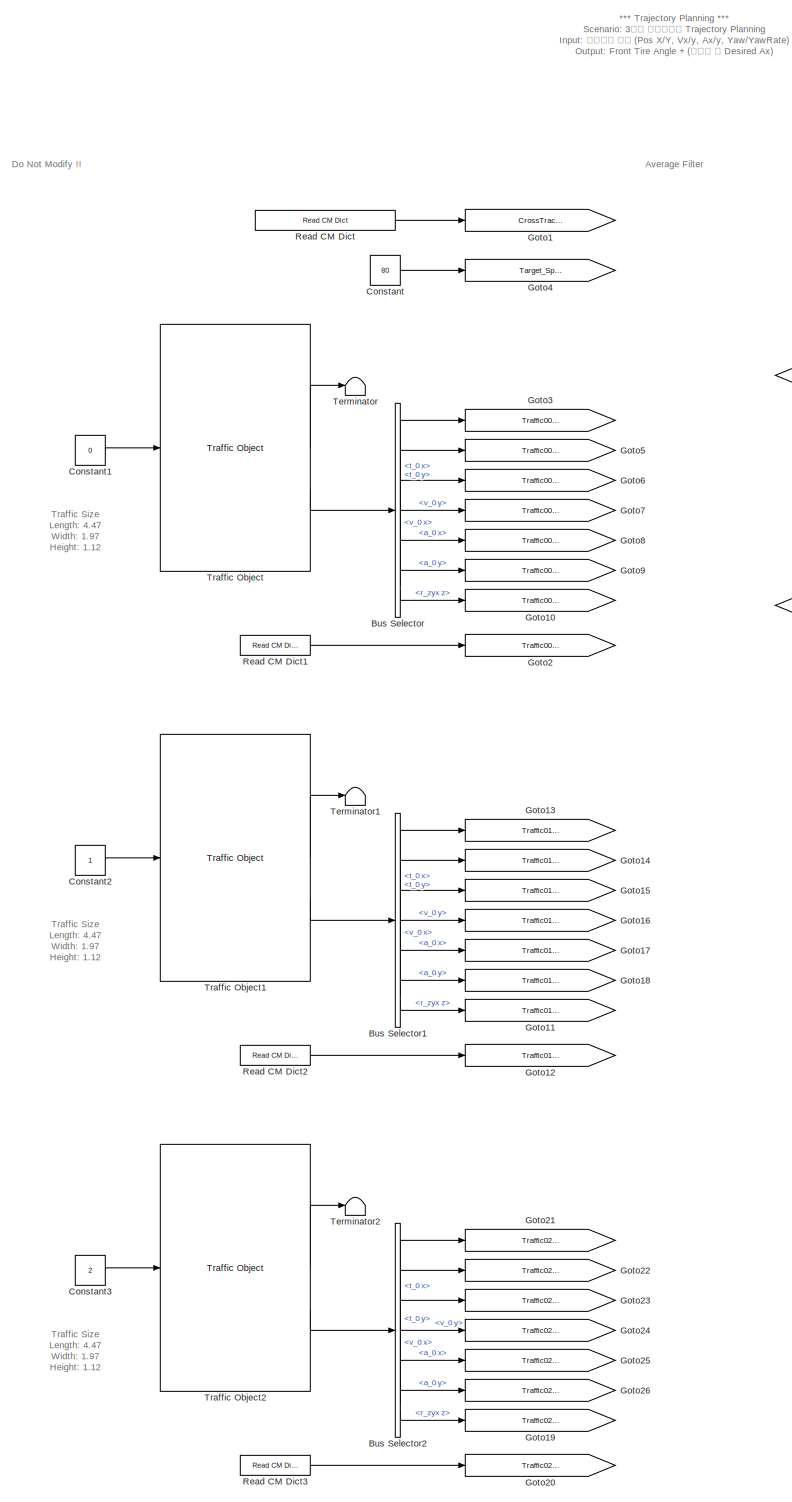
[diagram: CarMaker/Subsystem/Day6/Scenario 1 - part 1/2, left side, full height]
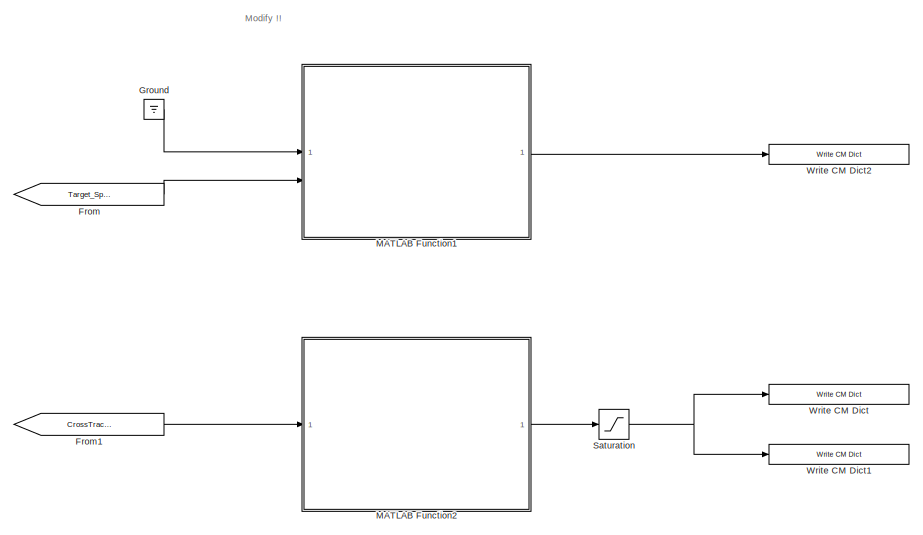
[diagram: CarMaker/Subsystem/Day6/Scenario 1 - part 2/2, top right region]
BLOCK [SubSystem] CarMaker/Subsystem/Day6/Scenario 1
  Commented = on
BLOCK [BusSelector] CarMaker/Subsystem/Day6/Scenario 1/Bus Selector
  OutputSignals = t_0 x,t_0 y,v_0 x,v_0 y,a_0 x,a_0 y,r_zyx z
BLOCK [BusSelector] CarMaker/Subsystem/Day6/Scenario 1/Bus Selector1
  OutputSignals = t_0 x,t_0 y,v_0 x,v_0 y,a_0 x,a_0 y,r_zyx z
BLOCK [BusSelector] CarMaker/Subsystem/Day6/Scenario 1/Bus Selector2
  OutputSignals = t_0 x,t_0 y,v_0 x,v_0 y,a_0 x,a_0 y,r_zyx z
BLOCK [Constant] CarMaker/Subsystem/Day6/Scenario 1/Constant
  Value = 80
BLOCK [Constant] CarMaker/Subsystem/Day6/Scenario 1/Constant1
  Value = 0
BLOCK [Constant] CarMaker/Subsystem/Day6/Scenario 1/Constant2
BLOCK [Constant] CarMaker/Subsystem/Day6/Scenario 1/Constant3
  Value = 2
BLOCK [From] CarMaker/Subsystem/Day6/Scenario 1/From
  GotoTag = Target_Speed
BLOCK [From] CarMaker/Subsystem/Day6/Scenario 1/From1
  GotoTag = CrossTrackError
BLOCK [Goto] CarMaker/Subsystem/Day6/Scenario 1/Goto1
  GotoTag = CrossTrackError
BLOCK [Goto] CarMaker/Subsystem/Day6/Scenario 1/Goto10
  GotoTag = Traffic00_Yaw
BLOCK [Goto] CarMaker/Subsystem/Day6/Scenario 1/Goto11
  GotoTag = Traffic01_Yaw
BLOCK [Goto] CarMaker/Subsystem/Day6/Scenario 1/Goto12
  GotoTag = Traffic01_YawRate
BLOCK [Goto] CarMaker/Subsystem/Day6/Scenario 1/Goto13
  GotoTag = Traffic01_Global_X
BLOCK [Goto] CarMaker/Subsystem/Day6/Scenario 1/Goto14
  GotoTag = Traffic01_Global_Y
BLOCK [Goto] CarMaker/Subsystem/Day6/Scenario 1/Goto15
  GotoTag = Traffic01_Vx
BLOCK [Goto] CarMaker/Subsystem/Day6/Scenario 1/Goto16
  GotoTag = Traffic01_Vy
BLOCK [Goto] CarMaker/Subsystem/Day6/Scenario 1/Goto17
  GotoTag = Traffic01_Ax
BLOCK [Goto] CarMaker/Subsystem/Day6/Scenario 1/Goto18
  GotoTag = Traffic01_Ay
BLOCK [Goto] CarMaker/Subsystem/Day6/Scenario 1/Goto19
  GotoTag = Traffic02_Yaw
BLOCK [Goto] CarMaker/Subsystem/Day6/Scenario 1/Goto2
  GotoTag = Traffic00_YawRate
BLOCK [Goto] CarMaker/Subsystem/Day6/Scenario 1/Goto20
  GotoTag = Traffic02_YawRate
BLOCK [Goto] CarMaker/Subsystem/Day6/Scenario 1/Goto21
  GotoTag = Traffic02_Global_X
BLOCK [Goto] CarMaker/Subsystem/Day6/Scenario 1/Goto22
  GotoTag = Traffic02_Global_Y
BLOCK [Goto] CarMaker/Subsystem/Day6/Scenario 1/Goto23
  GotoTag = Traffic02_Vx
BLOCK [Goto] CarMaker/Subsystem/Day6/Scenario 1/Goto24
  GotoTag = Traffic02_Vy
BLOCK [Goto] CarMaker/Subsystem/Day6/Scenario 1/Goto25
  GotoTag = Traffic02_Ax
BLOCK [Goto] CarMaker/Subsystem/Day6/Scenario 1/Goto26
  GotoTag = Traffic02_Ay
BLOCK [Goto] CarMaker/Subsystem/Day6/Scenario 1/Goto3
  GotoTag = Traffic00_Global_X
BLOCK [Goto] CarMaker/Subsystem/Day6/Scenario 1/Goto4
  GotoTag = Target_Speed
BLOCK [Goto] CarMaker/Subsystem/Day6/Scenario 1/Goto5
  GotoTag = Traffic00_Global_Y
BLOCK [Goto] CarMaker/Subsystem/Day6/Scenario 1/Goto6
  GotoTag = Traffic00_Vx
BLOCK [Goto] CarMaker/Subsystem/Day6/Scenario 1/Goto7
  GotoTag = Traffic00_Vy
BLOCK [Goto] CarMaker/Subsystem/Day6/Scenario 1/Goto8
  GotoTag = Traffic00_Ax
BLOCK [Goto] CarMaker/Subsystem/Day6/Scenario 1/Goto9
  GotoTag = Traffic00_Ay
BLOCK [Ground] CarMaker/Subsystem/Day6/Scenario 1/Ground
BLOCK [SubSystem] CarMaker/Subsystem/Day6/Scenario 1/MATLAB Function1
  ErrorFcn = Stateflow.Translate.translate
  PermitHierarchicalResolution = ExplicitOnly
  SFBlockType = MATLAB Function
  TreatAsAtomicUnit = on
BLOCK [Demux] CarMaker/Subsystem/Day6/Scenario 1/MATLAB Function1/ Demux 
  Outputs = 1
BLOCK [S-Function] CarMaker/Subsystem/Day6/Scenario 1/MATLAB Function1/ SFunction 
  EnableBusSupport = on
  FunctionName = sf_sfun
  PortCounts = [2 2]
  SFcnIsStateOwnerBlock = off
  SFunctionDeploymentMode = off
  Tag = Stateflow S-Function 18
BLOCK [Terminator] CarMaker/Subsystem/Day6/Scenario 1/MATLAB Function1/ Terminator 
BLOCK [Inport] CarMaker/Subsystem/Day6/Scenario 1/MATLAB Function1/u1
BLOCK [Inport] CarMaker/Subsystem/Day6/Scenario 1/MATLAB Function1/u2
  Port = 2
BLOCK [Outport] CarMaker/Subsystem/Day6/Scenario 1/MATLAB Function1/y
BLOCK [SubSystem] CarMaker/Subsystem/Day6/Scenario 1/MATLAB Function2
  ErrorFcn = Stateflow.Translate.translate
  PermitHierarchicalResolution = ExplicitOnly
  SFBlockType = MATLAB Function
  TreatAsAtomicUnit = on
BLOCK [Demux] CarMaker/Subsystem/Day6/Scenario 1/MATLAB Function2/ Demux 
  Outputs = 1
BLOCK [S-Function] CarMaker/Subsystem/Day6/Scenario 1/MATLAB Function2/ SFunction 
  EnableBusSupport = on
  FunctionName = sf_sfun
  PortCounts = [1 2]
  SFcnIsStateOwnerBlock = off
  SFunctionDeploymentMode = off
  Tag = Stateflow S-Function 19
BLOCK [Terminator] CarMaker/Subsystem/Day6/Scenario 1/MATLAB Function2/ Terminator 
BLOCK [Inport] CarMaker/Subsystem/Day6/Scenario 1/MATLAB Function2/u
BLOCK [Outport] CarMaker/Subsystem/Day6/Scenario 1/MATLAB Function2/y
BLOCK [Reference] CarMaker/Subsystem/Day6/Scenario 1/Read CM Dict  REF=CarMaker4SL/Read CM Dict
  SourceBlock = CarMaker4SL/Read CM Dict
  SourceProductName = CarMaker4SL
  SourceType = Read CarMaker Dictionary Variable(s)
BLOCK [Reference] CarMaker/Subsystem/Day6/Scenario 1/Read CM Dict1  REF=CarMaker4SL/Read CM Dict
  SourceBlock = CarMaker4SL/Read CM Dict
  SourceProductName = CarMaker4SL
  SourceType = Read CarMaker Dictionary Variable(s)
BLOCK [Reference] CarMaker/Subsystem/Day6/Scenario 1/Read CM Dict2  REF=CarMaker4SL/Read CM Dict
  SourceBlock = CarMaker4SL/Read CM Dict
  SourceProductName = CarMaker4SL
  SourceType = Read CarMaker Dictionary Variable(s)
BLOCK [Reference] CarMaker/Subsystem/Day6/Scenario 1/Read CM Dict3  REF=CarMaker4SL/Read CM Dict
  SourceBlock = CarMaker4SL/Read CM Dict
  SourceProductName = CarMaker4SL
  SourceType = Read CarMaker Dictionary Variable(s)
BLOCK [Saturate] CarMaker/Subsystem/Day6/Scenario 1/Saturation
  LowerLimit = -2
  UpperLimit = 2
BLOCK [Terminator] CarMaker/Subsystem/Day6/Scenario 1/Terminator
BLOCK [Terminator] CarMaker/Subsystem/Day6/Scenario 1/Terminator1
BLOCK [Terminator] CarMaker/Subsystem/Day6/Scenario 1/Terminator2
BLOCK [Reference] CarMaker/Subsystem/Day6/Scenario 1/Traffic Object  REF=CarMaker4SL/Traffic Object
  SourceBlock = CarMaker4SL/Traffic Object
  SourceProductName = CarMaker4SL
  SourceType = CarMaker Traffic Object
BLOCK [Reference] CarMaker/Subsystem/Day6/Scenario 1/Traffic Object1  REF=CarMaker4SL/Traffic Object
  SourceBlock = CarMaker4SL/Traffic Object
  SourceProductName = CarMaker4SL
  SourceType = CarMaker Traffic Object
BLOCK [Reference] CarMaker/Subsystem/Day6/Scenario 1/Traffic Object2  REF=CarMaker4SL/Traffic Object
  SourceBlock = CarMaker4SL/Traffic Object
  SourceProductName = CarMaker4SL
  SourceType = CarMaker Traffic Object
BLOCK [Reference] CarMaker/Subsystem/Day6/Scenario 1/Write CM Dict  REF=CarMaker4SL/Write CM Dict
  SourceBlock = CarMaker4SL/Write CM Dict
  SourceProductName = CarMaker4SL
  SourceType = Write CarMaker Dictionary Variable(s)
BLOCK [Reference] CarMaker/Subsystem/Day6/Scenario 1/Write CM Dict1  REF=CarMaker4SL/Write CM Dict
  SourceBlock = CarMaker4SL/Write CM Dict
  SourceProductName = CarMaker4SL
  SourceType = Write CarMaker Dictionary Variable(s)
BLOCK [Reference] CarMaker/Subsystem/Day6/Scenario 1/Write CM Dict2  REF=CarMaker4SL/Write CM Dict
  SourceBlock = CarMaker4SL/Write CM Dict
  SourceProductName = CarMaker4SL
  SourceType = Write CarMaker Dictionary Variable(s)
BLOCK [SubSystem] CarMaker/Subsystem/Final Project
BLOCK [SubSystem] CarMaker/Subsystem/Final Project/Scenario 1
  Commented = on
BLOCK [BusSelector] CarMaker/Subsystem/Final Project/Scenario 1/Bus Selector
  OutputSignals = t_0 x,t_0 y,v_0 x,v_0 y,a_0 x,a_0 y,r_zyx z
BLOCK [BusSelector] CarMaker/Subsystem/Final Project/Scenario 1/Bus Selector1
  OutputSignals = t_0 x,t_0 y,v_0 x,v_0 y,a_0 x,a_0 y,r_zyx z
BLOCK [BusSelector] CarMaker/Subsystem/Final Project/Scenario 1/Bus Selector2
  OutputSignals = t_0 x,t_0 y,v_0 x,v_0 y,a_0 x,a_0 y,r_zyx z
BLOCK [Constant] CarMaker/Subsystem/Final Project/Scenario 1/Constant
  Value = 80
BLOCK [Constant] CarMaker/Subsystem/Final Project/Scenario 1/Constant1
  Value = 0
BLOCK [Constant] CarMaker/Subsystem/Final Project/Scenario 1/Constant2
BLOCK [Constant] CarMaker/Subsystem/Final Project/Scenario 1/Constant3
  Value = 2
BLOCK [From] CarMaker/Subsystem/Final Project/Scenario 1/From
  GotoTag = Target_Speed
BLOCK [From] CarMaker/Subsystem/Final Project/Scenario 1/From1
  GotoTag = CrossTrackError
BLOCK [Goto] CarMaker/Subsystem/Final Project/Scenario 1/Goto1
  GotoTag = CrossTrackError
BLOCK [Goto] CarMaker/Subsystem/Final Project/Scenario 1/Goto10
  GotoTag = Traffic00_Yaw
BLOCK [Goto] CarMaker/Subsystem/Final Project/Scenario 1/Goto11
  GotoTag = Traffic01_Yaw
BLOCK [Goto] CarMaker/Subsystem/Final Project/Scenario 1/Goto12
  GotoTag = Traffic01_YawRate
BLOCK [Goto] CarMaker/Subsystem/Final Project/Scenario 1/Goto13
  GotoTag = Traffic01_Global_X
BLOCK [Goto] CarMaker/Subsystem/Final Project/Scenario 1/Goto14
  GotoTag = Traffic01_Global_Y
BLOCK [Goto] CarMaker/Subsystem/Final Project/Scenario 1/Goto15
  GotoTag = Traffic01_Vx
BLOCK [Goto] CarMaker/Subsystem/Final Project/Scenario 1/Goto16
  GotoTag = Traffic01_Vy
BLOCK [Goto] CarMaker/Subsystem/Final Project/Scenario 1/Goto17
  GotoTag = Traffic01_Ax
BLOCK [Goto] CarMaker/Subsystem/Final Project/Scenario 1/Goto18
  GotoTag = Traffic01_Ay
BLOCK [Goto] CarMaker/Subsystem/Final Project/Scenario 1/Goto19
  GotoTag = Traffic02_Yaw
BLOCK [Goto] CarMaker/Subsystem/Final Project/Scenario 1/Goto2
  GotoTag = Traffic00_YawRate
BLOCK [Goto] CarMaker/Subsystem/Final Project/Scenario 1/Goto20
  GotoTag = Traffic02_YawRate
BLOCK [Goto] CarMaker/Subsystem/Final Project/Scenario 1/Goto21
  GotoTag = Traffic02_Global_X
BLOCK [Goto] CarMaker/Subsystem/Final Project/Scenario 1/Goto22
  GotoTag = Traffic02_Global_Y
BLOCK [Goto] CarMaker/Subsystem/Final Project/Scenario 1/Goto23
  GotoTag = Traffic02_Vx
BLOCK [Goto] CarMaker/Subsystem/Final Project/Scenario 1/Goto24
  GotoTag = Traffic02_Vy
BLOCK [Goto] CarMaker/Subsystem/Final Project/Scenario 1/Goto25
  GotoTag = Traffic02_Ax
BLOCK [Goto] CarMaker/Subsystem/Final Project/Scenario 1/Goto26
  GotoTag = Traffic02_Ay
BLOCK [Goto] CarMaker/Subsystem/Final Project/Scenario 1/Goto3
  GotoTag = Traffic00_Global_X
BLOCK [Goto] CarMaker/Subsystem/Final Project/Scenario 1/Goto4
  GotoTag = Target_Speed
BLOCK [Goto] CarMaker/Subsystem/Final Project/Scenario 1/Goto5
  GotoTag = Traffic00_Global_Y
BLOCK [Goto] CarMaker/Subsystem/Final Project/Scenario 1/Goto6
  GotoTag = Traffic00_Vx
BLOCK [Goto] CarMaker/Subsystem/Final Project/Scenario 1/Goto7
  GotoTag = Traffic00_Vy
BLOCK [Goto] CarMaker/Subsystem/Final Project/Scenario 1/Goto8
  GotoTag = Traffic00_Ax
BLOCK [Goto] CarMaker/Subsystem/Final Project/Scenario 1/Goto9
  GotoTag = Traffic00_Ay
BLOCK [Ground] CarMaker/Subsystem/Final Project/Scenario 1/Ground
BLOCK [SubSystem] CarMaker/Subsystem/Final Project/Scenario 1/MATLAB Function1
  ErrorFcn = Stateflow.Translate.translate
  PermitHierarchicalResolution = ExplicitOnly
  SFBlockType = MATLAB Function
  TreatAsAtomicUnit = on
BLOCK [Demux] CarMaker/Subsystem/Final Project/Scenario 1/MATLAB Function1/ Demux 
  Outputs = 1
BLOCK [S-Function] CarMaker/Subsystem/Final Project/Scenario 1/MATLAB Function1/ SFunction 
  EnableBusSupport = on
  FunctionName = sf_sfun
  PortCounts = [2 2]
  SFcnIsStateOwnerBlock = off
  SFunctionDeploymentMode = off
  Tag = Stateflow S-Function 11
BLOCK [Terminator] CarMaker/Subsystem/Final Project/Scenario 1/MATLAB Function1/ Terminator 
BLOCK [Inport] CarMaker/Subsystem/Final Project/Scenario 1/MATLAB Function1/u1
BLOCK [Inport] CarMaker/Subsystem/Final Project/Scenario 1/MATLAB Function1/u2
  Port = 2
BLOCK [Outport] CarMaker/Subsystem/Final Project/Scenario 1/MATLAB Function1/y
BLOCK [SubSystem] CarMaker/Subsystem/Final Project/Scenario 1/MATLAB Function2
  ErrorFcn = Stateflow.Translate.translate
  PermitHierarchicalResolution = ExplicitOnly
  SFBlockType = MATLAB Function
  TreatAsAtomicUnit = on
BLOCK [Demux] CarMaker/Subsystem/Final Project/Scenario 1/MATLAB Function2/ Demux 
  Outputs = 1
BLOCK [S-Function] CarMaker/Subsystem/Final Project/Scenario 1/MATLAB Function2/ SFunction 
  EnableBusSupport = on
  FunctionName = sf_sfun
  PortCounts = [1 2]
  SFcnIsStateOwnerBlock = off
  SFunctionDeploymentMode = off
  Tag = Stateflow S-Function 15
BLOCK [Terminator] CarMaker/Subsystem/Final Project/Scenario 1/MATLAB Function2/ Terminator 
BLOCK [Inport] CarMaker/Subsystem/Final Project/Scenario 1/MATLAB Function2/u
BLOCK [Outport] CarMaker/Subsystem/Final Project/Scenario 1/MATLAB Function2/y
BLOCK [Reference] CarMaker/Subsystem/Final Project/Scenario 1/Read CM Dict  REF=CarMaker4SL/Read CM Dict
  SourceBlock = CarMaker4SL/Read CM Dict
  SourceProductName = CarMaker4SL
  SourceType = Read CarMaker Dictionary Variable(s)
BLOCK [Reference] CarMaker/Subsystem/Final Project/Scenario 1/Read CM Dict1  REF=CarMaker4SL/Read CM Dict
  SourceBlock = CarMaker4SL/Read CM Dict
  SourceProductName = CarMaker4SL
  SourceType = Read CarMaker Dictionary Variable(s)
BLOCK [Reference] CarMaker/Subsystem/Final Project/Scenario 1/Read CM Dict2  REF=CarMaker4SL/Read CM Dict
  SourceBlock = CarMaker4SL/Read CM Dict
  SourceProductName = CarMaker4SL
  SourceType = Read CarMaker Dictionary Variable(s)
BLOCK [Reference] CarMaker/Subsystem/Final Project/Scenario 1/Read CM Dict3  REF=CarMaker4SL/Read CM Dict
  SourceBlock = CarMaker4SL/Read CM Dict
  SourceProductName = CarMaker4SL
  SourceType = Read CarMaker Dictionary Variable(s)
BLOCK [Saturate] CarMaker/Subsystem/Final Project/Scenario 1/Saturation
  LowerLimit = -2
  UpperLimit = 2
BLOCK [Terminator] CarMaker/Subsystem/Final Project/Scenario 1/Terminator
BLOCK [Terminator] CarMaker/Subsystem/Final Project/Scenario 1/Terminator1
BLOCK [Terminator] CarMaker/Subsystem/Final Project/Scenario 1/Terminator2
BLOCK [Reference] CarMaker/Subsystem/Final Project/Scenario 1/Traffic Object  REF=CarMaker4SL/Traffic Object
  SourceBlock = CarMaker4SL/Traffic Object
  SourceProductName = CarMaker4SL
  SourceType = CarMaker Traffic Object
BLOCK [Reference] CarMaker/Subsystem/Final Project/Scenario 1/Traffic Object1  REF=CarMaker4SL/Traffic Object
  SourceBlock = CarMaker4SL/Traffic Object
  SourceProductName = CarMaker4SL
  SourceType = CarMaker Traffic Object
BLOCK [Reference] CarMaker/Subsystem/Final Project/Scenario 1/Traffic Object2  REF=CarMaker4SL/Traffic Object
  SourceBlock = CarMaker4SL/Traffic Object
  SourceProductName = CarMaker4SL
  SourceType = CarMaker Traffic Object
BLOCK [Reference] CarMaker/Subsystem/Final Project/Scenario 1/Write CM Dict  REF=CarMaker4SL/Write CM Dict
  SourceBlock = CarMaker4SL/Write CM Dict
  SourceProductName = CarMaker4SL
  SourceType = Write CarMaker Dictionary Variable(s)
BLOCK [Reference] CarMaker/Subsystem/Final Project/Scenario 1/Write CM Dict1  REF=CarMaker4SL/Write CM Dict
  SourceBlock = CarMaker4SL/Write CM Dict
  SourceProductName = CarMaker4SL
  SourceType = Write CarMaker Dictionary Variable(s)
BLOCK [Reference] CarMaker/Subsystem/Final Project/Scenario 1/Write CM Dict2  REF=CarMaker4SL/Write CM Dict
  SourceBlock = CarMaker4SL/Write CM Dict
  SourceProductName = CarMaker4SL
  SourceType = Write CarMaker Dictionary Variable(s)
BLOCK [Terminator] CarMaker/Terminator
BLOCK [SubSystem] CarMaker/VehicleControl
BLOCK [BusCreator] CarMaker/VehicleControl/Bus Creator2
  DisplayOption = bar
  InheritFromInputs = on
  Inputs = 2
BLOCK [SubSystem] CarMaker/VehicleControl/CreateBus Vhcl.Misc
BLOCK [BusCreator] CarMaker/VehicleControl/CreateBus Vhcl.Misc/BusCreator
  InheritFromInputs = on
  Inputs = 11
BLOCK [Demux] CarMaker/VehicleControl/CreateBus Vhcl.Misc/Demux
  DisplayOption = none
  Outputs = 11
BLOCK [Inport] CarMaker/VehicleControl/CreateBus Vhcl.Misc/In1
BLOCK [Outport] CarMaker/VehicleControl/CreateBus Vhcl.Misc/Out1
  VectorParamsAs1DForOutWhenUnconnected = off
BLOCK [SubSystem] CarMaker/VehicleControl/CreateBus Vhcl.Wheel.In
BLOCK [BusCreator] CarMaker/VehicleControl/CreateBus Vhcl.Wheel.In/Bus Creator1
  DisplayOption = bar
  InheritFromInputs = on
  Inputs = 12
BLOCK [Demux] CarMaker/VehicleControl/CreateBus Vhcl.Wheel.In/Demux1
  DisplayOption = none
  Outputs = 12
BLOCK [Inport] CarMaker/VehicleControl/CreateBus Vhcl.Wheel.In/In1
BLOCK [Outport] CarMaker/VehicleControl/CreateBus Vhcl.Wheel.In/Out1
  VectorParamsAs1DForOutWhenUnconnected = off
BLOCK [SubSystem] CarMaker/VehicleControl/CreateBus VhclCtrl
BLOCK [SubSystem] CarMaker/VehicleControl/CreateBus VhclCtrl.PT
BLOCK [BusCreator] CarMaker/VehicleControl/CreateBus VhclCtrl.PT/BusCreator1
  InheritFromInputs = on
  Inputs = 12
BLOCK [Demux] CarMaker/VehicleControl/CreateBus VhclCtrl.PT/Demux1
  DisplayOption = none
  Outputs = 12
BLOCK [Inport] CarMaker/VehicleControl/CreateBus VhclCtrl.PT/In1
BLOCK [Outport] CarMaker/VehicleControl/CreateBus VhclCtrl.PT/Out1
  VectorParamsAs1DForOutWhenUnconnected = off
BLOCK [SubSystem] CarMaker/VehicleControl/CreateBus VhclCtrl.Steering
BLOCK [BusCreator] CarMaker/VehicleControl/CreateBus VhclCtrl.Steering/Bus Creator
  DisplayOption = bar
  InheritFromInputs = on
  Inputs = 5
BLOCK [Demux] CarMaker/VehicleControl/CreateBus VhclCtrl.Steering/Demux
  DisplayOption = none
  Outputs = 5
BLOCK [Inport] CarMaker/VehicleControl/CreateBus VhclCtrl.Steering/In1
BLOCK [Outport] CarMaker/VehicleControl/CreateBus VhclCtrl.Steering/Out1
  VectorParamsAs1DForOutWhenUnconnected = off
BLOCK [BusCreator] CarMaker/VehicleControl/CreateBus VhclCtrl/BusCreator
  InheritFromInputs = on
  Inputs = 29
BLOCK [Demux] CarMaker/VehicleControl/CreateBus VhclCtrl/Demux
  DisplayOption = none
  Outputs = 29
BLOCK [Inport] CarMaker/VehicleControl/CreateBus VhclCtrl/In
BLOCK [Outport] CarMaker/VehicleControl/CreateBus VhclCtrl/Out
  VectorParamsAs1DForOutWhenUnconnected = off
BLOCK [Demux] CarMaker/VehicleControl/Demux2
  DisplayOption = none
  Outputs = 2
BLOCK [Inport] CarMaker/VehicleControl/DrivMan.In
  Port = 2
BLOCK [Inport] CarMaker/VehicleControl/Sync_In
BLOCK [Outport] CarMaker/VehicleControl/Sync_Out
  VectorParamsAs1DForOutWhenUnconnected = off
BLOCK [S-Function] CarMaker/VehicleControl/VehicleControl
  EnableBusSupport = off
  FunctionName = CM_Sfun
  Parameters = 'VehicleControl'
  SFcnIsStateOwnerBlock = off
  SFunctionDeploymentMode = off
BLOCK [S-Function] CarMaker/VehicleControl/VehicleControlUpd
  EnableBusSupport = off
  FunctionName = CM_Sfun
  Parameters = 'VehicleControlUpd'
  SFcnIsStateOwnerBlock = off
  SFunctionDeploymentMode = off
BLOCK [Outport] CarMaker/VehicleControl/Vhcl.Misc
  Port = 5
  VectorParamsAs1DForOutWhenUnconnected = off
BLOCK [Outport] CarMaker/VehicleControl/Vhcl.Model.Source
  Port = 2
  VectorParamsAs1DForOutWhenUnconnected = off
BLOCK [Outport] CarMaker/VehicleControl/Vhcl.Wheel.In
  Port = 4
  VectorParamsAs1DForOutWhenUnconnected = off
BLOCK [Outport] CarMaker/VehicleControl/VhclCtrl.Brake
  Port = 6
  VectorParamsAs1DForOutWhenUnconnected = off
BLOCK [Outport] CarMaker/VehicleControl/VhclCtrl.PT
  Port = 7
  VectorParamsAs1DForOutWhenUnconnected = off
BLOCK [Outport] CarMaker/VehicleControl/VhclCtrl.Steering
  Port = 3
  VectorParamsAs1DForOutWhenUnconnected = off
BLOCK [Reference] Edit Model Configuration  REF=CarMaker4SL/Edit Model
Configuration
  SourceBlock = CarMaker4SL/Edit Model\nConfiguration
  SourceProductName = CarMaker4SL
BLOCK [SubSystem] Open CarMaker GUI
  LoadFcn = if ~length(which('cmself')), cmenv; end
  OpenFcn = cmblockmagic('gui_fix_display'); CM_Simulink
BLOCK [S-Function] Open CarMaker GUI/S-Function
  EnableBusSupport = off
  FunctionName = cm_gui
  SFcnIsStateOwnerBlock = off
  SFunctionDeploymentMode = off
BLOCK [Scope] Scope1
  Floating = off
  IOType = viewer
  NumInputPorts = 1
  ScopeSpecificationString = Simulink.scopes.TimeScopeBlockCfg('CurrentConfiguration', extmgr.ConfigurationSet(extmgr.Configuration('Core','General UI',true),extmgr.Configuration('Core','Source UI',true),extmgr.Configuration('Sources','WiredSimulink',true,'DataLoggingVariableName','ScopeData1'),extmgr.Configuration('Visuals','Time Domain',true,'SerializedDisplays',{struct('MinYLimReal','-38793.05164','MaxYLimReal','5439.43414...<+1442ch>
BLOCK [Scope] Scope2
  Floating = off
  IOType = viewer
  NumInputPorts = 1
  ScopeSpecificationString = Simulink.scopes.TimeScopeBlockCfg('CurrentConfiguration', extmgr.ConfigurationSet(extmgr.Configuration('Core','General UI',true),extmgr.Configuration('Core','Source UI',true),extmgr.Configuration('Sources','WiredSimulink',true),extmgr.Configuration('Visuals','Time Domain',true,'SerializedDisplays',{struct('MinYLimReal','56.38822','MaxYLimReal','63.32364','YLabelReal','','MinYLimMag','56.38822','Ma...<+1383ch>
BLOCK [Scope] Scope3
  Floating = off
  IOType = viewer
  NumInputPorts = 1
  ScopeSpecificationString = Simulink.scopes.TimeScopeBlockCfg('CurrentConfiguration', extmgr.ConfigurationSet(extmgr.Configuration('Core','General UI',true),extmgr.Configuration('Core','Source UI',true),extmgr.Configuration('Sources','WiredSimulink',true,'DataLoggingVariableName','ScopeData2'),extmgr.Configuration('Visuals','Time Domain',true,'SerializedDisplays',{struct('MinYLimReal','56.38822','MaxYLimReal','63.32364','YLa...<+1423ch>
ANNOTATION (root): CarMaker 14.*
ANNOTATION (root): Generic Car Model
ANNOTATION (root): It already contains everything to run a simple CarMaker simulation. Build your Simulink model around it.
ANNOTATION (root): You may use this model as a starting point.
ANNOTATION CarMaker: Do Not Modify !!
ANNOTATION CarMaker: Modify !!
ANNOTATION CarMaker/DrivMan: There's rarely a reason to override DrivMan signals. Use the VehicleControl interface for this purpose.
ANNOTATION CarMaker/IPG Vehicle/Brake: When replacing the entire braking system, be sure to disable the IPG brake model by using the brake model 'Model Manager off' in the vehicle GUI.
ANNOTATION CarMaker/IPG Vehicle/CarAndTrailer/Forces/External Suspension Forces LEGACY: Insert your suspension forces model here.
ANNOTATION CarMaker/IPG Vehicle/CarAndTrailer/Forces/External Suspension Forces LEGACY: The FSpring_ext/FDamp_ext/FStabi_ext/FBuf_ext outputs of this subsystem will be active if the SuspExtFrcs.Kind entry in the vehicle parameter file is either not present or is empty or has the value "CM4SL".
ANNOTATION CarMaker/IPG Vehicle/CarAndTrailer/Forces/Tires: The TireXX_Out signals will only be used if FileIdent is "CarMaker-Tire-CM4SL" in the tire parameter file! An example parameter file can be found in Data/Tire/DT_CM4SL_UserTire.
ANNOTATION CarMaker/IPG Vehicle/CarAndTrailer/Forces/Tires/TireFL: Insert your tire model here.
ANNOTATION CarMaker/IPG Vehicle/CarAndTrailer/Forces/Tires/TireFR: Insert your tire model here.
ANNOTATION CarMaker/IPG Vehicle/CarAndTrailer/Forces/Tires/TireRL: Insert your tire model here.
ANNOTATION CarMaker/IPG Vehicle/CarAndTrailer/Forces/Tires/TireRR: Insert your tire model here.
ANNOTATION CarMaker/IPG Vehicle/CarAndTrailer/Steering: When replacing the entire steering system, be sure to disable the IPG steering model by using the steering model 'Model Manager off' in the vehicle GUI.
ANNOTATION CarMaker/IPG Vehicle/PowerTrain: When replacing the entire powertrain, be sure to disable the IPG powertrain model by using the powertrain model 'Model Manager off' in the vehicle GUI.
ANNOTATION CarMaker/Subsystem/Day1/Scenario 1: *** 종방향 Velocity 추정 *** Scenario: 직선로 / 60kph 등속 Input: Ego Velocity + Noise Output: Filtered Velocity
ANNOTATION CarMaker/Subsystem/Day1/Scenario 1: Unit: MPS
ANNOTATION CarMaker/Subsystem/Day1/Scenario 1: Average Filter
ANNOTATION CarMaker/Subsystem/Day1/Scenario 1: Do Not Modify !!
ANNOTATION CarMaker/Subsystem/Day1/Scenario 1: Kalman Filter
ANNOTATION CarMaker/Subsystem/Day1/Scenario 1: Low Pass Filter
ANNOTATION CarMaker/Subsystem/Day1/Scenario 1: Modify !!
ANNOTATION CarMaker/Subsystem/Day1/Scenario 1: _S1
ANNOTATION CarMaker/Subsystem/Day1/Scenario 2: *** 종방향 ACC *** Scenario: 직선로 / 60kph 등속 / -1m/ss ~ +1m/ss 가속도 Input: Ego Velocity + Noise + Sinewave Ax Output: Filtered Velocity
ANNOTATION CarMaker/Subsystem/Day1/Scenario 2: Unit: MPS
ANNOTATION CarMaker/Subsystem/Day1/Scenario 2: Average Filter
ANNOTATION CarMaker/Subsystem/Day1/Scenario 2: Do Not Modify !!
ANNOTATION CarMaker/Subsystem/Day1/Scenario 2: Kalman Filter
ANNOTATION CarMaker/Subsystem/Day1/Scenario 2: Low Pass Filter
ANNOTATION CarMaker/Subsystem/Day1/Scenario 2: Modify !!
ANNOTATION CarMaker/Subsystem/Day1/Scenario 3 & 4: *** 횡방향 차선 유지 제어 *** Scenario: 직선로 / 30kph 등속 / Cross Track Error 존재 / 횡풍 or 기울기 존재 (Scenario 4) Input: Cross Track Error Output: Front Tire Angle
ANNOTATION CarMaker/Subsystem/Day1/Scenario 3 & 4: Do Not Modify !!
ANNOTATION CarMaker/Subsystem/Day1/Scenario 3 & 4: Lateral Controller
ANNOTATION CarMaker/Subsystem/Day1/Scenario 3 & 4: Modify !!
ANNOTATION CarMaker/Subsystem/Day2/Scenario 1: *** 종방향 ACC *** Scenario: 직선로 / 선행차량 X / 초기속도 O Input: Ego Velocity + Target Velocity Output: Desired Ax
ANNOTATION CarMaker/Subsystem/Day2/Scenario 1: Unit: KPH
ANNOTATION CarMaker/Subsystem/Day2/Scenario 1: Unit: MPS
ANNOTATION CarMaker/Subsystem/Day2/Scenario 1: Do Not Modify !!
ANNOTATION CarMaker/Subsystem/Day2/Scenario 1: Modify !!
ANNOTATION CarMaker/Subsystem/Day2/Scenario 1: Speed Controller
ANNOTATION CarMaker/Subsystem/Day2/Scenario 2 & 3: *** 종방향 ACC *** Scenario: 직선로 / 선행차량 O / 선행차량 등속 (Scenario 2) / 선행차량 Sine 감가속 (Scenario 3) Input: Ego Global X/Y + Traffic Global X/Y + Target Distance Output: Desired Ax
ANNOTATION CarMaker/Subsystem/Day2/Scenario 2 & 3: Traffic Size Length: 4.47 Width: 1.97 Height: 1.12
ANNOTATION CarMaker/Subsystem/Day2/Scenario 2 & 3: Unit: MPS
ANNOTATION CarMaker/Subsystem/Day2/Scenario 2 & 3: *** Sampling time에 따라 결과가 달라짐을 주의 ***
ANNOTATION CarMaker/Subsystem/Day2/Scenario 2 & 3: Do Not Modify !!
ANNOTATION CarMaker/Subsystem/Day2/Scenario 2 & 3: Modify !!
ANNOTATION CarMaker/Subsystem/Day2/Scenario 2 & 3: Space Controller
ANNOTATION CarMaker/Subsystem/Day2/Scenario 4 & 5: *** 횡방향 LFA *** Scenario: 직선로 / 50kph 등속 / Cross Track Error (1m) 존재 (Scenario 4) / Sine파 형태의 곡선로 (Scenario 5) Input: Lane Center Waypoint [id,X,Y] Output: Front Tire Angle
ANNOTATION CarMaker/Subsystem/Day2/Scenario 4 & 5: *** 마지막 Waypoint가 끝나는 지점에서 튀는 것 주의 ***
ANNOTATION CarMaker/Subsystem/Day2/Scenario 4 & 5: Do Not Modify !!
ANNOTATION CarMaker/Subsystem/Day2/Scenario 4 & 5: Lateral Controller
ANNOTATION CarMaker/Subsystem/Day2/Scenario 4 & 5: Modify !!
ANNOTATION CarMaker/Subsystem/Day3: Do Not Modify !!
ANNOTATION CarMaker/Subsystem/Day3/Scenario 1: *** Path Planning *** Scenario: Sine파 형태의 곡선로(Quality 고려) / 50kph 등속 Input: 양쪽 차선 정보 (X/Y, Quality) Output: Front Tire Angle + (종제어 시 Desired Ax)
ANNOTATION CarMaker/Subsystem/Day3/Scenario 1: Do Not Modify !!
ANNOTATION CarMaker/Subsystem/Day3/Scenario 1: Modify !!
ANNOTATION CarMaker/Subsystem/Day3/Scenario 1: Path Planning
ANNOTATION CarMaker/Subsystem/Day3/Scenario 2: *** Path Planning *** Scenario: 선행차량을 따라가는 Path Planning Input: 선행차량 정보 (Pos X/Y, Yaw, Vx) Output: Front Tire Angle + (종제어 시 Desired Ax)
ANNOTATION CarMaker/Subsystem/Day3/Scenario 2: Traffic Size Length: 4.47 Width: 1.97 Height: 1.12
ANNOTATION CarMaker/Subsystem/Day3/Scenario 2: Do Not Modify !!
ANNOTATION CarMaker/Subsystem/Day3/Scenario 2: Modify !!
ANNOTATION CarMaker/Subsystem/Day3/Scenario 2: Path Planning
ANNOTATION CarMaker/Subsystem/Day4 & 5/Scenario 1: *** Path Planning *** Scenario: 장애물 회피 & 주차 Path Planning Input: Start / Finish Point + 선행차량 정보 (Pos X/Y, Yaw, Size) + Collision / Object Sensor Info Output: Front Tire Angle + Desired Ax
ANNOTATION CarMaker/Subsystem/Day4 & 5/Scenario 1: Average Filter
ANNOTATION CarMaker/Subsystem/Day4 & 5/Scenario 1: Do Not Modify !!
ANNOTATION CarMaker/Subsystem/Day4 & 5/Scenario 1: Modify !!
ANNOTATION CarMaker/Subsystem/Day6/Scenario 1: *** Trajectory Planning *** Scenario: 3차선 도로에서의 Trajectory Planning Input: 선행차량 정보 (Pos X/Y, Vx/y, Ax/y, Yaw/YawRate) Output: Front Tire Angle + (종제어 시 Desired Ax)
ANNOTATION CarMaker/Subsystem/Day6/Scenario 1: Traffic Size Length: 4.47 Width: 1.97 Height: 1.12
ANNOTATION CarMaker/Subsystem/Day6/Scenario 1: Average Filter
ANNOTATION CarMaker/Subsystem/Day6/Scenario 1: Do Not Modify !!
ANNOTATION CarMaker/Subsystem/Day6/Scenario 1: Modify !!
ANNOTATION CarMaker/Subsystem/Final Project/Scenario 1: *** Final Project *** Scenario: Input: Output: 제어기 10ms / 다익스트라 1s
ANNOTATION CarMaker/Subsystem/Final Project/Scenario 1: Traffic Size Length: 4.47 Width: 1.97 Height: 1.12
ANNOTATION CarMaker/Subsystem/Final Project/Scenario 1: Average Filter
ANNOTATION CarMaker/Subsystem/Final Project/Scenario 1: Do Not Modify !!
ANNOTATION CarMaker/Subsystem/Final Project/Scenario 1: Modify !!
ANNOTATION CarMaker/VehicleControl: When implementing a vehicle control model, be sure to add '-disablevehiclecontrol' to the command line arguments in the CarMaker Model Configuration block. Otherwise your model will possibly not see the original DrivMan signals on its inputs, but those of a currently activated C-coded vehicle control model instead.
LINE CarMaker/CM_FIRST/BusCreator1:1 -> CarMaker/CM_FIRST/Env.Misc:1
LINE CarMaker/CM_FIRST/BusCreator2:1 -> CarMaker/CM_FIRST/Terminator:1
LINE CarMaker/CM_FIRST/Demux1:1 -> CarMaker/CM_FIRST/BusCreator1:1
LINE CarMaker/CM_FIRST/Demux1:10 -> CarMaker/CM_FIRST/BusCreator2:2
LINE CarMaker/CM_FIRST/Demux1:11 -> CarMaker/CM_FIRST/BusCreator2:3
LINE CarMaker/CM_FIRST/Demux1:12 -> CarMaker/CM_FIRST/BusCreator2:4
LINE CarMaker/CM_FIRST/Demux1:13 -> CarMaker/CM_FIRST/BusCreator2:5
LINE CarMaker/CM_FIRST/Demux1:14 -> CarMaker/CM_FIRST/BusCreator2:6
LINE CarMaker/CM_FIRST/Demux1:2 -> CarMaker/CM_FIRST/BusCreator1:2
LINE CarMaker/CM_FIRST/Demux1:3 -> CarMaker/CM_FIRST/BusCreator1:3
LINE CarMaker/CM_FIRST/Demux1:4 -> CarMaker/CM_FIRST/BusCreator1:4
LINE CarMaker/CM_FIRST/Demux1:5 -> CarMaker/CM_FIRST/BusCreator1:5
LINE CarMaker/CM_FIRST/Demux1:6 -> CarMaker/CM_FIRST/BusCreator1:6
LINE CarMaker/CM_FIRST/Demux1:7 -> CarMaker/CM_FIRST/BusCreator1:7
LINE CarMaker/CM_FIRST/Demux1:8 -> CarMaker/CM_FIRST/BusCreator1:8
LINE CarMaker/CM_FIRST/Demux1:9 -> CarMaker/CM_FIRST/BusCreator2:1
LINE CarMaker/CM_FIRST/Environment:1 -> CarMaker/CM_FIRST/Sync_Out:1
LINE CarMaker/CM_FIRST/Environment:2 -> CarMaker/CM_FIRST/Demux1:1
LINE CarMaker/CM_FIRST/IoIn:1 -> CarMaker/CM_FIRST/Environment:1
LINE CarMaker/CM_FIRST/Sync_In:1 -> CarMaker/CM_FIRST/IoIn:1
LINE CarMaker/CM_FIRST:1 -> CarMaker/DrivMan:1
LINE CarMaker/CM_FIRST:2 -> CarMaker/DrivMan:2
LINE CarMaker/CM_LAST/CM_User:1 -> CarMaker/CM_LAST/IoOut:1
LINE CarMaker/CM_LAST/IoOut:1 -> CarMaker/CM_LAST/Sync_Out:1
LINE CarMaker/CM_LAST/Sync_In:1 -> CarMaker/CM_LAST/CM_User:1
LINE CarMaker/CM_LAST:1 -> CarMaker/Terminator:1
LINE CarMaker/DrivMan/BusCreator:1 -> CarMaker/DrivMan/DrivMan.Out:1
LINE CarMaker/DrivMan/Demux:1 -> CarMaker/DrivMan/BusCreator:1
LINE CarMaker/DrivMan/Demux:10 -> CarMaker/DrivMan/BusCreator:10
LINE CarMaker/DrivMan/Demux:11 -> CarMaker/DrivMan/BusCreator:11
LINE CarMaker/DrivMan/Demux:12 -> CarMaker/DrivMan/BusCreator:12
LINE CarMaker/DrivMan/Demux:13 -> CarMaker/DrivMan/BusCreator:13
LINE CarMaker/DrivMan/Demux:14 -> CarMaker/DrivMan/BusCreator:14
LINE CarMaker/DrivMan/Demux:15 -> CarMaker/DrivMan/BusCreator:15
LINE CarMaker/DrivMan/Demux:16 -> CarMaker/DrivMan/BusCreator:16
LINE CarMaker/DrivMan/Demux:17 -> CarMaker/DrivMan/BusCreator:17
LINE CarMaker/DrivMan/Demux:18 -> CarMaker/DrivMan/BusCreator:18
LINE CarMaker/DrivMan/Demux:19 -> CarMaker/DrivMan/BusCreator:19
LINE CarMaker/DrivMan/Demux:2 -> CarMaker/DrivMan/BusCreator:2
LINE CarMaker/DrivMan/Demux:20 -> CarMaker/DrivMan/BusCreator:20
LINE CarMaker/DrivMan/Demux:3 -> CarMaker/DrivMan/BusCreator:3
LINE CarMaker/DrivMan/Demux:4 -> CarMaker/DrivMan/BusCreator:4
LINE CarMaker/DrivMan/Demux:5 -> CarMaker/DrivMan/BusCreator:5
LINE CarMaker/DrivMan/Demux:6 -> CarMaker/DrivMan/BusCreator:6
LINE CarMaker/DrivMan/Demux:7 -> CarMaker/DrivMan/BusCreator:7
LINE CarMaker/DrivMan/Demux:8 -> CarMaker/DrivMan/BusCreator:8
LINE CarMaker/DrivMan/Demux:9 -> CarMaker/DrivMan/BusCreator:9
LINE CarMaker/DrivMan/DrivMan:1 -> CarMaker/DrivMan/Sync_Out:1
LINE CarMaker/DrivMan/DrivMan:2 -> CarMaker/DrivMan/Demux:1
LINE CarMaker/DrivMan/Env.Misc:1 -> CarMaker/DrivMan/DrivMan:2
LINE CarMaker/DrivMan/Sync_In:1 -> CarMaker/DrivMan/DrivMan:1
LINE CarMaker/DrivMan:1 -> CarMaker/VehicleControl:1
LINE CarMaker/DrivMan:2 -> CarMaker/VehicleControl:2
LINE CarMaker/Ground:1 -> CarMaker/CM_FIRST:1
LINE CarMaker/IPG Vehicle/Brake/Brake.IF.In:1 -> CarMaker/IPG Vehicle/Brake/Brake:2
LINE CarMaker/IPG Vehicle/Brake/Brake:1 -> CarMaker/IPG Vehicle/Brake/BrakeUpd:1
LINE CarMaker/IPG Vehicle/Brake/Brake:2 -> CarMaker/IPG Vehicle/Brake/Demux:1
LINE CarMaker/IPG Vehicle/Brake/BrakeUpd:1 -> CarMaker/IPG Vehicle/Brake/Sync_Out:1
LINE CarMaker/IPG Vehicle/Brake/BrakeUpd:2 -> CarMaker/IPG Vehicle/Brake/CreateBus Vhcl.Wheel.PT:1
LINE CarMaker/IPG Vehicle/Brake/BusCreator1:1 -> CarMaker/IPG Vehicle/Brake/BrakeUpd:2
LINE CarMaker/IPG Vehicle/Brake/CreateBus Vhcl.Wheel.PT/BusCreator1:1 -> CarMaker/IPG Vehicle/Brake/CreateBus Vhcl.Wheel.PT/Out:1
LINE CarMaker/IPG Vehicle/Brake/CreateBus Vhcl.Wheel.PT/Demux1:1 -> CarMaker/IPG Vehicle/Brake/CreateBus Vhcl.Wheel.PT/BusCreator1:1
LINE CarMaker/IPG Vehicle/Brake/CreateBus Vhcl.Wheel.PT/Demux1:10 -> CarMaker/IPG Vehicle/Brake/CreateBus Vhcl.Wheel.PT/BusCreator1:10
LINE CarMaker/IPG Vehicle/Brake/CreateBus Vhcl.Wheel.PT/Demux1:11 -> CarMaker/IPG Vehicle/Brake/CreateBus Vhcl.Wheel.PT/BusCreator1:11
LINE CarMaker/IPG Vehicle/Brake/CreateBus Vhcl.Wheel.PT/Demux1:12 -> CarMaker/IPG Vehicle/Brake/CreateBus Vhcl.Wheel.PT/BusCreator1:12
LINE CarMaker/IPG Vehicle/Brake/CreateBus Vhcl.Wheel.PT/Demux1:13 -> CarMaker/IPG Vehicle/Brake/CreateBus Vhcl.Wheel.PT/BusCreator1:13
LINE CarMaker/IPG Vehicle/Brake/CreateBus Vhcl.Wheel.PT/Demux1:14 -> CarMaker/IPG Vehicle/Brake/CreateBus Vhcl.Wheel.PT/BusCreator1:14
LINE CarMaker/IPG Vehicle/Brake/CreateBus Vhcl.Wheel.PT/Demux1:15 -> CarMaker/IPG Vehicle/Brake/CreateBus Vhcl.Wheel.PT/BusCreator1:15
LINE CarMaker/IPG Vehicle/Brake/CreateBus Vhcl.Wheel.PT/Demux1:16 -> CarMaker/IPG Vehicle/Brake/CreateBus Vhcl.Wheel.PT/BusCreator1:16
LINE CarMaker/IPG Vehicle/Brake/CreateBus Vhcl.Wheel.PT/Demux1:17 -> CarMaker/IPG Vehicle/Brake/CreateBus Vhcl.Wheel.PT/BusCreator1:17
LINE CarMaker/IPG Vehicle/Brake/CreateBus Vhcl.Wheel.PT/Demux1:18 -> CarMaker/IPG Vehicle/Brake/CreateBus Vhcl.Wheel.PT/BusCreator1:18
LINE CarMaker/IPG Vehicle/Brake/CreateBus Vhcl.Wheel.PT/Demux1:19 -> CarMaker/IPG Vehicle/Brake/CreateBus Vhcl.Wheel.PT/BusCreator1:19
LINE CarMaker/IPG Vehicle/Brake/CreateBus Vhcl.Wheel.PT/Demux1:2 -> CarMaker/IPG Vehicle/Brake/CreateBus Vhcl.Wheel.PT/BusCreator1:2
LINE CarMaker/IPG Vehicle/Brake/CreateBus Vhcl.Wheel.PT/Demux1:20 -> CarMaker/IPG Vehicle/Brake/CreateBus Vhcl.Wheel.PT/BusCreator1:20
LINE CarMaker/IPG Vehicle/Brake/CreateBus Vhcl.Wheel.PT/Demux1:3 -> CarMaker/IPG Vehicle/Brake/CreateBus Vhcl.Wheel.PT/BusCreator1:3
LINE CarMaker/IPG Vehicle/Brake/CreateBus Vhcl.Wheel.PT/Demux1:4 -> CarMaker/IPG Vehicle/Brake/CreateBus Vhcl.Wheel.PT/BusCreator1:4
LINE CarMaker/IPG Vehicle/Brake/CreateBus Vhcl.Wheel.PT/Demux1:5 -> CarMaker/IPG Vehicle/Brake/CreateBus Vhcl.Wheel.PT/BusCreator1:5
LINE CarMaker/IPG Vehicle/Brake/CreateBus Vhcl.Wheel.PT/Demux1:6 -> CarMaker/IPG Vehicle/Brake/CreateBus Vhcl.Wheel.PT/BusCreator1:6
LINE CarMaker/IPG Vehicle/Brake/CreateBus Vhcl.Wheel.PT/Demux1:7 -> CarMaker/IPG Vehicle/Brake/CreateBus Vhcl.Wheel.PT/BusCreator1:7
LINE CarMaker/IPG Vehicle/Brake/CreateBus Vhcl.Wheel.PT/Demux1:8 -> CarMaker/IPG Vehicle/Brake/CreateBus Vhcl.Wheel.PT/BusCreator1:8
LINE CarMaker/IPG Vehicle/Brake/CreateBus Vhcl.Wheel.PT/Demux1:9 -> CarMaker/IPG Vehicle/Brake/CreateBus Vhcl.Wheel.PT/BusCreator1:9
LINE CarMaker/IPG Vehicle/Brake/CreateBus Vhcl.Wheel.PT/In:1 -> CarMaker/IPG Vehicle/Brake/CreateBus Vhcl.Wheel.PT/Demux1:1
LINE CarMaker/IPG Vehicle/Brake/CreateBus Vhcl.Wheel.PT:1 -> CarMaker/IPG Vehicle/Brake/Vhcl.Wheel.PT:1
LINE CarMaker/IPG Vehicle/Brake/Demux:1 -> CarMaker/IPG Vehicle/Brake/BusCreator1:1
LINE CarMaker/IPG Vehicle/Brake/Demux:10 -> CarMaker/IPG Vehicle/Brake/BusCreator1:10
LINE CarMaker/IPG Vehicle/Brake/Demux:11 -> CarMaker/IPG Vehicle/Brake/BusCreator1:11
LINE CarMaker/IPG Vehicle/Brake/Demux:12 -> CarMaker/IPG Vehicle/Brake/BusCreator1:12
LINE CarMaker/IPG Vehicle/Brake/Demux:13 -> CarMaker/IPG Vehicle/Brake/BusCreator1:13
LINE CarMaker/IPG Vehicle/Brake/Demux:14 -> CarMaker/IPG Vehicle/Brake/BusCreator1:14
LINE CarMaker/IPG Vehicle/Brake/Demux:15 -> CarMaker/IPG Vehicle/Brake/BusCreator1:15
LINE CarMaker/IPG Vehicle/Brake/Demux:16 -> CarMaker/IPG Vehicle/Brake/BusCreator1:16
LINE CarMaker/IPG Vehicle/Brake/Demux:2 -> CarMaker/IPG Vehicle/Brake/BusCreator1:2
LINE CarMaker/IPG Vehicle/Brake/Demux:3 -> CarMaker/IPG Vehicle/Brake/BusCreator1:3
LINE CarMaker/IPG Vehicle/Brake/Demux:4 -> CarMaker/IPG Vehicle/Brake/BusCreator1:4
LINE CarMaker/IPG Vehicle/Brake/Demux:5 -> CarMaker/IPG Vehicle/Brake/BusCreator1:5
LINE CarMaker/IPG Vehicle/Brake/Demux:6 -> CarMaker/IPG Vehicle/Brake/BusCreator1:6
LINE CarMaker/IPG Vehicle/Brake/Demux:7 -> CarMaker/IPG Vehicle/Brake/BusCreator1:7
LINE CarMaker/IPG Vehicle/Brake/Demux:8 -> CarMaker/IPG Vehicle/Brake/BusCreator1:8
LINE CarMaker/IPG Vehicle/Brake/Demux:9 -> CarMaker/IPG Vehicle/Brake/BusCreator1:9
LINE CarMaker/IPG Vehicle/Brake/Sync_In:1 -> CarMaker/IPG Vehicle/Brake/Brake:1
LINE CarMaker/IPG Vehicle/Brake/VhclCtrl.Brake:1 -> CarMaker/IPG Vehicle/Brake/Brake:3
LINE CarMaker/IPG Vehicle/Brake:1 -> CarMaker/IPG Vehicle/PowerTrain:1
LINE CarMaker/IPG Vehicle/Brake:2 -> CarMaker/IPG Vehicle/PowerTrain:2
LINE CarMaker/IPG Vehicle/CarAndTrailer/CarAndTrailerUpd/Car.Hitch.FrcTrq:1 -> CarMaker/IPG Vehicle/CarAndTrailer/CarAndTrailerUpd/CarAndTrailerUpd:9
LINE CarMaker/IPG Vehicle/CarAndTrailer/CarAndTrailerUpd/CarAndTrailerUpd:1 -> CarMaker/IPG Vehicle/CarAndTrailer/CarAndTrailerUpd/Sync_Out:1
LINE CarMaker/IPG Vehicle/CarAndTrailer/CarAndTrailerUpd/CarAndTrailerUpd:2 -> CarMaker/IPG Vehicle/CarAndTrailer/CarAndTrailerUpd/CreateBus Brake.IF.In:1
LINE CarMaker/IPG Vehicle/CarAndTrailer/CarAndTrailerUpd/CreateBus Brake.IF.In/BusCreator:1 -> CarMaker/IPG Vehicle/CarAndTrailer/CarAndTrailerUpd/CreateBus Brake.IF.In/Out:1
LINE CarMaker/IPG Vehicle/CarAndTrailer/CarAndTrailerUpd/CreateBus Brake.IF.In/Demux:1 -> CarMaker/IPG Vehicle/CarAndTrailer/CarAndTrailerUpd/CreateBus Brake.IF.In/BusCreator:1
LINE CarMaker/IPG Vehicle/CarAndTrailer/CarAndTrailerUpd/CreateBus Brake.IF.In/Demux:2 -> CarMaker/IPG Vehicle/CarAndTrailer/CarAndTrailerUpd/CreateBus Brake.IF.In/BusCreator:2
LINE CarMaker/IPG Vehicle/CarAndTrailer/CarAndTrailerUpd/CreateBus Brake.IF.In/Demux:3 -> CarMaker/IPG Vehicle/CarAndTrailer/CarAndTrailerUpd/CreateBus Brake.IF.In/BusCreator:3
LINE CarMaker/IPG Vehicle/CarAndTrailer/CarAndTrailerUpd/CreateBus Brake.IF.In/Demux:4 -> CarMaker/IPG Vehicle/CarAndTrailer/CarAndTrailerUpd/CreateBus Brake.IF.In/BusCreator:4
LINE CarMaker/IPG Vehicle/CarAndTrailer/CarAndTrailerUpd/CreateBus Brake.IF.In/Demux:5 -> CarMaker/IPG Vehicle/CarAndTrailer/CarAndTrailerUpd/CreateBus Brake.IF.In/BusCreator:5
LINE CarMaker/IPG Vehicle/CarAndTrailer/CarAndTrailerUpd/CreateBus Brake.IF.In/Demux:6 -> CarMaker/IPG Vehicle/CarAndTrailer/CarAndTrailerUpd/CreateBus Brake.IF.In/BusCreator:6
LINE CarMaker/IPG Vehicle/CarAndTrailer/CarAndTrailerUpd/CreateBus Brake.IF.In/Demux:7 -> CarMaker/IPG Vehicle/CarAndTrailer/CarAndTrailerUpd/CreateBus Brake.IF.In/BusCreator:7
LINE CarMaker/IPG Vehicle/CarAndTrailer/CarAndTrailerUpd/CreateBus Brake.IF.In/Demux:8 -> CarMaker/IPG Vehicle/CarAndTrailer/CarAndTrailerUpd/CreateBus Brake.IF.In/BusCreator:8
LINE CarMaker/IPG Vehicle/CarAndTrailer/CarAndTrailerUpd/CreateBus Brake.IF.In/Demux:9 -> CarMaker/IPG Vehicle/CarAndTrailer/CarAndTrailerUpd/CreateBus Brake.IF.In/BusCreator:9
LINE CarMaker/IPG Vehicle/CarAndTrailer/CarAndTrailerUpd/CreateBus Brake.IF.In/In:1 -> CarMaker/IPG Vehicle/CarAndTrailer/CarAndTrailerUpd/CreateBus Brake.IF.In/Demux:1
LINE CarMaker/IPG Vehicle/CarAndTrailer/CarAndTrailerUpd/CreateBus Brake.IF.In:1 -> CarMaker/IPG Vehicle/CarAndTrailer/CarAndTrailerUpd/Brake.IF.In:1
LINE CarMaker/IPG Vehicle/CarAndTrailer/CarAndTrailerUpd/Sync_In:1 -> CarMaker/IPG Vehicle/CarAndTrailer/CarAndTrailerUpd/CarAndTrailerUpd:1
LINE CarMaker/IPG Vehicle/CarAndTrailer/CarAndTrailerUpd/Vhcl.Fr1A:1 -> CarMaker/IPG Vehicle/CarAndTrailer/CarAndTrailerUpd/CarAndTrailerUpd:10
LINE CarMaker/IPG Vehicle/CarAndTrailer/CarAndTrailerUpd/Vhcl.Motion:1 -> CarMaker/IPG Vehicle/CarAndTrailer/CarAndTrailerUpd/CarAndTrailerUpd:3
LINE CarMaker/IPG Vehicle/CarAndTrailer/CarAndTrailerUpd/Vhcl.PoI:1 -> CarMaker/IPG Vehicle/CarAndTrailer/CarAndTrailerUpd/CarAndTrailerUpd:4
LINE CarMaker/IPG Vehicle/CarAndTrailer/CarAndTrailerUpd/Vhcl.Steering:1 -> CarMaker/IPG Vehicle/CarAndTrailer/CarAndTrailerUpd/CarAndTrailerUpd:2
LINE CarMaker/IPG Vehicle/CarAndTrailer/CarAndTrailerUpd/Vhcl.Wheel.FL:1 -> CarMaker/IPG Vehicle/CarAndTrailer/CarAndTrailerUpd/CarAndTrailerUpd:5
LINE CarMaker/IPG Vehicle/CarAndTrailer/CarAndTrailerUpd/Vhcl.Wheel.FR:1 -> CarMaker/IPG Vehicle/CarAndTrailer/CarAndTrailerUpd/CarAndTrailerUpd:6
LINE CarMaker/IPG Vehicle/CarAndTrailer/CarAndTrailerUpd/Vhcl.Wheel.RL:1 -> CarMaker/IPG Vehicle/CarAndTrailer/CarAndTrailerUpd/CarAndTrailerUpd:7
LINE CarMaker/IPG Vehicle/CarAndTrailer/CarAndTrailerUpd/Vhcl.Wheel.RR:1 -> CarMaker/IPG Vehicle/CarAndTrailer/CarAndTrailerUpd/CarAndTrailerUpd:8
LINE CarMaker/IPG Vehicle/CarAndTrailer/CarAndTrailerUpd:1 -> CarMaker/IPG Vehicle/CarAndTrailer/Sync_Out:1
LINE CarMaker/IPG Vehicle/CarAndTrailer/CarAndTrailerUpd:2 -> CarMaker/IPG Vehicle/CarAndTrailer/Brake.IF.In:1
LINE CarMaker/IPG Vehicle/CarAndTrailer/Forces/External Suspension Forces LEGACY/Bus Creator1:1 -> CarMaker/IPG Vehicle/CarAndTrailer/Forces/External Suspension Forces LEGACY/FDamp_ext:1
LINE CarMaker/IPG Vehicle/CarAndTrailer/Forces/External Suspension Forces LEGACY/Bus Creator2:1 -> CarMaker/IPG Vehicle/CarAndTrailer/Forces/External Suspension Forces LEGACY/FSpring_ext:1
LINE CarMaker/IPG Vehicle/CarAndTrailer/Forces/External Suspension Forces LEGACY/Bus Creator3:1 -> CarMaker/IPG Vehicle/CarAndTrailer/Forces/External Suspension Forces LEGACY/FStabi_ext:1
LINE CarMaker/IPG Vehicle/CarAndTrailer/Forces/External Suspension Forces LEGACY/Bus Creator4:1 -> CarMaker/IPG Vehicle/CarAndTrailer/Forces/External Suspension Forces LEGACY/FBuf_ext:1
LINE CarMaker/IPG Vehicle/CarAndTrailer/Forces/External Suspension Forces LEGACY/Bus Creator5:1 -> CarMaker/IPG Vehicle/CarAndTrailer/Forces/External Suspension Forces LEGACY/Terminator2:1
LINE CarMaker/IPG Vehicle/CarAndTrailer/Forces/External Suspension Forces LEGACY/Bus Creator6:1 -> CarMaker/IPG Vehicle/CarAndTrailer/Forces/External Suspension Forces LEGACY/Terminator3:1
LINE CarMaker/IPG Vehicle/CarAndTrailer/Forces/External Suspension Forces LEGACY/Bus Creator7:1 -> CarMaker/IPG Vehicle/CarAndTrailer/Forces/External Suspension Forces LEGACY/Terminator4:1
LINE CarMaker/IPG Vehicle/CarAndTrailer/Forces/External Suspension Forces LEGACY/Bus Creator:1 -> CarMaker/IPG Vehicle/CarAndTrailer/Forces/External Suspension Forces LEGACY/Terminator1:1
LINE CarMaker/IPG Vehicle/CarAndTrailer/Forces/External Suspension Forces LEGACY/Demux1:1 -> CarMaker/IPG Vehicle/CarAndTrailer/Forces/External Suspension Forces LEGACY/Bus Creator:1
LINE CarMaker/IPG Vehicle/CarAndTrailer/Forces/External Suspension Forces LEGACY/Demux1:2 -> CarMaker/IPG Vehicle/CarAndTrailer/Forces/External Suspension Forces LEGACY/Bus Creator:2
LINE CarMaker/IPG Vehicle/CarAndTrailer/Forces/External Suspension Forces LEGACY/Demux1:3 -> CarMaker/IPG Vehicle/CarAndTrailer/Forces/External Suspension Forces LEGACY/Bus Creator:3
LINE CarMaker/IPG Vehicle/CarAndTrailer/Forces/External Suspension Forces LEGACY/Demux1:4 -> CarMaker/IPG Vehicle/CarAndTrailer/Forces/External Suspension Forces LEGACY/Bus Creator:4
LINE CarMaker/IPG Vehicle/CarAndTrailer/Forces/External Suspension Forces LEGACY/Demux1:5 -> CarMaker/IPG Vehicle/CarAndTrailer/Forces/External Suspension Forces LEGACY/Bus Creator:5
LINE CarMaker/IPG Vehicle/CarAndTrailer/Forces/External Suspension Forces LEGACY/Demux1:6 -> CarMaker/IPG Vehicle/CarAndTrailer/Forces/External Suspension Forces LEGACY/Bus Creator:6
LINE CarMaker/IPG Vehicle/CarAndTrailer/Forces/External Suspension Forces LEGACY/Demux1:7 -> CarMaker/IPG Vehicle/CarAndTrailer/Forces/External Suspension Forces LEGACY/Bus Creator:7
LINE CarMaker/IPG Vehicle/CarAndTrailer/Forces/External Suspension Forces LEGACY/Demux1:8 -> CarMaker/IPG Vehicle/CarAndTrailer/Forces/External Suspension Forces LEGACY/Bus Creator:8
LINE CarMaker/IPG Vehicle/CarAndTrailer/Forces/External Suspension Forces LEGACY/Demux2:1 -> CarMaker/IPG Vehicle/CarAndTrailer/Forces/External Suspension Forces LEGACY/Bus Creator5:1
LINE CarMaker/IPG Vehicle/CarAndTrailer/Forces/External Suspension Forces LEGACY/Demux2:2 -> CarMaker/IPG Vehicle/CarAndTrailer/Forces/External Suspension Forces LEGACY/Bus Creator5:2
LINE CarMaker/IPG Vehicle/CarAndTrailer/Forces/External Suspension Forces LEGACY/Demux2:3 -> CarMaker/IPG Vehicle/CarAndTrailer/Forces/External Suspension Forces LEGACY/Bus Creator5:3
LINE CarMaker/IPG Vehicle/CarAndTrailer/Forces/External Suspension Forces LEGACY/Demux2:4 -> CarMaker/IPG Vehicle/CarAndTrailer/Forces/External Suspension Forces LEGACY/Bus Creator5:4
LINE CarMaker/IPG Vehicle/CarAndTrailer/Forces/External Suspension Forces LEGACY/Demux2:5 -> CarMaker/IPG Vehicle/CarAndTrailer/Forces/External Suspension Forces LEGACY/Bus Creator5:5
LINE CarMaker/IPG Vehicle/CarAndTrailer/Forces/External Suspension Forces LEGACY/Demux2:6 -> CarMaker/IPG Vehicle/CarAndTrailer/Forces/External Suspension Forces LEGACY/Bus Creator5:6
LINE CarMaker/IPG Vehicle/CarAndTrailer/Forces/External Suspension Forces LEGACY/Demux2:7 -> CarMaker/IPG Vehicle/CarAndTrailer/Forces/External Suspension Forces LEGACY/Bus Creator5:7
LINE CarMaker/IPG Vehicle/CarAndTrailer/Forces/External Suspension Forces LEGACY/Demux2:8 -> CarMaker/IPG Vehicle/CarAndTrailer/Forces/External Suspension Forces LEGACY/Bus Creator5:8
LINE CarMaker/IPG Vehicle/CarAndTrailer/Forces/External Suspension Forces LEGACY/Demux3:1 -> CarMaker/IPG Vehicle/CarAndTrailer/Forces/External Suspension Forces LEGACY/Bus Creator6:1
LINE CarMaker/IPG Vehicle/CarAndTrailer/Forces/External Suspension Forces LEGACY/Demux3:2 -> CarMaker/IPG Vehicle/CarAndTrailer/Forces/External Suspension Forces LEGACY/Bus Creator6:2
LINE CarMaker/IPG Vehicle/CarAndTrailer/Forces/External Suspension Forces LEGACY/Demux3:3 -> CarMaker/IPG Vehicle/CarAndTrailer/Forces/External Suspension Forces LEGACY/Bus Creator6:3
LINE CarMaker/IPG Vehicle/CarAndTrailer/Forces/External Suspension Forces LEGACY/Demux3:4 -> CarMaker/IPG Vehicle/CarAndTrailer/Forces/External Suspension Forces LEGACY/Bus Creator6:4
LINE CarMaker/IPG Vehicle/CarAndTrailer/Forces/External Suspension Forces LEGACY/Demux3:5 -> CarMaker/IPG Vehicle/CarAndTrailer/Forces/External Suspension Forces LEGACY/Bus Creator6:5
LINE CarMaker/IPG Vehicle/CarAndTrailer/Forces/External Suspension Forces LEGACY/Demux3:6 -> CarMaker/IPG Vehicle/CarAndTrailer/Forces/External Suspension Forces LEGACY/Bus Creator6:6
LINE CarMaker/IPG Vehicle/CarAndTrailer/Forces/External Suspension Forces LEGACY/Demux3:7 -> CarMaker/IPG Vehicle/CarAndTrailer/Forces/External Suspension Forces LEGACY/Bus Creator6:7
LINE CarMaker/IPG Vehicle/CarAndTrailer/Forces/External Suspension Forces LEGACY/Demux3:8 -> CarMaker/IPG Vehicle/CarAndTrailer/Forces/External Suspension Forces LEGACY/Bus Creator6:8
LINE CarMaker/IPG Vehicle/CarAndTrailer/Forces/External Suspension Forces LEGACY/Demux4:1 -> CarMaker/IPG Vehicle/CarAndTrailer/Forces/External Suspension Forces LEGACY/Bus Creator7:1
LINE CarMaker/IPG Vehicle/CarAndTrailer/Forces/External Suspension Forces LEGACY/Demux4:2 -> CarMaker/IPG Vehicle/CarAndTrailer/Forces/External Suspension Forces LEGACY/Bus Creator7:2
LINE CarMaker/IPG Vehicle/CarAndTrailer/Forces/External Suspension Forces LEGACY/Demux4:3 -> CarMaker/IPG Vehicle/CarAndTrailer/Forces/External Suspension Forces LEGACY/Bus Creator7:3
LINE CarMaker/IPG Vehicle/CarAndTrailer/Forces/External Suspension Forces LEGACY/Demux4:4 -> CarMaker/IPG Vehicle/CarAndTrailer/Forces/External Suspension Forces LEGACY/Bus Creator7:4
LINE CarMaker/IPG Vehicle/CarAndTrailer/Forces/External Suspension Forces LEGACY/Demux4:5 -> CarMaker/IPG Vehicle/CarAndTrailer/Forces/External Suspension Forces LEGACY/Bus Creator7:5
LINE CarMaker/IPG Vehicle/CarAndTrailer/Forces/External Suspension Forces LEGACY/Demux4:6 -> CarMaker/IPG Vehicle/CarAndTrailer/Forces/External Suspension Forces LEGACY/Bus Creator7:6
LINE CarMaker/IPG Vehicle/CarAndTrailer/Forces/External Suspension Forces LEGACY/Demux4:7 -> CarMaker/IPG Vehicle/CarAndTrailer/Forces/External Suspension Forces LEGACY/Bus Creator7:7
LINE CarMaker/IPG Vehicle/CarAndTrailer/Forces/External Suspension Forces LEGACY/Demux4:8 -> CarMaker/IPG Vehicle/CarAndTrailer/Forces/External Suspension Forces LEGACY/Bus Creator7:8
LINE CarMaker/IPG Vehicle/CarAndTrailer/Forces/External Suspension Forces LEGACY/Ground10:1 -> CarMaker/IPG Vehicle/CarAndTrailer/Forces/External Suspension Forces LEGACY/Bus Creator3:3
LINE CarMaker/IPG Vehicle/CarAndTrailer/Forces/External Suspension Forces LEGACY/Ground11:1 -> CarMaker/IPG Vehicle/CarAndTrailer/Forces/External Suspension Forces LEGACY/Bus Creator3:4
LINE CarMaker/IPG Vehicle/CarAndTrailer/Forces/External Suspension Forces LEGACY/Ground12:1 -> CarMaker/IPG Vehicle/CarAndTrailer/Forces/External Suspension Forces LEGACY/Bus Creator4:3
LINE CarMaker/IPG Vehicle/CarAndTrailer/Forces/External Suspension Forces LEGACY/Ground13:1 -> CarMaker/IPG Vehicle/CarAndTrailer/Forces/External Suspension Forces LEGACY/Bus Creator4:4
LINE CarMaker/IPG Vehicle/CarAndTrailer/Forces/External Suspension Forces LEGACY/Ground14:1 -> CarMaker/IPG Vehicle/CarAndTrailer/Forces/External Suspension Forces LEGACY/Bus Creator4:1
LINE CarMaker/IPG Vehicle/CarAndTrailer/Forces/External Suspension Forces LEGACY/Ground15:1 -> CarMaker/IPG Vehicle/CarAndTrailer/Forces/External Suspension Forces LEGACY/Bus Creator4:2
LINE CarMaker/IPG Vehicle/CarAndTrailer/Forces/External Suspension Forces LEGACY/Ground1:1 -> CarMaker/IPG Vehicle/CarAndTrailer/Forces/External Suspension Forces LEGACY/Bus Creator2:2
LINE CarMaker/IPG Vehicle/CarAndTrailer/Forces/External Suspension Forces LEGACY/Ground2:1 -> CarMaker/IPG Vehicle/CarAndTrailer/Forces/External Suspension Forces LEGACY/Bus Creator2:3
LINE CarMaker/IPG Vehicle/CarAndTrailer/Forces/External Suspension Forces LEGACY/Ground3:1 -> CarMaker/IPG Vehicle/CarAndTrailer/Forces/External Suspension Forces LEGACY/Bus Creator2:4
LINE CarMaker/IPG Vehicle/CarAndTrailer/Forces/External Suspension Forces LEGACY/Ground4:1 -> CarMaker/IPG Vehicle/CarAndTrailer/Forces/External Suspension Forces LEGACY/Bus Creator1:1
LINE CarMaker/IPG Vehicle/CarAndTrailer/Forces/External Suspension Forces LEGACY/Ground5:1 -> CarMaker/IPG Vehicle/CarAndTrailer/Forces/External Suspension Forces LEGACY/Bus Creator1:2
LINE CarMaker/IPG Vehicle/CarAndTrailer/Forces/External Suspension Forces LEGACY/Ground6:1 -> CarMaker/IPG Vehicle/CarAndTrailer/Forces/External Suspension Forces LEGACY/Bus Creator1:3
LINE CarMaker/IPG Vehicle/CarAndTrailer/Forces/External Suspension Forces LEGACY/Ground7:1 -> CarMaker/IPG Vehicle/CarAndTrailer/Forces/External Suspension Forces LEGACY/Bus Creator1:4
LINE CarMaker/IPG Vehicle/CarAndTrailer/Forces/External Suspension Forces LEGACY/Ground8:1 -> CarMaker/IPG Vehicle/CarAndTrailer/Forces/External Suspension Forces LEGACY/Bus Creator3:1
LINE CarMaker/IPG Vehicle/CarAndTrailer/Forces/External Suspension Forces LEGACY/Ground9:1 -> CarMaker/IPG Vehicle/CarAndTrailer/Forces/External Suspension Forces LEGACY/Bus Creator3:2
LINE CarMaker/IPG Vehicle/CarAndTrailer/Forces/External Suspension Forces LEGACY/Ground:1 -> CarMaker/IPG Vehicle/CarAndTrailer/Forces/External Suspension Forces LEGACY/Bus Creator2:1
LINE CarMaker/IPG Vehicle/CarAndTrailer/Forces/External Suspension Forces LEGACY/Sync_In:1 -> CarMaker/IPG Vehicle/CarAndTrailer/Forces/External Suspension Forces LEGACY/Terminator12:1
LINE CarMaker/IPG Vehicle/CarAndTrailer/Forces/External Suspension Forces LEGACY/lBuf:1 -> CarMaker/IPG Vehicle/CarAndTrailer/Forces/External Suspension Forces LEGACY/Demux4:1
LINE CarMaker/IPG Vehicle/CarAndTrailer/Forces/External Suspension Forces LEGACY/lSpring:1 -> CarMaker/IPG Vehicle/CarAndTrailer/Forces/External Suspension Forces LEGACY/Demux1:1
LINE CarMaker/IPG Vehicle/CarAndTrailer/Forces/External Suspension Forces LEGACY/lStabi:1 -> CarMaker/IPG Vehicle/CarAndTrailer/Forces/External Suspension Forces LEGACY/Demux3:1
LINE CarMaker/IPG Vehicle/CarAndTrailer/Forces/External Suspension Forces LEGACY/vDamp:1 -> CarMaker/IPG Vehicle/CarAndTrailer/Forces/External Suspension Forces LEGACY/Demux2:1
LINE CarMaker/IPG Vehicle/CarAndTrailer/Forces/Suspension Forces/Bus Creator10:1 -> CarMaker/IPG Vehicle/CarAndTrailer/Forces/Suspension Forces/Suspension Force Elements Update:2
LINE CarMaker/IPG Vehicle/CarAndTrailer/Forces/Suspension Forces/Bus Creator1:1 -> CarMaker/IPG Vehicle/CarAndTrailer/Forces/Suspension Forces/Bus Creator9:2
LINE CarMaker/IPG Vehicle/CarAndTrailer/Forces/Suspension Forces/Bus Creator2:1 -> CarMaker/IPG Vehicle/CarAndTrailer/Forces/Suspension Forces/Bus Creator9:3
LINE CarMaker/IPG Vehicle/CarAndTrailer/Forces/Suspension Forces/Bus Creator3:1 -> CarMaker/IPG Vehicle/CarAndTrailer/Forces/Suspension Forces/Bus Creator9:4
LINE CarMaker/IPG Vehicle/CarAndTrailer/Forces/Suspension Forces/Bus Creator4:1 -> CarMaker/IPG Vehicle/CarAndTrailer/Forces/Suspension Forces/Bus Creator10:1
LINE CarMaker/IPG Vehicle/CarAndTrailer/Forces/Suspension Forces/Bus Creator5:1 -> CarMaker/IPG Vehicle/CarAndTrailer/Forces/Suspension Forces/Bus Creator10:2
LINE CarMaker/IPG Vehicle/CarAndTrailer/Forces/Suspension Forces/Bus Creator6:1 -> CarMaker/IPG Vehicle/CarAndTrailer/Forces/Suspension Forces/Bus Creator10:3
LINE CarMaker/IPG Vehicle/CarAndTrailer/Forces/Suspension Forces/Bus Creator7:1 -> CarMaker/IPG Vehicle/CarAndTrailer/Forces/Suspension Forces/Bus Creator10:4
LINE CarMaker/IPG Vehicle/CarAndTrailer/Forces/Suspension Forces/Bus Creator8:1 -> CarMaker/IPG Vehicle/CarAndTrailer/Forces/Suspension Forces/Terminator_5:1
LINE CarMaker/IPG Vehicle/CarAndTrailer/Forces/Suspension Forces/Bus Creator9:1 -> CarMaker/IPG Vehicle/CarAndTrailer/Forces/Suspension Forces/Suspension Force Elements:2
LINE CarMaker/IPG Vehicle/CarAndTrailer/Forces/Suspension Forces/Bus Creator:1 -> CarMaker/IPG Vehicle/CarAndTrailer/Forces/Suspension Forces/Bus Creator9:1
LINE CarMaker/IPG Vehicle/CarAndTrailer/Forces/Suspension Forces/Demux1:1 -> CarMaker/IPG Vehicle/CarAndTrailer/Forces/Suspension Forces/Demux6:1
LINE CarMaker/IPG Vehicle/CarAndTrailer/Forces/Suspension Forces/Demux1:2 -> CarMaker/IPG Vehicle/CarAndTrailer/Forces/Suspension Forces/Demux7:1
LINE CarMaker/IPG Vehicle/CarAndTrailer/Forces/Suspension Forces/Demux1:3 -> CarMaker/IPG Vehicle/CarAndTrailer/Forces/Suspension Forces/Demux8:1
LINE CarMaker/IPG Vehicle/CarAndTrailer/Forces/Suspension Forces/Demux1:4 -> CarMaker/IPG Vehicle/CarAndTrailer/Forces/Suspension Forces/Demux9:1
LINE CarMaker/IPG Vehicle/CarAndTrailer/Forces/Suspension Forces/Demux2:1 -> CarMaker/IPG Vehicle/CarAndTrailer/Forces/Suspension Forces/Bus Creator:1
LINE CarMaker/IPG Vehicle/CarAndTrailer/Forces/Suspension Forces/Demux2:2 -> CarMaker/IPG Vehicle/CarAndTrailer/Forces/Suspension Forces/Bus Creator:2
LINE CarMaker/IPG Vehicle/CarAndTrailer/Forces/Suspension Forces/Demux2:3 -> CarMaker/IPG Vehicle/CarAndTrailer/Forces/Suspension Forces/Bus Creator:3
LINE CarMaker/IPG Vehicle/CarAndTrailer/Forces/Suspension Forces/Demux2:4 -> CarMaker/IPG Vehicle/CarAndTrailer/Forces/Suspension Forces/Bus Creator:4
LINE CarMaker/IPG Vehicle/CarAndTrailer/Forces/Suspension Forces/Demux3:1 -> CarMaker/IPG Vehicle/CarAndTrailer/Forces/Suspension Forces/Bus Creator1:1
LINE CarMaker/IPG Vehicle/CarAndTrailer/Forces/Suspension Forces/Demux3:2 -> CarMaker/IPG Vehicle/CarAndTrailer/Forces/Suspension Forces/Bus Creator1:2
LINE CarMaker/IPG Vehicle/CarAndTrailer/Forces/Suspension Forces/Demux3:3 -> CarMaker/IPG Vehicle/CarAndTrailer/Forces/Suspension Forces/Bus Creator1:3
LINE CarMaker/IPG Vehicle/CarAndTrailer/Forces/Suspension Forces/Demux3:4 -> CarMaker/IPG Vehicle/CarAndTrailer/Forces/Suspension Forces/Bus Creator1:4
LINE CarMaker/IPG Vehicle/CarAndTrailer/Forces/Suspension Forces/Demux4:1 -> CarMaker/IPG Vehicle/CarAndTrailer/Forces/Suspension Forces/Bus Creator2:1
LINE CarMaker/IPG Vehicle/CarAndTrailer/Forces/Suspension Forces/Demux4:2 -> CarMaker/IPG Vehicle/CarAndTrailer/Forces/Suspension Forces/Bus Creator2:2
LINE CarMaker/IPG Vehicle/CarAndTrailer/Forces/Suspension Forces/Demux4:3 -> CarMaker/IPG Vehicle/CarAndTrailer/Forces/Suspension Forces/Bus Creator2:3
LINE CarMaker/IPG Vehicle/CarAndTrailer/Forces/Suspension Forces/Demux4:4 -> CarMaker/IPG Vehicle/CarAndTrailer/Forces/Suspension Forces/Bus Creator2:4
LINE CarMaker/IPG Vehicle/CarAndTrailer/Forces/Suspension Forces/Demux5:1 -> CarMaker/IPG Vehicle/CarAndTrailer/Forces/Suspension Forces/Bus Creator3:1
LINE CarMaker/IPG Vehicle/CarAndTrailer/Forces/Suspension Forces/Demux5:2 -> CarMaker/IPG Vehicle/CarAndTrailer/Forces/Suspension Forces/Bus Creator3:2
LINE CarMaker/IPG Vehicle/CarAndTrailer/Forces/Suspension Forces/Demux5:3 -> CarMaker/IPG Vehicle/CarAndTrailer/Forces/Suspension Forces/Bus Creator3:3
LINE CarMaker/IPG Vehicle/CarAndTrailer/Forces/Suspension Forces/Demux5:4 -> CarMaker/IPG Vehicle/CarAndTrailer/Forces/Suspension Forces/Bus Creator3:4
LINE CarMaker/IPG Vehicle/CarAndTrailer/Forces/Suspension Forces/Demux6:1 -> CarMaker/IPG Vehicle/CarAndTrailer/Forces/Suspension Forces/Bus Creator4:1
LINE CarMaker/IPG Vehicle/CarAndTrailer/Forces/Suspension Forces/Demux6:2 -> CarMaker/IPG Vehicle/CarAndTrailer/Forces/Suspension Forces/Bus Creator4:2
LINE CarMaker/IPG Vehicle/CarAndTrailer/Forces/Suspension Forces/Demux6:3 -> CarMaker/IPG Vehicle/CarAndTrailer/Forces/Suspension Forces/Bus Creator4:3
LINE CarMaker/IPG Vehicle/CarAndTrailer/Forces/Suspension Forces/Demux6:4 -> CarMaker/IPG Vehicle/CarAndTrailer/Forces/Suspension Forces/Bus Creator4:4
LINE CarMaker/IPG Vehicle/CarAndTrailer/Forces/Suspension Forces/Demux6:5 -> CarMaker/IPG Vehicle/CarAndTrailer/Forces/Suspension Forces/Bus Creator4:5
LINE CarMaker/IPG Vehicle/CarAndTrailer/Forces/Suspension Forces/Demux6:6 -> CarMaker/IPG Vehicle/CarAndTrailer/Forces/Suspension Forces/Bus Creator4:6
LINE CarMaker/IPG Vehicle/CarAndTrailer/Forces/Suspension Forces/Demux7:1 -> CarMaker/IPG Vehicle/CarAndTrailer/Forces/Suspension Forces/Bus Creator5:1
LINE CarMaker/IPG Vehicle/CarAndTrailer/Forces/Suspension Forces/Demux7:2 -> CarMaker/IPG Vehicle/CarAndTrailer/Forces/Suspension Forces/Bus Creator5:2
LINE CarMaker/IPG Vehicle/CarAndTrailer/Forces/Suspension Forces/Demux7:3 -> CarMaker/IPG Vehicle/CarAndTrailer/Forces/Suspension Forces/Bus Creator5:3
LINE CarMaker/IPG Vehicle/CarAndTrailer/Forces/Suspension Forces/Demux7:4 -> CarMaker/IPG Vehicle/CarAndTrailer/Forces/Suspension Forces/Bus Creator5:4
LINE CarMaker/IPG Vehicle/CarAndTrailer/Forces/Suspension Forces/Demux7:5 -> CarMaker/IPG Vehicle/CarAndTrailer/Forces/Suspension Forces/Bus Creator5:5
LINE CarMaker/IPG Vehicle/CarAndTrailer/Forces/Suspension Forces/Demux7:6 -> CarMaker/IPG Vehicle/CarAndTrailer/Forces/Suspension Forces/Bus Creator5:6
LINE CarMaker/IPG Vehicle/CarAndTrailer/Forces/Suspension Forces/Demux8:1 -> CarMaker/IPG Vehicle/CarAndTrailer/Forces/Suspension Forces/Bus Creator6:1
LINE CarMaker/IPG Vehicle/CarAndTrailer/Forces/Suspension Forces/Demux8:2 -> CarMaker/IPG Vehicle/CarAndTrailer/Forces/Suspension Forces/Bus Creator6:2
LINE CarMaker/IPG Vehicle/CarAndTrailer/Forces/Suspension Forces/Demux8:3 -> CarMaker/IPG Vehicle/CarAndTrailer/Forces/Suspension Forces/Bus Creator6:3
LINE CarMaker/IPG Vehicle/CarAndTrailer/Forces/Suspension Forces/Demux8:4 -> CarMaker/IPG Vehicle/CarAndTrailer/Forces/Suspension Forces/Bus Creator6:4
LINE CarMaker/IPG Vehicle/CarAndTrailer/Forces/Suspension Forces/Demux8:5 -> CarMaker/IPG Vehicle/CarAndTrailer/Forces/Suspension Forces/Bus Creator6:5
LINE CarMaker/IPG Vehicle/CarAndTrailer/Forces/Suspension Forces/Demux8:6 -> CarMaker/IPG Vehicle/CarAndTrailer/Forces/Suspension Forces/Bus Creator6:6
LINE CarMaker/IPG Vehicle/CarAndTrailer/Forces/Suspension Forces/Demux9:1 -> CarMaker/IPG Vehicle/CarAndTrailer/Forces/Suspension Forces/Bus Creator7:1
LINE CarMaker/IPG Vehicle/CarAndTrailer/Forces/Suspension Forces/Demux9:2 -> CarMaker/IPG Vehicle/CarAndTrailer/Forces/Suspension Forces/Bus Creator7:2
LINE CarMaker/IPG Vehicle/CarAndTrailer/Forces/Suspension Forces/Demux9:3 -> CarMaker/IPG Vehicle/CarAndTrailer/Forces/Suspension Forces/Bus Creator7:3
LINE CarMaker/IPG Vehicle/CarAndTrailer/Forces/Suspension Forces/Demux9:4 -> CarMaker/IPG Vehicle/CarAndTrailer/Forces/Suspension Forces/Bus Creator7:4
LINE CarMaker/IPG Vehicle/CarAndTrailer/Forces/Suspension Forces/Demux9:5 -> CarMaker/IPG Vehicle/CarAndTrailer/Forces/Suspension Forces/Bus Creator7:5
LINE CarMaker/IPG Vehicle/CarAndTrailer/Forces/Suspension Forces/Demux9:6 -> CarMaker/IPG Vehicle/CarAndTrailer/Forces/Suspension Forces/Bus Creator7:6
LINE CarMaker/IPG Vehicle/CarAndTrailer/Forces/Suspension Forces/Demux:1 -> CarMaker/IPG Vehicle/CarAndTrailer/Forces/Suspension Forces/Demux2:1
LINE CarMaker/IPG Vehicle/CarAndTrailer/Forces/Suspension Forces/Demux:2 -> CarMaker/IPG Vehicle/CarAndTrailer/Forces/Suspension Forces/Demux3:1
LINE CarMaker/IPG Vehicle/CarAndTrailer/Forces/Suspension Forces/Demux:3 -> CarMaker/IPG Vehicle/CarAndTrailer/Forces/Suspension Forces/Demux4:1
LINE CarMaker/IPG Vehicle/CarAndTrailer/Forces/Suspension Forces/Demux:4 -> CarMaker/IPG Vehicle/CarAndTrailer/Forces/Suspension Forces/Demux5:1
LINE CarMaker/IPG Vehicle/CarAndTrailer/Forces/Suspension Forces/Ground_1:1 -> CarMaker/IPG Vehicle/CarAndTrailer/Forces/Suspension Forces/Suspension Force Elements:3
LINE CarMaker/IPG Vehicle/CarAndTrailer/Forces/Suspension Forces/Ground_2:1 -> CarMaker/IPG Vehicle/CarAndTrailer/Forces/Suspension Forces/Suspension Force Elements:4
LINE CarMaker/IPG Vehicle/CarAndTrailer/Forces/Suspension Forces/Ground_4:1 -> CarMaker/IPG Vehicle/CarAndTrailer/Forces/Suspension Forces/Suspension Force Elements Update:4
LINE CarMaker/IPG Vehicle/CarAndTrailer/Forces/Suspension Forces/Ground_5:1 -> CarMaker/IPG Vehicle/CarAndTrailer/Forces/Suspension Forces/Suspension Force Elements Update:5
LINE CarMaker/IPG Vehicle/CarAndTrailer/Forces/Suspension Forces/Suspension Control Unit:1 -> CarMaker/IPG Vehicle/CarAndTrailer/Forces/Suspension Forces/Suspension Force Elements:1
LINE CarMaker/IPG Vehicle/CarAndTrailer/Forces/Suspension Forces/Suspension Control Unit:2 -> CarMaker/IPG Vehicle/CarAndTrailer/Forces/Suspension Forces/Demux:1
LINE CarMaker/IPG Vehicle/CarAndTrailer/Forces/Suspension Forces/Suspension Control Unit:3 -> CarMaker/IPG Vehicle/CarAndTrailer/Forces/Suspension Forces/Terminator:1
LINE CarMaker/IPG Vehicle/CarAndTrailer/Forces/Suspension Forces/Suspension Control Unit:4 -> CarMaker/IPG Vehicle/CarAndTrailer/Forces/Suspension Forces/Terminator1:1
LINE CarMaker/IPG Vehicle/CarAndTrailer/Forces/Suspension Forces/Suspension External Forces Update/Bus Creator21:1 -> CarMaker/IPG Vehicle/CarAndTrailer/Forces/Suspension Forces/Suspension External Forces Update/Out1:1
LINE CarMaker/IPG Vehicle/CarAndTrailer/Forces/Suspension Forces/Suspension External Forces Update/Bus Creator22:1 -> CarMaker/IPG Vehicle/CarAndTrailer/Forces/Suspension Forces/Suspension External Forces Update/Bus Creator21:6
LINE CarMaker/IPG Vehicle/CarAndTrailer/Forces/Suspension Forces/Suspension External Forces Update/Bus Creator23:1 -> CarMaker/IPG Vehicle/CarAndTrailer/Forces/Suspension Forces/Suspension External Forces Update/Bus Creator21:5
LINE CarMaker/IPG Vehicle/CarAndTrailer/Forces/Suspension Forces/Suspension External Forces Update/From1:1 -> CarMaker/IPG Vehicle/CarAndTrailer/Forces/Suspension Forces/Suspension External Forces Update/Bus Creator21:2
LINE CarMaker/IPG Vehicle/CarAndTrailer/Forces/Suspension Forces/Suspension External Forces Update/From2:1 -> CarMaker/IPG Vehicle/CarAndTrailer/Forces/Suspension Forces/Suspension External Forces Update/Bus Creator21:3
LINE CarMaker/IPG Vehicle/CarAndTrailer/Forces/Suspension Forces/Suspension External Forces Update/From3:1 -> CarMaker/IPG Vehicle/CarAndTrailer/Forces/Suspension Forces/Suspension External Forces Update/Bus Creator21:4
LINE CarMaker/IPG Vehicle/CarAndTrailer/Forces/Suspension Forces/Suspension External Forces Update/From:1 -> CarMaker/IPG Vehicle/CarAndTrailer/Forces/Suspension Forces/Suspension External Forces Update/Bus Creator21:1
LINE CarMaker/IPG Vehicle/CarAndTrailer/Forces/Suspension Forces/Suspension External Forces Update/Ground32:1 -> CarMaker/IPG Vehicle/CarAndTrailer/Forces/Suspension Forces/Suspension External Forces Update/Bus Creator23:1
LINE CarMaker/IPG Vehicle/CarAndTrailer/Forces/Suspension Forces/Suspension External Forces Update/Ground33:1 -> CarMaker/IPG Vehicle/CarAndTrailer/Forces/Suspension Forces/Suspension External Forces Update/Bus Creator23:2
LINE CarMaker/IPG Vehicle/CarAndTrailer/Forces/Suspension Forces/Suspension External Forces Update/Ground34:1 -> CarMaker/IPG Vehicle/CarAndTrailer/Forces/Suspension Forces/Suspension External Forces Update/Bus Creator23:3
LINE CarMaker/IPG Vehicle/CarAndTrailer/Forces/Suspension Forces/Suspension External Forces Update/Ground35:1 -> CarMaker/IPG Vehicle/CarAndTrailer/Forces/Suspension Forces/Suspension External Forces Update/Bus Creator23:4
LINE CarMaker/IPG Vehicle/CarAndTrailer/Forces/Suspension Forces/Suspension External Forces Update/Ground36:1 -> CarMaker/IPG Vehicle/CarAndTrailer/Forces/Suspension Forces/Suspension External Forces Update/Bus Creator22:1
LINE CarMaker/IPG Vehicle/CarAndTrailer/Forces/Suspension Forces/Suspension External Forces Update/Ground37:1 -> CarMaker/IPG Vehicle/CarAndTrailer/Forces/Suspension Forces/Suspension External Forces Update/Bus Creator22:2
LINE CarMaker/IPG Vehicle/CarAndTrailer/Forces/Suspension Forces/Suspension External Forces Update/Ground38:1 -> CarMaker/IPG Vehicle/CarAndTrailer/Forces/Suspension Forces/Suspension External Forces Update/Bus Creator22:3
LINE CarMaker/IPG Vehicle/CarAndTrailer/Forces/Suspension Forces/Suspension External Forces Update/Ground39:1 -> CarMaker/IPG Vehicle/CarAndTrailer/Forces/Suspension Forces/Suspension External Forces Update/Bus Creator22:4
LINE CarMaker/IPG Vehicle/CarAndTrailer/Forces/Suspension Forces/Suspension External Forces Update:1 -> CarMaker/IPG Vehicle/CarAndTrailer/Forces/Suspension Forces/Suspension Force Elements Update:3
LINE CarMaker/IPG Vehicle/CarAndTrailer/Forces/Suspension Forces/Suspension Force Elements Update:1 -> CarMaker/IPG Vehicle/CarAndTrailer/Forces/Suspension Forces/Sync_Out:1
LINE CarMaker/IPG Vehicle/CarAndTrailer/Forces/Suspension Forces/Suspension Force Elements:1 -> CarMaker/IPG Vehicle/CarAndTrailer/Forces/Suspension Forces/Suspension Force Elements Update:1
LINE CarMaker/IPG Vehicle/CarAndTrailer/Forces/Suspension Forces/Suspension Force Elements:2 -> CarMaker/IPG Vehicle/CarAndTrailer/Forces/Suspension Forces/Demux1:1
LINE CarMaker/IPG Vehicle/CarAndTrailer/Forces/Suspension Forces/Suspension Force Elements:3 -> CarMaker/IPG Vehicle/CarAndTrailer/Forces/Suspension Forces/Terminator2:1
LINE CarMaker/IPG Vehicle/CarAndTrailer/Forces/Suspension Forces/Suspension Force Elements:4 -> CarMaker/IPG Vehicle/CarAndTrailer/Forces/Suspension Forces/Terminator3:1
LINE CarMaker/IPG Vehicle/CarAndTrailer/Forces/Suspension Forces/Sync_In:1 -> CarMaker/IPG Vehicle/CarAndTrailer/Forces/Suspension Forces/Suspension Control Unit:1
LINE CarMaker/IPG Vehicle/CarAndTrailer/Forces/Suspension Forces/lBuf:1 -> CarMaker/IPG Vehicle/CarAndTrailer/Forces/Suspension Forces/Bus Creator8:4
LINE CarMaker/IPG Vehicle/CarAndTrailer/Forces/Suspension Forces/lSpring:1 -> CarMaker/IPG Vehicle/CarAndTrailer/Forces/Suspension Forces/Bus Creator8:1
LINE CarMaker/IPG Vehicle/CarAndTrailer/Forces/Suspension Forces/lStabi:1 -> CarMaker/IPG Vehicle/CarAndTrailer/Forces/Suspension Forces/Bus Creator8:3
LINE CarMaker/IPG Vehicle/CarAndTrailer/Forces/Suspension Forces/vDamp:1 -> CarMaker/IPG Vehicle/CarAndTrailer/Forces/Suspension Forces/Bus Creator8:2
LINE CarMaker/IPG Vehicle/CarAndTrailer/Forces/Suspension Forces:1 -> CarMaker/IPG Vehicle/CarAndTrailer/Forces/Sync_Out:1
NET CarMaker/IPG Vehicle/CarAndTrailer/Forces/Sync_In:1 -> CarMaker/IPG Vehicle/CarAndTrailer/Forces/External Suspension Forces LEGACY:1, CarMaker/IPG Vehicle/CarAndTrailer/Forces/Tires:1, CarMaker/IPG Vehicle/CarAndTrailer/Forces/Vehicle Forces:1
LINE CarMaker/IPG Vehicle/CarAndTrailer/Forces/TireFL_In:1 -> CarMaker/IPG Vehicle/CarAndTrailer/Forces/Tires:2
LINE CarMaker/IPG Vehicle/CarAndTrailer/Forces/TireFR_In:1 -> CarMaker/IPG Vehicle/CarAndTrailer/Forces/Tires:3
LINE CarMaker/IPG Vehicle/CarAndTrailer/Forces/TireRL_In:1 -> CarMaker/IPG Vehicle/CarAndTrailer/Forces/Tires:4
LINE CarMaker/IPG Vehicle/CarAndTrailer/Forces/TireRR_In:1 -> CarMaker/IPG Vehicle/CarAndTrailer/Forces/Tires:5
LINE CarMaker/IPG Vehicle/CarAndTrailer/Forces/Tires/Bus Creator1:1 -> CarMaker/IPG Vehicle/CarAndTrailer/Forces/Tires/TireFR_Out:1
LINE CarMaker/IPG Vehicle/CarAndTrailer/Forces/Tires/Bus Creator2:1 -> CarMaker/IPG Vehicle/CarAndTrailer/Forces/Tires/TireRL_Out:1
LINE CarMaker/IPG Vehicle/CarAndTrailer/Forces/Tires/Bus Creator3:1 -> CarMaker/IPG Vehicle/CarAndTrailer/Forces/Tires/TireFL_Out:1
LINE CarMaker/IPG Vehicle/CarAndTrailer/Forces/Tires/Bus Creator4:1 -> CarMaker/IPG Vehicle/CarAndTrailer/Forces/Tires/TireRR_Out:1
LINE CarMaker/IPG Vehicle/CarAndTrailer/Forces/Tires/Demux1:1 -> CarMaker/IPG Vehicle/CarAndTrailer/Forces/Tires/TireFR:2
LINE CarMaker/IPG Vehicle/CarAndTrailer/Forces/Tires/Demux1:2 -> CarMaker/IPG Vehicle/CarAndTrailer/Forces/Tires/TireFR:3
LINE CarMaker/IPG Vehicle/CarAndTrailer/Forces/Tires/Demux1:3 -> CarMaker/IPG Vehicle/CarAndTrailer/Forces/Tires/TireFR:4
LINE CarMaker/IPG Vehicle/CarAndTrailer/Forces/Tires/Demux1:4 -> CarMaker/IPG Vehicle/CarAndTrailer/Forces/Tires/TireFR:5
LINE CarMaker/IPG Vehicle/CarAndTrailer/Forces/Tires/Demux1:5 -> CarMaker/IPG Vehicle/CarAndTrailer/Forces/Tires/TireFR:6
LINE CarMaker/IPG Vehicle/CarAndTrailer/Forces/Tires/Demux1:6 -> CarMaker/IPG Vehicle/CarAndTrailer/Forces/Tires/TireFR:7
LINE CarMaker/IPG Vehicle/CarAndTrailer/Forces/Tires/Demux1:7 -> CarMaker/IPG Vehicle/CarAndTrailer/Forces/Tires/TireFR:8
LINE CarMaker/IPG Vehicle/CarAndTrailer/Forces/Tires/Demux2:1 -> CarMaker/IPG Vehicle/CarAndTrailer/Forces/Tires/TireRL:2
LINE CarMaker/IPG Vehicle/CarAndTrailer/Forces/Tires/Demux2:2 -> CarMaker/IPG Vehicle/CarAndTrailer/Forces/Tires/TireRL:3
LINE CarMaker/IPG Vehicle/CarAndTrailer/Forces/Tires/Demux2:3 -> CarMaker/IPG Vehicle/CarAndTrailer/Forces/Tires/TireRL:4
LINE CarMaker/IPG Vehicle/CarAndTrailer/Forces/Tires/Demux2:4 -> CarMaker/IPG Vehicle/CarAndTrailer/Forces/Tires/TireRL:5
LINE CarMaker/IPG Vehicle/CarAndTrailer/Forces/Tires/Demux2:5 -> CarMaker/IPG Vehicle/CarAndTrailer/Forces/Tires/TireRL:6
LINE CarMaker/IPG Vehicle/CarAndTrailer/Forces/Tires/Demux2:6 -> CarMaker/IPG Vehicle/CarAndTrailer/Forces/Tires/TireRL:7
LINE CarMaker/IPG Vehicle/CarAndTrailer/Forces/Tires/Demux2:7 -> CarMaker/IPG Vehicle/CarAndTrailer/Forces/Tires/TireRL:8
LINE CarMaker/IPG Vehicle/CarAndTrailer/Forces/Tires/Demux3:1 -> CarMaker/IPG Vehicle/CarAndTrailer/Forces/Tires/TireRR:2
LINE CarMaker/IPG Vehicle/CarAndTrailer/Forces/Tires/Demux3:2 -> CarMaker/IPG Vehicle/CarAndTrailer/Forces/Tires/TireRR:3
LINE CarMaker/IPG Vehicle/CarAndTrailer/Forces/Tires/Demux3:3 -> CarMaker/IPG Vehicle/CarAndTrailer/Forces/Tires/TireRR:4
LINE CarMaker/IPG Vehicle/CarAndTrailer/Forces/Tires/Demux3:4 -> CarMaker/IPG Vehicle/CarAndTrailer/Forces/Tires/TireRR:5
LINE CarMaker/IPG Vehicle/CarAndTrailer/Forces/Tires/Demux3:5 -> CarMaker/IPG Vehicle/CarAndTrailer/Forces/Tires/TireRR:6
LINE CarMaker/IPG Vehicle/CarAndTrailer/Forces/Tires/Demux3:6 -> CarMaker/IPG Vehicle/CarAndTrailer/Forces/Tires/TireRR:7
LINE CarMaker/IPG Vehicle/CarAndTrailer/Forces/Tires/Demux3:7 -> CarMaker/IPG Vehicle/CarAndTrailer/Forces/Tires/TireRR:8
LINE CarMaker/IPG Vehicle/CarAndTrailer/Forces/Tires/Demux8:1 -> CarMaker/IPG Vehicle/CarAndTrailer/Forces/Tires/TireFL:2
LINE CarMaker/IPG Vehicle/CarAndTrailer/Forces/Tires/Demux8:2 -> CarMaker/IPG Vehicle/CarAndTrailer/Forces/Tires/TireFL:3
LINE CarMaker/IPG Vehicle/CarAndTrailer/Forces/Tires/Demux8:3 -> CarMaker/IPG Vehicle/CarAndTrailer/Forces/Tires/TireFL:4
LINE CarMaker/IPG Vehicle/CarAndTrailer/Forces/Tires/Demux8:4 -> CarMaker/IPG Vehicle/CarAndTrailer/Forces/Tires/TireFL:5
LINE CarMaker/IPG Vehicle/CarAndTrailer/Forces/Tires/Demux8:5 -> CarMaker/IPG Vehicle/CarAndTrailer/Forces/Tires/TireFL:6
LINE CarMaker/IPG Vehicle/CarAndTrailer/Forces/Tires/Demux8:6 -> CarMaker/IPG Vehicle/CarAndTrailer/Forces/Tires/TireFL:7
LINE CarMaker/IPG Vehicle/CarAndTrailer/Forces/Tires/Demux8:7 -> CarMaker/IPG Vehicle/CarAndTrailer/Forces/Tires/TireFL:8
NET CarMaker/IPG Vehicle/CarAndTrailer/Forces/Tires/Sync_In:1 -> CarMaker/IPG Vehicle/CarAndTrailer/Forces/Tires/TireFL:1, CarMaker/IPG Vehicle/CarAndTrailer/Forces/Tires/TireFR:1, CarMaker/IPG Vehicle/CarAndTrailer/Forces/Tires/TireRL:1, CarMaker/IPG Vehicle/CarAndTrailer/Forces/Tires/TireRR:1
LINE CarMaker/IPG Vehicle/CarAndTrailer/Forces/Tires/TireFL/Ground10:1 -> CarMaker/IPG Vehicle/CarAndTrailer/Forces/Tires/TireFL/rBelt_eff:1
LINE CarMaker/IPG Vehicle/CarAndTrailer/Forces/Tires/TireFL/Ground11:1 -> CarMaker/IPG Vehicle/CarAndTrailer/Forces/Tires/TireFL/vBelt:1
LINE CarMaker/IPG Vehicle/CarAndTrailer/Forces/Tires/TireFL/Ground1:1 -> CarMaker/IPG Vehicle/CarAndTrailer/Forces/Tires/TireFL/Slp:1
LINE CarMaker/IPG Vehicle/CarAndTrailer/Forces/Tires/TireFL/Ground2:1 -> CarMaker/IPG Vehicle/CarAndTrailer/Forces/Tires/TireFL/Alpha:1
LINE CarMaker/IPG Vehicle/CarAndTrailer/Forces/Tires/TireFL/Ground3:1 -> CarMaker/IPG Vehicle/CarAndTrailer/Forces/Tires/TireFL/LongFrc:1
LINE CarMaker/IPG Vehicle/CarAndTrailer/Forces/Tires/TireFL/Ground4:1 -> CarMaker/IPG Vehicle/CarAndTrailer/Forces/Tires/TireFL/SideFrc:1
LINE CarMaker/IPG Vehicle/CarAndTrailer/Forces/Tires/TireFL/Ground5:1 -> CarMaker/IPG Vehicle/CarAndTrailer/Forces/Tires/TireFL/OverturnTrq:1
LINE CarMaker/IPG Vehicle/CarAndTrailer/Forces/Tires/TireFL/Ground6:1 -> CarMaker/IPG Vehicle/CarAndTrailer/Forces/Tires/TireFL/LoadFrc:1
LINE CarMaker/IPG Vehicle/CarAndTrailer/Forces/Tires/TireFL/Ground7:1 -> CarMaker/IPG Vehicle/CarAndTrailer/Forces/Tires/TireFL/RollResist:1
LINE CarMaker/IPG Vehicle/CarAndTrailer/Forces/Tires/TireFL/Ground8:1 -> CarMaker/IPG Vehicle/CarAndTrailer/Forces/Tires/TireFL/AlignTrq:1
LINE CarMaker/IPG Vehicle/CarAndTrailer/Forces/Tires/TireFL/Ground9:1 -> CarMaker/IPG Vehicle/CarAndTrailer/Forces/Tires/TireFL/TurnSlp:1
LINE CarMaker/IPG Vehicle/CarAndTrailer/Forces/Tires/TireFL/InclinAngle:1 -> CarMaker/IPG Vehicle/CarAndTrailer/Forces/Tires/TireFL/Terminator4:1
LINE CarMaker/IPG Vehicle/CarAndTrailer/Forces/Tires/TireFL/Load:1 -> CarMaker/IPG Vehicle/CarAndTrailer/Forces/Tires/TireFL/Terminator:1
LINE CarMaker/IPG Vehicle/CarAndTrailer/Forces/Tires/TireFL/Rim_rotv:1 -> CarMaker/IPG Vehicle/CarAndTrailer/Forces/Tires/TireFL/Terminator3:1
LINE CarMaker/IPG Vehicle/CarAndTrailer/Forces/Tires/TireFL/Rim_turnv:1 -> CarMaker/IPG Vehicle/CarAndTrailer/Forces/Tires/TireFL/Terminator6:1
LINE CarMaker/IPG Vehicle/CarAndTrailer/Forces/Tires/TireFL/Sync_In:1 -> CarMaker/IPG Vehicle/CarAndTrailer/Forces/Tires/TireFL/Terminator12:1
LINE CarMaker/IPG Vehicle/CarAndTrailer/Forces/Tires/TireFL/muRoad:1 -> CarMaker/IPG Vehicle/CarAndTrailer/Forces/Tires/TireFL/Terminator5:1
LINE CarMaker/IPG Vehicle/CarAndTrailer/Forces/Tires/TireFL/vxtrans:1 -> CarMaker/IPG Vehicle/CarAndTrailer/Forces/Tires/TireFL/Terminator1:1
LINE CarMaker/IPG Vehicle/CarAndTrailer/Forces/Tires/TireFL/vytrans:1 -> CarMaker/IPG Vehicle/CarAndTrailer/Forces/Tires/TireFL/Terminator2:1
LINE CarMaker/IPG Vehicle/CarAndTrailer/Forces/Tires/TireFL:1 -> CarMaker/IPG Vehicle/CarAndTrailer/Forces/Tires/Bus Creator3:1
LINE CarMaker/IPG Vehicle/CarAndTrailer/Forces/Tires/TireFL:10 -> CarMaker/IPG Vehicle/CarAndTrailer/Forces/Tires/Bus Creator3:10
LINE CarMaker/IPG Vehicle/CarAndTrailer/Forces/Tires/TireFL:11 -> CarMaker/IPG Vehicle/CarAndTrailer/Forces/Tires/Bus Creator3:11
LINE CarMaker/IPG Vehicle/CarAndTrailer/Forces/Tires/TireFL:2 -> CarMaker/IPG Vehicle/CarAndTrailer/Forces/Tires/Bus Creator3:2
LINE CarMaker/IPG Vehicle/CarAndTrailer/Forces/Tires/TireFL:3 -> CarMaker/IPG Vehicle/CarAndTrailer/Forces/Tires/Bus Creator3:3
LINE CarMaker/IPG Vehicle/CarAndTrailer/Forces/Tires/TireFL:4 -> CarMaker/IPG Vehicle/CarAndTrailer/Forces/Tires/Bus Creator3:4
LINE CarMaker/IPG Vehicle/CarAndTrailer/Forces/Tires/TireFL:5 -> CarMaker/IPG Vehicle/CarAndTrailer/Forces/Tires/Bus Creator3:5
LINE CarMaker/IPG Vehicle/CarAndTrailer/Forces/Tires/TireFL:6 -> CarMaker/IPG Vehicle/CarAndTrailer/Forces/Tires/Bus Creator3:6
LINE CarMaker/IPG Vehicle/CarAndTrailer/Forces/Tires/TireFL:7 -> CarMaker/IPG Vehicle/CarAndTrailer/Forces/Tires/Bus Creator3:7
LINE CarMaker/IPG Vehicle/CarAndTrailer/Forces/Tires/TireFL:8 -> CarMaker/IPG Vehicle/CarAndTrailer/Forces/Tires/Bus Creator3:8
LINE CarMaker/IPG Vehicle/CarAndTrailer/Forces/Tires/TireFL:9 -> CarMaker/IPG Vehicle/CarAndTrailer/Forces/Tires/Bus Creator3:9
LINE CarMaker/IPG Vehicle/CarAndTrailer/Forces/Tires/TireFL_In:1 -> CarMaker/IPG Vehicle/CarAndTrailer/Forces/Tires/Demux8:1
LINE CarMaker/IPG Vehicle/CarAndTrailer/Forces/Tires/TireFR/Ground10:1 -> CarMaker/IPG Vehicle/CarAndTrailer/Forces/Tires/TireFR/rBelt_eff:1
LINE CarMaker/IPG Vehicle/CarAndTrailer/Forces/Tires/TireFR/Ground11:1 -> CarMaker/IPG Vehicle/CarAndTrailer/Forces/Tires/TireFR/vBelt:1
LINE CarMaker/IPG Vehicle/CarAndTrailer/Forces/Tires/TireFR/Ground1:1 -> CarMaker/IPG Vehicle/CarAndTrailer/Forces/Tires/TireFR/Slp:1
LINE CarMaker/IPG Vehicle/CarAndTrailer/Forces/Tires/TireFR/Ground2:1 -> CarMaker/IPG Vehicle/CarAndTrailer/Forces/Tires/TireFR/Alpha:1
LINE CarMaker/IPG Vehicle/CarAndTrailer/Forces/Tires/TireFR/Ground3:1 -> CarMaker/IPG Vehicle/CarAndTrailer/Forces/Tires/TireFR/LongFrc:1
LINE CarMaker/IPG Vehicle/CarAndTrailer/Forces/Tires/TireFR/Ground4:1 -> CarMaker/IPG Vehicle/CarAndTrailer/Forces/Tires/TireFR/SideFrc:1
LINE CarMaker/IPG Vehicle/CarAndTrailer/Forces/Tires/TireFR/Ground5:1 -> CarMaker/IPG Vehicle/CarAndTrailer/Forces/Tires/TireFR/OverturnTrq:1
LINE CarMaker/IPG Vehicle/CarAndTrailer/Forces/Tires/TireFR/Ground6:1 -> CarMaker/IPG Vehicle/CarAndTrailer/Forces/Tires/TireFR/LoadFrc:1
LINE CarMaker/IPG Vehicle/CarAndTrailer/Forces/Tires/TireFR/Ground7:1 -> CarMaker/IPG Vehicle/CarAndTrailer/Forces/Tires/TireFR/RollResist:1
LINE CarMaker/IPG Vehicle/CarAndTrailer/Forces/Tires/TireFR/Ground8:1 -> CarMaker/IPG Vehicle/CarAndTrailer/Forces/Tires/TireFR/AlignTrq:1
LINE CarMaker/IPG Vehicle/CarAndTrailer/Forces/Tires/TireFR/Ground9:1 -> CarMaker/IPG Vehicle/CarAndTrailer/Forces/Tires/TireFR/TurnSlp:1
LINE CarMaker/IPG Vehicle/CarAndTrailer/Forces/Tires/TireFR/InclinAngle:1 -> CarMaker/IPG Vehicle/CarAndTrailer/Forces/Tires/TireFR/Terminator4:1
LINE CarMaker/IPG Vehicle/CarAndTrailer/Forces/Tires/TireFR/Load:1 -> CarMaker/IPG Vehicle/CarAndTrailer/Forces/Tires/TireFR/Terminator:1
LINE CarMaker/IPG Vehicle/CarAndTrailer/Forces/Tires/TireFR/Rim_rotv:1 -> CarMaker/IPG Vehicle/CarAndTrailer/Forces/Tires/TireFR/Terminator3:1
LINE CarMaker/IPG Vehicle/CarAndTrailer/Forces/Tires/TireFR/Rim_turnv:1 -> CarMaker/IPG Vehicle/CarAndTrailer/Forces/Tires/TireFR/Terminator6:1
LINE CarMaker/IPG Vehicle/CarAndTrailer/Forces/Tires/TireFR/Sync_In:1 -> CarMaker/IPG Vehicle/CarAndTrailer/Forces/Tires/TireFR/Terminator12:1
LINE CarMaker/IPG Vehicle/CarAndTrailer/Forces/Tires/TireFR/muRoad:1 -> CarMaker/IPG Vehicle/CarAndTrailer/Forces/Tires/TireFR/Terminator5:1
LINE CarMaker/IPG Vehicle/CarAndTrailer/Forces/Tires/TireFR/vxtrans:1 -> CarMaker/IPG Vehicle/CarAndTrailer/Forces/Tires/TireFR/Terminator1:1
LINE CarMaker/IPG Vehicle/CarAndTrailer/Forces/Tires/TireFR/vytrans:1 -> CarMaker/IPG Vehicle/CarAndTrailer/Forces/Tires/TireFR/Terminator2:1
LINE CarMaker/IPG Vehicle/CarAndTrailer/Forces/Tires/TireFR:1 -> CarMaker/IPG Vehicle/CarAndTrailer/Forces/Tires/Bus Creator1:1
LINE CarMaker/IPG Vehicle/CarAndTrailer/Forces/Tires/TireFR:10 -> CarMaker/IPG Vehicle/CarAndTrailer/Forces/Tires/Bus Creator1:10
LINE CarMaker/IPG Vehicle/CarAndTrailer/Forces/Tires/TireFR:11 -> CarMaker/IPG Vehicle/CarAndTrailer/Forces/Tires/Bus Creator1:11
LINE CarMaker/IPG Vehicle/CarAndTrailer/Forces/Tires/TireFR:2 -> CarMaker/IPG Vehicle/CarAndTrailer/Forces/Tires/Bus Creator1:2
LINE CarMaker/IPG Vehicle/CarAndTrailer/Forces/Tires/TireFR:3 -> CarMaker/IPG Vehicle/CarAndTrailer/Forces/Tires/Bus Creator1:3
LINE CarMaker/IPG Vehicle/CarAndTrailer/Forces/Tires/TireFR:4 -> CarMaker/IPG Vehicle/CarAndTrailer/Forces/Tires/Bus Creator1:4
LINE CarMaker/IPG Vehicle/CarAndTrailer/Forces/Tires/TireFR:5 -> CarMaker/IPG Vehicle/CarAndTrailer/Forces/Tires/Bus Creator1:5
LINE CarMaker/IPG Vehicle/CarAndTrailer/Forces/Tires/TireFR:6 -> CarMaker/IPG Vehicle/CarAndTrailer/Forces/Tires/Bus Creator1:6
LINE CarMaker/IPG Vehicle/CarAndTrailer/Forces/Tires/TireFR:7 -> CarMaker/IPG Vehicle/CarAndTrailer/Forces/Tires/Bus Creator1:7
LINE CarMaker/IPG Vehicle/CarAndTrailer/Forces/Tires/TireFR:8 -> CarMaker/IPG Vehicle/CarAndTrailer/Forces/Tires/Bus Creator1:8
LINE CarMaker/IPG Vehicle/CarAndTrailer/Forces/Tires/TireFR:9 -> CarMaker/IPG Vehicle/CarAndTrailer/Forces/Tires/Bus Creator1:9
LINE CarMaker/IPG Vehicle/CarAndTrailer/Forces/Tires/TireFR_In:1 -> CarMaker/IPG Vehicle/CarAndTrailer/Forces/Tires/Demux1:1
LINE CarMaker/IPG Vehicle/CarAndTrailer/Forces/Tires/TireRL/Ground10:1 -> CarMaker/IPG Vehicle/CarAndTrailer/Forces/Tires/TireRL/rBelt_eff:1
LINE CarMaker/IPG Vehicle/CarAndTrailer/Forces/Tires/TireRL/Ground11:1 -> CarMaker/IPG Vehicle/CarAndTrailer/Forces/Tires/TireRL/vBelt:1
LINE CarMaker/IPG Vehicle/CarAndTrailer/Forces/Tires/TireRL/Ground1:1 -> CarMaker/IPG Vehicle/CarAndTrailer/Forces/Tires/TireRL/Slp:1
LINE CarMaker/IPG Vehicle/CarAndTrailer/Forces/Tires/TireRL/Ground2:1 -> CarMaker/IPG Vehicle/CarAndTrailer/Forces/Tires/TireRL/Alpha:1
LINE CarMaker/IPG Vehicle/CarAndTrailer/Forces/Tires/TireRL/Ground3:1 -> CarMaker/IPG Vehicle/CarAndTrailer/Forces/Tires/TireRL/LongFrc:1
LINE CarMaker/IPG Vehicle/CarAndTrailer/Forces/Tires/TireRL/Ground4:1 -> CarMaker/IPG Vehicle/CarAndTrailer/Forces/Tires/TireRL/SideFrc:1
LINE CarMaker/IPG Vehicle/CarAndTrailer/Forces/Tires/TireRL/Ground5:1 -> CarMaker/IPG Vehicle/CarAndTrailer/Forces/Tires/TireRL/OverturnTrq:1
LINE CarMaker/IPG Vehicle/CarAndTrailer/Forces/Tires/TireRL/Ground6:1 -> CarMaker/IPG Vehicle/CarAndTrailer/Forces/Tires/TireRL/LoadFrc:1
LINE CarMaker/IPG Vehicle/CarAndTrailer/Forces/Tires/TireRL/Ground7:1 -> CarMaker/IPG Vehicle/CarAndTrailer/Forces/Tires/TireRL/RollResist:1
LINE CarMaker/IPG Vehicle/CarAndTrailer/Forces/Tires/TireRL/Ground8:1 -> CarMaker/IPG Vehicle/CarAndTrailer/Forces/Tires/TireRL/AlignTrq:1
LINE CarMaker/IPG Vehicle/CarAndTrailer/Forces/Tires/TireRL/Ground9:1 -> CarMaker/IPG Vehicle/CarAndTrailer/Forces/Tires/TireRL/TurnSlp:1
LINE CarMaker/IPG Vehicle/CarAndTrailer/Forces/Tires/TireRL/InclinAngle:1 -> CarMaker/IPG Vehicle/CarAndTrailer/Forces/Tires/TireRL/Terminator4:1
LINE CarMaker/IPG Vehicle/CarAndTrailer/Forces/Tires/TireRL/Load:1 -> CarMaker/IPG Vehicle/CarAndTrailer/Forces/Tires/TireRL/Terminator:1
LINE CarMaker/IPG Vehicle/CarAndTrailer/Forces/Tires/TireRL/Rim_rotv:1 -> CarMaker/IPG Vehicle/CarAndTrailer/Forces/Tires/TireRL/Terminator3:1
LINE CarMaker/IPG Vehicle/CarAndTrailer/Forces/Tires/TireRL/Rim_turnv:1 -> CarMaker/IPG Vehicle/CarAndTrailer/Forces/Tires/TireRL/Terminator6:1
LINE CarMaker/IPG Vehicle/CarAndTrailer/Forces/Tires/TireRL/Sync_In:1 -> CarMaker/IPG Vehicle/CarAndTrailer/Forces/Tires/TireRL/Terminator12:1
LINE CarMaker/IPG Vehicle/CarAndTrailer/Forces/Tires/TireRL/muRoad:1 -> CarMaker/IPG Vehicle/CarAndTrailer/Forces/Tires/TireRL/Terminator5:1
LINE CarMaker/IPG Vehicle/CarAndTrailer/Forces/Tires/TireRL/vxtrans:1 -> CarMaker/IPG Vehicle/CarAndTrailer/Forces/Tires/TireRL/Terminator1:1
LINE CarMaker/IPG Vehicle/CarAndTrailer/Forces/Tires/TireRL/vytrans:1 -> CarMaker/IPG Vehicle/CarAndTrailer/Forces/Tires/TireRL/Terminator2:1
LINE CarMaker/IPG Vehicle/CarAndTrailer/Forces/Tires/TireRL:1 -> CarMaker/IPG Vehicle/CarAndTrailer/Forces/Tires/Bus Creator2:1
LINE CarMaker/IPG Vehicle/CarAndTrailer/Forces/Tires/TireRL:10 -> CarMaker/IPG Vehicle/CarAndTrailer/Forces/Tires/Bus Creator2:10
LINE CarMaker/IPG Vehicle/CarAndTrailer/Forces/Tires/TireRL:11 -> CarMaker/IPG Vehicle/CarAndTrailer/Forces/Tires/Bus Creator2:11
LINE CarMaker/IPG Vehicle/CarAndTrailer/Forces/Tires/TireRL:2 -> CarMaker/IPG Vehicle/CarAndTrailer/Forces/Tires/Bus Creator2:2
LINE CarMaker/IPG Vehicle/CarAndTrailer/Forces/Tires/TireRL:3 -> CarMaker/IPG Vehicle/CarAndTrailer/Forces/Tires/Bus Creator2:3
LINE CarMaker/IPG Vehicle/CarAndTrailer/Forces/Tires/TireRL:4 -> CarMaker/IPG Vehicle/CarAndTrailer/Forces/Tires/Bus Creator2:4
LINE CarMaker/IPG Vehicle/CarAndTrailer/Forces/Tires/TireRL:5 -> CarMaker/IPG Vehicle/CarAndTrailer/Forces/Tires/Bus Creator2:5
LINE CarMaker/IPG Vehicle/CarAndTrailer/Forces/Tires/TireRL:6 -> CarMaker/IPG Vehicle/CarAndTrailer/Forces/Tires/Bus Creator2:6
LINE CarMaker/IPG Vehicle/CarAndTrailer/Forces/Tires/TireRL:7 -> CarMaker/IPG Vehicle/CarAndTrailer/Forces/Tires/Bus Creator2:7
LINE CarMaker/IPG Vehicle/CarAndTrailer/Forces/Tires/TireRL:8 -> CarMaker/IPG Vehicle/CarAndTrailer/Forces/Tires/Bus Creator2:8
LINE CarMaker/IPG Vehicle/CarAndTrailer/Forces/Tires/TireRL:9 -> CarMaker/IPG Vehicle/CarAndTrailer/Forces/Tires/Bus Creator2:9
LINE CarMaker/IPG Vehicle/CarAndTrailer/Forces/Tires/TireRL_In:1 -> CarMaker/IPG Vehicle/CarAndTrailer/Forces/Tires/Demux2:1
LINE CarMaker/IPG Vehicle/CarAndTrailer/Forces/Tires/TireRR/Ground10:1 -> CarMaker/IPG Vehicle/CarAndTrailer/Forces/Tires/TireRR/rBelt_eff:1
LINE CarMaker/IPG Vehicle/CarAndTrailer/Forces/Tires/TireRR/Ground11:1 -> CarMaker/IPG Vehicle/CarAndTrailer/Forces/Tires/TireRR/vBelt:1
LINE CarMaker/IPG Vehicle/CarAndTrailer/Forces/Tires/TireRR/Ground1:1 -> CarMaker/IPG Vehicle/CarAndTrailer/Forces/Tires/TireRR/Slp:1
LINE CarMaker/IPG Vehicle/CarAndTrailer/Forces/Tires/TireRR/Ground2:1 -> CarMaker/IPG Vehicle/CarAndTrailer/Forces/Tires/TireRR/Alpha:1
LINE CarMaker/IPG Vehicle/CarAndTrailer/Forces/Tires/TireRR/Ground3:1 -> CarMaker/IPG Vehicle/CarAndTrailer/Forces/Tires/TireRR/LongFrc:1
LINE CarMaker/IPG Vehicle/CarAndTrailer/Forces/Tires/TireRR/Ground4:1 -> CarMaker/IPG Vehicle/CarAndTrailer/Forces/Tires/TireRR/SideFrc:1
LINE CarMaker/IPG Vehicle/CarAndTrailer/Forces/Tires/TireRR/Ground5:1 -> CarMaker/IPG Vehicle/CarAndTrailer/Forces/Tires/TireRR/OverturnTrq:1
LINE CarMaker/IPG Vehicle/CarAndTrailer/Forces/Tires/TireRR/Ground6:1 -> CarMaker/IPG Vehicle/CarAndTrailer/Forces/Tires/TireRR/LoadFrc:1
LINE CarMaker/IPG Vehicle/CarAndTrailer/Forces/Tires/TireRR/Ground7:1 -> CarMaker/IPG Vehicle/CarAndTrailer/Forces/Tires/TireRR/RollResist:1
LINE CarMaker/IPG Vehicle/CarAndTrailer/Forces/Tires/TireRR/Ground8:1 -> CarMaker/IPG Vehicle/CarAndTrailer/Forces/Tires/TireRR/AlignTrq:1
LINE CarMaker/IPG Vehicle/CarAndTrailer/Forces/Tires/TireRR/Ground9:1 -> CarMaker/IPG Vehicle/CarAndTrailer/Forces/Tires/TireRR/TurnSlp:1
LINE CarMaker/IPG Vehicle/CarAndTrailer/Forces/Tires/TireRR/InclinAngle:1 -> CarMaker/IPG Vehicle/CarAndTrailer/Forces/Tires/TireRR/Terminator4:1
LINE CarMaker/IPG Vehicle/CarAndTrailer/Forces/Tires/TireRR/Load:1 -> CarMaker/IPG Vehicle/CarAndTrailer/Forces/Tires/TireRR/Terminator:1
LINE CarMaker/IPG Vehicle/CarAndTrailer/Forces/Tires/TireRR/Rim_rotv:1 -> CarMaker/IPG Vehicle/CarAndTrailer/Forces/Tires/TireRR/Terminator3:1
LINE CarMaker/IPG Vehicle/CarAndTrailer/Forces/Tires/TireRR/Rim_turnv:1 -> CarMaker/IPG Vehicle/CarAndTrailer/Forces/Tires/TireRR/Terminator6:1
LINE CarMaker/IPG Vehicle/CarAndTrailer/Forces/Tires/TireRR/Sync_In:1 -> CarMaker/IPG Vehicle/CarAndTrailer/Forces/Tires/TireRR/Terminator12:1
LINE CarMaker/IPG Vehicle/CarAndTrailer/Forces/Tires/TireRR/muRoad:1 -> CarMaker/IPG Vehicle/CarAndTrailer/Forces/Tires/TireRR/Terminator5:1
LINE CarMaker/IPG Vehicle/CarAndTrailer/Forces/Tires/TireRR/vxtrans:1 -> CarMaker/IPG Vehicle/CarAndTrailer/Forces/Tires/TireRR/Terminator1:1
LINE CarMaker/IPG Vehicle/CarAndTrailer/Forces/Tires/TireRR/vytrans:1 -> CarMaker/IPG Vehicle/CarAndTrailer/Forces/Tires/TireRR/Terminator2:1
LINE CarMaker/IPG Vehicle/CarAndTrailer/Forces/Tires/TireRR:1 -> CarMaker/IPG Vehicle/CarAndTrailer/Forces/Tires/Bus Creator4:1
LINE CarMaker/IPG Vehicle/CarAndTrailer/Forces/Tires/TireRR:10 -> CarMaker/IPG Vehicle/CarAndTrailer/Forces/Tires/Bus Creator4:10
LINE CarMaker/IPG Vehicle/CarAndTrailer/Forces/Tires/TireRR:11 -> CarMaker/IPG Vehicle/CarAndTrailer/Forces/Tires/Bus Creator4:11
LINE CarMaker/IPG Vehicle/CarAndTrailer/Forces/Tires/TireRR:2 -> CarMaker/IPG Vehicle/CarAndTrailer/Forces/Tires/Bus Creator4:2
LINE CarMaker/IPG Vehicle/CarAndTrailer/Forces/Tires/TireRR:3 -> CarMaker/IPG Vehicle/CarAndTrailer/Forces/Tires/Bus Creator4:3
LINE CarMaker/IPG Vehicle/CarAndTrailer/Forces/Tires/TireRR:4 -> CarMaker/IPG Vehicle/CarAndTrailer/Forces/Tires/Bus Creator4:4
LINE CarMaker/IPG Vehicle/CarAndTrailer/Forces/Tires/TireRR:5 -> CarMaker/IPG Vehicle/CarAndTrailer/Forces/Tires/Bus Creator4:5
LINE CarMaker/IPG Vehicle/CarAndTrailer/Forces/Tires/TireRR:6 -> CarMaker/IPG Vehicle/CarAndTrailer/Forces/Tires/Bus Creator4:6
LINE CarMaker/IPG Vehicle/CarAndTrailer/Forces/Tires/TireRR:7 -> CarMaker/IPG Vehicle/CarAndTrailer/Forces/Tires/Bus Creator4:7
LINE CarMaker/IPG Vehicle/CarAndTrailer/Forces/Tires/TireRR:8 -> CarMaker/IPG Vehicle/CarAndTrailer/Forces/Tires/Bus Creator4:8
LINE CarMaker/IPG Vehicle/CarAndTrailer/Forces/Tires/TireRR:9 -> CarMaker/IPG Vehicle/CarAndTrailer/Forces/Tires/Bus Creator4:9
LINE CarMaker/IPG Vehicle/CarAndTrailer/Forces/Tires/TireRR_In:1 -> CarMaker/IPG Vehicle/CarAndTrailer/Forces/Tires/Demux3:1
LINE CarMaker/IPG Vehicle/CarAndTrailer/Forces/Tires:1 -> CarMaker/IPG Vehicle/CarAndTrailer/Forces/TireFL_Out:1
LINE CarMaker/IPG Vehicle/CarAndTrailer/Forces/Tires:2 -> CarMaker/IPG Vehicle/CarAndTrailer/Forces/TireFR_Out:1
LINE CarMaker/IPG Vehicle/CarAndTrailer/Forces/Tires:3 -> CarMaker/IPG Vehicle/CarAndTrailer/Forces/TireRL_Out:1
LINE CarMaker/IPG Vehicle/CarAndTrailer/Forces/Tires:4 -> CarMaker/IPG Vehicle/CarAndTrailer/Forces/TireRR_Out:1
LINE CarMaker/IPG Vehicle/CarAndTrailer/Forces/Vehicle Forces/Bus Creator1:1 -> CarMaker/IPG Vehicle/CarAndTrailer/Forces/Vehicle Forces/Car.Virtual:1
LINE CarMaker/IPG Vehicle/CarAndTrailer/Forces/Vehicle Forces/Bus Creator8:1 -> CarMaker/IPG Vehicle/CarAndTrailer/Forces/Vehicle Forces/Car.Load:1
LINE CarMaker/IPG Vehicle/CarAndTrailer/Forces/Vehicle Forces/BusCreator1:1 -> CarMaker/IPG Vehicle/CarAndTrailer/Forces/Vehicle Forces/Terminator:1
LINE CarMaker/IPG Vehicle/CarAndTrailer/Forces/Vehicle Forces/BusCreator2:1 -> CarMaker/IPG Vehicle/CarAndTrailer/Forces/Vehicle Forces/Car.Aero:1
LINE CarMaker/IPG Vehicle/CarAndTrailer/Forces/Vehicle Forces/Demux1:1 -> CarMaker/IPG Vehicle/CarAndTrailer/Forces/Vehicle Forces/Bus Creator1:1
LINE CarMaker/IPG Vehicle/CarAndTrailer/Forces/Vehicle Forces/Demux1:10 -> CarMaker/IPG Vehicle/CarAndTrailer/Forces/Vehicle Forces/Bus Creator1:10
LINE CarMaker/IPG Vehicle/CarAndTrailer/Forces/Vehicle Forces/Demux1:11 -> CarMaker/IPG Vehicle/CarAndTrailer/Forces/Vehicle Forces/Bus Creator1:11
LINE CarMaker/IPG Vehicle/CarAndTrailer/Forces/Vehicle Forces/Demux1:12 -> CarMaker/IPG Vehicle/CarAndTrailer/Forces/Vehicle Forces/Bus Creator1:12
LINE CarMaker/IPG Vehicle/CarAndTrailer/Forces/Vehicle Forces/Demux1:2 -> CarMaker/IPG Vehicle/CarAndTrailer/Forces/Vehicle Forces/Bus Creator1:2
LINE CarMaker/IPG Vehicle/CarAndTrailer/Forces/Vehicle Forces/Demux1:3 -> CarMaker/IPG Vehicle/CarAndTrailer/Forces/Vehicle Forces/Bus Creator1:3
LINE CarMaker/IPG Vehicle/CarAndTrailer/Forces/Vehicle Forces/Demux1:4 -> CarMaker/IPG Vehicle/CarAndTrailer/Forces/Vehicle Forces/Bus Creator1:4
LINE CarMaker/IPG Vehicle/CarAndTrailer/Forces/Vehicle Forces/Demux1:5 -> CarMaker/IPG Vehicle/CarAndTrailer/Forces/Vehicle Forces/Bus Creator1:5
LINE CarMaker/IPG Vehicle/CarAndTrailer/Forces/Vehicle Forces/Demux1:6 -> CarMaker/IPG Vehicle/CarAndTrailer/Forces/Vehicle Forces/Bus Creator1:6
LINE CarMaker/IPG Vehicle/CarAndTrailer/Forces/Vehicle Forces/Demux1:7 -> CarMaker/IPG Vehicle/CarAndTrailer/Forces/Vehicle Forces/Bus Creator1:7
LINE CarMaker/IPG Vehicle/CarAndTrailer/Forces/Vehicle Forces/Demux1:8 -> CarMaker/IPG Vehicle/CarAndTrailer/Forces/Vehicle Forces/Bus Creator1:8
LINE CarMaker/IPG Vehicle/CarAndTrailer/Forces/Vehicle Forces/Demux1:9 -> CarMaker/IPG Vehicle/CarAndTrailer/Forces/Vehicle Forces/Bus Creator1:9
LINE CarMaker/IPG Vehicle/CarAndTrailer/Forces/Vehicle Forces/Demux2:1 -> CarMaker/IPG Vehicle/CarAndTrailer/Forces/Vehicle Forces/BusCreator1:1
LINE CarMaker/IPG Vehicle/CarAndTrailer/Forces/Vehicle Forces/Demux2:10 -> CarMaker/IPG Vehicle/CarAndTrailer/Forces/Vehicle Forces/BusCreator2:6
LINE CarMaker/IPG Vehicle/CarAndTrailer/Forces/Vehicle Forces/Demux2:11 -> CarMaker/IPG Vehicle/CarAndTrailer/Forces/Vehicle Forces/BusCreator2:7
LINE CarMaker/IPG Vehicle/CarAndTrailer/Forces/Vehicle Forces/Demux2:12 -> CarMaker/IPG Vehicle/CarAndTrailer/Forces/Vehicle Forces/BusCreator2:8
LINE CarMaker/IPG Vehicle/CarAndTrailer/Forces/Vehicle Forces/Demux2:13 -> CarMaker/IPG Vehicle/CarAndTrailer/Forces/Vehicle Forces/BusCreator2:9
LINE CarMaker/IPG Vehicle/CarAndTrailer/Forces/Vehicle Forces/Demux2:2 -> CarMaker/IPG Vehicle/CarAndTrailer/Forces/Vehicle Forces/BusCreator1:2
LINE CarMaker/IPG Vehicle/CarAndTrailer/Forces/Vehicle Forces/Demux2:3 -> CarMaker/IPG Vehicle/CarAndTrailer/Forces/Vehicle Forces/BusCreator1:3
LINE CarMaker/IPG Vehicle/CarAndTrailer/Forces/Vehicle Forces/Demux2:4 -> CarMaker/IPG Vehicle/CarAndTrailer/Forces/Vehicle Forces/BusCreator1:4
LINE CarMaker/IPG Vehicle/CarAndTrailer/Forces/Vehicle Forces/Demux2:5 -> CarMaker/IPG Vehicle/CarAndTrailer/Forces/Vehicle Forces/BusCreator2:1
LINE CarMaker/IPG Vehicle/CarAndTrailer/Forces/Vehicle Forces/Demux2:6 -> CarMaker/IPG Vehicle/CarAndTrailer/Forces/Vehicle Forces/BusCreator2:2
LINE CarMaker/IPG Vehicle/CarAndTrailer/Forces/Vehicle Forces/Demux2:7 -> CarMaker/IPG Vehicle/CarAndTrailer/Forces/Vehicle Forces/BusCreator2:3
LINE CarMaker/IPG Vehicle/CarAndTrailer/Forces/Vehicle Forces/Demux2:8 -> CarMaker/IPG Vehicle/CarAndTrailer/Forces/Vehicle Forces/BusCreator2:4
LINE CarMaker/IPG Vehicle/CarAndTrailer/Forces/Vehicle Forces/Demux2:9 -> CarMaker/IPG Vehicle/CarAndTrailer/Forces/Vehicle Forces/BusCreator2:5
LINE CarMaker/IPG Vehicle/CarAndTrailer/Forces/Vehicle Forces/Demux:1 -> CarMaker/IPG Vehicle/CarAndTrailer/Forces/Vehicle Forces/Bus Creator8:1
LINE CarMaker/IPG Vehicle/CarAndTrailer/Forces/Vehicle Forces/Demux:10 -> CarMaker/IPG Vehicle/CarAndTrailer/Forces/Vehicle Forces/Bus Creator8:10
LINE CarMaker/IPG Vehicle/CarAndTrailer/Forces/Vehicle Forces/Demux:11 -> CarMaker/IPG Vehicle/CarAndTrailer/Forces/Vehicle Forces/Bus Creator8:11
LINE CarMaker/IPG Vehicle/CarAndTrailer/Forces/Vehicle Forces/Demux:12 -> CarMaker/IPG Vehicle/CarAndTrailer/Forces/Vehicle Forces/Bus Creator8:12
LINE CarMaker/IPG Vehicle/CarAndTrailer/Forces/Vehicle Forces/Demux:13 -> CarMaker/IPG Vehicle/CarAndTrailer/Forces/Vehicle Forces/Bus Creator8:13
LINE CarMaker/IPG Vehicle/CarAndTrailer/Forces/Vehicle Forces/Demux:14 -> CarMaker/IPG Vehicle/CarAndTrailer/Forces/Vehicle Forces/Bus Creator8:14
LINE CarMaker/IPG Vehicle/CarAndTrailer/Forces/Vehicle Forces/Demux:15 -> CarMaker/IPG Vehicle/CarAndTrailer/Forces/Vehicle Forces/Bus Creator8:15
LINE CarMaker/IPG Vehicle/CarAndTrailer/Forces/Vehicle Forces/Demux:16 -> CarMaker/IPG Vehicle/CarAndTrailer/Forces/Vehicle Forces/Bus Creator8:16
LINE CarMaker/IPG Vehicle/CarAndTrailer/Forces/Vehicle Forces/Demux:2 -> CarMaker/IPG Vehicle/CarAndTrailer/Forces/Vehicle Forces/Bus Creator8:2
LINE CarMaker/IPG Vehicle/CarAndTrailer/Forces/Vehicle Forces/Demux:3 -> CarMaker/IPG Vehicle/CarAndTrailer/Forces/Vehicle Forces/Bus Creator8:3
LINE CarMaker/IPG Vehicle/CarAndTrailer/Forces/Vehicle Forces/Demux:4 -> CarMaker/IPG Vehicle/CarAndTrailer/Forces/Vehicle Forces/Bus Creator8:4
LINE CarMaker/IPG Vehicle/CarAndTrailer/Forces/Vehicle Forces/Demux:5 -> CarMaker/IPG Vehicle/CarAndTrailer/Forces/Vehicle Forces/Bus Creator8:5
LINE CarMaker/IPG Vehicle/CarAndTrailer/Forces/Vehicle Forces/Demux:6 -> CarMaker/IPG Vehicle/CarAndTrailer/Forces/Vehicle Forces/Bus Creator8:6
LINE CarMaker/IPG Vehicle/CarAndTrailer/Forces/Vehicle Forces/Demux:7 -> CarMaker/IPG Vehicle/CarAndTrailer/Forces/Vehicle Forces/Bus Creator8:7
LINE CarMaker/IPG Vehicle/CarAndTrailer/Forces/Vehicle Forces/Demux:8 -> CarMaker/IPG Vehicle/CarAndTrailer/Forces/Vehicle Forces/Bus Creator8:8
LINE CarMaker/IPG Vehicle/CarAndTrailer/Forces/Vehicle Forces/Demux:9 -> CarMaker/IPG Vehicle/CarAndTrailer/Forces/Vehicle Forces/Bus Creator8:9
LINE CarMaker/IPG Vehicle/CarAndTrailer/Forces/Vehicle Forces/Forces:1 -> CarMaker/IPG Vehicle/CarAndTrailer/Forces/Vehicle Forces/Sync_Out:1
LINE CarMaker/IPG Vehicle/CarAndTrailer/Forces/Vehicle Forces/Forces:2 -> CarMaker/IPG Vehicle/CarAndTrailer/Forces/Vehicle Forces/Demux1:1
LINE CarMaker/IPG Vehicle/CarAndTrailer/Forces/Vehicle Forces/Forces:3 -> CarMaker/IPG Vehicle/CarAndTrailer/Forces/Vehicle Forces/Demux2:1
LINE CarMaker/IPG Vehicle/CarAndTrailer/Forces/Vehicle Forces/Forces:4 -> CarMaker/IPG Vehicle/CarAndTrailer/Forces/Vehicle Forces/Demux:1
LINE CarMaker/IPG Vehicle/CarAndTrailer/Forces/Vehicle Forces/Sync_In:1 -> CarMaker/IPG Vehicle/CarAndTrailer/Forces/Vehicle Forces/Forces:1
LINE CarMaker/IPG Vehicle/CarAndTrailer/Forces/Vehicle Forces:1 -> CarMaker/IPG Vehicle/CarAndTrailer/Forces/Suspension Forces:1
LINE CarMaker/IPG Vehicle/CarAndTrailer/Forces/Vehicle Forces:2 -> CarMaker/IPG Vehicle/CarAndTrailer/Forces/Car.Virtual:1
LINE CarMaker/IPG Vehicle/CarAndTrailer/Forces/Vehicle Forces:3 -> CarMaker/IPG Vehicle/CarAndTrailer/Forces/Car.Aero:1
LINE CarMaker/IPG Vehicle/CarAndTrailer/Forces/Vehicle Forces:4 -> CarMaker/IPG Vehicle/CarAndTrailer/Forces/Car.Load:1
NET CarMaker/IPG Vehicle/CarAndTrailer/Forces/lBuf:1 -> CarMaker/IPG Vehicle/CarAndTrailer/Forces/External Suspension Forces LEGACY:5, CarMaker/IPG Vehicle/CarAndTrailer/Forces/Suspension Forces:5
NET CarMaker/IPG Vehicle/CarAndTrailer/Forces/lSpring:1 -> CarMaker/IPG Vehicle/CarAndTrailer/Forces/External Suspension Forces LEGACY:2, CarMaker/IPG Vehicle/CarAndTrailer/Forces/Suspension Forces:2
NET CarMaker/IPG Vehicle/CarAndTrailer/Forces/lStabi:1 -> CarMaker/IPG Vehicle/CarAndTrailer/Forces/External Suspension Forces LEGACY:4, CarMaker/IPG Vehicle/CarAndTrailer/Forces/Suspension Forces:4
NET CarMaker/IPG Vehicle/CarAndTrailer/Forces/vDamp:1 -> CarMaker/IPG Vehicle/CarAndTrailer/Forces/External Suspension Forces LEGACY:3, CarMaker/IPG Vehicle/CarAndTrailer/Forces/Suspension Forces:3
LINE CarMaker/IPG Vehicle/CarAndTrailer/Forces:1 -> CarMaker/IPG Vehicle/CarAndTrailer/Kinetics:1
LINE CarMaker/IPG Vehicle/CarAndTrailer/Forces:2 -> CarMaker/IPG Vehicle/CarAndTrailer/Kinetics:2
LINE CarMaker/IPG Vehicle/CarAndTrailer/Forces:3 -> CarMaker/IPG Vehicle/CarAndTrailer/Kinetics:3
LINE CarMaker/IPG Vehicle/CarAndTrailer/Forces:4 -> CarMaker/IPG Vehicle/CarAndTrailer/Kinetics:4
LINE CarMaker/IPG Vehicle/CarAndTrailer/Forces:5 -> CarMaker/IPG Vehicle/CarAndTrailer/Kinetics:5
LINE CarMaker/IPG Vehicle/CarAndTrailer/Forces:6 -> CarMaker/IPG Vehicle/CarAndTrailer/Kinetics:6
LINE CarMaker/IPG Vehicle/CarAndTrailer/Forces:7 -> CarMaker/IPG Vehicle/CarAndTrailer/Kinetics:7
LINE CarMaker/IPG Vehicle/CarAndTrailer/Forces:8 -> CarMaker/IPG Vehicle/CarAndTrailer/Kinetics:8
LINE CarMaker/IPG Vehicle/CarAndTrailer/Ground:1 -> CarMaker/IPG Vehicle/CarAndTrailer/CarAndTrailerUpd:10
LINE CarMaker/IPG Vehicle/CarAndTrailer/Kinematics/Kinematics:1 -> CarMaker/IPG Vehicle/CarAndTrailer/Kinematics/Sync_Out:1
LINE CarMaker/IPG Vehicle/CarAndTrailer/Kinematics/Kinematics:10 -> CarMaker/IPG Vehicle/CarAndTrailer/Kinematics/Terminator:1
LINE CarMaker/IPG Vehicle/CarAndTrailer/Kinematics/Kinematics:2 -> CarMaker/IPG Vehicle/CarAndTrailer/Kinematics/TireFL_In:1
LINE CarMaker/IPG Vehicle/CarAndTrailer/Kinematics/Kinematics:3 -> CarMaker/IPG Vehicle/CarAndTrailer/Kinematics/TireFR_In:1
LINE CarMaker/IPG Vehicle/CarAndTrailer/Kinematics/Kinematics:4 -> CarMaker/IPG Vehicle/CarAndTrailer/Kinematics/TireRL_In:1
LINE CarMaker/IPG Vehicle/CarAndTrailer/Kinematics/Kinematics:5 -> CarMaker/IPG Vehicle/CarAndTrailer/Kinematics/TireRR_In:1
LINE CarMaker/IPG Vehicle/CarAndTrailer/Kinematics/Kinematics:6 -> CarMaker/IPG Vehicle/CarAndTrailer/Kinematics/lSpring:1
LINE CarMaker/IPG Vehicle/CarAndTrailer/Kinematics/Kinematics:7 -> CarMaker/IPG Vehicle/CarAndTrailer/Kinematics/vDamp:1
LINE CarMaker/IPG Vehicle/CarAndTrailer/Kinematics/Kinematics:8 -> CarMaker/IPG Vehicle/CarAndTrailer/Kinematics/lStabi:1
LINE CarMaker/IPG Vehicle/CarAndTrailer/Kinematics/Kinematics:9 -> CarMaker/IPG Vehicle/CarAndTrailer/Kinematics/lBuf:1
LINE CarMaker/IPG Vehicle/CarAndTrailer/Kinematics/Steer.IF:1 -> CarMaker/IPG Vehicle/CarAndTrailer/Kinematics/Kinematics:2
LINE CarMaker/IPG Vehicle/CarAndTrailer/Kinematics/Sync_In:1 -> CarMaker/IPG Vehicle/CarAndTrailer/Kinematics/Kinematics:1
LINE CarMaker/IPG Vehicle/CarAndTrailer/Kinematics:1 -> CarMaker/IPG Vehicle/CarAndTrailer/Forces:1
LINE CarMaker/IPG Vehicle/CarAndTrailer/Kinematics:2 -> CarMaker/IPG Vehicle/CarAndTrailer/Forces:2
LINE CarMaker/IPG Vehicle/CarAndTrailer/Kinematics:3 -> CarMaker/IPG Vehicle/CarAndTrailer/Forces:3
LINE CarMaker/IPG Vehicle/CarAndTrailer/Kinematics:4 -> CarMaker/IPG Vehicle/CarAndTrailer/Forces:4
LINE CarMaker/IPG Vehicle/CarAndTrailer/Kinematics:5 -> CarMaker/IPG Vehicle/CarAndTrailer/Forces:5
LINE CarMaker/IPG Vehicle/CarAndTrailer/Kinematics:6 -> CarMaker/IPG Vehicle/CarAndTrailer/Forces:6
LINE CarMaker/IPG Vehicle/CarAndTrailer/Kinematics:7 -> CarMaker/IPG Vehicle/CarAndTrailer/Forces:7
LINE CarMaker/IPG Vehicle/CarAndTrailer/Kinematics:8 -> CarMaker/IPG Vehicle/CarAndTrailer/Forces:8
LINE CarMaker/IPG Vehicle/CarAndTrailer/Kinematics:9 -> CarMaker/IPG Vehicle/CarAndTrailer/Forces:9
LINE CarMaker/IPG Vehicle/CarAndTrailer/Kinetics/Bus Creator1:1 -> CarMaker/IPG Vehicle/CarAndTrailer/Kinetics/Trailer.Load:1
LINE CarMaker/IPG Vehicle/CarAndTrailer/Kinetics/Bus Creator2:1 -> CarMaker/IPG Vehicle/CarAndTrailer/Kinetics/Car.Hitch:1
LINE CarMaker/IPG Vehicle/CarAndTrailer/Kinetics/Bus Creator3:1 -> CarMaker/IPG Vehicle/CarAndTrailer/Kinetics/Car.Fr1:1
LINE CarMaker/IPG Vehicle/CarAndTrailer/Kinetics/Bus Creator4:1 -> CarMaker/IPG Vehicle/CarAndTrailer/Kinetics/WheelCarrier.Misc:1
LINE CarMaker/IPG Vehicle/CarAndTrailer/Kinetics/Bus Creator:1 -> CarMaker/IPG Vehicle/CarAndTrailer/Kinetics/Car.Trq_T2W:1
LINE CarMaker/IPG Vehicle/CarAndTrailer/Kinetics/Car.Aero:1 -> CarMaker/IPG Vehicle/CarAndTrailer/Kinetics/Kinetics:3
LINE CarMaker/IPG Vehicle/CarAndTrailer/Kinetics/Car.Load:1 -> CarMaker/IPG Vehicle/CarAndTrailer/Kinetics/Kinetics:4
LINE CarMaker/IPG Vehicle/CarAndTrailer/Kinetics/Car.Virtual:1 -> CarMaker/IPG Vehicle/CarAndTrailer/Kinetics/Kinetics:2
LINE CarMaker/IPG Vehicle/CarAndTrailer/Kinetics/Demux1:1 -> CarMaker/IPG Vehicle/CarAndTrailer/Kinetics/Bus Creator2:1
LINE CarMaker/IPG Vehicle/CarAndTrailer/Kinetics/Demux1:2 -> CarMaker/IPG Vehicle/CarAndTrailer/Kinetics/Bus Creator2:2
LINE CarMaker/IPG Vehicle/CarAndTrailer/Kinetics/Demux1:3 -> CarMaker/IPG Vehicle/CarAndTrailer/Kinetics/Bus Creator2:3
LINE CarMaker/IPG Vehicle/CarAndTrailer/Kinetics/Demux1:4 -> CarMaker/IPG Vehicle/CarAndTrailer/Kinetics/Bus Creator2:4
LINE CarMaker/IPG Vehicle/CarAndTrailer/Kinetics/Demux1:5 -> CarMaker/IPG Vehicle/CarAndTrailer/Kinetics/Bus Creator2:5
LINE CarMaker/IPG Vehicle/CarAndTrailer/Kinetics/Demux1:6 -> CarMaker/IPG Vehicle/CarAndTrailer/Kinetics/Bus Creator2:6
LINE CarMaker/IPG Vehicle/CarAndTrailer/Kinetics/Demux2:1 -> CarMaker/IPG Vehicle/CarAndTrailer/Kinetics/Bus Creator3:1
LINE CarMaker/IPG Vehicle/CarAndTrailer/Kinetics/Demux2:2 -> CarMaker/IPG Vehicle/CarAndTrailer/Kinetics/Bus Creator3:2
LINE CarMaker/IPG Vehicle/CarAndTrailer/Kinetics/Demux2:3 -> CarMaker/IPG Vehicle/CarAndTrailer/Kinetics/Bus Creator3:3
LINE CarMaker/IPG Vehicle/CarAndTrailer/Kinetics/Demux2:4 -> CarMaker/IPG Vehicle/CarAndTrailer/Kinetics/Bus Creator3:4
LINE CarMaker/IPG Vehicle/CarAndTrailer/Kinetics/Demux2:5 -> CarMaker/IPG Vehicle/CarAndTrailer/Kinetics/Bus Creator3:5
LINE CarMaker/IPG Vehicle/CarAndTrailer/Kinetics/Demux2:6 -> CarMaker/IPG Vehicle/CarAndTrailer/Kinetics/Bus Creator3:6
LINE CarMaker/IPG Vehicle/CarAndTrailer/Kinetics/Demux3:1 -> CarMaker/IPG Vehicle/CarAndTrailer/Kinetics/Bus Creator4:1
LINE CarMaker/IPG Vehicle/CarAndTrailer/Kinetics/Demux3:2 -> CarMaker/IPG Vehicle/CarAndTrailer/Kinetics/Bus Creator4:2
LINE CarMaker/IPG Vehicle/CarAndTrailer/Kinetics/Demux3:3 -> CarMaker/IPG Vehicle/CarAndTrailer/Kinetics/Bus Creator4:3
LINE CarMaker/IPG Vehicle/CarAndTrailer/Kinetics/Demux3:4 -> CarMaker/IPG Vehicle/CarAndTrailer/Kinetics/Bus Creator4:4
LINE CarMaker/IPG Vehicle/CarAndTrailer/Kinetics/Demux4:1 -> CarMaker/IPG Vehicle/CarAndTrailer/Kinetics/Bus Creator:1
LINE CarMaker/IPG Vehicle/CarAndTrailer/Kinetics/Demux4:2 -> CarMaker/IPG Vehicle/CarAndTrailer/Kinetics/Bus Creator:2
LINE CarMaker/IPG Vehicle/CarAndTrailer/Kinetics/Demux4:3 -> CarMaker/IPG Vehicle/CarAndTrailer/Kinetics/Bus Creator:3
LINE CarMaker/IPG Vehicle/CarAndTrailer/Kinetics/Demux4:4 -> CarMaker/IPG Vehicle/CarAndTrailer/Kinetics/Bus Creator:4
LINE CarMaker/IPG Vehicle/CarAndTrailer/Kinetics/Demux:1 -> CarMaker/IPG Vehicle/CarAndTrailer/Kinetics/Bus Creator1:1
LINE CarMaker/IPG Vehicle/CarAndTrailer/Kinetics/Demux:10 -> CarMaker/IPG Vehicle/CarAndTrailer/Kinetics/Bus Creator1:10
LINE CarMaker/IPG Vehicle/CarAndTrailer/Kinetics/Demux:11 -> CarMaker/IPG Vehicle/CarAndTrailer/Kinetics/Bus Creator1:11
LINE CarMaker/IPG Vehicle/CarAndTrailer/Kinetics/Demux:12 -> CarMaker/IPG Vehicle/CarAndTrailer/Kinetics/Bus Creator1:12
LINE CarMaker/IPG Vehicle/CarAndTrailer/Kinetics/Demux:2 -> CarMaker/IPG Vehicle/CarAndTrailer/Kinetics/Bus Creator1:2
LINE CarMaker/IPG Vehicle/CarAndTrailer/Kinetics/Demux:3 -> CarMaker/IPG Vehicle/CarAndTrailer/Kinetics/Bus Creator1:3
LINE CarMaker/IPG Vehicle/CarAndTrailer/Kinetics/Demux:4 -> CarMaker/IPG Vehicle/CarAndTrailer/Kinetics/Bus Creator1:4
LINE CarMaker/IPG Vehicle/CarAndTrailer/Kinetics/Demux:5 -> CarMaker/IPG Vehicle/CarAndTrailer/Kinetics/Bus Creator1:5
LINE CarMaker/IPG Vehicle/CarAndTrailer/Kinetics/Demux:6 -> CarMaker/IPG Vehicle/CarAndTrailer/Kinetics/Bus Creator1:6
LINE CarMaker/IPG Vehicle/CarAndTrailer/Kinetics/Demux:7 -> CarMaker/IPG Vehicle/CarAndTrailer/Kinetics/Bus Creator1:7
LINE CarMaker/IPG Vehicle/CarAndTrailer/Kinetics/Demux:8 -> CarMaker/IPG Vehicle/CarAndTrailer/Kinetics/Bus Creator1:8
LINE CarMaker/IPG Vehicle/CarAndTrailer/Kinetics/Demux:9 -> CarMaker/IPG Vehicle/CarAndTrailer/Kinetics/Bus Creator1:9
LINE CarMaker/IPG Vehicle/CarAndTrailer/Kinetics/Kinetics:1 -> CarMaker/IPG Vehicle/CarAndTrailer/Kinetics/Sync_Out:1
LINE CarMaker/IPG Vehicle/CarAndTrailer/Kinetics/Kinetics:2 -> CarMaker/IPG Vehicle/CarAndTrailer/Kinetics/Demux:1
LINE CarMaker/IPG Vehicle/CarAndTrailer/Kinetics/Kinetics:3 -> CarMaker/IPG Vehicle/CarAndTrailer/Kinetics/Demux1:1
LINE CarMaker/IPG Vehicle/CarAndTrailer/Kinetics/Kinetics:4 -> CarMaker/IPG Vehicle/CarAndTrailer/Kinetics/Demux2:1
LINE CarMaker/IPG Vehicle/CarAndTrailer/Kinetics/Kinetics:5 -> CarMaker/IPG Vehicle/CarAndTrailer/Kinetics/Demux4:1
LINE CarMaker/IPG Vehicle/CarAndTrailer/Kinetics/Kinetics:6 -> CarMaker/IPG Vehicle/CarAndTrailer/Kinetics/Demux3:1
LINE CarMaker/IPG Vehicle/CarAndTrailer/Kinetics/Sync_In:1 -> CarMaker/IPG Vehicle/CarAndTrailer/Kinetics/Kinetics:1
LINE CarMaker/IPG Vehicle/CarAndTrailer/Kinetics/TireFL.Out:1 -> CarMaker/IPG Vehicle/CarAndTrailer/Kinetics/Kinetics:5
LINE CarMaker/IPG Vehicle/CarAndTrailer/Kinetics/TireFR.Out:1 -> CarMaker/IPG Vehicle/CarAndTrailer/Kinetics/Kinetics:6
LINE CarMaker/IPG Vehicle/CarAndTrailer/Kinetics/TireRL.Out:1 -> CarMaker/IPG Vehicle/CarAndTrailer/Kinetics/Kinetics:7
LINE CarMaker/IPG Vehicle/CarAndTrailer/Kinetics/TireRR.Out:1 -> CarMaker/IPG Vehicle/CarAndTrailer/Kinetics/Kinetics:8
LINE CarMaker/IPG Vehicle/CarAndTrailer/Kinetics:1 -> CarMaker/IPG Vehicle/CarAndTrailer/Trailer:1
LINE CarMaker/IPG Vehicle/CarAndTrailer/Kinetics:2 -> CarMaker/IPG Vehicle/CarAndTrailer/Trailer:2
LINE CarMaker/IPG Vehicle/CarAndTrailer/Kinetics:3 -> CarMaker/IPG Vehicle/CarAndTrailer/Trailer:3
LINE CarMaker/IPG Vehicle/CarAndTrailer/Kinetics:4 -> CarMaker/IPG Vehicle/CarAndTrailer/Trailer:4
LINE CarMaker/IPG Vehicle/CarAndTrailer/Kinetics:5 -> CarMaker/IPG Vehicle/CarAndTrailer/Trailer:5
LINE CarMaker/IPG Vehicle/CarAndTrailer/Kinetics:6 -> CarMaker/IPG Vehicle/CarAndTrailer/Trailer:6
LINE CarMaker/IPG Vehicle/CarAndTrailer/Steering/Bus Creator1:1 -> CarMaker/IPG Vehicle/CarAndTrailer/Steering/Steer.IF:1
LINE CarMaker/IPG Vehicle/CarAndTrailer/Steering/Bus Creator2:1 -> CarMaker/IPG Vehicle/CarAndTrailer/Steering/Terminator:1
LINE CarMaker/IPG Vehicle/CarAndTrailer/Steering/Demux:1 -> CarMaker/IPG Vehicle/CarAndTrailer/Steering/Bus Creator1:1
LINE CarMaker/IPG Vehicle/CarAndTrailer/Steering/Demux:10 -> CarMaker/IPG Vehicle/CarAndTrailer/Steering/Bus Creator1:10
LINE CarMaker/IPG Vehicle/CarAndTrailer/Steering/Demux:11 -> CarMaker/IPG Vehicle/CarAndTrailer/Steering/Bus Creator1:11
LINE CarMaker/IPG Vehicle/CarAndTrailer/Steering/Demux:12 -> CarMaker/IPG Vehicle/CarAndTrailer/Steering/Bus Creator1:12
LINE CarMaker/IPG Vehicle/CarAndTrailer/Steering/Demux:13 -> CarMaker/IPG Vehicle/CarAndTrailer/Steering/Bus Creator1:13
LINE CarMaker/IPG Vehicle/CarAndTrailer/Steering/Demux:14 -> CarMaker/IPG Vehicle/CarAndTrailer/Steering/Bus Creator1:14
LINE CarMaker/IPG Vehicle/CarAndTrailer/Steering/Demux:15 -> CarMaker/IPG Vehicle/CarAndTrailer/Steering/Bus Creator1:15
LINE CarMaker/IPG Vehicle/CarAndTrailer/Steering/Demux:16 -> CarMaker/IPG Vehicle/CarAndTrailer/Steering/Bus Creator1:16
LINE CarMaker/IPG Vehicle/CarAndTrailer/Steering/Demux:17 -> CarMaker/IPG Vehicle/CarAndTrailer/Steering/Bus Creator2:1
LINE CarMaker/IPG Vehicle/CarAndTrailer/Steering/Demux:18 -> CarMaker/IPG Vehicle/CarAndTrailer/Steering/Bus Creator2:2
LINE CarMaker/IPG Vehicle/CarAndTrailer/Steering/Demux:19 -> CarMaker/IPG Vehicle/CarAndTrailer/Steering/Bus Creator2:3
LINE CarMaker/IPG Vehicle/CarAndTrailer/Steering/Demux:2 -> CarMaker/IPG Vehicle/CarAndTrailer/Steering/Bus Creator1:2
LINE CarMaker/IPG Vehicle/CarAndTrailer/Steering/Demux:20 -> CarMaker/IPG Vehicle/CarAndTrailer/Steering/Bus Creator2:4
LINE CarMaker/IPG Vehicle/CarAndTrailer/Steering/Demux:21 -> CarMaker/IPG Vehicle/CarAndTrailer/Steering/Bus Creator2:5
LINE CarMaker/IPG Vehicle/CarAndTrailer/Steering/Demux:3 -> CarMaker/IPG Vehicle/CarAndTrailer/Steering/Bus Creator1:3
LINE CarMaker/IPG Vehicle/CarAndTrailer/Steering/Demux:4 -> CarMaker/IPG Vehicle/CarAndTrailer/Steering/Bus Creator1:4
LINE CarMaker/IPG Vehicle/CarAndTrailer/Steering/Demux:5 -> CarMaker/IPG Vehicle/CarAndTrailer/Steering/Bus Creator1:5
LINE CarMaker/IPG Vehicle/CarAndTrailer/Steering/Demux:6 -> CarMaker/IPG Vehicle/CarAndTrailer/Steering/Bus Creator1:6
LINE CarMaker/IPG Vehicle/CarAndTrailer/Steering/Demux:7 -> CarMaker/IPG Vehicle/CarAndTrailer/Steering/Bus Creator1:7
LINE CarMaker/IPG Vehicle/CarAndTrailer/Steering/Demux:8 -> CarMaker/IPG Vehicle/CarAndTrailer/Steering/Bus Creator1:8
LINE CarMaker/IPG Vehicle/CarAndTrailer/Steering/Demux:9 -> CarMaker/IPG Vehicle/CarAndTrailer/Steering/Bus Creator1:9
LINE CarMaker/IPG Vehicle/CarAndTrailer/Steering/Steering:1 -> CarMaker/IPG Vehicle/CarAndTrailer/Steering/Sync_Out:1
LINE CarMaker/IPG Vehicle/CarAndTrailer/Steering/Steering:2 -> CarMaker/IPG Vehicle/CarAndTrailer/Steering/Demux:1
LINE CarMaker/IPG Vehicle/CarAndTrailer/Steering/Sync_In:1 -> CarMaker/IPG Vehicle/CarAndTrailer/Steering/Steering:1
LINE CarMaker/IPG Vehicle/CarAndTrailer/Steering/VhclCtrl.Steering:1 -> CarMaker/IPG Vehicle/CarAndTrailer/Steering/Steering:2
LINE CarMaker/IPG Vehicle/CarAndTrailer/Steering:1 -> CarMaker/IPG Vehicle/CarAndTrailer/Kinematics:1
LINE CarMaker/IPG Vehicle/CarAndTrailer/Steering:2 -> CarMaker/IPG Vehicle/CarAndTrailer/Kinematics:2
LINE CarMaker/IPG Vehicle/CarAndTrailer/Sync_In:1 -> CarMaker/IPG Vehicle/CarAndTrailer/Steering:1
LINE CarMaker/IPG Vehicle/CarAndTrailer/Trailer/Car.Fr1:1 -> CarMaker/IPG Vehicle/CarAndTrailer/Trailer/Trailer:4
LINE CarMaker/IPG Vehicle/CarAndTrailer/Trailer/Car.Hitch:1 -> CarMaker/IPG Vehicle/CarAndTrailer/Trailer/Trailer:3
LINE CarMaker/IPG Vehicle/CarAndTrailer/Trailer/Car.Trq_T2W:1 -> CarMaker/IPG Vehicle/CarAndTrailer/Trailer/Trailer:5
LINE CarMaker/IPG Vehicle/CarAndTrailer/Trailer/CreateBus Car.Hitch.FrcTrq/Bus Creator7:1 -> CarMaker/IPG Vehicle/CarAndTrailer/Trailer/CreateBus Car.Hitch.FrcTrq/Out1:1
LINE CarMaker/IPG Vehicle/CarAndTrailer/Trailer/CreateBus Car.Hitch.FrcTrq/Demux7:1 -> CarMaker/IPG Vehicle/CarAndTrailer/Trailer/CreateBus Car.Hitch.FrcTrq/Bus Creator7:1
LINE CarMaker/IPG Vehicle/CarAndTrailer/Trailer/CreateBus Car.Hitch.FrcTrq/Demux7:2 -> CarMaker/IPG Vehicle/CarAndTrailer/Trailer/CreateBus Car.Hitch.FrcTrq/Bus Creator7:2
LINE CarMaker/IPG Vehicle/CarAndTrailer/Trailer/CreateBus Car.Hitch.FrcTrq/Demux7:3 -> CarMaker/IPG Vehicle/CarAndTrailer/Trailer/CreateBus Car.Hitch.FrcTrq/Bus Creator7:3
LINE CarMaker/IPG Vehicle/CarAndTrailer/Trailer/CreateBus Car.Hitch.FrcTrq/Demux7:4 -> CarMaker/IPG Vehicle/CarAndTrailer/Trailer/CreateBus Car.Hitch.FrcTrq/Bus Creator7:4
LINE CarMaker/IPG Vehicle/CarAndTrailer/Trailer/CreateBus Car.Hitch.FrcTrq/Demux7:5 -> CarMaker/IPG Vehicle/CarAndTrailer/Trailer/CreateBus Car.Hitch.FrcTrq/Bus Creator7:5
LINE CarMaker/IPG Vehicle/CarAndTrailer/Trailer/CreateBus Car.Hitch.FrcTrq/Demux7:6 -> CarMaker/IPG Vehicle/CarAndTrailer/Trailer/CreateBus Car.Hitch.FrcTrq/Bus Creator7:6
LINE CarMaker/IPG Vehicle/CarAndTrailer/Trailer/CreateBus Car.Hitch.FrcTrq/In1:1 -> CarMaker/IPG Vehicle/CarAndTrailer/Trailer/CreateBus Car.Hitch.FrcTrq/Demux7:1
LINE CarMaker/IPG Vehicle/CarAndTrailer/Trailer/CreateBus Car.Hitch.FrcTrq:1 -> CarMaker/IPG Vehicle/CarAndTrailer/Trailer/Car.Hitch.FrcTrq:1
LINE CarMaker/IPG Vehicle/CarAndTrailer/Trailer/CreateBus Vhcl.Motion/BusCreator:1 -> CarMaker/IPG Vehicle/CarAndTrailer/Trailer/CreateBus Vhcl.Motion/Out1:1
LINE CarMaker/IPG Vehicle/CarAndTrailer/Trailer/CreateBus Vhcl.Motion/Demux:1 -> CarMaker/IPG Vehicle/CarAndTrailer/Trailer/CreateBus Vhcl.Motion/BusCreator:1
LINE CarMaker/IPG Vehicle/CarAndTrailer/Trailer/CreateBus Vhcl.Motion/Demux:10 -> CarMaker/IPG Vehicle/CarAndTrailer/Trailer/CreateBus Vhcl.Motion/BusCreator:10
LINE CarMaker/IPG Vehicle/CarAndTrailer/Trailer/CreateBus Vhcl.Motion/Demux:11 -> CarMaker/IPG Vehicle/CarAndTrailer/Trailer/CreateBus Vhcl.Motion/BusCreator:11
LINE CarMaker/IPG Vehicle/CarAndTrailer/Trailer/CreateBus Vhcl.Motion/Demux:12 -> CarMaker/IPG Vehicle/CarAndTrailer/Trailer/CreateBus Vhcl.Motion/BusCreator:12
LINE CarMaker/IPG Vehicle/CarAndTrailer/Trailer/CreateBus Vhcl.Motion/Demux:13 -> CarMaker/IPG Vehicle/CarAndTrailer/Trailer/CreateBus Vhcl.Motion/BusCreator:13
LINE CarMaker/IPG Vehicle/CarAndTrailer/Trailer/CreateBus Vhcl.Motion/Demux:14 -> CarMaker/IPG Vehicle/CarAndTrailer/Trailer/CreateBus Vhcl.Motion/BusCreator:14
LINE CarMaker/IPG Vehicle/CarAndTrailer/Trailer/CreateBus Vhcl.Motion/Demux:15 -> CarMaker/IPG Vehicle/CarAndTrailer/Trailer/CreateBus Vhcl.Motion/BusCreator:15
LINE CarMaker/IPG Vehicle/CarAndTrailer/Trailer/CreateBus Vhcl.Motion/Demux:2 -> CarMaker/IPG Vehicle/CarAndTrailer/Trailer/CreateBus Vhcl.Motion/BusCreator:2
LINE CarMaker/IPG Vehicle/CarAndTrailer/Trailer/CreateBus Vhcl.Motion/Demux:3 -> CarMaker/IPG Vehicle/CarAndTrailer/Trailer/CreateBus Vhcl.Motion/BusCreator:3
LINE CarMaker/IPG Vehicle/CarAndTrailer/Trailer/CreateBus Vhcl.Motion/Demux:4 -> CarMaker/IPG Vehicle/CarAndTrailer/Trailer/CreateBus Vhcl.Motion/BusCreator:4
LINE CarMaker/IPG Vehicle/CarAndTrailer/Trailer/CreateBus Vhcl.Motion/Demux:5 -> CarMaker/IPG Vehicle/CarAndTrailer/Trailer/CreateBus Vhcl.Motion/BusCreator:5
LINE CarMaker/IPG Vehicle/CarAndTrailer/Trailer/CreateBus Vhcl.Motion/Demux:6 -> CarMaker/IPG Vehicle/CarAndTrailer/Trailer/CreateBus Vhcl.Motion/BusCreator:6
LINE CarMaker/IPG Vehicle/CarAndTrailer/Trailer/CreateBus Vhcl.Motion/Demux:7 -> CarMaker/IPG Vehicle/CarAndTrailer/Trailer/CreateBus Vhcl.Motion/BusCreator:7
LINE CarMaker/IPG Vehicle/CarAndTrailer/Trailer/CreateBus Vhcl.Motion/Demux:8 -> CarMaker/IPG Vehicle/CarAndTrailer/Trailer/CreateBus Vhcl.Motion/BusCreator:8
LINE CarMaker/IPG Vehicle/CarAndTrailer/Trailer/CreateBus Vhcl.Motion/Demux:9 -> CarMaker/IPG Vehicle/CarAndTrailer/Trailer/CreateBus Vhcl.Motion/BusCreator:9
LINE CarMaker/IPG Vehicle/CarAndTrailer/Trailer/CreateBus Vhcl.Motion/In1:1 -> CarMaker/IPG Vehicle/CarAndTrailer/Trailer/CreateBus Vhcl.Motion/Demux:1
LINE CarMaker/IPG Vehicle/CarAndTrailer/Trailer/CreateBus Vhcl.Motion:1 -> CarMaker/IPG Vehicle/CarAndTrailer/Trailer/Vhcl.Motion:1
LINE CarMaker/IPG Vehicle/CarAndTrailer/Trailer/CreateBus Vhcl.PoI/Bus Creator3:1 -> CarMaker/IPG Vehicle/CarAndTrailer/Trailer/CreateBus Vhcl.PoI/Out1:1
LINE CarMaker/IPG Vehicle/CarAndTrailer/Trailer/CreateBus Vhcl.PoI/Demux3:1 -> CarMaker/IPG Vehicle/CarAndTrailer/Trailer/CreateBus Vhcl.PoI/Bus Creator3:1
LINE CarMaker/IPG Vehicle/CarAndTrailer/Trailer/CreateBus Vhcl.PoI/Demux3:10 -> CarMaker/IPG Vehicle/CarAndTrailer/Trailer/CreateBus Vhcl.PoI/Bus Creator3:10
LINE CarMaker/IPG Vehicle/CarAndTrailer/Trailer/CreateBus Vhcl.PoI/Demux3:11 -> CarMaker/IPG Vehicle/CarAndTrailer/Trailer/CreateBus Vhcl.PoI/Bus Creator3:11
LINE CarMaker/IPG Vehicle/CarAndTrailer/Trailer/CreateBus Vhcl.PoI/Demux3:12 -> CarMaker/IPG Vehicle/CarAndTrailer/Trailer/CreateBus Vhcl.PoI/Bus Creator3:12
LINE CarMaker/IPG Vehicle/CarAndTrailer/Trailer/CreateBus Vhcl.PoI/Demux3:13 -> CarMaker/IPG Vehicle/CarAndTrailer/Trailer/CreateBus Vhcl.PoI/Bus Creator3:13
LINE CarMaker/IPG Vehicle/CarAndTrailer/Trailer/CreateBus Vhcl.PoI/Demux3:14 -> CarMaker/IPG Vehicle/CarAndTrailer/Trailer/CreateBus Vhcl.PoI/Bus Creator3:14
LINE CarMaker/IPG Vehicle/CarAndTrailer/Trailer/CreateBus Vhcl.PoI/Demux3:15 -> CarMaker/IPG Vehicle/CarAndTrailer/Trailer/CreateBus Vhcl.PoI/Bus Creator3:15
LINE CarMaker/IPG Vehicle/CarAndTrailer/Trailer/CreateBus Vhcl.PoI/Demux3:16 -> CarMaker/IPG Vehicle/CarAndTrailer/Trailer/CreateBus Vhcl.PoI/Bus Creator3:16
LINE CarMaker/IPG Vehicle/CarAndTrailer/Trailer/CreateBus Vhcl.PoI/Demux3:17 -> CarMaker/IPG Vehicle/CarAndTrailer/Trailer/CreateBus Vhcl.PoI/Bus Creator3:17
LINE CarMaker/IPG Vehicle/CarAndTrailer/Trailer/CreateBus Vhcl.PoI/Demux3:18 -> CarMaker/IPG Vehicle/CarAndTrailer/Trailer/CreateBus Vhcl.PoI/Bus Creator3:18
LINE CarMaker/IPG Vehicle/CarAndTrailer/Trailer/CreateBus Vhcl.PoI/Demux3:2 -> CarMaker/IPG Vehicle/CarAndTrailer/Trailer/CreateBus Vhcl.PoI/Bus Creator3:2
LINE CarMaker/IPG Vehicle/CarAndTrailer/Trailer/CreateBus Vhcl.PoI/Demux3:3 -> CarMaker/IPG Vehicle/CarAndTrailer/Trailer/CreateBus Vhcl.PoI/Bus Creator3:3
LINE CarMaker/IPG Vehicle/CarAndTrailer/Trailer/CreateBus Vhcl.PoI/Demux3:4 -> CarMaker/IPG Vehicle/CarAndTrailer/Trailer/CreateBus Vhcl.PoI/Bus Creator3:4
LINE CarMaker/IPG Vehicle/CarAndTrailer/Trailer/CreateBus Vhcl.PoI/Demux3:5 -> CarMaker/IPG Vehicle/CarAndTrailer/Trailer/CreateBus Vhcl.PoI/Bus Creator3:5
LINE CarMaker/IPG Vehicle/CarAndTrailer/Trailer/CreateBus Vhcl.PoI/Demux3:6 -> CarMaker/IPG Vehicle/CarAndTrailer/Trailer/CreateBus Vhcl.PoI/Bus Creator3:6
LINE CarMaker/IPG Vehicle/CarAndTrailer/Trailer/CreateBus Vhcl.PoI/Demux3:7 -> CarMaker/IPG Vehicle/CarAndTrailer/Trailer/CreateBus Vhcl.PoI/Bus Creator3:7
LINE CarMaker/IPG Vehicle/CarAndTrailer/Trailer/CreateBus Vhcl.PoI/Demux3:8 -> CarMaker/IPG Vehicle/CarAndTrailer/Trailer/CreateBus Vhcl.PoI/Bus Creator3:8
LINE CarMaker/IPG Vehicle/CarAndTrailer/Trailer/CreateBus Vhcl.PoI/Demux3:9 -> CarMaker/IPG Vehicle/CarAndTrailer/Trailer/CreateBus Vhcl.PoI/Bus Creator3:9
LINE CarMaker/IPG Vehicle/CarAndTrailer/Trailer/CreateBus Vhcl.PoI/In1:1 -> CarMaker/IPG Vehicle/CarAndTrailer/Trailer/CreateBus Vhcl.PoI/Demux3:1
LINE CarMaker/IPG Vehicle/CarAndTrailer/Trailer/CreateBus Vhcl.PoI:1 -> CarMaker/IPG Vehicle/CarAndTrailer/Trailer/Vhcl.PoI:1
LINE CarMaker/IPG Vehicle/CarAndTrailer/Trailer/CreateBus Vhcl.Steering/Bus Creator3:1 -> CarMaker/IPG Vehicle/CarAndTrailer/Trailer/CreateBus Vhcl.Steering/Out1:1
LINE CarMaker/IPG Vehicle/CarAndTrailer/Trailer/CreateBus Vhcl.Steering/Demux:1 -> CarMaker/IPG Vehicle/CarAndTrailer/Trailer/CreateBus Vhcl.Steering/Bus Creator3:1
LINE CarMaker/IPG Vehicle/CarAndTrailer/Trailer/CreateBus Vhcl.Steering/Demux:2 -> CarMaker/IPG Vehicle/CarAndTrailer/Trailer/CreateBus Vhcl.Steering/Bus Creator3:2
LINE CarMaker/IPG Vehicle/CarAndTrailer/Trailer/CreateBus Vhcl.Steering/Demux:3 -> CarMaker/IPG Vehicle/CarAndTrailer/Trailer/CreateBus Vhcl.Steering/Bus Creator3:3
LINE CarMaker/IPG Vehicle/CarAndTrailer/Trailer/CreateBus Vhcl.Steering/Demux:4 -> CarMaker/IPG Vehicle/CarAndTrailer/Trailer/CreateBus Vhcl.Steering/Bus Creator3:4
LINE CarMaker/IPG Vehicle/CarAndTrailer/Trailer/CreateBus Vhcl.Steering/In1:1 -> CarMaker/IPG Vehicle/CarAndTrailer/Trailer/CreateBus Vhcl.Steering/Demux:1
LINE CarMaker/IPG Vehicle/CarAndTrailer/Trailer/CreateBus Vhcl.Steering:1 -> CarMaker/IPG Vehicle/CarAndTrailer/Trailer/Vhcl.Steering:1
LINE CarMaker/IPG Vehicle/CarAndTrailer/Trailer/CreateBus Vhcl.Wheel.FL/Bus Creator3:1 -> CarMaker/IPG Vehicle/CarAndTrailer/Trailer/CreateBus Vhcl.Wheel.FL/Out1:1
LINE CarMaker/IPG Vehicle/CarAndTrailer/Trailer/CreateBus Vhcl.Wheel.FL/Demux3:1 -> CarMaker/IPG Vehicle/CarAndTrailer/Trailer/CreateBus Vhcl.Wheel.FL/Bus Creator3:1
LINE CarMaker/IPG Vehicle/CarAndTrailer/Trailer/CreateBus Vhcl.Wheel.FL/Demux3:10 -> CarMaker/IPG Vehicle/CarAndTrailer/Trailer/CreateBus Vhcl.Wheel.FL/Bus Creator3:10
LINE CarMaker/IPG Vehicle/CarAndTrailer/Trailer/CreateBus Vhcl.Wheel.FL/Demux3:11 -> CarMaker/IPG Vehicle/CarAndTrailer/Trailer/CreateBus Vhcl.Wheel.FL/Bus Creator3:11
LINE CarMaker/IPG Vehicle/CarAndTrailer/Trailer/CreateBus Vhcl.Wheel.FL/Demux3:12 -> CarMaker/IPG Vehicle/CarAndTrailer/Trailer/CreateBus Vhcl.Wheel.FL/Bus Creator3:12
LINE CarMaker/IPG Vehicle/CarAndTrailer/Trailer/CreateBus Vhcl.Wheel.FL/Demux3:13 -> CarMaker/IPG Vehicle/CarAndTrailer/Trailer/CreateBus Vhcl.Wheel.FL/Bus Creator3:13
LINE CarMaker/IPG Vehicle/CarAndTrailer/Trailer/CreateBus Vhcl.Wheel.FL/Demux3:14 -> CarMaker/IPG Vehicle/CarAndTrailer/Trailer/CreateBus Vhcl.Wheel.FL/Bus Creator3:14
LINE CarMaker/IPG Vehicle/CarAndTrailer/Trailer/CreateBus Vhcl.Wheel.FL/Demux3:2 -> CarMaker/IPG Vehicle/CarAndTrailer/Trailer/CreateBus Vhcl.Wheel.FL/Bus Creator3:2
LINE CarMaker/IPG Vehicle/CarAndTrailer/Trailer/CreateBus Vhcl.Wheel.FL/Demux3:3 -> CarMaker/IPG Vehicle/CarAndTrailer/Trailer/CreateBus Vhcl.Wheel.FL/Bus Creator3:3
LINE CarMaker/IPG Vehicle/CarAndTrailer/Trailer/CreateBus Vhcl.Wheel.FL/Demux3:4 -> CarMaker/IPG Vehicle/CarAndTrailer/Trailer/CreateBus Vhcl.Wheel.FL/Bus Creator3:4
LINE CarMaker/IPG Vehicle/CarAndTrailer/Trailer/CreateBus Vhcl.Wheel.FL/Demux3:5 -> CarMaker/IPG Vehicle/CarAndTrailer/Trailer/CreateBus Vhcl.Wheel.FL/Bus Creator3:5
LINE CarMaker/IPG Vehicle/CarAndTrailer/Trailer/CreateBus Vhcl.Wheel.FL/Demux3:6 -> CarMaker/IPG Vehicle/CarAndTrailer/Trailer/CreateBus Vhcl.Wheel.FL/Bus Creator3:6
LINE CarMaker/IPG Vehicle/CarAndTrailer/Trailer/CreateBus Vhcl.Wheel.FL/Demux3:7 -> CarMaker/IPG Vehicle/CarAndTrailer/Trailer/CreateBus Vhcl.Wheel.FL/Bus Creator3:7
LINE CarMaker/IPG Vehicle/CarAndTrailer/Trailer/CreateBus Vhcl.Wheel.FL/Demux3:8 -> CarMaker/IPG Vehicle/CarAndTrailer/Trailer/CreateBus Vhcl.Wheel.FL/Bus Creator3:8
LINE CarMaker/IPG Vehicle/CarAndTrailer/Trailer/CreateBus Vhcl.Wheel.FL/Demux3:9 -> CarMaker/IPG Vehicle/CarAndTrailer/Trailer/CreateBus Vhcl.Wheel.FL/Bus Creator3:9
LINE CarMaker/IPG Vehicle/CarAndTrailer/Trailer/CreateBus Vhcl.Wheel.FL/In1:1 -> CarMaker/IPG Vehicle/CarAndTrailer/Trailer/CreateBus Vhcl.Wheel.FL/Demux3:1
LINE CarMaker/IPG Vehicle/CarAndTrailer/Trailer/CreateBus Vhcl.Wheel.FL:1 -> CarMaker/IPG Vehicle/CarAndTrailer/Trailer/Vhcl.Wheel.FL:1
LINE CarMaker/IPG Vehicle/CarAndTrailer/Trailer/CreateBus Vhcl.Wheel.FR/Bus Creator3:1 -> CarMaker/IPG Vehicle/CarAndTrailer/Trailer/CreateBus Vhcl.Wheel.FR/Out1:1
LINE CarMaker/IPG Vehicle/CarAndTrailer/Trailer/CreateBus Vhcl.Wheel.FR/Demux3:1 -> CarMaker/IPG Vehicle/CarAndTrailer/Trailer/CreateBus Vhcl.Wheel.FR/Bus Creator3:1
LINE CarMaker/IPG Vehicle/CarAndTrailer/Trailer/CreateBus Vhcl.Wheel.FR/Demux3:10 -> CarMaker/IPG Vehicle/CarAndTrailer/Trailer/CreateBus Vhcl.Wheel.FR/Bus Creator3:10
LINE CarMaker/IPG Vehicle/CarAndTrailer/Trailer/CreateBus Vhcl.Wheel.FR/Demux3:11 -> CarMaker/IPG Vehicle/CarAndTrailer/Trailer/CreateBus Vhcl.Wheel.FR/Bus Creator3:11
LINE CarMaker/IPG Vehicle/CarAndTrailer/Trailer/CreateBus Vhcl.Wheel.FR/Demux3:12 -> CarMaker/IPG Vehicle/CarAndTrailer/Trailer/CreateBus Vhcl.Wheel.FR/Bus Creator3:12
LINE CarMaker/IPG Vehicle/CarAndTrailer/Trailer/CreateBus Vhcl.Wheel.FR/Demux3:13 -> CarMaker/IPG Vehicle/CarAndTrailer/Trailer/CreateBus Vhcl.Wheel.FR/Bus Creator3:13
LINE CarMaker/IPG Vehicle/CarAndTrailer/Trailer/CreateBus Vhcl.Wheel.FR/Demux3:14 -> CarMaker/IPG Vehicle/CarAndTrailer/Trailer/CreateBus Vhcl.Wheel.FR/Bus Creator3:14
LINE CarMaker/IPG Vehicle/CarAndTrailer/Trailer/CreateBus Vhcl.Wheel.FR/Demux3:2 -> CarMaker/IPG Vehicle/CarAndTrailer/Trailer/CreateBus Vhcl.Wheel.FR/Bus Creator3:2
LINE CarMaker/IPG Vehicle/CarAndTrailer/Trailer/CreateBus Vhcl.Wheel.FR/Demux3:3 -> CarMaker/IPG Vehicle/CarAndTrailer/Trailer/CreateBus Vhcl.Wheel.FR/Bus Creator3:3
LINE CarMaker/IPG Vehicle/CarAndTrailer/Trailer/CreateBus Vhcl.Wheel.FR/Demux3:4 -> CarMaker/IPG Vehicle/CarAndTrailer/Trailer/CreateBus Vhcl.Wheel.FR/Bus Creator3:4
LINE CarMaker/IPG Vehicle/CarAndTrailer/Trailer/CreateBus Vhcl.Wheel.FR/Demux3:5 -> CarMaker/IPG Vehicle/CarAndTrailer/Trailer/CreateBus Vhcl.Wheel.FR/Bus Creator3:5
LINE CarMaker/IPG Vehicle/CarAndTrailer/Trailer/CreateBus Vhcl.Wheel.FR/Demux3:6 -> CarMaker/IPG Vehicle/CarAndTrailer/Trailer/CreateBus Vhcl.Wheel.FR/Bus Creator3:6
LINE CarMaker/IPG Vehicle/CarAndTrailer/Trailer/CreateBus Vhcl.Wheel.FR/Demux3:7 -> CarMaker/IPG Vehicle/CarAndTrailer/Trailer/CreateBus Vhcl.Wheel.FR/Bus Creator3:7
LINE CarMaker/IPG Vehicle/CarAndTrailer/Trailer/CreateBus Vhcl.Wheel.FR/Demux3:8 -> CarMaker/IPG Vehicle/CarAndTrailer/Trailer/CreateBus Vhcl.Wheel.FR/Bus Creator3:8
LINE CarMaker/IPG Vehicle/CarAndTrailer/Trailer/CreateBus Vhcl.Wheel.FR/Demux3:9 -> CarMaker/IPG Vehicle/CarAndTrailer/Trailer/CreateBus Vhcl.Wheel.FR/Bus Creator3:9
LINE CarMaker/IPG Vehicle/CarAndTrailer/Trailer/CreateBus Vhcl.Wheel.FR/In1:1 -> CarMaker/IPG Vehicle/CarAndTrailer/Trailer/CreateBus Vhcl.Wheel.FR/Demux3:1
LINE CarMaker/IPG Vehicle/CarAndTrailer/Trailer/CreateBus Vhcl.Wheel.FR:1 -> CarMaker/IPG Vehicle/CarAndTrailer/Trailer/Vhcl.Wheel.FR:1
LINE CarMaker/IPG Vehicle/CarAndTrailer/Trailer/CreateBus Vhcl.Wheel.RL/Bus Creator3:1 -> CarMaker/IPG Vehicle/CarAndTrailer/Trailer/CreateBus Vhcl.Wheel.RL/Out1:1
LINE CarMaker/IPG Vehicle/CarAndTrailer/Trailer/CreateBus Vhcl.Wheel.RL/Demux3:1 -> CarMaker/IPG Vehicle/CarAndTrailer/Trailer/CreateBus Vhcl.Wheel.RL/Bus Creator3:1
LINE CarMaker/IPG Vehicle/CarAndTrailer/Trailer/CreateBus Vhcl.Wheel.RL/Demux3:10 -> CarMaker/IPG Vehicle/CarAndTrailer/Trailer/CreateBus Vhcl.Wheel.RL/Bus Creator3:10
LINE CarMaker/IPG Vehicle/CarAndTrailer/Trailer/CreateBus Vhcl.Wheel.RL/Demux3:11 -> CarMaker/IPG Vehicle/CarAndTrailer/Trailer/CreateBus Vhcl.Wheel.RL/Bus Creator3:11
LINE CarMaker/IPG Vehicle/CarAndTrailer/Trailer/CreateBus Vhcl.Wheel.RL/Demux3:12 -> CarMaker/IPG Vehicle/CarAndTrailer/Trailer/CreateBus Vhcl.Wheel.RL/Bus Creator3:12
LINE CarMaker/IPG Vehicle/CarAndTrailer/Trailer/CreateBus Vhcl.Wheel.RL/Demux3:13 -> CarMaker/IPG Vehicle/CarAndTrailer/Trailer/CreateBus Vhcl.Wheel.RL/Bus Creator3:13
LINE CarMaker/IPG Vehicle/CarAndTrailer/Trailer/CreateBus Vhcl.Wheel.RL/Demux3:14 -> CarMaker/IPG Vehicle/CarAndTrailer/Trailer/CreateBus Vhcl.Wheel.RL/Bus Creator3:14
LINE CarMaker/IPG Vehicle/CarAndTrailer/Trailer/CreateBus Vhcl.Wheel.RL/Demux3:2 -> CarMaker/IPG Vehicle/CarAndTrailer/Trailer/CreateBus Vhcl.Wheel.RL/Bus Creator3:2
LINE CarMaker/IPG Vehicle/CarAndTrailer/Trailer/CreateBus Vhcl.Wheel.RL/Demux3:3 -> CarMaker/IPG Vehicle/CarAndTrailer/Trailer/CreateBus Vhcl.Wheel.RL/Bus Creator3:3
LINE CarMaker/IPG Vehicle/CarAndTrailer/Trailer/CreateBus Vhcl.Wheel.RL/Demux3:4 -> CarMaker/IPG Vehicle/CarAndTrailer/Trailer/CreateBus Vhcl.Wheel.RL/Bus Creator3:4
LINE CarMaker/IPG Vehicle/CarAndTrailer/Trailer/CreateBus Vhcl.Wheel.RL/Demux3:5 -> CarMaker/IPG Vehicle/CarAndTrailer/Trailer/CreateBus Vhcl.Wheel.RL/Bus Creator3:5
LINE CarMaker/IPG Vehicle/CarAndTrailer/Trailer/CreateBus Vhcl.Wheel.RL/Demux3:6 -> CarMaker/IPG Vehicle/CarAndTrailer/Trailer/CreateBus Vhcl.Wheel.RL/Bus Creator3:6
LINE CarMaker/IPG Vehicle/CarAndTrailer/Trailer/CreateBus Vhcl.Wheel.RL/Demux3:7 -> CarMaker/IPG Vehicle/CarAndTrailer/Trailer/CreateBus Vhcl.Wheel.RL/Bus Creator3:7
LINE CarMaker/IPG Vehicle/CarAndTrailer/Trailer/CreateBus Vhcl.Wheel.RL/Demux3:8 -> CarMaker/IPG Vehicle/CarAndTrailer/Trailer/CreateBus Vhcl.Wheel.RL/Bus Creator3:8
LINE CarMaker/IPG Vehicle/CarAndTrailer/Trailer/CreateBus Vhcl.Wheel.RL/Demux3:9 -> CarMaker/IPG Vehicle/CarAndTrailer/Trailer/CreateBus Vhcl.Wheel.RL/Bus Creator3:9
LINE CarMaker/IPG Vehicle/CarAndTrailer/Trailer/CreateBus Vhcl.Wheel.RL/In1:1 -> CarMaker/IPG Vehicle/CarAndTrailer/Trailer/CreateBus Vhcl.Wheel.RL/Demux3:1
LINE CarMaker/IPG Vehicle/CarAndTrailer/Trailer/CreateBus Vhcl.Wheel.RL:1 -> CarMaker/IPG Vehicle/CarAndTrailer/Trailer/Vhcl.Wheel.RL:1
LINE CarMaker/IPG Vehicle/CarAndTrailer/Trailer/CreateBus Vhcl.Wheel.RR/Bus Creator3:1 -> CarMaker/IPG Vehicle/CarAndTrailer/Trailer/CreateBus Vhcl.Wheel.RR/Out1:1
LINE CarMaker/IPG Vehicle/CarAndTrailer/Trailer/CreateBus Vhcl.Wheel.RR/Demux3:1 -> CarMaker/IPG Vehicle/CarAndTrailer/Trailer/CreateBus Vhcl.Wheel.RR/Bus Creator3:1
LINE CarMaker/IPG Vehicle/CarAndTrailer/Trailer/CreateBus Vhcl.Wheel.RR/Demux3:10 -> CarMaker/IPG Vehicle/CarAndTrailer/Trailer/CreateBus Vhcl.Wheel.RR/Bus Creator3:10
LINE CarMaker/IPG Vehicle/CarAndTrailer/Trailer/CreateBus Vhcl.Wheel.RR/Demux3:11 -> CarMaker/IPG Vehicle/CarAndTrailer/Trailer/CreateBus Vhcl.Wheel.RR/Bus Creator3:11
LINE CarMaker/IPG Vehicle/CarAndTrailer/Trailer/CreateBus Vhcl.Wheel.RR/Demux3:12 -> CarMaker/IPG Vehicle/CarAndTrailer/Trailer/CreateBus Vhcl.Wheel.RR/Bus Creator3:12
LINE CarMaker/IPG Vehicle/CarAndTrailer/Trailer/CreateBus Vhcl.Wheel.RR/Demux3:13 -> CarMaker/IPG Vehicle/CarAndTrailer/Trailer/CreateBus Vhcl.Wheel.RR/Bus Creator3:13
LINE CarMaker/IPG Vehicle/CarAndTrailer/Trailer/CreateBus Vhcl.Wheel.RR/Demux3:14 -> CarMaker/IPG Vehicle/CarAndTrailer/Trailer/CreateBus Vhcl.Wheel.RR/Bus Creator3:14
LINE CarMaker/IPG Vehicle/CarAndTrailer/Trailer/CreateBus Vhcl.Wheel.RR/Demux3:2 -> CarMaker/IPG Vehicle/CarAndTrailer/Trailer/CreateBus Vhcl.Wheel.RR/Bus Creator3:2
LINE CarMaker/IPG Vehicle/CarAndTrailer/Trailer/CreateBus Vhcl.Wheel.RR/Demux3:3 -> CarMaker/IPG Vehicle/CarAndTrailer/Trailer/CreateBus Vhcl.Wheel.RR/Bus Creator3:3
LINE CarMaker/IPG Vehicle/CarAndTrailer/Trailer/CreateBus Vhcl.Wheel.RR/Demux3:4 -> CarMaker/IPG Vehicle/CarAndTrailer/Trailer/CreateBus Vhcl.Wheel.RR/Bus Creator3:4
LINE CarMaker/IPG Vehicle/CarAndTrailer/Trailer/CreateBus Vhcl.Wheel.RR/Demux3:5 -> CarMaker/IPG Vehicle/CarAndTrailer/Trailer/CreateBus Vhcl.Wheel.RR/Bus Creator3:5
LINE CarMaker/IPG Vehicle/CarAndTrailer/Trailer/CreateBus Vhcl.Wheel.RR/Demux3:6 -> CarMaker/IPG Vehicle/CarAndTrailer/Trailer/CreateBus Vhcl.Wheel.RR/Bus Creator3:6
LINE CarMaker/IPG Vehicle/CarAndTrailer/Trailer/CreateBus Vhcl.Wheel.RR/Demux3:7 -> CarMaker/IPG Vehicle/CarAndTrailer/Trailer/CreateBus Vhcl.Wheel.RR/Bus Creator3:7
LINE CarMaker/IPG Vehicle/CarAndTrailer/Trailer/CreateBus Vhcl.Wheel.RR/Demux3:8 -> CarMaker/IPG Vehicle/CarAndTrailer/Trailer/CreateBus Vhcl.Wheel.RR/Bus Creator3:8
LINE CarMaker/IPG Vehicle/CarAndTrailer/Trailer/CreateBus Vhcl.Wheel.RR/Demux3:9 -> CarMaker/IPG Vehicle/CarAndTrailer/Trailer/CreateBus Vhcl.Wheel.RR/Bus Creator3:9
LINE CarMaker/IPG Vehicle/CarAndTrailer/Trailer/CreateBus Vhcl.Wheel.RR/In1:1 -> CarMaker/IPG Vehicle/CarAndTrailer/Trailer/CreateBus Vhcl.Wheel.RR/Demux3:1
LINE CarMaker/IPG Vehicle/CarAndTrailer/Trailer/CreateBus Vhcl.Wheel.RR:1 -> CarMaker/IPG Vehicle/CarAndTrailer/Trailer/Vhcl.Wheel.RR:1
LINE CarMaker/IPG Vehicle/CarAndTrailer/Trailer/Sync_In:1 -> CarMaker/IPG Vehicle/CarAndTrailer/Trailer/Trailer:1
LINE CarMaker/IPG Vehicle/CarAndTrailer/Trailer/Trailer.Load:1 -> CarMaker/IPG Vehicle/CarAndTrailer/Trailer/Trailer:2
LINE CarMaker/IPG Vehicle/CarAndTrailer/Trailer/Trailer:1 -> CarMaker/IPG Vehicle/CarAndTrailer/Trailer/Sync_Out:1
LINE CarMaker/IPG Vehicle/CarAndTrailer/Trailer/Trailer:2 -> CarMaker/IPG Vehicle/CarAndTrailer/Trailer/CreateBus Vhcl.Steering:1
LINE CarMaker/IPG Vehicle/CarAndTrailer/Trailer/Trailer:3 -> CarMaker/IPG Vehicle/CarAndTrailer/Trailer/CreateBus Vhcl.Motion:1
LINE CarMaker/IPG Vehicle/CarAndTrailer/Trailer/Trailer:4 -> CarMaker/IPG Vehicle/CarAndTrailer/Trailer/CreateBus Vhcl.PoI:1
LINE CarMaker/IPG Vehicle/CarAndTrailer/Trailer/Trailer:5 -> CarMaker/IPG Vehicle/CarAndTrailer/Trailer/CreateBus Vhcl.Wheel.FL:1
LINE CarMaker/IPG Vehicle/CarAndTrailer/Trailer/Trailer:6 -> CarMaker/IPG Vehicle/CarAndTrailer/Trailer/CreateBus Vhcl.Wheel.FR:1
LINE CarMaker/IPG Vehicle/CarAndTrailer/Trailer/Trailer:7 -> CarMaker/IPG Vehicle/CarAndTrailer/Trailer/CreateBus Vhcl.Wheel.RL:1
LINE CarMaker/IPG Vehicle/CarAndTrailer/Trailer/Trailer:8 -> CarMaker/IPG Vehicle/CarAndTrailer/Trailer/CreateBus Vhcl.Wheel.RR:1
LINE CarMaker/IPG Vehicle/CarAndTrailer/Trailer/Trailer:9 -> CarMaker/IPG Vehicle/CarAndTrailer/Trailer/CreateBus Car.Hitch.FrcTrq:1
LINE CarMaker/IPG Vehicle/CarAndTrailer/Trailer/WheelCarrier.Misc:1 -> CarMaker/IPG Vehicle/CarAndTrailer/Trailer/Trailer:6
LINE CarMaker/IPG Vehicle/CarAndTrailer/Trailer:1 -> CarMaker/IPG Vehicle/CarAndTrailer/CarAndTrailerUpd:1
LINE CarMaker/IPG Vehicle/CarAndTrailer/Trailer:2 -> CarMaker/IPG Vehicle/CarAndTrailer/CarAndTrailerUpd:2
LINE CarMaker/IPG Vehicle/CarAndTrailer/Trailer:3 -> CarMaker/IPG Vehicle/CarAndTrailer/CarAndTrailerUpd:3
LINE CarMaker/IPG Vehicle/CarAndTrailer/Trailer:4 -> CarMaker/IPG Vehicle/CarAndTrailer/CarAndTrailerUpd:4
LINE CarMaker/IPG Vehicle/CarAndTrailer/Trailer:5 -> CarMaker/IPG Vehicle/CarAndTrailer/CarAndTrailerUpd:5
LINE CarMaker/IPG Vehicle/CarAndTrailer/Trailer:6 -> CarMaker/IPG Vehicle/CarAndTrailer/CarAndTrailerUpd:6
LINE CarMaker/IPG Vehicle/CarAndTrailer/Trailer:7 -> CarMaker/IPG Vehicle/CarAndTrailer/CarAndTrailerUpd:7
LINE CarMaker/IPG Vehicle/CarAndTrailer/Trailer:8 -> CarMaker/IPG Vehicle/CarAndTrailer/CarAndTrailerUpd:8
LINE CarMaker/IPG Vehicle/CarAndTrailer/Trailer:9 -> CarMaker/IPG Vehicle/CarAndTrailer/CarAndTrailerUpd:9
LINE CarMaker/IPG Vehicle/CarAndTrailer/Vhcl.Misc:1 -> CarMaker/IPG Vehicle/CarAndTrailer/Terminator1:1
LINE CarMaker/IPG Vehicle/CarAndTrailer/Vhcl.Wheel.In:1 -> CarMaker/IPG Vehicle/CarAndTrailer/Terminator:1
LINE CarMaker/IPG Vehicle/CarAndTrailer/VhclCtrl.Steering:1 -> CarMaker/IPG Vehicle/CarAndTrailer/Steering:2
LINE CarMaker/IPG Vehicle/CarAndTrailer:1 -> CarMaker/IPG Vehicle/Brake:1
LINE CarMaker/IPG Vehicle/CarAndTrailer:2 -> CarMaker/IPG Vehicle/Brake:2
LINE CarMaker/IPG Vehicle/PowerTrain/BusCreator1:1 -> CarMaker/IPG Vehicle/PowerTrain/PowerTrainUpd:2
LINE CarMaker/IPG Vehicle/PowerTrain/Demux1:1 -> CarMaker/IPG Vehicle/PowerTrain/BusCreator1:1
LINE CarMaker/IPG Vehicle/PowerTrain/Demux1:10 -> CarMaker/IPG Vehicle/PowerTrain/BusCreator1:10
LINE CarMaker/IPG Vehicle/PowerTrain/Demux1:11 -> CarMaker/IPG Vehicle/PowerTrain/BusCreator1:11
LINE CarMaker/IPG Vehicle/PowerTrain/Demux1:12 -> CarMaker/IPG Vehicle/PowerTrain/BusCreator1:12
LINE CarMaker/IPG Vehicle/PowerTrain/Demux1:13 -> CarMaker/IPG Vehicle/PowerTrain/BusCreator1:13
LINE CarMaker/IPG Vehicle/PowerTrain/Demux1:14 -> CarMaker/IPG Vehicle/PowerTrain/BusCreator1:14
LINE CarMaker/IPG Vehicle/PowerTrain/Demux1:15 -> CarMaker/IPG Vehicle/PowerTrain/BusCreator1:15
LINE CarMaker/IPG Vehicle/PowerTrain/Demux1:16 -> CarMaker/IPG Vehicle/PowerTrain/BusCreator1:16
LINE CarMaker/IPG Vehicle/PowerTrain/Demux1:17 -> CarMaker/IPG Vehicle/PowerTrain/BusCreator1:17
LINE CarMaker/IPG Vehicle/PowerTrain/Demux1:18 -> CarMaker/IPG Vehicle/PowerTrain/BusCreator1:18
LINE CarMaker/IPG Vehicle/PowerTrain/Demux1:19 -> CarMaker/IPG Vehicle/PowerTrain/BusCreator1:19
LINE CarMaker/IPG Vehicle/PowerTrain/Demux1:2 -> CarMaker/IPG Vehicle/PowerTrain/BusCreator1:2
LINE CarMaker/IPG Vehicle/PowerTrain/Demux1:20 -> CarMaker/IPG Vehicle/PowerTrain/BusCreator1:20
LINE CarMaker/IPG Vehicle/PowerTrain/Demux1:21 -> CarMaker/IPG Vehicle/PowerTrain/BusCreator1:21
LINE CarMaker/IPG Vehicle/PowerTrain/Demux1:22 -> CarMaker/IPG Vehicle/PowerTrain/BusCreator1:22
LINE CarMaker/IPG Vehicle/PowerTrain/Demux1:23 -> CarMaker/IPG Vehicle/PowerTrain/BusCreator1:23
LINE CarMaker/IPG Vehicle/PowerTrain/Demux1:24 -> CarMaker/IPG Vehicle/PowerTrain/BusCreator1:24
LINE CarMaker/IPG Vehicle/PowerTrain/Demux1:25 -> CarMaker/IPG Vehicle/PowerTrain/BusCreator1:25
LINE CarMaker/IPG Vehicle/PowerTrain/Demux1:26 -> CarMaker/IPG Vehicle/PowerTrain/BusCreator1:26
LINE CarMaker/IPG Vehicle/PowerTrain/Demux1:27 -> CarMaker/IPG Vehicle/PowerTrain/BusCreator1:27
LINE CarMaker/IPG Vehicle/PowerTrain/Demux1:28 -> CarMaker/IPG Vehicle/PowerTrain/BusCreator1:28
LINE CarMaker/IPG Vehicle/PowerTrain/Demux1:29 -> CarMaker/IPG Vehicle/PowerTrain/BusCreator1:29
LINE CarMaker/IPG Vehicle/PowerTrain/Demux1:3 -> CarMaker/IPG Vehicle/PowerTrain/BusCreator1:3
LINE CarMaker/IPG Vehicle/PowerTrain/Demux1:30 -> CarMaker/IPG Vehicle/PowerTrain/BusCreator1:30
LINE CarMaker/IPG Vehicle/PowerTrain/Demux1:31 -> CarMaker/IPG Vehicle/PowerTrain/BusCreator1:31
LINE CarMaker/IPG Vehicle/PowerTrain/Demux1:32 -> CarMaker/IPG Vehicle/PowerTrain/BusCreator1:32
LINE CarMaker/IPG Vehicle/PowerTrain/Demux1:33 -> CarMaker/IPG Vehicle/PowerTrain/BusCreator1:33
LINE CarMaker/IPG Vehicle/PowerTrain/Demux1:34 -> CarMaker/IPG Vehicle/PowerTrain/BusCreator1:34
LINE CarMaker/IPG Vehicle/PowerTrain/Demux1:35 -> CarMaker/IPG Vehicle/PowerTrain/BusCreator1:35
LINE CarMaker/IPG Vehicle/PowerTrain/Demux1:36 -> CarMaker/IPG Vehicle/PowerTrain/BusCreator1:36
LINE CarMaker/IPG Vehicle/PowerTrain/Demux1:37 -> CarMaker/IPG Vehicle/PowerTrain/BusCreator1:37
LINE CarMaker/IPG Vehicle/PowerTrain/Demux1:38 -> CarMaker/IPG Vehicle/PowerTrain/BusCreator1:38
LINE CarMaker/IPG Vehicle/PowerTrain/Demux1:39 -> CarMaker/IPG Vehicle/PowerTrain/BusCreator1:39
LINE CarMaker/IPG Vehicle/PowerTrain/Demux1:4 -> CarMaker/IPG Vehicle/PowerTrain/BusCreator1:4
LINE CarMaker/IPG Vehicle/PowerTrain/Demux1:40 -> CarMaker/IPG Vehicle/PowerTrain/BusCreator1:40
LINE CarMaker/IPG Vehicle/PowerTrain/Demux1:41 -> CarMaker/IPG Vehicle/PowerTrain/BusCreator1:41
LINE CarMaker/IPG Vehicle/PowerTrain/Demux1:42 -> CarMaker/IPG Vehicle/PowerTrain/BusCreator1:42
LINE CarMaker/IPG Vehicle/PowerTrain/Demux1:5 -> CarMaker/IPG Vehicle/PowerTrain/BusCreator1:5
LINE CarMaker/IPG Vehicle/PowerTrain/Demux1:6 -> CarMaker/IPG Vehicle/PowerTrain/BusCreator1:6
LINE CarMaker/IPG Vehicle/PowerTrain/Demux1:7 -> CarMaker/IPG Vehicle/PowerTrain/BusCreator1:7
LINE CarMaker/IPG Vehicle/PowerTrain/Demux1:8 -> CarMaker/IPG Vehicle/PowerTrain/BusCreator1:8
LINE CarMaker/IPG Vehicle/PowerTrain/Demux1:9 -> CarMaker/IPG Vehicle/PowerTrain/BusCreator1:9
LINE CarMaker/IPG Vehicle/PowerTrain/PowerTrain:1 -> CarMaker/IPG Vehicle/PowerTrain/PowerTrainUpd:1
LINE CarMaker/IPG Vehicle/PowerTrain/PowerTrain:2 -> CarMaker/IPG Vehicle/PowerTrain/Demux1:1
LINE CarMaker/IPG Vehicle/PowerTrain/PowerTrainUpd:1 -> CarMaker/IPG Vehicle/PowerTrain/Sync_Out:1
LINE CarMaker/IPG Vehicle/PowerTrain/Sync_In:1 -> CarMaker/IPG Vehicle/PowerTrain/PowerTrain:1
LINE CarMaker/IPG Vehicle/PowerTrain/Vhcl.Wheel.PT:1 -> CarMaker/IPG Vehicle/PowerTrain/PowerTrain:2
LINE CarMaker/IPG Vehicle/PowerTrain/VhclCtrl.PT:1 -> CarMaker/IPG Vehicle/PowerTrain/PowerTrain:3
LINE CarMaker/IPG Vehicle/PowerTrain:1 -> CarMaker/IPG Vehicle/Sync_Out:1
LINE CarMaker/IPG Vehicle/Sync_In:1 -> CarMaker/IPG Vehicle/CarAndTrailer:1
LINE CarMaker/IPG Vehicle/VehicleSource_BuiltIn:1 -> CarMaker/IPG Vehicle/Stop Simulation:1
LINE CarMaker/IPG Vehicle/Vhcl.Misc:1 -> CarMaker/IPG Vehicle/CarAndTrailer:4
LINE CarMaker/IPG Vehicle/Vhcl.Model.Source:1 -> CarMaker/IPG Vehicle/VehicleSource_BuiltIn:1
LINE CarMaker/IPG Vehicle/Vhcl.Wheel.In:1 -> CarMaker/IPG Vehicle/CarAndTrailer:3
LINE CarMaker/IPG Vehicle/VhclCtrl.Brake:1 -> CarMaker/IPG Vehicle/Brake:3
LINE CarMaker/IPG Vehicle/VhclCtrl.PT:1 -> CarMaker/IPG Vehicle/PowerTrain:3
LINE CarMaker/IPG Vehicle/VhclCtrl.Steering:1 -> CarMaker/IPG Vehicle/CarAndTrailer:2
LINE CarMaker/IPG Vehicle:1 -> CarMaker/CM_LAST:1
NET CarMaker/Subsystem/Day1/Scenario 1/Add1:1 -> CarMaker/Subsystem/Day1/Scenario 1/MATLAB Function1:1, CarMaker/Subsystem/Day1/Scenario 1/To Workspace3:1
NET CarMaker/Subsystem/Day1/Scenario 1/Add2:1 -> CarMaker/Subsystem/Day1/Scenario 1/MATLAB Function3:1, CarMaker/Subsystem/Day1/Scenario 1/To Workspace8:1
NET CarMaker/Subsystem/Day1/Scenario 1/Add3:1 -> CarMaker/Subsystem/Day1/Scenario 1/MATLAB Function2:1, CarMaker/Subsystem/Day1/Scenario 1/To Workspace9:1
NET CarMaker/Subsystem/Day1/Scenario 1/From1:1 -> CarMaker/Subsystem/Day1/Scenario 1/Add2:1, CarMaker/Subsystem/Day1/Scenario 1/To Workspace7:1
NET CarMaker/Subsystem/Day1/Scenario 1/From2:1 -> CarMaker/Subsystem/Day1/Scenario 1/Add1:1, CarMaker/Subsystem/Day1/Scenario 1/To Workspace2:1
NET CarMaker/Subsystem/Day1/Scenario 1/From:1 -> CarMaker/Subsystem/Day1/Scenario 1/Add3:1, CarMaker/Subsystem/Day1/Scenario 1/To Workspace5:1
LINE CarMaker/Subsystem/Day1/Scenario 1/MATLAB Function1:1 -> CarMaker/Subsystem/Day1/Scenario 1/To Workspace1:1
LINE CarMaker/Subsystem/Day1/Scenario 1/MATLAB Function2:1 -> CarMaker/Subsystem/Day1/Scenario 1/To Workspace4:1
LINE CarMaker/Subsystem/Day1/Scenario 1/MATLAB Function3:1 -> CarMaker/Subsystem/Day1/Scenario 1/To Workspace6:1
LINE CarMaker/Subsystem/Day1/Scenario 1/Random Number1:1 -> CarMaker/Subsystem/Day1/Scenario 1/Add1:2
LINE CarMaker/Subsystem/Day1/Scenario 1/Random Number2:1 -> CarMaker/Subsystem/Day1/Scenario 1/Add2:2
LINE CarMaker/Subsystem/Day1/Scenario 1/Random Number3:1 -> CarMaker/Subsystem/Day1/Scenario 1/Add3:2
LINE CarMaker/Subsystem/Day1/Scenario 1/Read CM Dict2:1 -> CarMaker/Subsystem/Day1/Scenario 1/Goto1:1
NET CarMaker/Subsystem/Day1/Scenario 2/Add1:1 -> CarMaker/Subsystem/Day1/Scenario 2/MATLAB Function4:1, CarMaker/Subsystem/Day1/Scenario 2/To Workspace3:1
NET CarMaker/Subsystem/Day1/Scenario 2/Add2:1 -> CarMaker/Subsystem/Day1/Scenario 2/MATLAB Function6:1, CarMaker/Subsystem/Day1/Scenario 2/To Workspace8:1
NET CarMaker/Subsystem/Day1/Scenario 2/Add3:1 -> CarMaker/Subsystem/Day1/Scenario 2/MATLAB Function5:1, CarMaker/Subsystem/Day1/Scenario 2/To Workspace9:1
NET CarMaker/Subsystem/Day1/Scenario 2/From1:1 -> CarMaker/Subsystem/Day1/Scenario 2/Add2:1, CarMaker/Subsystem/Day1/Scenario 2/To Workspace7:1
NET CarMaker/Subsystem/Day1/Scenario 2/From2:1 -> CarMaker/Subsystem/Day1/Scenario 2/Add1:1, CarMaker/Subsystem/Day1/Scenario 2/To Workspace2:1
NET CarMaker/Subsystem/Day1/Scenario 2/From:1 -> CarMaker/Subsystem/Day1/Scenario 2/Add3:1, CarMaker/Subsystem/Day1/Scenario 2/To Workspace5:1
LINE CarMaker/Subsystem/Day1/Scenario 2/MATLAB Function4:1 -> CarMaker/Subsystem/Day1/Scenario 2/To Workspace1:1
LINE CarMaker/Subsystem/Day1/Scenario 2/MATLAB Function5:1 -> CarMaker/Subsystem/Day1/Scenario 2/To Workspace4:1
LINE CarMaker/Subsystem/Day1/Scenario 2/MATLAB Function6:1 -> CarMaker/Subsystem/Day1/Scenario 2/To Workspace6:1
LINE CarMaker/Subsystem/Day1/Scenario 2/Random Number1:1 -> CarMaker/Subsystem/Day1/Scenario 2/Add1:2
LINE CarMaker/Subsystem/Day1/Scenario 2/Random Number2:1 -> CarMaker/Subsystem/Day1/Scenario 2/Add2:2
LINE CarMaker/Subsystem/Day1/Scenario 2/Random Number3:1 -> CarMaker/Subsystem/Day1/Scenario 2/Add3:2
LINE CarMaker/Subsystem/Day1/Scenario 2/Read CM Dict3:1 -> CarMaker/Subsystem/Day1/Scenario 2/Goto1:1
LINE CarMaker/Subsystem/Day1/Scenario 2/Sine Wave:1 -> CarMaker/Subsystem/Day1/Scenario 2/Write CM Dict:1
LINE CarMaker/Subsystem/Day1/Scenario 3 & 4/From1:1 -> CarMaker/Subsystem/Day1/Scenario 3 & 4/MATLAB Function2:1
LINE CarMaker/Subsystem/Day1/Scenario 3 & 4/MATLAB Function2:1 -> CarMaker/Subsystem/Day1/Scenario 3 & 4/Saturation:1
LINE CarMaker/Subsystem/Day1/Scenario 3 & 4/Read CM Dict:1 -> CarMaker/Subsystem/Day1/Scenario 3 & 4/Goto1:1
NET CarMaker/Subsystem/Day1/Scenario 3 & 4/Saturation:1 -> CarMaker/Subsystem/Day1/Scenario 3 & 4/Write CM Dict1:1, CarMaker/Subsystem/Day1/Scenario 3 & 4/Write CM Dict:1
LINE CarMaker/Subsystem/Day2/Scenario 1/Constant:1 -> CarMaker/Subsystem/Day2/Scenario 1/Gain:1
LINE CarMaker/Subsystem/Day2/Scenario 1/From1:1 -> CarMaker/Subsystem/Day2/Scenario 1/MATLAB Function2:1
LINE CarMaker/Subsystem/Day2/Scenario 1/From:1 -> CarMaker/Subsystem/Day2/Scenario 1/MATLAB Function2:2
LINE CarMaker/Subsystem/Day2/Scenario 1/Gain:1 -> CarMaker/Subsystem/Day2/Scenario 1/Goto4:1
LINE CarMaker/Subsystem/Day2/Scenario 1/MATLAB Function2:1 -> CarMaker/Subsystem/Day2/Scenario 1/Write CM Dict2:1
LINE CarMaker/Subsystem/Day2/Scenario 1/Read CM Dict3:1 -> CarMaker/Subsystem/Day2/Scenario 1/Goto3:1
LINE CarMaker/Subsystem/Day2/Scenario 2 & 3/Add1:1 -> CarMaker/Subsystem/Day2/Scenario 2 & 3/Square1:1
LINE CarMaker/Subsystem/Day2/Scenario 2 & 3/Add2:1 -> CarMaker/Subsystem/Day2/Scenario 2 & 3/Square Root:1
LINE CarMaker/Subsystem/Day2/Scenario 2 & 3/Add3:1 -> CarMaker/Subsystem/Day2/Scenario 2 & 3/Square2:1
LINE CarMaker/Subsystem/Day2/Scenario 2 & 3/Add4:1 -> CarMaker/Subsystem/Day2/Scenario 2 & 3/Square3:1
LINE CarMaker/Subsystem/Day2/Scenario 2 & 3/Add5:1 -> CarMaker/Subsystem/Day2/Scenario 2 & 3/Square Root1:1
LINE CarMaker/Subsystem/Day2/Scenario 2 & 3/Add:1 -> CarMaker/Subsystem/Day2/Scenario 2 & 3/Square:1
LINE CarMaker/Subsystem/Day2/Scenario 2 & 3/Bus Selector:1 -> CarMaker/Subsystem/Day2/Scenario 2 & 3/Goto4:1
LINE CarMaker/Subsystem/Day2/Scenario 2 & 3/Bus Selector:2 -> CarMaker/Subsystem/Day2/Scenario 2 & 3/Goto5:1
LINE CarMaker/Subsystem/Day2/Scenario 2 & 3/Constant1:1 -> CarMaker/Subsystem/Day2/Scenario 2 & 3/Goto7:1
LINE CarMaker/Subsystem/Day2/Scenario 2 & 3/Constant:1 -> CarMaker/Subsystem/Day2/Scenario 2 & 3/Traffic Object:1
LINE CarMaker/Subsystem/Day2/Scenario 2 & 3/From1:1 -> CarMaker/Subsystem/Day2/Scenario 2 & 3/MATLAB Function2:1
LINE CarMaker/Subsystem/Day2/Scenario 2 & 3/From2:1 -> CarMaker/Subsystem/Day2/Scenario 2 & 3/Add:1
LINE CarMaker/Subsystem/Day2/Scenario 2 & 3/From3:1 -> CarMaker/Subsystem/Day2/Scenario 2 & 3/MATLAB Function1:1
LINE CarMaker/Subsystem/Day2/Scenario 2 & 3/From4:1 -> CarMaker/Subsystem/Day2/Scenario 2 & 3/Add1:2
LINE CarMaker/Subsystem/Day2/Scenario 2 & 3/From5:1 -> CarMaker/Subsystem/Day2/Scenario 2 & 3/Add1:1
LINE CarMaker/Subsystem/Day2/Scenario 2 & 3/From6:1 -> CarMaker/Subsystem/Day2/Scenario 2 & 3/Add3:2
LINE CarMaker/Subsystem/Day2/Scenario 2 & 3/From7:1 -> CarMaker/Subsystem/Day2/Scenario 2 & 3/Add3:1
LINE CarMaker/Subsystem/Day2/Scenario 2 & 3/From8:1 -> CarMaker/Subsystem/Day2/Scenario 2 & 3/Add4:2
LINE CarMaker/Subsystem/Day2/Scenario 2 & 3/From9:1 -> CarMaker/Subsystem/Day2/Scenario 2 & 3/Add4:1
LINE CarMaker/Subsystem/Day2/Scenario 2 & 3/From:1 -> CarMaker/Subsystem/Day2/Scenario 2 & 3/Add:2
LINE CarMaker/Subsystem/Day2/Scenario 2 & 3/MATLAB Function1:1 -> CarMaker/Subsystem/Day2/Scenario 2 & 3/Write CM Dict1:1
LINE CarMaker/Subsystem/Day2/Scenario 2 & 3/MATLAB Function2:1 -> CarMaker/Subsystem/Day2/Scenario 2 & 3/Write CM Dict2:1
LINE CarMaker/Subsystem/Day2/Scenario 2 & 3/Read CM Dict1:1 -> CarMaker/Subsystem/Day2/Scenario 2 & 3/Goto1:1
LINE CarMaker/Subsystem/Day2/Scenario 2 & 3/Read CM Dict2:1 -> CarMaker/Subsystem/Day2/Scenario 2 & 3/Goto2:1
LINE CarMaker/Subsystem/Day2/Scenario 2 & 3/Read CM Dict3:1 -> CarMaker/Subsystem/Day2/Scenario 2 & 3/Goto3:1
LINE CarMaker/Subsystem/Day2/Scenario 2 & 3/Square Root1:1 -> CarMaker/Subsystem/Day2/Scenario 2 & 3/MATLAB Function1:2
LINE CarMaker/Subsystem/Day2/Scenario 2 & 3/Square Root:1 -> CarMaker/Subsystem/Day2/Scenario 2 & 3/MATLAB Function2:2
LINE CarMaker/Subsystem/Day2/Scenario 2 & 3/Square1:1 -> CarMaker/Subsystem/Day2/Scenario 2 & 3/Add2:2
LINE CarMaker/Subsystem/Day2/Scenario 2 & 3/Square2:1 -> CarMaker/Subsystem/Day2/Scenario 2 & 3/Add5:1
LINE CarMaker/Subsystem/Day2/Scenario 2 & 3/Square3:1 -> CarMaker/Subsystem/Day2/Scenario 2 & 3/Add5:2
LINE CarMaker/Subsystem/Day2/Scenario 2 & 3/Square:1 -> CarMaker/Subsystem/Day2/Scenario 2 & 3/Add2:1
LINE CarMaker/Subsystem/Day2/Scenario 2 & 3/Traffic Object:1 -> CarMaker/Subsystem/Day2/Scenario 2 & 3/Terminator:1
LINE CarMaker/Subsystem/Day2/Scenario 2 & 3/Traffic Object:2 -> CarMaker/Subsystem/Day2/Scenario 2 & 3/Bus Selector:1
LINE CarMaker/Subsystem/Day2/Scenario 4 & 5/Constant3:1 -> CarMaker/Subsystem/Day2/Scenario 4 & 5/MATLAB Function1:3
LINE CarMaker/Subsystem/Day2/Scenario 4 & 5/Constant4:1 -> CarMaker/Subsystem/Day2/Scenario 4 & 5/Goto1:1
LINE CarMaker/Subsystem/Day2/Scenario 4 & 5/From1:1 -> CarMaker/Subsystem/Day2/Scenario 4 & 5/PID Controller:1
LINE CarMaker/Subsystem/Day2/Scenario 4 & 5/From2:1 -> CarMaker/Subsystem/Day2/Scenario 4 & 5/MATLAB Function4 :3
LINE CarMaker/Subsystem/Day2/Scenario 4 & 5/From3:1 -> CarMaker/Subsystem/Day2/Scenario 4 & 5/Mux:1
LINE CarMaker/Subsystem/Day2/Scenario 4 & 5/From4:1 -> CarMaker/Subsystem/Day2/Scenario 4 & 5/Mux:2
LINE CarMaker/Subsystem/Day2/Scenario 4 & 5/From5:1 -> CarMaker/Subsystem/Day2/Scenario 4 & 5/MATLAB Function3:1
LINE CarMaker/Subsystem/Day2/Scenario 4 & 5/From6:1 -> CarMaker/Subsystem/Day2/Scenario 4 & 5/MATLAB Function1:1
LINE CarMaker/Subsystem/Day2/Scenario 4 & 5/From7:1 -> CarMaker/Subsystem/Day2/Scenario 4 & 5/MATLAB Function1:2
LINE CarMaker/Subsystem/Day2/Scenario 4 & 5/From:1 -> CarMaker/Subsystem/Day2/Scenario 4 & 5/MATLAB Function4 :1
LINE CarMaker/Subsystem/Day2/Scenario 4 & 5/Gain1:1 -> CarMaker/Subsystem/Day2/Scenario 4 & 5/Saturation1:1
LINE CarMaker/Subsystem/Day2/Scenario 4 & 5/MATLAB Function1:1 -> CarMaker/Subsystem/Day2/Scenario 4 & 5/Goto8:1
LINE CarMaker/Subsystem/Day2/Scenario 4 & 5/MATLAB Function1:2 -> CarMaker/Subsystem/Day2/Scenario 4 & 5/Terminator:1
LINE CarMaker/Subsystem/Day2/Scenario 4 & 5/MATLAB Function3:1 -> CarMaker/Subsystem/Day2/Scenario 4 & 5/Goto6:1
LINE CarMaker/Subsystem/Day2/Scenario 4 & 5/MATLAB Function4 :1 -> CarMaker/Subsystem/Day2/Scenario 4 & 5/Goto5:1
LINE CarMaker/Subsystem/Day2/Scenario 4 & 5/Mux:1 -> CarMaker/Subsystem/Day2/Scenario 4 & 5/MATLAB Function4 :2
LINE CarMaker/Subsystem/Day2/Scenario 4 & 5/PID Controller:1 -> CarMaker/Subsystem/Day2/Scenario 4 & 5/Gain1:1
LINE CarMaker/Subsystem/Day2/Scenario 4 & 5/Read CM Dict1:1 -> CarMaker/Subsystem/Day2/Scenario 4 & 5/Goto2:1
LINE CarMaker/Subsystem/Day2/Scenario 4 & 5/Read CM Dict2:1 -> CarMaker/Subsystem/Day2/Scenario 4 & 5/Goto3:1
LINE CarMaker/Subsystem/Day2/Scenario 4 & 5/Read CM Dict3:1 -> CarMaker/Subsystem/Day2/Scenario 4 & 5/Goto4:1
LINE CarMaker/Subsystem/Day2/Scenario 4 & 5/Read CM Dict4:1 -> CarMaker/Subsystem/Day2/Scenario 4 & 5/Goto7:1
NET CarMaker/Subsystem/Day2/Scenario 4 & 5/Saturation1:1 -> CarMaker/Subsystem/Day2/Scenario 4 & 5/Write CM Dict2:1, CarMaker/Subsystem/Day2/Scenario 4 & 5/Write CM Dict3:1
LINE CarMaker/Subsystem/Day3/Chart:1 -> CarMaker/Subsystem/Day3/Goto1:1
LINE CarMaker/Subsystem/Day3/From1:1 -> CarMaker/Subsystem/Day3/Scenario 2:trigger
LINE CarMaker/Subsystem/Day3/From:1 -> CarMaker/Subsystem/Day3/Scenario 1:trigger
LINE CarMaker/Subsystem/Day3/Scenario 1/Constant1:1 -> CarMaker/Subsystem/Day3/Scenario 1/Goto3:1
LINE CarMaker/Subsystem/Day3/Scenario 1/Constant2:1 -> CarMaker/Subsystem/Day3/Scenario 1/Goto6:1
LINE CarMaker/Subsystem/Day3/Scenario 1/Constant3:1 -> CarMaker/Subsystem/Day3/Scenario 1/Goto5:1
LINE CarMaker/Subsystem/Day3/Scenario 1/Constant4:1 -> CarMaker/Subsystem/Day3/Scenario 1/Goto2:1
LINE CarMaker/Subsystem/Day3/Scenario 1/Constant5:1 -> CarMaker/Subsystem/Day3/Scenario 1/Goto4:1
LINE CarMaker/Subsystem/Day3/Scenario 1/Constant6:1 -> CarMaker/Subsystem/Day3/Scenario 1/Goto1:1
LINE CarMaker/Subsystem/Day3/Scenario 1/Constant7:1 -> CarMaker/Subsystem/Day3/Scenario 1/MATLAB Function4 5:3
LINE CarMaker/Subsystem/Day3/Scenario 1/From10:1 -> CarMaker/Subsystem/Day3/Scenario 1/MATLAB Function4 1:4
LINE CarMaker/Subsystem/Day3/Scenario 1/From11:1 -> CarMaker/Subsystem/Day3/Scenario 1/MATLAB Function4 1:5
LINE CarMaker/Subsystem/Day3/Scenario 1/From12:1 -> CarMaker/Subsystem/Day3/Scenario 1/MATLAB Function4 2:1
LINE CarMaker/Subsystem/Day3/Scenario 1/From13:1 -> CarMaker/Subsystem/Day3/Scenario 1/MATLAB Function4 3:1
LINE CarMaker/Subsystem/Day3/Scenario 1/From14:1 -> CarMaker/Subsystem/Day3/Scenario 1/MATLAB Function4 4:1
LINE CarMaker/Subsystem/Day3/Scenario 1/From15:1 -> CarMaker/Subsystem/Day3/Scenario 1/MATLAB Function4 4:2
LINE CarMaker/Subsystem/Day3/Scenario 1/From16:1 -> CarMaker/Subsystem/Day3/Scenario 1/MATLAB Function4 4:3
LINE CarMaker/Subsystem/Day3/Scenario 1/From17:1 -> CarMaker/Subsystem/Day3/Scenario 1/MATLAB Function4 4:4
LINE CarMaker/Subsystem/Day3/Scenario 1/From18:1 -> CarMaker/Subsystem/Day3/Scenario 1/MATLAB Function4 4:5
LINE CarMaker/Subsystem/Day3/Scenario 1/From19:1 -> CarMaker/Subsystem/Day3/Scenario 1/MATLAB Function4 4:6
LINE CarMaker/Subsystem/Day3/Scenario 1/From1:1 -> CarMaker/Subsystem/Day3/Scenario 1/MATLAB Function4 1:1
LINE CarMaker/Subsystem/Day3/Scenario 1/From20:1 -> CarMaker/Subsystem/Day3/Scenario 1/MATLAB Function4 4:7
LINE CarMaker/Subsystem/Day3/Scenario 1/From21:1 -> CarMaker/Subsystem/Day3/Scenario 1/MATLAB Function4 4:8
LINE CarMaker/Subsystem/Day3/Scenario 1/From22:1 -> CarMaker/Subsystem/Day3/Scenario 1/MATLAB Function4 5:1
LINE CarMaker/Subsystem/Day3/Scenario 1/From23:1 -> CarMaker/Subsystem/Day3/Scenario 1/MATLAB Function4 5:2
LINE CarMaker/Subsystem/Day3/Scenario 1/From24:1 -> CarMaker/Subsystem/Day3/Scenario 1/PID Controller:1
LINE CarMaker/Subsystem/Day3/Scenario 1/From2:1 -> CarMaker/Subsystem/Day3/Scenario 1/MATLAB Function4 :2
LINE CarMaker/Subsystem/Day3/Scenario 1/From3:1 -> CarMaker/Subsystem/Day3/Scenario 1/Mux:1
LINE CarMaker/Subsystem/Day3/Scenario 1/From4:1 -> CarMaker/Subsystem/Day3/Scenario 1/Mux:2
LINE CarMaker/Subsystem/Day3/Scenario 1/From5:1 -> CarMaker/Subsystem/Day3/Scenario 1/MATLAB Function4 :4
LINE CarMaker/Subsystem/Day3/Scenario 1/From6:1 -> CarMaker/Subsystem/Day3/Scenario 1/MATLAB Function4 :5
LINE CarMaker/Subsystem/Day3/Scenario 1/From7:1 -> CarMaker/Subsystem/Day3/Scenario 1/MATLAB Function4 1:2
LINE CarMaker/Subsystem/Day3/Scenario 1/From8:1 -> CarMaker/Subsystem/Day3/Scenario 1/Mux1:1
LINE CarMaker/Subsystem/Day3/Scenario 1/From9:1 -> CarMaker/Subsystem/Day3/Scenario 1/Mux1:2
LINE CarMaker/Subsystem/Day3/Scenario 1/From:1 -> CarMaker/Subsystem/Day3/Scenario 1/MATLAB Function4 :1
LINE CarMaker/Subsystem/Day3/Scenario 1/Gain1:1 -> CarMaker/Subsystem/Day3/Scenario 1/Saturation1:1
LINE CarMaker/Subsystem/Day3/Scenario 1/MATLAB Function4 1:1 -> CarMaker/Subsystem/Day3/Scenario 1/Goto14:1
LINE CarMaker/Subsystem/Day3/Scenario 1/MATLAB Function4 1:2 -> CarMaker/Subsystem/Day3/Scenario 1/Goto15:1
LINE CarMaker/Subsystem/Day3/Scenario 1/MATLAB Function4 1:3 -> CarMaker/Subsystem/Day3/Scenario 1/Goto16:1
LINE CarMaker/Subsystem/Day3/Scenario 1/MATLAB Function4 2:1 -> CarMaker/Subsystem/Day3/Scenario 1/Goto18:1
LINE CarMaker/Subsystem/Day3/Scenario 1/MATLAB Function4 2:2 -> CarMaker/Subsystem/Day3/Scenario 1/Goto17:1
LINE CarMaker/Subsystem/Day3/Scenario 1/MATLAB Function4 2:3 -> CarMaker/Subsystem/Day3/Scenario 1/Goto19:1
LINE CarMaker/Subsystem/Day3/Scenario 1/MATLAB Function4 3:1 -> CarMaker/Subsystem/Day3/Scenario 1/Goto21:1
LINE CarMaker/Subsystem/Day3/Scenario 1/MATLAB Function4 3:2 -> CarMaker/Subsystem/Day3/Scenario 1/Goto20:1
LINE CarMaker/Subsystem/Day3/Scenario 1/MATLAB Function4 3:3 -> CarMaker/Subsystem/Day3/Scenario 1/Goto22:1
LINE CarMaker/Subsystem/Day3/Scenario 1/MATLAB Function4 4:1 -> CarMaker/Subsystem/Day3/Scenario 1/Goto23:1
LINE CarMaker/Subsystem/Day3/Scenario 1/MATLAB Function4 4:2 -> CarMaker/Subsystem/Day3/Scenario 1/Terminator:1
LINE CarMaker/Subsystem/Day3/Scenario 1/MATLAB Function4 4:3 -> CarMaker/Subsystem/Day3/Scenario 1/Terminator1:1
LINE CarMaker/Subsystem/Day3/Scenario 1/MATLAB Function4 4:4 -> CarMaker/Subsystem/Day3/Scenario 1/Goto24:1
LINE CarMaker/Subsystem/Day3/Scenario 1/MATLAB Function4 4:5 -> CarMaker/Subsystem/Day3/Scenario 1/Terminator2:1
LINE CarMaker/Subsystem/Day3/Scenario 1/MATLAB Function4 4:6 -> CarMaker/Subsystem/Day3/Scenario 1/Terminator3:1
LINE CarMaker/Subsystem/Day3/Scenario 1/MATLAB Function4 4:7 -> CarMaker/Subsystem/Day3/Scenario 1/Terminator4:1
LINE CarMaker/Subsystem/Day3/Scenario 1/MATLAB Function4 5:1 -> CarMaker/Subsystem/Day3/Scenario 1/Goto25:1
LINE CarMaker/Subsystem/Day3/Scenario 1/MATLAB Function4 5:2 -> CarMaker/Subsystem/Day3/Scenario 1/Terminator5:1
LINE CarMaker/Subsystem/Day3/Scenario 1/MATLAB Function4 :1 -> CarMaker/Subsystem/Day3/Scenario 1/Goto11:1
LINE CarMaker/Subsystem/Day3/Scenario 1/MATLAB Function4 :2 -> CarMaker/Subsystem/Day3/Scenario 1/Goto12:1
LINE CarMaker/Subsystem/Day3/Scenario 1/MATLAB Function4 :3 -> CarMaker/Subsystem/Day3/Scenario 1/Goto13:1
LINE CarMaker/Subsystem/Day3/Scenario 1/Mux1:1 -> CarMaker/Subsystem/Day3/Scenario 1/MATLAB Function4 1:3
LINE CarMaker/Subsystem/Day3/Scenario 1/Mux:1 -> CarMaker/Subsystem/Day3/Scenario 1/MATLAB Function4 :3
LINE CarMaker/Subsystem/Day3/Scenario 1/PID Controller:1 -> CarMaker/Subsystem/Day3/Scenario 1/Gain1:1
LINE CarMaker/Subsystem/Day3/Scenario 1/Read CM Dict1:1 -> CarMaker/Subsystem/Day3/Scenario 1/Goto7:1
LINE CarMaker/Subsystem/Day3/Scenario 1/Read CM Dict2:1 -> CarMaker/Subsystem/Day3/Scenario 1/Goto8:1
LINE CarMaker/Subsystem/Day3/Scenario 1/Read CM Dict3:1 -> CarMaker/Subsystem/Day3/Scenario 1/Goto9:1
LINE CarMaker/Subsystem/Day3/Scenario 1/Read CM Dict4:1 -> CarMaker/Subsystem/Day3/Scenario 1/Goto10:1
NET CarMaker/Subsystem/Day3/Scenario 1/Saturation1:1 -> CarMaker/Subsystem/Day3/Scenario 1/Write CM Dict2:1, CarMaker/Subsystem/Day3/Scenario 1/Write CM Dict3:1
LINE CarMaker/Subsystem/Day3/Scenario 2/Add:1 -> CarMaker/Subsystem/Day3/Scenario 2/PID Controller:1
LINE CarMaker/Subsystem/Day3/Scenario 2/Bus Selector:1 -> CarMaker/Subsystem/Day3/Scenario 2/Goto26:1
LINE CarMaker/Subsystem/Day3/Scenario 2/Bus Selector:2 -> CarMaker/Subsystem/Day3/Scenario 2/Goto28:1
LINE CarMaker/Subsystem/Day3/Scenario 2/Bus Selector:3 -> CarMaker/Subsystem/Day3/Scenario 2/Goto29:1
LINE CarMaker/Subsystem/Day3/Scenario 2/Bus Selector:4 -> CarMaker/Subsystem/Day3/Scenario 2/Goto27:1
LINE CarMaker/Subsystem/Day3/Scenario 2/Constant7:1 -> CarMaker/Subsystem/Day3/Scenario 2/MATLAB Function4 1:6
LINE CarMaker/Subsystem/Day3/Scenario 2/Constant8:1 -> CarMaker/Subsystem/Day3/Scenario 2/Traffic Object:1
LINE CarMaker/Subsystem/Day3/Scenario 2/From10:1 -> CarMaker/Subsystem/Day3/Scenario 2/Mux3:2
LINE CarMaker/Subsystem/Day3/Scenario 2/From11:1 -> CarMaker/Subsystem/Day3/Scenario 2/MATLAB Function4 1:4
LINE CarMaker/Subsystem/Day3/Scenario 2/From12:1 -> CarMaker/Subsystem/Day3/Scenario 2/MATLAB Function4 1:5
LINE CarMaker/Subsystem/Day3/Scenario 2/From13:1 -> CarMaker/Subsystem/Day3/Scenario 2/Add:1
LINE CarMaker/Subsystem/Day3/Scenario 2/From14:1 -> CarMaker/Subsystem/Day3/Scenario 2/Gain:1
LINE CarMaker/Subsystem/Day3/Scenario 2/From1:1 -> CarMaker/Subsystem/Day3/Scenario 2/MATLAB Function4 :2
LINE CarMaker/Subsystem/Day3/Scenario 2/From24:1 -> CarMaker/Subsystem/Day3/Scenario 2/Saturation1:1
LINE CarMaker/Subsystem/Day3/Scenario 2/From2:1 -> CarMaker/Subsystem/Day3/Scenario 2/MATLAB Function4 :4
LINE CarMaker/Subsystem/Day3/Scenario 2/From3:1 -> CarMaker/Subsystem/Day3/Scenario 2/Mux2:1
LINE CarMaker/Subsystem/Day3/Scenario 2/From4:1 -> CarMaker/Subsystem/Day3/Scenario 2/Mux2:2
LINE CarMaker/Subsystem/Day3/Scenario 2/From5:1 -> CarMaker/Subsystem/Day3/Scenario 2/MATLAB Function4 1:2
LINE CarMaker/Subsystem/Day3/Scenario 2/From7:1 -> CarMaker/Subsystem/Day3/Scenario 2/Mux3:1
LINE CarMaker/Subsystem/Day3/Scenario 2/From8:1 -> CarMaker/Subsystem/Day3/Scenario 2/Mux1:1
LINE CarMaker/Subsystem/Day3/Scenario 2/From9:1 -> CarMaker/Subsystem/Day3/Scenario 2/Mux1:2
LINE CarMaker/Subsystem/Day3/Scenario 2/From:1 -> CarMaker/Subsystem/Day3/Scenario 2/MATLAB Function4 :1
LINE CarMaker/Subsystem/Day3/Scenario 2/Gain:1 -> CarMaker/Subsystem/Day3/Scenario 2/Add:2
LINE CarMaker/Subsystem/Day3/Scenario 2/MATLAB Function4 1:1 -> CarMaker/Subsystem/Day3/Scenario 2/Goto:1
LINE CarMaker/Subsystem/Day3/Scenario 2/MATLAB Function4 :1 -> CarMaker/Subsystem/Day3/Scenario 2/Goto1:1
LINE CarMaker/Subsystem/Day3/Scenario 2/MATLAB Function4 :2 -> CarMaker/Subsystem/Day3/Scenario 2/Goto2:1
LINE CarMaker/Subsystem/Day3/Scenario 2/Mux1:1 -> CarMaker/Subsystem/Day3/Scenario 2/MATLAB Function4 :3
LINE CarMaker/Subsystem/Day3/Scenario 2/Mux2:1 -> CarMaker/Subsystem/Day3/Scenario 2/MATLAB Function4 1:1
LINE CarMaker/Subsystem/Day3/Scenario 2/Mux3:1 -> CarMaker/Subsystem/Day3/Scenario 2/MATLAB Function4 1:3
LINE CarMaker/Subsystem/Day3/Scenario 2/PID Controller:1 -> CarMaker/Subsystem/Day3/Scenario 2/Write CM Dict1:1
LINE CarMaker/Subsystem/Day3/Scenario 2/Read CM Dict1:1 -> CarMaker/Subsystem/Day3/Scenario 2/Goto7:1
LINE CarMaker/Subsystem/Day3/Scenario 2/Read CM Dict2:1 -> CarMaker/Subsystem/Day3/Scenario 2/Goto8:1
LINE CarMaker/Subsystem/Day3/Scenario 2/Read CM Dict3:1 -> CarMaker/Subsystem/Day3/Scenario 2/Goto9:1
LINE CarMaker/Subsystem/Day3/Scenario 2/Read CM Dict4:1 -> CarMaker/Subsystem/Day3/Scenario 2/Goto10:1
NET CarMaker/Subsystem/Day3/Scenario 2/Saturation1:1 -> CarMaker/Subsystem/Day3/Scenario 2/Write CM Dict2:1, CarMaker/Subsystem/Day3/Scenario 2/Write CM Dict3:1
LINE CarMaker/Subsystem/Day3/Scenario 2/Traffic Object:1 -> CarMaker/Subsystem/Day3/Scenario 2/Terminator6:1
LINE CarMaker/Subsystem/Day3/Scenario 2/Traffic Object:2 -> CarMaker/Subsystem/Day3/Scenario 2/Bus Selector:1
LINE CarMaker/Subsystem/Day4 & 5/Scenario 1/Constant10:1 -> CarMaker/Subsystem/Day4 & 5/Scenario 1/Mux3:1
LINE CarMaker/Subsystem/Day4 & 5/Scenario 1/Constant1:1 -> CarMaker/Subsystem/Day4 & 5/Scenario 1/Mux3:2
LINE CarMaker/Subsystem/Day4 & 5/Scenario 1/Constant2:1 -> CarMaker/Subsystem/Day4 & 5/Scenario 1/Mux:1
LINE CarMaker/Subsystem/Day4 & 5/Scenario 1/Constant3:1 -> CarMaker/Subsystem/Day4 & 5/Scenario 1/Mux:2
LINE CarMaker/Subsystem/Day4 & 5/Scenario 1/Constant4:1 -> CarMaker/Subsystem/Day4 & 5/Scenario 1/Mux1:1
LINE CarMaker/Subsystem/Day4 & 5/Scenario 1/Constant5:1 -> CarMaker/Subsystem/Day4 & 5/Scenario 1/Mux1:2
LINE CarMaker/Subsystem/Day4 & 5/Scenario 1/Constant6:1 -> CarMaker/Subsystem/Day4 & 5/Scenario 1/Mux2:1
LINE CarMaker/Subsystem/Day4 & 5/Scenario 1/Constant7:1 -> CarMaker/Subsystem/Day4 & 5/Scenario 1/Mux5:1
LINE CarMaker/Subsystem/Day4 & 5/Scenario 1/Constant8:1 -> CarMaker/Subsystem/Day4 & 5/Scenario 1/Mux2:2
LINE CarMaker/Subsystem/Day4 & 5/Scenario 1/Constant9:1 -> CarMaker/Subsystem/Day4 & 5/Scenario 1/Mux5:2
LINE CarMaker/Subsystem/Day4 & 5/Scenario 1/From1:1 -> CarMaker/Subsystem/Day4 & 5/Scenario 1/MATLAB Function2:1
LINE CarMaker/Subsystem/Day4 & 5/Scenario 1/From2:1 -> CarMaker/Subsystem/Day4 & 5/Scenario 1/MATLAB Function2:3
LINE CarMaker/Subsystem/Day4 & 5/Scenario 1/From3:1 -> CarMaker/Subsystem/Day4 & 5/Scenario 1/MATLAB Function2:2
LINE CarMaker/Subsystem/Day4 & 5/Scenario 1/From4:1 -> CarMaker/Subsystem/Day4 & 5/Scenario 1/MATLAB Function1:2
LINE CarMaker/Subsystem/Day4 & 5/Scenario 1/From5:1 -> CarMaker/Subsystem/Day4 & 5/Scenario 1/MATLAB Function1:3
LINE CarMaker/Subsystem/Day4 & 5/Scenario 1/From:1 -> CarMaker/Subsystem/Day4 & 5/Scenario 1/MATLAB Function1:1
LINE CarMaker/Subsystem/Day4 & 5/Scenario 1/MATLAB Function1:1 -> CarMaker/Subsystem/Day4 & 5/Scenario 1/Goto:1
LINE CarMaker/Subsystem/Day4 & 5/Scenario 1/MATLAB Function2:1 -> CarMaker/Subsystem/Day4 & 5/Scenario 1/Goto3:1
LINE CarMaker/Subsystem/Day4 & 5/Scenario 1/Mux1:1 -> CarMaker/Subsystem/Day4 & 5/Scenario 1/Goto1:1
LINE CarMaker/Subsystem/Day4 & 5/Scenario 1/Mux2:1 -> CarMaker/Subsystem/Day4 & 5/Scenario 1/Mux4:1
LINE CarMaker/Subsystem/Day4 & 5/Scenario 1/Mux3:1 -> CarMaker/Subsystem/Day4 & 5/Scenario 1/Reshape1:1
LINE CarMaker/Subsystem/Day4 & 5/Scenario 1/Mux4:1 -> CarMaker/Subsystem/Day4 & 5/Scenario 1/Goto6:1
LINE CarMaker/Subsystem/Day4 & 5/Scenario 1/Mux5:1 -> CarMaker/Subsystem/Day4 & 5/Scenario 1/Mux4:2
LINE CarMaker/Subsystem/Day4 & 5/Scenario 1/Mux:1 -> CarMaker/Subsystem/Day4 & 5/Scenario 1/Goto4:1
LINE CarMaker/Subsystem/Day4 & 5/Scenario 1/Reshape1:1 -> CarMaker/Subsystem/Day4 & 5/Scenario 1/Goto2:1
LINE CarMaker/Subsystem/Day4 & 5/Scenario 1/Subsystem/Bus Selector1:1 -> CarMaker/Subsystem/Day4 & 5/Scenario 1/Subsystem/Mux8:1
LINE CarMaker/Subsystem/Day4 & 5/Scenario 1/Subsystem/Bus Selector1:2 -> CarMaker/Subsystem/Day4 & 5/Scenario 1/Subsystem/Mux8:2
LINE CarMaker/Subsystem/Day4 & 5/Scenario 1/Subsystem/Bus Selector1:3 -> CarMaker/Subsystem/Day4 & 5/Scenario 1/Subsystem/Mux8:3
LINE CarMaker/Subsystem/Day4 & 5/Scenario 1/Subsystem/Bus Selector2:1 -> CarMaker/Subsystem/Day4 & 5/Scenario 1/Subsystem/Mux3:1
LINE CarMaker/Subsystem/Day4 & 5/Scenario 1/Subsystem/Bus Selector2:2 -> CarMaker/Subsystem/Day4 & 5/Scenario 1/Subsystem/Mux3:2
LINE CarMaker/Subsystem/Day4 & 5/Scenario 1/Subsystem/Bus Selector2:3 -> CarMaker/Subsystem/Day4 & 5/Scenario 1/Subsystem/Mux3:3
LINE CarMaker/Subsystem/Day4 & 5/Scenario 1/Subsystem/Bus Selector3:1 -> CarMaker/Subsystem/Day4 & 5/Scenario 1/Subsystem/Mux4:1
LINE CarMaker/Subsystem/Day4 & 5/Scenario 1/Subsystem/Bus Selector3:2 -> CarMaker/Subsystem/Day4 & 5/Scenario 1/Subsystem/Mux4:2
LINE CarMaker/Subsystem/Day4 & 5/Scenario 1/Subsystem/Bus Selector3:3 -> CarMaker/Subsystem/Day4 & 5/Scenario 1/Subsystem/Mux4:3
LINE CarMaker/Subsystem/Day4 & 5/Scenario 1/Subsystem/Bus Selector4:1 -> CarMaker/Subsystem/Day4 & 5/Scenario 1/Subsystem/Mux5:1
LINE CarMaker/Subsystem/Day4 & 5/Scenario 1/Subsystem/Bus Selector4:2 -> CarMaker/Subsystem/Day4 & 5/Scenario 1/Subsystem/Mux5:2
LINE CarMaker/Subsystem/Day4 & 5/Scenario 1/Subsystem/Bus Selector4:3 -> CarMaker/Subsystem/Day4 & 5/Scenario 1/Subsystem/Mux5:3
LINE CarMaker/Subsystem/Day4 & 5/Scenario 1/Subsystem/Bus Selector5:1 -> CarMaker/Subsystem/Day4 & 5/Scenario 1/Subsystem/Mux6:1
LINE CarMaker/Subsystem/Day4 & 5/Scenario 1/Subsystem/Bus Selector5:2 -> CarMaker/Subsystem/Day4 & 5/Scenario 1/Subsystem/Mux6:2
LINE CarMaker/Subsystem/Day4 & 5/Scenario 1/Subsystem/Bus Selector5:3 -> CarMaker/Subsystem/Day4 & 5/Scenario 1/Subsystem/Mux6:3
LINE CarMaker/Subsystem/Day4 & 5/Scenario 1/Subsystem/Bus Selector6:1 -> CarMaker/Subsystem/Day4 & 5/Scenario 1/Subsystem/Mux7:1
LINE CarMaker/Subsystem/Day4 & 5/Scenario 1/Subsystem/Bus Selector6:2 -> CarMaker/Subsystem/Day4 & 5/Scenario 1/Subsystem/Mux7:2
LINE CarMaker/Subsystem/Day4 & 5/Scenario 1/Subsystem/Bus Selector6:3 -> CarMaker/Subsystem/Day4 & 5/Scenario 1/Subsystem/Mux7:3
LINE CarMaker/Subsystem/Day4 & 5/Scenario 1/Subsystem/Bus Selector:1 -> CarMaker/Subsystem/Day4 & 5/Scenario 1/Subsystem/Mux2:1
LINE CarMaker/Subsystem/Day4 & 5/Scenario 1/Subsystem/Bus Selector:2 -> CarMaker/Subsystem/Day4 & 5/Scenario 1/Subsystem/Mux2:2
LINE CarMaker/Subsystem/Day4 & 5/Scenario 1/Subsystem/Bus Selector:3 -> CarMaker/Subsystem/Day4 & 5/Scenario 1/Subsystem/Mux2:3
LINE CarMaker/Subsystem/Day4 & 5/Scenario 1/Subsystem/Constant10:1 -> CarMaker/Subsystem/Day4 & 5/Scenario 1/Subsystem/Traffic Object1:1
LINE CarMaker/Subsystem/Day4 & 5/Scenario 1/Subsystem/Constant1:1 -> CarMaker/Subsystem/Day4 & 5/Scenario 1/Subsystem/Traffic Object2:1
LINE CarMaker/Subsystem/Day4 & 5/Scenario 1/Subsystem/Constant2:1 -> CarMaker/Subsystem/Day4 & 5/Scenario 1/Subsystem/Traffic Object3:1
LINE CarMaker/Subsystem/Day4 & 5/Scenario 1/Subsystem/Constant3:1 -> CarMaker/Subsystem/Day4 & 5/Scenario 1/Subsystem/Traffic Object4:1
LINE CarMaker/Subsystem/Day4 & 5/Scenario 1/Subsystem/Constant4:1 -> CarMaker/Subsystem/Day4 & 5/Scenario 1/Subsystem/Traffic Object5:1
LINE CarMaker/Subsystem/Day4 & 5/Scenario 1/Subsystem/Constant5:1 -> CarMaker/Subsystem/Day4 & 5/Scenario 1/Subsystem/Traffic Object6:1
LINE CarMaker/Subsystem/Day4 & 5/Scenario 1/Subsystem/Constant6:1 -> CarMaker/Subsystem/Day4 & 5/Scenario 1/Subsystem/Traffic Object7:1
LINE CarMaker/Subsystem/Day4 & 5/Scenario 1/Subsystem/From1:1 -> CarMaker/Subsystem/Day4 & 5/Scenario 1/Subsystem/Mux9:2
LINE CarMaker/Subsystem/Day4 & 5/Scenario 1/Subsystem/From:1 -> CarMaker/Subsystem/Day4 & 5/Scenario 1/Subsystem/Mux9:1
LINE CarMaker/Subsystem/Day4 & 5/Scenario 1/Subsystem/Mux2:1 -> CarMaker/Subsystem/Day4 & 5/Scenario 1/Subsystem/Goto:1
LINE CarMaker/Subsystem/Day4 & 5/Scenario 1/Subsystem/Mux3:1 -> CarMaker/Subsystem/Day4 & 5/Scenario 1/Subsystem/Goto2:1
LINE CarMaker/Subsystem/Day4 & 5/Scenario 1/Subsystem/Mux4:1 -> CarMaker/Subsystem/Day4 & 5/Scenario 1/Subsystem/Goto3:1
LINE CarMaker/Subsystem/Day4 & 5/Scenario 1/Subsystem/Mux5:1 -> CarMaker/Subsystem/Day4 & 5/Scenario 1/Subsystem/Goto4:1
LINE CarMaker/Subsystem/Day4 & 5/Scenario 1/Subsystem/Mux6:1 -> CarMaker/Subsystem/Day4 & 5/Scenario 1/Subsystem/Goto5:1
LINE CarMaker/Subsystem/Day4 & 5/Scenario 1/Subsystem/Mux7:1 -> CarMaker/Subsystem/Day4 & 5/Scenario 1/Subsystem/Goto6:1
LINE CarMaker/Subsystem/Day4 & 5/Scenario 1/Subsystem/Mux8:1 -> CarMaker/Subsystem/Day4 & 5/Scenario 1/Subsystem/Goto1:1
LINE CarMaker/Subsystem/Day4 & 5/Scenario 1/Subsystem/Mux9:1 -> CarMaker/Subsystem/Day4 & 5/Scenario 1/Subsystem/Traffic_Info:1
LINE CarMaker/Subsystem/Day4 & 5/Scenario 1/Subsystem/Traffic Object1:1 -> CarMaker/Subsystem/Day4 & 5/Scenario 1/Subsystem/Terminator1:1
LINE CarMaker/Subsystem/Day4 & 5/Scenario 1/Subsystem/Traffic Object1:2 -> CarMaker/Subsystem/Day4 & 5/Scenario 1/Subsystem/Bus Selector:1
LINE CarMaker/Subsystem/Day4 & 5/Scenario 1/Subsystem/Traffic Object2:1 -> CarMaker/Subsystem/Day4 & 5/Scenario 1/Subsystem/Terminator2:1
LINE CarMaker/Subsystem/Day4 & 5/Scenario 1/Subsystem/Traffic Object2:2 -> CarMaker/Subsystem/Day4 & 5/Scenario 1/Subsystem/Bus Selector1:1
LINE CarMaker/Subsystem/Day4 & 5/Scenario 1/Subsystem/Traffic Object3:1 -> CarMaker/Subsystem/Day4 & 5/Scenario 1/Subsystem/Terminator3:1
LINE CarMaker/Subsystem/Day4 & 5/Scenario 1/Subsystem/Traffic Object3:2 -> CarMaker/Subsystem/Day4 & 5/Scenario 1/Subsystem/Bus Selector2:1
LINE CarMaker/Subsystem/Day4 & 5/Scenario 1/Subsystem/Traffic Object4:1 -> CarMaker/Subsystem/Day4 & 5/Scenario 1/Subsystem/Terminator4:1
LINE CarMaker/Subsystem/Day4 & 5/Scenario 1/Subsystem/Traffic Object4:2 -> CarMaker/Subsystem/Day4 & 5/Scenario 1/Subsystem/Bus Selector3:1
LINE CarMaker/Subsystem/Day4 & 5/Scenario 1/Subsystem/Traffic Object5:1 -> CarMaker/Subsystem/Day4 & 5/Scenario 1/Subsystem/Terminator5:1
LINE CarMaker/Subsystem/Day4 & 5/Scenario 1/Subsystem/Traffic Object5:2 -> CarMaker/Subsystem/Day4 & 5/Scenario 1/Subsystem/Bus Selector4:1
LINE CarMaker/Subsystem/Day4 & 5/Scenario 1/Subsystem/Traffic Object6:1 -> CarMaker/Subsystem/Day4 & 5/Scenario 1/Subsystem/Terminator6:1
LINE CarMaker/Subsystem/Day4 & 5/Scenario 1/Subsystem/Traffic Object6:2 -> CarMaker/Subsystem/Day4 & 5/Scenario 1/Subsystem/Bus Selector5:1
LINE CarMaker/Subsystem/Day4 & 5/Scenario 1/Subsystem/Traffic Object7:1 -> CarMaker/Subsystem/Day4 & 5/Scenario 1/Subsystem/Terminator7:1
LINE CarMaker/Subsystem/Day4 & 5/Scenario 1/Subsystem/Traffic Object7:2 -> CarMaker/Subsystem/Day4 & 5/Scenario 1/Subsystem/Bus Selector6:1
LINE CarMaker/Subsystem/Day4 & 5/Scenario 1/Subsystem:1 -> CarMaker/Subsystem/Day4 & 5/Scenario 1/Goto9:1
LINE CarMaker/Subsystem/Day6/Scenario 1/Bus Selector1:1 -> CarMaker/Subsystem/Day6/Scenario 1/Goto13:1
LINE CarMaker/Subsystem/Day6/Scenario 1/Bus Selector1:2 -> CarMaker/Subsystem/Day6/Scenario 1/Goto14:1
LINE CarMaker/Subsystem/Day6/Scenario 1/Bus Selector1:3 -> CarMaker/Subsystem/Day6/Scenario 1/Goto15:1
LINE CarMaker/Subsystem/Day6/Scenario 1/Bus Selector1:4 -> CarMaker/Subsystem/Day6/Scenario 1/Goto16:1
LINE CarMaker/Subsystem/Day6/Scenario 1/Bus Selector1:5 -> CarMaker/Subsystem/Day6/Scenario 1/Goto17:1
LINE CarMaker/Subsystem/Day6/Scenario 1/Bus Selector1:6 -> CarMaker/Subsystem/Day6/Scenario 1/Goto18:1
LINE CarMaker/Subsystem/Day6/Scenario 1/Bus Selector1:7 -> CarMaker/Subsystem/Day6/Scenario 1/Goto11:1
LINE CarMaker/Subsystem/Day6/Scenario 1/Bus Selector2:1 -> CarMaker/Subsystem/Day6/Scenario 1/Goto21:1
LINE CarMaker/Subsystem/Day6/Scenario 1/Bus Selector2:2 -> CarMaker/Subsystem/Day6/Scenario 1/Goto22:1
LINE CarMaker/Subsystem/Day6/Scenario 1/Bus Selector2:3 -> CarMaker/Subsystem/Day6/Scenario 1/Goto23:1
LINE CarMaker/Subsystem/Day6/Scenario 1/Bus Selector2:4 -> CarMaker/Subsystem/Day6/Scenario 1/Goto24:1
LINE CarMaker/Subsystem/Day6/Scenario 1/Bus Selector2:5 -> CarMaker/Subsystem/Day6/Scenario 1/Goto25:1
LINE CarMaker/Subsystem/Day6/Scenario 1/Bus Selector2:6 -> CarMaker/Subsystem/Day6/Scenario 1/Goto26:1
LINE CarMaker/Subsystem/Day6/Scenario 1/Bus Selector2:7 -> CarMaker/Subsystem/Day6/Scenario 1/Goto19:1
LINE CarMaker/Subsystem/Day6/Scenario 1/Bus Selector:1 -> CarMaker/Subsystem/Day6/Scenario 1/Goto3:1
LINE CarMaker/Subsystem/Day6/Scenario 1/Bus Selector:2 -> CarMaker/Subsystem/Day6/Scenario 1/Goto5:1
LINE CarMaker/Subsystem/Day6/Scenario 1/Bus Selector:3 -> CarMaker/Subsystem/Day6/Scenario 1/Goto6:1
LINE CarMaker/Subsystem/Day6/Scenario 1/Bus Selector:4 -> CarMaker/Subsystem/Day6/Scenario 1/Goto7:1
LINE CarMaker/Subsystem/Day6/Scenario 1/Bus Selector:5 -> CarMaker/Subsystem/Day6/Scenario 1/Goto8:1
LINE CarMaker/Subsystem/Day6/Scenario 1/Bus Selector:6 -> CarMaker/Subsystem/Day6/Scenario 1/Goto9:1
LINE CarMaker/Subsystem/Day6/Scenario 1/Bus Selector:7 -> CarMaker/Subsystem/Day6/Scenario 1/Goto10:1
LINE CarMaker/Subsystem/Day6/Scenario 1/Constant1:1 -> CarMaker/Subsystem/Day6/Scenario 1/Traffic Object:1
LINE CarMaker/Subsystem/Day6/Scenario 1/Constant2:1 -> CarMaker/Subsystem/Day6/Scenario 1/Traffic Object1:1
LINE CarMaker/Subsystem/Day6/Scenario 1/Constant3:1 -> CarMaker/Subsystem/Day6/Scenario 1/Traffic Object2:1
LINE CarMaker/Subsystem/Day6/Scenario 1/Constant:1 -> CarMaker/Subsystem/Day6/Scenario 1/Goto4:1
LINE CarMaker/Subsystem/Day6/Scenario 1/From1:1 -> CarMaker/Subsystem/Day6/Scenario 1/MATLAB Function2:1
LINE CarMaker/Subsystem/Day6/Scenario 1/From:1 -> CarMaker/Subsystem/Day6/Scenario 1/MATLAB Function1:2
LINE CarMaker/Subsystem/Day6/Scenario 1/Ground:1 -> CarMaker/Subsystem/Day6/Scenario 1/MATLAB Function1:1
LINE CarMaker/Subsystem/Day6/Scenario 1/MATLAB Function1:1 -> CarMaker/Subsystem/Day6/Scenario 1/Write CM Dict2:1
LINE CarMaker/Subsystem/Day6/Scenario 1/MATLAB Function2:1 -> CarMaker/Subsystem/Day6/Scenario 1/Saturation:1
LINE CarMaker/Subsystem/Day6/Scenario 1/Read CM Dict1:1 -> CarMaker/Subsystem/Day6/Scenario 1/Goto2:1
LINE CarMaker/Subsystem/Day6/Scenario 1/Read CM Dict2:1 -> CarMaker/Subsystem/Day6/Scenario 1/Goto12:1
LINE CarMaker/Subsystem/Day6/Scenario 1/Read CM Dict3:1 -> CarMaker/Subsystem/Day6/Scenario 1/Goto20:1
LINE CarMaker/Subsystem/Day6/Scenario 1/Read CM Dict:1 -> CarMaker/Subsystem/Day6/Scenario 1/Goto1:1
NET CarMaker/Subsystem/Day6/Scenario 1/Saturation:1 -> CarMaker/Subsystem/Day6/Scenario 1/Write CM Dict1:1, CarMaker/Subsystem/Day6/Scenario 1/Write CM Dict:1
LINE CarMaker/Subsystem/Day6/Scenario 1/Traffic Object1:1 -> CarMaker/Subsystem/Day6/Scenario 1/Terminator1:1
LINE CarMaker/Subsystem/Day6/Scenario 1/Traffic Object1:2 -> CarMaker/Subsystem/Day6/Scenario 1/Bus Selector1:1
LINE CarMaker/Subsystem/Day6/Scenario 1/Traffic Object2:1 -> CarMaker/Subsystem/Day6/Scenario 1/Terminator2:1
LINE CarMaker/Subsystem/Day6/Scenario 1/Traffic Object2:2 -> CarMaker/Subsystem/Day6/Scenario 1/Bus Selector2:1
LINE CarMaker/Subsystem/Day6/Scenario 1/Traffic Object:1 -> CarMaker/Subsystem/Day6/Scenario 1/Terminator:1
LINE CarMaker/Subsystem/Day6/Scenario 1/Traffic Object:2 -> CarMaker/Subsystem/Day6/Scenario 1/Bus Selector:1
LINE CarMaker/Subsystem/Final Project/Scenario 1/Bus Selector1:1 -> CarMaker/Subsystem/Final Project/Scenario 1/Goto13:1
LINE CarMaker/Subsystem/Final Project/Scenario 1/Bus Selector1:2 -> CarMaker/Subsystem/Final Project/Scenario 1/Goto14:1
LINE CarMaker/Subsystem/Final Project/Scenario 1/Bus Selector1:3 -> CarMaker/Subsystem/Final Project/Scenario 1/Goto15:1
LINE CarMaker/Subsystem/Final Project/Scenario 1/Bus Selector1:4 -> CarMaker/Subsystem/Final Project/Scenario 1/Goto16:1
LINE CarMaker/Subsystem/Final Project/Scenario 1/Bus Selector1:5 -> CarMaker/Subsystem/Final Project/Scenario 1/Goto17:1
LINE CarMaker/Subsystem/Final Project/Scenario 1/Bus Selector1:6 -> CarMaker/Subsystem/Final Project/Scenario 1/Goto18:1
LINE CarMaker/Subsystem/Final Project/Scenario 1/Bus Selector1:7 -> CarMaker/Subsystem/Final Project/Scenario 1/Goto11:1
LINE CarMaker/Subsystem/Final Project/Scenario 1/Bus Selector2:1 -> CarMaker/Subsystem/Final Project/Scenario 1/Goto21:1
LINE CarMaker/Subsystem/Final Project/Scenario 1/Bus Selector2:2 -> CarMaker/Subsystem/Final Project/Scenario 1/Goto22:1
LINE CarMaker/Subsystem/Final Project/Scenario 1/Bus Selector2:3 -> CarMaker/Subsystem/Final Project/Scenario 1/Goto23:1
LINE CarMaker/Subsystem/Final Project/Scenario 1/Bus Selector2:4 -> CarMaker/Subsystem/Final Project/Scenario 1/Goto24:1
LINE CarMaker/Subsystem/Final Project/Scenario 1/Bus Selector2:5 -> CarMaker/Subsystem/Final Project/Scenario 1/Goto25:1
LINE CarMaker/Subsystem/Final Project/Scenario 1/Bus Selector2:6 -> CarMaker/Subsystem/Final Project/Scenario 1/Goto26:1
LINE CarMaker/Subsystem/Final Project/Scenario 1/Bus Selector2:7 -> CarMaker/Subsystem/Final Project/Scenario 1/Goto19:1
LINE CarMaker/Subsystem/Final Project/Scenario 1/Bus Selector:1 -> CarMaker/Subsystem/Final Project/Scenario 1/Goto3:1
LINE CarMaker/Subsystem/Final Project/Scenario 1/Bus Selector:2 -> CarMaker/Subsystem/Final Project/Scenario 1/Goto5:1
LINE CarMaker/Subsystem/Final Project/Scenario 1/Bus Selector:3 -> CarMaker/Subsystem/Final Project/Scenario 1/Goto6:1
LINE CarMaker/Subsystem/Final Project/Scenario 1/Bus Selector:4 -> CarMaker/Subsystem/Final Project/Scenario 1/Goto7:1
LINE CarMaker/Subsystem/Final Project/Scenario 1/Bus Selector:5 -> CarMaker/Subsystem/Final Project/Scenario 1/Goto8:1
LINE CarMaker/Subsystem/Final Project/Scenario 1/Bus Selector:6 -> CarMaker/Subsystem/Final Project/Scenario 1/Goto9:1
LINE CarMaker/Subsystem/Final Project/Scenario 1/Bus Selector:7 -> CarMaker/Subsystem/Final Project/Scenario 1/Goto10:1
LINE CarMaker/Subsystem/Final Project/Scenario 1/Constant1:1 -> CarMaker/Subsystem/Final Project/Scenario 1/Traffic Object:1
LINE CarMaker/Subsystem/Final Project/Scenario 1/Constant2:1 -> CarMaker/Subsystem/Final Project/Scenario 1/Traffic Object1:1
LINE CarMaker/Subsystem/Final Project/Scenario 1/Constant3:1 -> CarMaker/Subsystem/Final Project/Scenario 1/Traffic Object2:1
LINE CarMaker/Subsystem/Final Project/Scenario 1/Constant:1 -> CarMaker/Subsystem/Final Project/Scenario 1/Goto4:1
LINE CarMaker/Subsystem/Final Project/Scenario 1/From1:1 -> CarMaker/Subsystem/Final Project/Scenario 1/MATLAB Function2:1
LINE CarMaker/Subsystem/Final Project/Scenario 1/From:1 -> CarMaker/Subsystem/Final Project/Scenario 1/MATLAB Function1:2
LINE CarMaker/Subsystem/Final Project/Scenario 1/Ground:1 -> CarMaker/Subsystem/Final Project/Scenario 1/MATLAB Function1:1
LINE CarMaker/Subsystem/Final Project/Scenario 1/MATLAB Function1:1 -> CarMaker/Subsystem/Final Project/Scenario 1/Write CM Dict2:1
LINE CarMaker/Subsystem/Final Project/Scenario 1/MATLAB Function2:1 -> CarMaker/Subsystem/Final Project/Scenario 1/Saturation:1
LINE CarMaker/Subsystem/Final Project/Scenario 1/Read CM Dict1:1 -> CarMaker/Subsystem/Final Project/Scenario 1/Goto2:1
LINE CarMaker/Subsystem/Final Project/Scenario 1/Read CM Dict2:1 -> CarMaker/Subsystem/Final Project/Scenario 1/Goto12:1
LINE CarMaker/Subsystem/Final Project/Scenario 1/Read CM Dict3:1 -> CarMaker/Subsystem/Final Project/Scenario 1/Goto20:1
LINE CarMaker/Subsystem/Final Project/Scenario 1/Read CM Dict:1 -> CarMaker/Subsystem/Final Project/Scenario 1/Goto1:1
NET CarMaker/Subsystem/Final Project/Scenario 1/Saturation:1 -> CarMaker/Subsystem/Final Project/Scenario 1/Write CM Dict1:1, CarMaker/Subsystem/Final Project/Scenario 1/Write CM Dict:1
LINE CarMaker/Subsystem/Final Project/Scenario 1/Traffic Object1:1 -> CarMaker/Subsystem/Final Project/Scenario 1/Terminator1:1
LINE CarMaker/Subsystem/Final Project/Scenario 1/Traffic Object1:2 -> CarMaker/Subsystem/Final Project/Scenario 1/Bus Selector1:1
LINE CarMaker/Subsystem/Final Project/Scenario 1/Traffic Object2:1 -> CarMaker/Subsystem/Final Project/Scenario 1/Terminator2:1
LINE CarMaker/Subsystem/Final Project/Scenario 1/Traffic Object2:2 -> CarMaker/Subsystem/Final Project/Scenario 1/Bus Selector2:1
LINE CarMaker/Subsystem/Final Project/Scenario 1/Traffic Object:1 -> CarMaker/Subsystem/Final Project/Scenario 1/Terminator:1
LINE CarMaker/Subsystem/Final Project/Scenario 1/Traffic Object:2 -> CarMaker/Subsystem/Final Project/Scenario 1/Bus Selector:1
LINE CarMaker/VehicleControl/Bus Creator2:1 -> CarMaker/VehicleControl/VhclCtrl.Brake:1
LINE CarMaker/VehicleControl/CreateBus Vhcl.Misc/BusCreator:1 -> CarMaker/VehicleControl/CreateBus Vhcl.Misc/Out1:1
LINE CarMaker/VehicleControl/CreateBus Vhcl.Misc/Demux:1 -> CarMaker/VehicleControl/CreateBus Vhcl.Misc/BusCreator:1
LINE CarMaker/VehicleControl/CreateBus Vhcl.Misc/Demux:10 -> CarMaker/VehicleControl/CreateBus Vhcl.Misc/BusCreator:10
LINE CarMaker/VehicleControl/CreateBus Vhcl.Misc/Demux:11 -> CarMaker/VehicleControl/CreateBus Vhcl.Misc/BusCreator:11
LINE CarMaker/VehicleControl/CreateBus Vhcl.Misc/Demux:2 -> CarMaker/VehicleControl/CreateBus Vhcl.Misc/BusCreator:2
LINE CarMaker/VehicleControl/CreateBus Vhcl.Misc/Demux:3 -> CarMaker/VehicleControl/CreateBus Vhcl.Misc/BusCreator:3
LINE CarMaker/VehicleControl/CreateBus Vhcl.Misc/Demux:4 -> CarMaker/VehicleControl/CreateBus Vhcl.Misc/BusCreator:4
LINE CarMaker/VehicleControl/CreateBus Vhcl.Misc/Demux:5 -> CarMaker/VehicleControl/CreateBus Vhcl.Misc/BusCreator:5
LINE CarMaker/VehicleControl/CreateBus Vhcl.Misc/Demux:6 -> CarMaker/VehicleControl/CreateBus Vhcl.Misc/BusCreator:6
LINE CarMaker/VehicleControl/CreateBus Vhcl.Misc/Demux:7 -> CarMaker/VehicleControl/CreateBus Vhcl.Misc/BusCreator:7
LINE CarMaker/VehicleControl/CreateBus Vhcl.Misc/Demux:8 -> CarMaker/VehicleControl/CreateBus Vhcl.Misc/BusCreator:8
LINE CarMaker/VehicleControl/CreateBus Vhcl.Misc/Demux:9 -> CarMaker/VehicleControl/CreateBus Vhcl.Misc/BusCreator:9
LINE CarMaker/VehicleControl/CreateBus Vhcl.Misc/In1:1 -> CarMaker/VehicleControl/CreateBus Vhcl.Misc/Demux:1
LINE CarMaker/VehicleControl/CreateBus Vhcl.Misc:1 -> CarMaker/VehicleControl/Vhcl.Misc:1
LINE CarMaker/VehicleControl/CreateBus Vhcl.Wheel.In/Bus Creator1:1 -> CarMaker/VehicleControl/CreateBus Vhcl.Wheel.In/Out1:1
LINE CarMaker/VehicleControl/CreateBus Vhcl.Wheel.In/Demux1:1 -> CarMaker/VehicleControl/CreateBus Vhcl.Wheel.In/Bus Creator1:1
LINE CarMaker/VehicleControl/CreateBus Vhcl.Wheel.In/Demux1:10 -> CarMaker/VehicleControl/CreateBus Vhcl.Wheel.In/Bus Creator1:10
LINE CarMaker/VehicleControl/CreateBus Vhcl.Wheel.In/Demux1:11 -> CarMaker/VehicleControl/CreateBus Vhcl.Wheel.In/Bus Creator1:11
LINE CarMaker/VehicleControl/CreateBus Vhcl.Wheel.In/Demux1:12 -> CarMaker/VehicleControl/CreateBus Vhcl.Wheel.In/Bus Creator1:12
LINE CarMaker/VehicleControl/CreateBus Vhcl.Wheel.In/Demux1:2 -> CarMaker/VehicleControl/CreateBus Vhcl.Wheel.In/Bus Creator1:2
LINE CarMaker/VehicleControl/CreateBus Vhcl.Wheel.In/Demux1:3 -> CarMaker/VehicleControl/CreateBus Vhcl.Wheel.In/Bus Creator1:3
LINE CarMaker/VehicleControl/CreateBus Vhcl.Wheel.In/Demux1:4 -> CarMaker/VehicleControl/CreateBus Vhcl.Wheel.In/Bus Creator1:4
LINE CarMaker/VehicleControl/CreateBus Vhcl.Wheel.In/Demux1:5 -> CarMaker/VehicleControl/CreateBus Vhcl.Wheel.In/Bus Creator1:5
LINE CarMaker/VehicleControl/CreateBus Vhcl.Wheel.In/Demux1:6 -> CarMaker/VehicleControl/CreateBus Vhcl.Wheel.In/Bus Creator1:6
LINE CarMaker/VehicleControl/CreateBus Vhcl.Wheel.In/Demux1:7 -> CarMaker/VehicleControl/CreateBus Vhcl.Wheel.In/Bus Creator1:7
LINE CarMaker/VehicleControl/CreateBus Vhcl.Wheel.In/Demux1:8 -> CarMaker/VehicleControl/CreateBus Vhcl.Wheel.In/Bus Creator1:8
LINE CarMaker/VehicleControl/CreateBus Vhcl.Wheel.In/Demux1:9 -> CarMaker/VehicleControl/CreateBus Vhcl.Wheel.In/Bus Creator1:9
LINE CarMaker/VehicleControl/CreateBus Vhcl.Wheel.In/In1:1 -> CarMaker/VehicleControl/CreateBus Vhcl.Wheel.In/Demux1:1
LINE CarMaker/VehicleControl/CreateBus Vhcl.Wheel.In:1 -> CarMaker/VehicleControl/Vhcl.Wheel.In:1
LINE CarMaker/VehicleControl/CreateBus VhclCtrl.PT/BusCreator1:1 -> CarMaker/VehicleControl/CreateBus VhclCtrl.PT/Out1:1
LINE CarMaker/VehicleControl/CreateBus VhclCtrl.PT/Demux1:1 -> CarMaker/VehicleControl/CreateBus VhclCtrl.PT/BusCreator1:1
LINE CarMaker/VehicleControl/CreateBus VhclCtrl.PT/Demux1:10 -> CarMaker/VehicleControl/CreateBus VhclCtrl.PT/BusCreator1:10
LINE CarMaker/VehicleControl/CreateBus VhclCtrl.PT/Demux1:11 -> CarMaker/VehicleControl/CreateBus VhclCtrl.PT/BusCreator1:11
LINE CarMaker/VehicleControl/CreateBus VhclCtrl.PT/Demux1:12 -> CarMaker/VehicleControl/CreateBus VhclCtrl.PT/BusCreator1:12
LINE CarMaker/VehicleControl/CreateBus VhclCtrl.PT/Demux1:2 -> CarMaker/VehicleControl/CreateBus VhclCtrl.PT/BusCreator1:2
LINE CarMaker/VehicleControl/CreateBus VhclCtrl.PT/Demux1:3 -> CarMaker/VehicleControl/CreateBus VhclCtrl.PT/BusCreator1:3
LINE CarMaker/VehicleControl/CreateBus VhclCtrl.PT/Demux1:4 -> CarMaker/VehicleControl/CreateBus VhclCtrl.PT/BusCreator1:4
LINE CarMaker/VehicleControl/CreateBus VhclCtrl.PT/Demux1:5 -> CarMaker/VehicleControl/CreateBus VhclCtrl.PT/BusCreator1:5
LINE CarMaker/VehicleControl/CreateBus VhclCtrl.PT/Demux1:6 -> CarMaker/VehicleControl/CreateBus VhclCtrl.PT/BusCreator1:6
LINE CarMaker/VehicleControl/CreateBus VhclCtrl.PT/Demux1:7 -> CarMaker/VehicleControl/CreateBus VhclCtrl.PT/BusCreator1:7
LINE CarMaker/VehicleControl/CreateBus VhclCtrl.PT/Demux1:8 -> CarMaker/VehicleControl/CreateBus VhclCtrl.PT/BusCreator1:8
LINE CarMaker/VehicleControl/CreateBus VhclCtrl.PT/Demux1:9 -> CarMaker/VehicleControl/CreateBus VhclCtrl.PT/BusCreator1:9
LINE CarMaker/VehicleControl/CreateBus VhclCtrl.PT/In1:1 -> CarMaker/VehicleControl/CreateBus VhclCtrl.PT/Demux1:1
LINE CarMaker/VehicleControl/CreateBus VhclCtrl.PT:1 -> CarMaker/VehicleControl/VhclCtrl.PT:1
LINE CarMaker/VehicleControl/CreateBus VhclCtrl.Steering/Bus Creator:1 -> CarMaker/VehicleControl/CreateBus VhclCtrl.Steering/Out1:1
LINE CarMaker/VehicleControl/CreateBus VhclCtrl.Steering/Demux:1 -> CarMaker/VehicleControl/CreateBus VhclCtrl.Steering/Bus Creator:1
LINE CarMaker/VehicleControl/CreateBus VhclCtrl.Steering/Demux:2 -> CarMaker/VehicleControl/CreateBus VhclCtrl.Steering/Bus Creator:2
LINE CarMaker/VehicleControl/CreateBus VhclCtrl.Steering/Demux:3 -> CarMaker/VehicleControl/CreateBus VhclCtrl.Steering/Bus Creator:3
LINE CarMaker/VehicleControl/CreateBus VhclCtrl.Steering/Demux:4 -> CarMaker/VehicleControl/CreateBus VhclCtrl.Steering/Bus Creator:4
LINE CarMaker/VehicleControl/CreateBus VhclCtrl.Steering/Demux:5 -> CarMaker/VehicleControl/CreateBus VhclCtrl.Steering/Bus Creator:5
LINE CarMaker/VehicleControl/CreateBus VhclCtrl.Steering/In1:1 -> CarMaker/VehicleControl/CreateBus VhclCtrl.Steering/Demux:1
LINE CarMaker/VehicleControl/CreateBus VhclCtrl.Steering:1 -> CarMaker/VehicleControl/VhclCtrl.Steering:1
LINE CarMaker/VehicleControl/CreateBus VhclCtrl/BusCreator:1 -> CarMaker/VehicleControl/CreateBus VhclCtrl/Out:1
LINE CarMaker/VehicleControl/CreateBus VhclCtrl/Demux:1 -> CarMaker/VehicleControl/CreateBus VhclCtrl/BusCreator:1
LINE CarMaker/VehicleControl/CreateBus VhclCtrl/Demux:10 -> CarMaker/VehicleControl/CreateBus VhclCtrl/BusCreator:10
LINE CarMaker/VehicleControl/CreateBus VhclCtrl/Demux:11 -> CarMaker/VehicleControl/CreateBus VhclCtrl/BusCreator:11
LINE CarMaker/VehicleControl/CreateBus VhclCtrl/Demux:12 -> CarMaker/VehicleControl/CreateBus VhclCtrl/BusCreator:12
LINE CarMaker/VehicleControl/CreateBus VhclCtrl/Demux:13 -> CarMaker/VehicleControl/CreateBus VhclCtrl/BusCreator:13
LINE CarMaker/VehicleControl/CreateBus VhclCtrl/Demux:14 -> CarMaker/VehicleControl/CreateBus VhclCtrl/BusCreator:14
LINE CarMaker/VehicleControl/CreateBus VhclCtrl/Demux:15 -> CarMaker/VehicleControl/CreateBus VhclCtrl/BusCreator:15
LINE CarMaker/VehicleControl/CreateBus VhclCtrl/Demux:16 -> CarMaker/VehicleControl/CreateBus VhclCtrl/BusCreator:16
LINE CarMaker/VehicleControl/CreateBus VhclCtrl/Demux:17 -> CarMaker/VehicleControl/CreateBus VhclCtrl/BusCreator:17
LINE CarMaker/VehicleControl/CreateBus VhclCtrl/Demux:18 -> CarMaker/VehicleControl/CreateBus VhclCtrl/BusCreator:18
LINE CarMaker/VehicleControl/CreateBus VhclCtrl/Demux:19 -> CarMaker/VehicleControl/CreateBus VhclCtrl/BusCreator:19
LINE CarMaker/VehicleControl/CreateBus VhclCtrl/Demux:2 -> CarMaker/VehicleControl/CreateBus VhclCtrl/BusCreator:2
LINE CarMaker/VehicleControl/CreateBus VhclCtrl/Demux:20 -> CarMaker/VehicleControl/CreateBus VhclCtrl/BusCreator:20
LINE CarMaker/VehicleControl/CreateBus VhclCtrl/Demux:21 -> CarMaker/VehicleControl/CreateBus VhclCtrl/BusCreator:21
LINE CarMaker/VehicleControl/CreateBus VhclCtrl/Demux:22 -> CarMaker/VehicleControl/CreateBus VhclCtrl/BusCreator:22
LINE CarMaker/VehicleControl/CreateBus VhclCtrl/Demux:23 -> CarMaker/VehicleControl/CreateBus VhclCtrl/BusCreator:23
LINE CarMaker/VehicleControl/CreateBus VhclCtrl/Demux:24 -> CarMaker/VehicleControl/CreateBus VhclCtrl/BusCreator:24
LINE CarMaker/VehicleControl/CreateBus VhclCtrl/Demux:25 -> CarMaker/VehicleControl/CreateBus VhclCtrl/BusCreator:25
LINE CarMaker/VehicleControl/CreateBus VhclCtrl/Demux:26 -> CarMaker/VehicleControl/CreateBus VhclCtrl/BusCreator:26
LINE CarMaker/VehicleControl/CreateBus VhclCtrl/Demux:27 -> CarMaker/VehicleControl/CreateBus VhclCtrl/BusCreator:27
LINE CarMaker/VehicleControl/CreateBus VhclCtrl/Demux:28 -> CarMaker/VehicleControl/CreateBus VhclCtrl/BusCreator:28
LINE CarMaker/VehicleControl/CreateBus VhclCtrl/Demux:29 -> CarMaker/VehicleControl/CreateBus VhclCtrl/BusCreator:29
LINE CarMaker/VehicleControl/CreateBus VhclCtrl/Demux:3 -> CarMaker/VehicleControl/CreateBus VhclCtrl/BusCreator:3
LINE CarMaker/VehicleControl/CreateBus VhclCtrl/Demux:4 -> CarMaker/VehicleControl/CreateBus VhclCtrl/BusCreator:4
LINE CarMaker/VehicleControl/CreateBus VhclCtrl/Demux:5 -> CarMaker/VehicleControl/CreateBus VhclCtrl/BusCreator:5
LINE CarMaker/VehicleControl/CreateBus VhclCtrl/Demux:6 -> CarMaker/VehicleControl/CreateBus VhclCtrl/BusCreator:6
LINE CarMaker/VehicleControl/CreateBus VhclCtrl/Demux:7 -> CarMaker/VehicleControl/CreateBus VhclCtrl/BusCreator:7
LINE CarMaker/VehicleControl/CreateBus VhclCtrl/Demux:8 -> CarMaker/VehicleControl/CreateBus VhclCtrl/BusCreator:8
LINE CarMaker/VehicleControl/CreateBus VhclCtrl/Demux:9 -> CarMaker/VehicleControl/CreateBus VhclCtrl/BusCreator:9
LINE CarMaker/VehicleControl/CreateBus VhclCtrl/In:1 -> CarMaker/VehicleControl/CreateBus VhclCtrl/Demux:1
LINE CarMaker/VehicleControl/CreateBus VhclCtrl:1 -> CarMaker/VehicleControl/VehicleControlUpd:2
LINE CarMaker/VehicleControl/Demux2:1 -> CarMaker/VehicleControl/Bus Creator2:1
LINE CarMaker/VehicleControl/Demux2:2 -> CarMaker/VehicleControl/Bus Creator2:2
LINE CarMaker/VehicleControl/DrivMan.In:1 -> CarMaker/VehicleControl/VehicleControl:2
LINE CarMaker/VehicleControl/Sync_In:1 -> CarMaker/VehicleControl/VehicleControl:1
LINE CarMaker/VehicleControl/VehicleControl:1 -> CarMaker/VehicleControl/VehicleControlUpd:1
LINE CarMaker/VehicleControl/VehicleControl:2 -> CarMaker/VehicleControl/CreateBus VhclCtrl:1
LINE CarMaker/VehicleControl/VehicleControlUpd:1 -> CarMaker/VehicleControl/Sync_Out:1
LINE CarMaker/VehicleControl/VehicleControlUpd:2 -> CarMaker/VehicleControl/Vhcl.Model.Source:1
LINE CarMaker/VehicleControl/VehicleControlUpd:3 -> CarMaker/VehicleControl/CreateBus VhclCtrl.Steering:1
LINE CarMaker/VehicleControl/VehicleControlUpd:4 -> CarMaker/VehicleControl/CreateBus Vhcl.Wheel.In:1
LINE CarMaker/VehicleControl/VehicleControlUpd:5 -> CarMaker/VehicleControl/CreateBus Vhcl.Misc:1
LINE CarMaker/VehicleControl/VehicleControlUpd:6 -> CarMaker/VehicleControl/Demux2:1
LINE CarMaker/VehicleControl/VehicleControlUpd:7 -> CarMaker/VehicleControl/CreateBus VhclCtrl.PT:1
LINE CarMaker/VehicleControl:1 -> CarMaker/IPG Vehicle:1
LINE CarMaker/VehicleControl:2 -> CarMaker/IPG Vehicle:2
LINE CarMaker/VehicleControl:3 -> CarMaker/IPG Vehicle:3
LINE CarMaker/VehicleControl:4 -> CarMaker/IPG Vehicle:4
LINE CarMaker/VehicleControl:5 -> CarMaker/IPG Vehicle:5
LINE CarMaker/VehicleControl:6 -> CarMaker/IPG Vehicle:6
LINE CarMaker/VehicleControl:7 -> CarMaker/IPG Vehicle:7
note: NET lines group one-source signal fan-out (src -> all destinations, sorted); 1:1 wires keep LINE
CHART CarMaker/Subsystem/Final Project/Scenario 1/MATLAB Function1 states=1 transitions=1
  STATE_LABEL 'eML_blk_kernel()'
  STATE_LABEL 'SCRIPT:\nfunction y = longitudinal_speed_pd_controller_(u1, u2)\n    y = 0;\nend'
CHART CarMaker/Subsystem/Day3/Scenario 1/MATLAB Function4  states=1 transitions=1
  STATE_LABEL 'eML_blk_kernel()'
  STATE_LABEL 'SCRIPT:\nfunction [local_waypoints_,ego_idx_out,ego_valid]  = global_to_local_waypoints(waypoints_x,waypoints_y, vehicle_position, head, qual)\n    [local_waypoints_,ego_idx_out,ego_valid] = deal(0);\nend\n'
CHART CarMaker/Subsystem/Day3/Scenario 1/MATLAB Function4 1 states=1 transitions=1
  STATE_LABEL 'eML_blk_kernel()'
  STATE_LABEL 'SCRIPT:\nfunction [local_waypoints_,ego_idx_out,ego_valid]  = global_to_local_waypoints(waypoints_x,waypoints_y, vehicle_position, head, qual)\n    [local_waypoints_,ego_idx_out,ego_valid] = deal(0);\nend\n'
CHART CarMaker/Subsystem/Day2/Scenario 2 & 3/MATLAB Function1 states=1 transitions=1
  STATE_LABEL 'eML_blk_kernel()'
  STATE_LABEL 'SCRIPT:\nfunction desired_ax = longitudinal_variant_space_pd_controller_(ego_velocity, clearance)\n    desired_ax = 0;\nend'
CHART CarMaker/Subsystem/Final Project/Scenario 1/MATLAB Function2 states=1 transitions=1
  STATE_LABEL 'eML_blk_kernel()'
  STATE_LABEL 'SCRIPT:\nfunction y = lateral_pid_controller_(u)\n    y = 0;\nend'
CHART CarMaker/Subsystem/Day4 & 5/Scenario 1/MATLAB Function1 states=1 transitions=1
  STATE_LABEL 'eML_blk_kernel()'
  STATE_LABEL 'SCRIPT:\nfunction mapMatrix = generate_map_(map_boundary, traffic_info, traffic_size)\n    mapMatrix = 0;\nend'
CHART CarMaker/Subsystem/Day4 & 5/Scenario 1/MATLAB Function2 states=1 transitions=1
  STATE_LABEL 'eML_blk_kernel()'
  STATE_LABEL 'SCRIPT:\nfunction y = add_obstacle_(map, traffic_info, traffic_size)\n    y = 0;\nend'
CHART CarMaker/Subsystem/Day6/Scenario 1/MATLAB Function1 states=1 transitions=1
  STATE_LABEL 'eML_blk_kernel()'
  STATE_LABEL 'SCRIPT:\nfunction y = longitudinal_speed_pd_controller_(u1, u2)\n    y = 0;\nend'
CHART CarMaker/Subsystem/Day6/Scenario 1/MATLAB Function2 states=1 transitions=1
  STATE_LABEL 'eML_blk_kernel()'
  STATE_LABEL 'SCRIPT:\nfunction y = lateral_pid_controller_(u)\n    y = 0;\nend'
CHART CarMaker/Subsystem/Day1/Scenario 2/MATLAB Function4 states=1 transitions=1
  STATE_LABEL 'eML_blk_kernel()'
  STATE_LABEL 'SCRIPT:\nfunction y = kalman_filter_(u)\n    y = 0;\nend'
CHART CarMaker/Subsystem/Day1/Scenario 2/MATLAB Function5 states=1 transitions=1
  STATE_LABEL 'eML_blk_kernel()'
  STATE_LABEL 'SCRIPT:\nfunction y = average_filter_(u)\n    y = 0;\nend'
CHART CarMaker/Subsystem/Day1/Scenario 2/MATLAB Function6 states=1 transitions=1
  STATE_LABEL 'eML_blk_kernel()'
  STATE_LABEL 'SCRIPT:\nfunction y = lowpass_filter_(u)\n    y = 0;\nend'
CHART CarMaker/Subsystem/Day3/Scenario 1/MATLAB Function4 2 states=1 transitions=1
  STATE_LABEL 'eML_blk_kernel()'
  STATE_LABEL 'SCRIPT:\nfunction [poly_coeff,x_local,y_local] = fit_polynomial_to_waypoints(local_waypoints)\n    [poly_coeff,x_local,y_local] = deal(0);\nend'
CHART CarMaker/Subsystem/Day3/Scenario 1/MATLAB Function4 3 states=1 transitions=1
  STATE_LABEL 'eML_blk_kernel()'
  STATE_LABEL 'SCRIPT:\nfunction [poly_coeff,x_local,y_local] = fit_polynomial_to_waypoints(local_waypoints)\n    [poly_coeff,x_local,y_local] = deal(0);\nend'
CHART CarMaker/Subsystem/Day3/Scenario 1/MATLAB Function4 4 states=1 transitions=1
  STATE_LABEL 'eML_blk_kernel()'
  STATE_LABEL 'SCRIPT:\nfunction [poly_coeff,is_L,is_R,state,laneWidth,coeff_L_out,coeff_R_out] = make_line_to_path(coeff_L,coeff_R,qual_L,qual_R,ego_idx_L, ego_idx_R,ego_valid_L,ego_valid_R)\n    [poly_coeff,is_L,is_R,state,laneWidth,coeff_L_out,coeff_R_out] = deal(0);\nend'
CHART CarMaker/Subsystem/Day3/Scenario 1/MATLAB Function4 5 states=1 transitions=1
  STATE_LABEL 'eML_blk_kernel()'
  STATE_LABEL 'SCRIPT:\nfunction [lateral_error,x_lookahead] = compute_lateral_error(poly_coeff, velocity, lookahead_time)\n    [lateral_error,x_lookahead] = deal(0);\nend\n'
CHART CarMaker/Subsystem/Day1/Scenario 1/MATLAB Function1 states=1 transitions=1
  STATE_LABEL 'eML_blk_kernel()'
  STATE_LABEL 'SCRIPT:\nfunction y = kalman_filter_(u)\n    y = 0;\nend'
CHART CarMaker/Subsystem/Day3/Scenario 2/MATLAB Function4  states=1 transitions=1
  STATE_LABEL 'eML_blk_kernel()'
  STATE_LABEL 'SCRIPT:\nfunction [local_point,dist]  = global_to_local_waypoints(waypoints_x,waypoints_y, vehicle_position, head)\n    [local_point,dist] = deal(0);\nend\n'
CHART CarMaker/Subsystem/Day3/Scenario 2/MATLAB Function4 1 states=1 transitions=1
  STATE_LABEL 'eML_blk_kernel()'
  STATE_LABEL 'SCRIPT:\nfunction steering_angle = follow_target(ego_pos, ego_heading, target_pos, target_yaw, Vx_target, dt)\n    steering_angle = 0;\nend'
CHART CarMaker/Subsystem/Day1/Scenario 1/MATLAB Function2 states=1 transitions=1
  STATE_LABEL 'eML_blk_kernel()'
  STATE_LABEL 'SCRIPT:\nfunction y = average_filter_(u)\n    y = 0;\nend'
CHART CarMaker/Subsystem/Day2/Scenario 4 & 5/MATLAB Function1 states=1 transitions=1
  STATE_LABEL 'eML_blk_kernel()'
  STATE_LABEL 'SCRIPT:\nfunction [lateral_error,x_lookahead] = compute_lateral_error(poly_coeff, velocity, lookahead_time)\n    lateral_error = 0;\n    x_lookahead = 0;\nend\n'
CHART CarMaker/Subsystem/Day1/Scenario 1/MATLAB Function3 states=1 transitions=1
  STATE_LABEL 'eML_blk_kernel()'
  STATE_LABEL 'SCRIPT:\nfunction y = lowpass_filter_(u)\n    y = 0;\nend'
CHART CarMaker/Subsystem/Day2/Scenario 4 & 5/MATLAB Function3 states=1 transitions=1
  STATE_LABEL 'eML_blk_kernel()'
  STATE_LABEL 'SCRIPT:\nfunction poly_coeff = fit_polynomial_to_waypoints(local_waypoints)\n    poly_coeff = 0;\nend'
CHART CarMaker/Subsystem/Day2/Scenario 4 & 5/MATLAB Function4  states=1 transitions=1
  STATE_LABEL 'eML_blk_kernel()'
  STATE_LABEL 'SCRIPT:\nfunction local_waypoints_ = global_to_local_waypoints(waypoints, vehicle_position, head)\n    local_waypoints_ = 0;\nend'
CHART CarMaker/Subsystem/Day1/Scenario 3 & 4/MATLAB Function2 states=1 transitions=1
  STATE_LABEL 'eML_blk_kernel()'
  STATE_LABEL 'SCRIPT:\nfunction tire_angle = lateral_pd_controller_(cross_track_error)\n    tire_angle = 0;\nend'
CHART CarMaker/Subsystem/Day2/Scenario 1/MATLAB Function2 states=1 transitions=1
  STATE_LABEL 'eML_blk_kernel()'
  STATE_LABEL 'SCRIPT:\nfunction desired_ax = longitudinal_speed_pd_controller_(target_velocity, ego_velocity)\n    desired_ax = 0;\nend'
CHART CarMaker/Subsystem/Day2/Scenario 2 & 3/MATLAB Function2 states=1 transitions=1
  STATE_LABEL 'eML_blk_kernel()'
  STATE_LABEL 'SCRIPT:\nfunction desired_ax = longitudinal_space_pid_controller_(target_distance, clearance)\n    desired_ax = 0;\nend'
CHART CarMaker/Subsystem/Day3/Chart states=0 transitions=11
CHART  states=0 transitions=0
CHART  states=0 transitions=0
CHART  states=0 transitions=0
CHART  states=0 transitions=0
CHART  states=0 transitions=0
CHART  states=0 transitions=0
CHART  states=0 transitions=0
CHART  states=0 transitions=0
CHART  states=0 transitions=0
CHART  states=0 transitions=0
CHART  states=0 transitions=0
CHART  states=0 transitions=0
CHART  states=0 transitions=0
CHART  states=0 transitions=0
CHART  states=0 transitions=0
CHART  states=0 transitions=0
CHART  states=0 transitions=0
CHART  states=0 transitions=0
CHART  states=0 transitions=0
CHART  states=0 transitions=0
CHART  states=0 transitions=0
CHART  states=0 transitions=0
CHART  states=0 transitions=0
CHART  states=0 transitions=0
CHART  states=0 transitions=0
CHART  states=0 transitions=0
CHART  states=0 transitions=0
CHART  states=0 transitions=0
